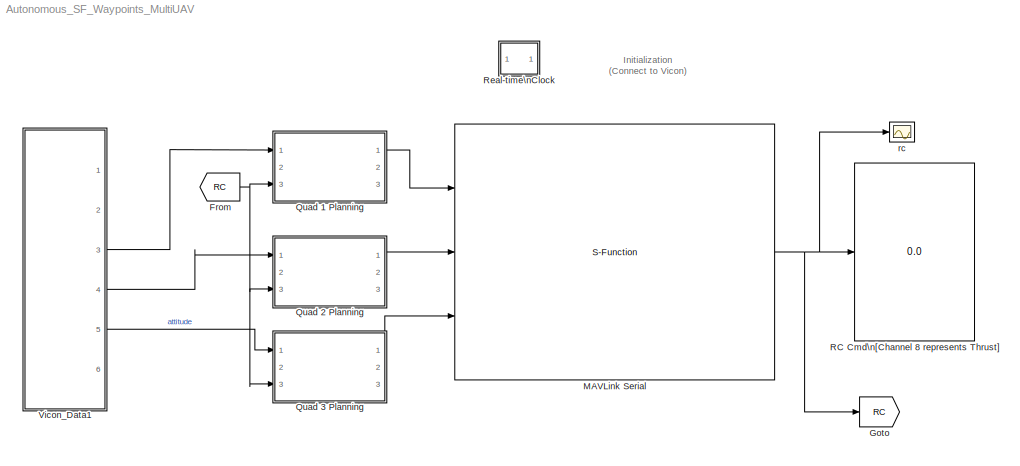
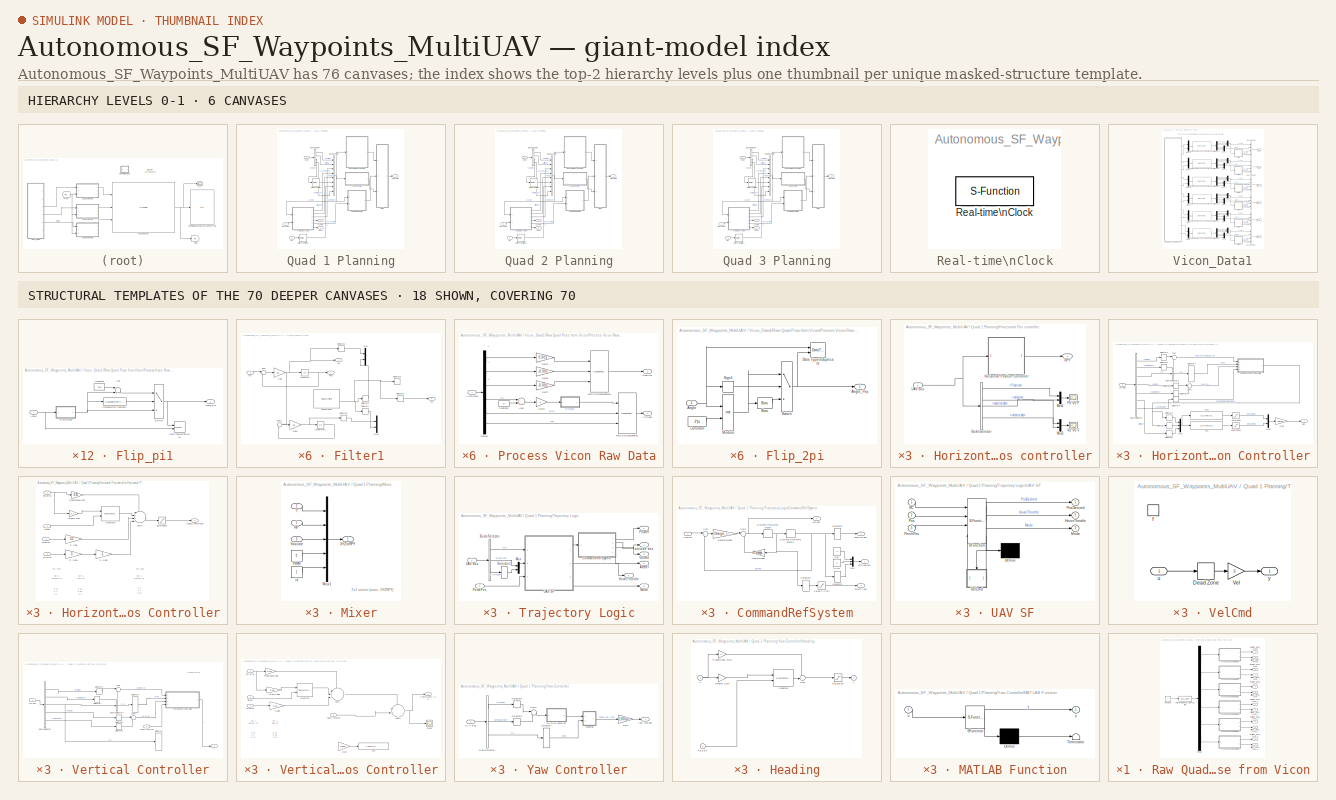
[diagram: thumbnail index - top-2 hierarchy levels (6 canvases) + 18 structural-template representatives of the remaining 70 canvases]
MODEL Autonomous_SF_Waypoints_MultiUAV
KIND model
CONFIG InitFcn = sample_time=0.02;\nDeltaT = sample_time;\nH0 = -0.32;\nKl = 1;\nOmega_r = 1.3\n\n
BLOCK [From] From
  GotoTag = RC
  SID = 4
  TagVisibility = global
BLOCK [Goto] Goto
  GotoTag = RC
  SID = 5
  TagVisibility = global
BLOCK [S-Function] MAVLink Serial
  EnableBusSupport = off
  FunctionName = MAVLink_Interface_MultUAV
  MaskCallbackString = |||||
  MaskDisplay = % Block image\nimage(imread('10-inch Quad Heat Map.png'));\n\n%Label block\nfprintf('MAVLink Serial\\n%s\\n%dbps', COM_Port,  Baud_Rate)\n\n\n%Label input ports\n\nin = 1;\nif (Quad_1 == 1)\n    port_label('input', in, 'Quad 1');\n    in = in + 1;\nend\nif (Quad_2 == 1)\n    port_label('input', in, 'Quad 2');\n    in = in + 1;\nend\n\nif (Quad_3 == 1)\n    port_label('input', in, 'Quad 3');\n    i...<+141ch>
  MaskEnableString = on,on,on,on,on,on
  MaskIconFrame = on
  MaskIconOpaque = off
  MaskIconRotate = none
  MaskIconUnits = autoscale
  MaskInitialization = MSG_ID_NUM_INPUT = [uint8(196) uint8(197) uint8(198)];\nMSG_ID_NAME_INPUT = [Quad_1 Quad_2 Quad_3];\n\nMSG_ID_NUM_OUTPUT = [uint8(34)];\nMSG_ID_NAME_OUTPUT = [RC_SCALED];\n\nidx_input = find(MSG_ID_NAME_INPUT);\nMSG_INPUT = MSG_ID_NUM_INPUT(idx_input);\n\nidx_output = find(MSG_ID_NAME_OUTPUT);\nMSG_OUTPUT = MSG_ID_NUM_OUTPUT(idx_output);
  MaskPortRotate = default
  MaskPromptString = COM Port|Baud Rate|RC CHANNELS SCALED|Quad No 1|Quad No 2|Quad No 3
  MaskStyleString = edit,edit,checkbox,checkbox,checkbox,checkbox
  MaskTabNameString = Setting,Setting,Output Message,Input Message,Input Message,Input Message
  MaskToolTipString = on,on,on,on,on,on
  MaskTunableValueString = on,on,on,on,on,on
  MaskValueString = 'COM4'|57600|on|on|on|on
  MaskVariables = COM_Port=@1;Baud_Rate=@2;RC_SCALED=@3;Quad_1=@4;Quad_2=@5;Quad_3=@6;
  MaskVisibilityString = on,on,on,on,on,on
  Parameters = COM_Port,Baud_Rate,MSG_INPUT,MSG_OUTPUT
  Ports = [3, 1]
  SID = 54
BLOCK [SubSystem] Quad 1 Planning
  FunctionWithSeparateData = off
  MaskHideContents = off
  MinAlgLoopOccurrences = off
  Opaque = off
  Ports = [3, 3]
  PropExecContextOutsideSubsystem = off
  RTWSystemCode = Auto
  RequestExecContextInheritance = off
  SID = 1084
BLOCK [Outport] Quad 1 Planning/AccRef
  IconDisplay = Port number
  Port = 2
  SID = 1087
BLOCK [BusCreator] Quad 1 Planning/Bus\nCreator
  DisplayOption = bar
  Inputs = 8
  Ports = [8, 1]
  SID = 2
BLOCK [BusSelector] Quad 1 Planning/Bus\nSelector
  OutputSignals = Position,Attitude,Velocity,Acceleration
  Ports = [1, 4]
  SID = 1083
BLOCK [SubSystem] Quad 1 Planning/Horizontal Pos controller
  FunctionWithSeparateData = off
  MaskHideContents = off
  MinAlgLoopOccurrences = off
  Opaque = off
  Ports = [1, 1]
  PropExecContextOutsideSubsystem = off
  RTWSystemCode = Auto
  RequestExecContextInheritance = off
  SID = 6
BLOCK [BusSelector] Quad 1 Planning/Horizontal Pos controller/Bus\nSelector
  OutputSignals = Position,Attitude,velocity,position des,attitude des,velocity des,rc
  Ports = [1, 7]
  SID = 8
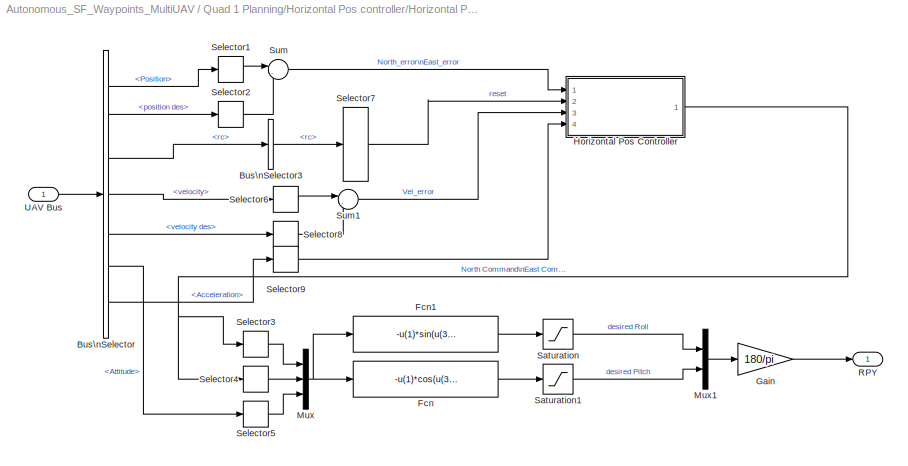
BLOCK [SubSystem] Quad 1 Planning/Horizontal Pos controller/Horizontal Position Controller
  FunctionWithSeparateData = off
  MaskHideContents = off
  MinAlgLoopOccurrences = off
  Opaque = off
  Ports = [1, 1]
  PropExecContextOutsideSubsystem = off
  RTWSystemCode = Auto
  RequestExecContextInheritance = off
  SID = 9
BLOCK [BusSelector] Quad 1 Planning/Horizontal Pos controller/Horizontal Position Controller/Bus\nSelector
  OutputSignals = Position,position des,rc,velocity,velocity des,Attitude,Acceleration
  Ports = [1, 7]
  SID = 11
BLOCK [BusSelector] Quad 1 Planning/Horizontal Pos controller/Horizontal Position Controller/Bus\nSelector3
  OutputSignals = rc
  Ports = [1, 1]
  SID = 14
BLOCK [Fcn] Quad 1 Planning/Horizontal Pos controller/Horizontal Position Controller/Fcn
  Expr = -u(1)*cos(u(3)) - u(2)*sin(u(3))
  SID = 15
BLOCK [Fcn] Quad 1 Planning/Horizontal Pos controller/Horizontal Position Controller/Fcn1
  Expr = -u(1)*sin(u(3)) + u(2)*cos(u(3))
  SID = 16
BLOCK [Gain] Quad 1 Planning/Horizontal Pos controller/Horizontal Position Controller/Gain
  Gain = 180/pi
  OutDataTypeStr = Inherit: Inherit via internal rule
  ParamDataTypeStr = Inherit: Inherit via internal rule
  SID = 17
  SaturateOnIntegerOverflow = off
BLOCK [SubSystem] Quad 1 Planning/Horizontal Pos controller/Horizontal Position Controller/Horizontal Pos Controller
  FunctionWithSeparateData = off
  MaskHideContents = off
  MinAlgLoopOccurrences = off
  Opaque = off
  Ports = [4, 1]
  PropExecContextOutsideSubsystem = off
  RTWSystemCode = Auto
  RequestExecContextInheritance = off
  SID = 18
BLOCK [Inport] Quad 1 Planning/Horizontal Pos controller/Horizontal Position Controller/Horizontal Pos Controller/Acc Error
  IconDisplay = Port number
  Port = 4
  SID = 454
BLOCK [Gain] Quad 1 Planning/Horizontal Pos controller/Horizontal Position Controller/Horizontal Pos Controller/D Gain
  Gain = 0.2
  OutDataTypeStr = double
  ParamDataTypeStr = Inherit: Inherit via internal rule
  SID = 22
  SaturateOnIntegerOverflow = off
BLOCK [Gain] Quad 1 Planning/Horizontal Pos controller/Horizontal Position Controller/Horizontal Pos Controller/D Gain1
  Gain = 0
  OutDataTypeStr = double
  ParamDataTypeStr = Inherit: Inherit via internal rule
  SID = 455
  SaturateOnIntegerOverflow = off
BLOCK [Gain] Quad 1 Planning/Horizontal Pos controller/Horizontal Position Controller/Horizontal Pos Controller/D Gain2
  Gain = -1
  OutDataTypeStr = double
  ParamDataTypeStr = Inherit: Inherit via internal rule
  SID = 458
  SaturateOnIntegerOverflow = off
BLOCK [Outport] Quad 1 Planning/Horizontal Pos controller/Horizontal Position Controller/Horizontal Pos Controller/Global Commands
  IconDisplay = Port number
  SID = 28
BLOCK [Gain] Quad 1 Planning/Horizontal Pos controller/Horizontal Position Controller/Horizontal Pos Controller/Integral Gain
  DisableCoverage = on
  Gain = 0.1
  OutDataTypeStr = double
  ParamDataTypeStr = double
  SID = 23
  SaturateOnIntegerOverflow = off
BLOCK [DiscreteIntegrator] Quad 1 Planning/Horizontal Pos controller/Horizontal Position Controller/Horizontal Pos Controller/Integrator
  DisableCoverage = on
  ExternalReset = rising
  ICPrevOutput = DiscIntNeverNeededParam
  ICPrevScaledInput = DiscIntNeverNeededParam
  InitialConditionMode = State only (most efficient)
  InitialConditionSource = internal
  IntegratorMethod = Integration: Trapezoidal
  LimitOutput = on
  LowerSaturationLimit = -10*pi/180
  OutDataTypeStr = double
  Ports = [2, 1]
  SID = 24
  SampleTime = sample_time
  UpperSaturationLimit = 10*pi/180
BLOCK [Inport] Quad 1 Planning/Horizontal Pos controller/Horizontal Position Controller/Horizontal Pos Controller/Pos Error
  IconDisplay = Port number
  SID = 19
BLOCK [Gain] Quad 1 Planning/Horizontal Pos controller/Horizontal Position Controller/Horizontal Pos Controller/Proportional Gain
  DisableCoverage = on
  Gain = 0.25
  OutDataTypeStr = double
  ParamDataTypeStr = double
  SID = 25
  SaturateOnIntegerOverflow = off
BLOCK [Inport] Quad 1 Planning/Horizontal Pos controller/Horizontal Position Controller/Horizontal Pos Controller/Reset
  IconDisplay = Port number
  Port = 2
  SID = 20
BLOCK [Saturate] Quad 1 Planning/Horizontal Pos controller/Horizontal Position Controller/Horizontal Pos Controller/Saturation2
  InputPortMap = u0
  LinearizeAsGain = off
  LowerLimit = -30*pi/180
  OutDataTypeStr = double
  Ports = [1, 1]
  SID = 26
  UpperLimit = 30*pi/180
BLOCK [Sum] Quad 1 Planning/Horizontal Pos controller/Horizontal Position Controller/Horizontal Pos Controller/Sum1
  AccumDataTypeStr = double
  DisableCoverage = on
  IconShape = round
  InputSameDT = off
  Inputs = ++++|
  OutDataTypeStr = double
  Ports = [4, 1]
  SID = 27
  SampleTime = sample_time
  SaturateOnIntegerOverflow = off
BLOCK [Inport] Quad 1 Planning/Horizontal Pos controller/Horizontal Position Controller/Horizontal Pos Controller/Vel Error
  IconDisplay = Port number
  Port = 3
  SID = 21
BLOCK [Mux] Quad 1 Planning/Horizontal Pos controller/Horizontal Position Controller/Mux
  DisplayOption = bar
  Inputs = 3
  Ports = [3, 1]
  SID = 29
BLOCK [Mux] Quad 1 Planning/Horizontal Pos controller/Horizontal Position Controller/Mux1
  DisplayOption = bar
  Inputs = 2
  Ports = [2, 1]
  SID = 30
BLOCK [Outport] Quad 1 Planning/Horizontal Pos controller/Horizontal Position Controller/RPY
  IconDisplay = Port number
  SID = 43
BLOCK [Saturate] Quad 1 Planning/Horizontal Pos controller/Horizontal Position Controller/Saturation
  InputPortMap = u0
  LowerLimit = -30*pi/180
  Ports = [1, 1]
  SID = 31
  UpperLimit = 30*pi/180
BLOCK [Saturate] Quad 1 Planning/Horizontal Pos controller/Horizontal Position Controller/Saturation1
  InputPortMap = u0
  Ports = [1, 1]
  SID = 32
BLOCK [Selector] Quad 1 Planning/Horizontal Pos controller/Horizontal Position Controller/Selector1
  IndexOptions = Index vector (dialog)
  Indices = [1 2]
  InputPortWidth = 3
  OutputSizes = 1
  Ports = [1, 1]
  SID = 33
BLOCK [Selector] Quad 1 Planning/Horizontal Pos controller/Horizontal Position Controller/Selector2
  IndexOptions = Index vector (dialog)
  Indices = [1 2]
  InputPortWidth = 3
  OutputSizes = 1
  Ports = [1, 1]
  SID = 34
BLOCK [Selector] Quad 1 Planning/Horizontal Pos controller/Horizontal Position Controller/Selector3
  IndexOptions = Index vector (dialog)
  Indices = [1]
  InputPortWidth = 2
  OutputSizes = 1
  Ports = [1, 1]
  SID = 35
BLOCK [Selector] Quad 1 Planning/Horizontal Pos controller/Horizontal Position Controller/Selector4
  IndexOptions = Index vector (dialog)
  Indices = [2]
  InputPortWidth = 2
  OutputSizes = 1
  Ports = [1, 1]
  SID = 36
BLOCK [Selector] Quad 1 Planning/Horizontal Pos controller/Horizontal Position Controller/Selector5
  IndexOptions = Index vector (dialog)
  Indices = [3]
  InputPortWidth = 3
  OutputSizes = 1
  Ports = [1, 1]
  SID = 37
BLOCK [Selector] Quad 1 Planning/Horizontal Pos controller/Horizontal Position Controller/Selector6
  IndexOptions = Index vector (dialog)
  Indices = [1 2]
  InputPortWidth = 3
  OutputSizes = 1
  Ports = [1, 1]
  SID = 38
BLOCK [Selector] Quad 1 Planning/Horizontal Pos controller/Horizontal Position Controller/Selector7
  IndexOptions = Index vector (dialog)
  Indices = [7]
  InputPortWidth = 8
  OutputSizes = 1
  Ports = [1, 1]
  SID = 39
BLOCK [Selector] Quad 1 Planning/Horizontal Pos controller/Horizontal Position Controller/Selector8
  IndexOptions = Index vector (dialog)
  Indices = [1 2]
  InputPortWidth = 3
  OutputSizes = 1
  Ports = [1, 1]
  SID = 40
BLOCK [Selector] Quad 1 Planning/Horizontal Pos controller/Horizontal Position Controller/Selector9
  IndexOptions = Index vector (dialog)
  Indices = [1 2]
  InputPortWidth = 3
  OutputSizes = 1
  Ports = [1, 1]
  SID = 457
BLOCK [Sum] Quad 1 Planning/Horizontal Pos controller/Horizontal Position Controller/Sum
  IconShape = round
  InputSameDT = off
  Inputs = |-+
  OutDataTypeStr = Inherit: Inherit via internal rule
  Ports = [2, 1]
  SID = 41
  SaturateOnIntegerOverflow = off
BLOCK [Sum] Quad 1 Planning/Horizontal Pos controller/Horizontal Position Controller/Sum1
  IconShape = round
  InputSameDT = off
  Inputs = |-+
  OutDataTypeStr = Inherit: Inherit via internal rule
  Ports = [2, 1]
  SID = 42
  SaturateOnIntegerOverflow = off
BLOCK [Inport] Quad 1 Planning/Horizontal Pos controller/Horizontal Position Controller/UAV Bus
  IconDisplay = Port number
  SID = 10
BLOCK [Mux] Quad 1 Planning/Horizontal Pos controller/Mux1
  DisplayOption = bar
  Inputs = 2
  Ports = [2, 1]
  SID = 531
BLOCK [Mux] Quad 1 Planning/Horizontal Pos controller/Mux2
  DisplayOption = bar
  Inputs = 2
  Ports = [2, 1]
  SID = 605
BLOCK [Scope] Quad 1 Planning/Horizontal Pos controller/Pd VS P
  DataFormat = StructureWithTime
  Floating = off
  LimitDataPoints = off
  NumInputPorts = 1
  Ports = [1]
  SID = 532
  SampleTime = 0
  SaveName = ScopeData16
  TimeRange = 10
  YMax = 1.25
  YMin = -2.25
BLOCK [Outport] Quad 1 Planning/Horizontal Pos controller/RPY
  IconDisplay = Port number
  SID = 53
BLOCK [Inport] Quad 1 Planning/Horizontal Pos controller/UAV Bus
  IconDisplay = Port number
  SID = 7
BLOCK [Scope] Quad 1 Planning/Horizontal Pos controller/Vd VS V
  DataFormat = StructureWithTime
  Floating = off
  LimitDataPoints = off
  NumInputPorts = 1
  Ports = [1]
  SID = 606
  SampleTime = 0
  TimeRange = 10
  YMax = 4
  YMin = -4
BLOCK [SubSystem] Quad 1 Planning/Mixer
  FunctionWithSeparateData = off
  MaskHideContents = off
  MinAlgLoopOccurrences = off
  Opaque = off
  Ports = [3, 1]
  PropExecContextOutsideSubsystem = off
  RTWSystemCode = Auto
  RequestExecContextInheritance = off
  SID = 60
BLOCK [Mux] Quad 1 Planning/Mixer/Mux1
  DisplayOption = bar
  Inputs = 5
  Ports = [5, 1]
  SID = 64
BLOCK [Constant] Quad 1 Planning/Mixer/PWM
  SID = 621
  Value = 0
BLOCK [Inport] Quad 1 Planning/Mixer/RP
  IconDisplay = Port number
  SID = 61
BLOCK [Inport] Quad 1 Planning/Mixer/T
  IconDisplay = Port number
  Port = 2
  SID = 62
BLOCK [Outport] Quad 1 Planning/Mixer/XYZ\nRPY
  IconDisplay = Port number
  SID = 68
BLOCK [Inport] Quad 1 Planning/Mixer/Yaw rate
  IconDisplay = Port number
  Port = 3
  SID = 63
BLOCK [Constant] Quad 1 Planning/Mixer/id
  SID = 67
BLOCK [Outport] Quad 1 Planning/Mode
  IconDisplay = Port number
  Port = 3
  SID = 1089
BLOCK [Inport] Quad 1 Planning/Perch Pos
  IconDisplay = Port number
  Port = 2
  SID = 1088
BLOCK [Inport] Quad 1 Planning/RC
  IconDisplay = Port number
  Port = 3
  SID = 1090
BLOCK [RateTransition] Quad 1 Planning/Rate Transition
  OutPortSampleTime = sample_time
  SID = 56
BLOCK [RateTransition] Quad 1 Planning/Rate Transition1
  OutPortSampleTime = sample_time
  SID = 57
BLOCK [Outport] Quad 1 Planning/TRPY Cmd
  IconDisplay = Port number
  SID = 1086
BLOCK [SubSystem] Quad 1 Planning/Trajectory Logic
  FunctionWithSeparateData = off
  MaskHideContents = off
  MinAlgLoopOccurrences = off
  Opaque = off
  Ports = [2, 6]
  PropExecContextOutsideSubsystem = off
  RTWSystemCode = Auto
  RequestExecContextInheritance = off
  SID = 573
BLOCK [Outport] Quad 1 Planning/Trajectory Logic/AccRef
  IconDisplay = Port number
  Port = 4
  SID = 577
BLOCK [BusSelector] Quad 1 Planning/Trajectory Logic/Bus\nSelector
  OutputSignals = rc,Position,Attitude
  Ports = [1, 3]
  SID = 583
BLOCK [SubSystem] Quad 1 Planning/Trajectory Logic/CommandRefSystem
  FunctionWithSeparateData = off
  MaskHideContents = off
  MinAlgLoopOccurrences = off
  Opaque = off
  Ports = [1, 4]
  PropExecContextOutsideSubsystem = off
  RTWSystemCode = Auto
  RequestExecContextInheritance = off
  SID = 561
BLOCK [Gain] Quad 1 Planning/Trajectory Logic/CommandRefSystem/2*zeta*omega
  Gain = 2*Omega_r
  OutDataTypeStr = Inherit: Inherit via internal rule
  ParamDataTypeStr = Inherit: Inherit via internal rule
  SID = 563
  SaturateOnIntegerOverflow = off
BLOCK [DiscreteIntegrator] Quad 1 Planning/Trajectory Logic/CommandRefSystem/Discrete-Time\nIntegrator
  ExternalReset = none
  ICPrevOutput = DiscIntNeverNeededParam
  ICPrevScaledInput = DiscIntNeverNeededParam
  InitialConditionSource = internal
  IntegratorMethod = Integration: Forward Euler
  Ports = [1, 1]
  SID = 601
  SampleTime = sample_time
BLOCK [DiscreteIntegrator] Quad 1 Planning/Trajectory Logic/CommandRefSystem/Discrete-Time\nIntegrator1
  ExternalReset = none
  ICPrevOutput = DiscIntNeverNeededParam
  ICPrevScaledInput = DiscIntNeverNeededParam
  InitialConditionSource = internal
  IntegratorMethod = Integration: Forward Euler
  Ports = [1, 1]
  SID = 602
  SampleTime = sample_time
BLOCK [Mux] Quad 1 Planning/Trajectory Logic/CommandRefSystem/Mux
  DisplayOption = bar
  Inputs = 3
  Ports = [3, 1]
  SID = 588
BLOCK [Constant] Quad 1 Planning/Trajectory Logic/CommandRefSystem/Pitch
  SID = 586
  SampleTime = sample_time
  Value = 0
BLOCK [Inport] Quad 1 Planning/Trajectory Logic/CommandRefSystem/PosCom
  IconDisplay = Port number
  SID = 562
BLOCK [Constant] Quad 1 Planning/Trajectory Logic/CommandRefSystem/Roll
  SID = 587
  SampleTime = sample_time
  Value = 0
BLOCK [Selector] Quad 1 Planning/Trajectory Logic/CommandRefSystem/Selector1
  IndexOptions = Index vector (dialog)
  Indices = [4]
  InputPortWidth = 4
  OutputSizes = 1
  Ports = [1, 1]
  SID = 585
BLOCK [Selector] Quad 1 Planning/Trajectory Logic/CommandRefSystem/Selector2
  IndexOptions = Index vector (dialog)
  Indices = [1 2 3]
  InputPortWidth = 4
  OutputSizes = 1
  Ports = [1, 1]
  SID = 584
BLOCK [Selector] Quad 1 Planning/Trajectory Logic/CommandRefSystem/Selector3
  IndexOptions = Index vector (dialog)
  Indices = [1 2 3]
  InputPortWidth = 4
  OutputSizes = 1
  Ports = [1, 1]
  SID = 590
BLOCK [Gain] Quad 1 Planning/Trajectory Logic/CommandRefSystem/Square(omega)
  Gain = Omega_r^2
  OutDataTypeStr = Inherit: Inherit via internal rule
  ParamDataTypeStr = Inherit: Inherit via internal rule
  SID = 566
  SaturateOnIntegerOverflow = off
BLOCK [Sum] Quad 1 Planning/Trajectory Logic/CommandRefSystem/Sum
  IconShape = round
  InputSameDT = off
  Inputs = |+-
  OutDataTypeStr = Inherit: Inherit via internal rule
  Ports = [2, 1]
  SID = 567
  SaturateOnIntegerOverflow = off
BLOCK [Sum] Quad 1 Planning/Trajectory Logic/CommandRefSystem/Sum1
  IconShape = round
  InputSameDT = off
  Inputs = |+-
  OutDataTypeStr = Inherit: Inherit via internal rule
  Ports = [2, 1]
  SID = 568
  SaturateOnIntegerOverflow = off
BLOCK [Saturate] Quad 1 Planning/Trajectory Logic/CommandRefSystem/Velocity limit
  InputPortMap = u0
  LowerLimit = -3
  Ports = [1, 1]
  SID = 603
  UpperLimit = 3
BLOCK [Outport] Quad 1 Planning/Trajectory Logic/CommandRefSystem/acc des
  IconDisplay = Port number
  Port = 4
  SID = 571
BLOCK [Outport] Quad 1 Planning/Trajectory Logic/CommandRefSystem/attitude des
  IconDisplay = Port number
  Port = 2
  SID = 589
BLOCK [Outport] Quad 1 Planning/Trajectory Logic/CommandRefSystem/position des
  IconDisplay = Port number
  SID = 569
BLOCK [Outport] Quad 1 Planning/Trajectory Logic/CommandRefSystem/velocity des
  IconDisplay = Port number
  Port = 3
  SID = 570
BLOCK [Outport] Quad 1 Planning/Trajectory Logic/HoverThrottle
  IconDisplay = Port number
  Port = 5
  SID = 579
BLOCK [Outport] Quad 1 Planning/Trajectory Logic/Mode
  IconDisplay = Port number
  Port = 6
  SID = 581
BLOCK [Mux] Quad 1 Planning/Trajectory Logic/Mux
  DisplayOption = bar
  Inputs = 2
  Ports = [2, 1]
  SID = 593
BLOCK [Inport] Quad 1 Planning/Trajectory Logic/PerchPos
  IconDisplay = Port number
  Port = 2
  SID = 580
BLOCK [Outport] Quad 1 Planning/Trajectory Logic/PosRef
  IconDisplay = Port number
  SID = 574
BLOCK [Selector] Quad 1 Planning/Trajectory Logic/Selector1
  IndexOptions = Index vector (dialog)
  Indices = [3]
  InputPortWidth = 3
  OutputSizes = 1
  Ports = [1, 1]
  SID = 592
BLOCK [Inport] Quad 1 Planning/Trajectory Logic/UAV Bus
  IconDisplay = Port number
  SID = 582
BLOCK [SubSystem] Quad 1 Planning/Trajectory Logic/UAV SF
  ErrorFcn = Stateflow.Translate.translate
  FunctionWithSeparateData = off
  MaskDescription = Stateflow diagram
  MaskDisplay = plot(sf('Private','sfblk','xIcon'),sf('Private','sfblk','yIcon'));text(0.5,0,sf('Private', 'sfblk', 'tIcon'),'HorizontalAl','Center','VerticalAl','Bottom');
  MaskHideContents = off
  MaskIconFrame = off
  MaskIconOpaque = off
  MaskIconRotate = none
  MaskIconUnits = autoscale
  MaskPortRotate = default
  MaskSelfModifiable = on
  MaskType = Stateflow
  MinAlgLoopOccurrences = off
  Opaque = off
  PermitHierarchicalResolution = ExplicitOnly
  Ports = [3, 3]
  PropExecContextOutsideSubsystem = off
  RTWSystemCode = Auto
  RequestExecContextInheritance = off
  SID = 572
  TreatAsAtomicUnit = on
BLOCK [Demux] Quad 1 Planning/Trajectory Logic/UAV SF/ Demux 
  Outputs = 1
  Ports = [1, 1]
  SID = 572::8
BLOCK [S-Function] Quad 1 Planning/Trajectory Logic/UAV SF/ SFunction 
  EnableBusSupport = on
  FunctionName = sf_sfun
  Parameters = DeltaT,H0,Kl
  PortCounts = [4 5]
  Ports = [4, 5]
  SID = 572::7
  Tag = Stateflow S-Function Autonomous_SF_Waypoints_MultiUAV 3
BLOCK [Outport] Quad 1 Planning/Trajectory Logic/UAV SF/HoverThrottle
  IconDisplay = Port number
  Port = 2
  SID = 572::17
BLOCK [Outport] Quad 1 Planning/Trajectory Logic/UAV SF/Mode
  IconDisplay = Port number
  Port = 3
  SID = 572::18
BLOCK [Inport] Quad 1 Planning/Trajectory Logic/UAV SF/PerchPos
  IconDisplay = Port number
  Port = 3
  SID = 572::23
BLOCK [Inport] Quad 1 Planning/Trajectory Logic/UAV SF/Pos
  IconDisplay = Port number
  Port = 2
  SID = 572::20
BLOCK [Outport] Quad 1 Planning/Trajectory Logic/UAV SF/PosDesired
  IconDisplay = Port number
  SID = 572::16
BLOCK [Inport] Quad 1 Planning/Trajectory Logic/UAV SF/RC
  IconDisplay = Port number
  SID = 572::19
BLOCK [SubSystem] Quad 1 Planning/Trajectory Logic/UAV SF/VelCmd
  FunctionWithSeparateData = off
  MaskHideContents = off
  MinAlgLoopOccurrences = off
  Opaque = off
  Ports = [1, 1, 0, 1]
  PreDeleteFcn = Stateflow.SLINSF.SimulinkMan.removePreDeleteFcn
  PropExecContextOutsideSubsystem = off
  RTWSystemCode = Auto
  RequestExecContextInheritance = off
  SID = 572::29
  UndoDeleteFcn = Stateflow.SLINSF.SimulinkMan.restorePreDeleteFcn
BLOCK [DeadZone] Quad 1 Planning/Trajectory Logic/UAV SF/VelCmd/Dead Zone
  LowerValue = -0.1
  SID = 572::33
  UpperValue = 0.1
BLOCK [Gain] Quad 1 Planning/Trajectory Logic/UAV SF/VelCmd/Vel
  Gain = 3
  OutDataTypeStr = Inherit: Inherit via internal rule
  ParamDataTypeStr = Inherit: Inherit via internal rule
  SID = 572::34
  SaturateOnIntegerOverflow = off
BLOCK [TriggerPort] Quad 1 Planning/Trajectory Logic/UAV SF/VelCmd/f
  CopyFcn = set_param(gcbh,'PreDeleteFcn','')
  Ports = []
  PreDeleteFcn = Stateflow.SLINSF.SimulinkMan.unsafePredeleteFcn
  SID = 572::30
  StatesWhenEnabling = held
  TriggerType = function-call
BLOCK [Inport] Quad 1 Planning/Trajectory Logic/UAV SF/VelCmd/u
  IconDisplay = Port number
  SID = 572::31
BLOCK [Outport] Quad 1 Planning/Trajectory Logic/UAV SF/VelCmd/y
  IconDisplay = Port number
  SID = 572::32
BLOCK [Outport] Quad 1 Planning/Trajectory Logic/VelRef
  IconDisplay = Port number
  Port = 3
  SID = 575
BLOCK [Outport] Quad 1 Planning/Trajectory Logic/attitude des
  IconDisplay = Port number
  Port = 2
  SID = 591
BLOCK [SubSystem] Quad 1 Planning/Vertical Controller
  FunctionWithSeparateData = off
  MaskHideContents = off
  MinAlgLoopOccurrences = off
  Opaque = off
  Ports = [2, 1]
  PropExecContextOutsideSubsystem = off
  RTWSystemCode = Auto
  RequestExecContextInheritance = off
  SID = 124
BLOCK [BusSelector] Quad 1 Planning/Vertical Controller/Bus\nSelector
  OutputSignals = Position,position des,rc,velocity,velocity des
  Ports = [1, 5]
  SID = 126
BLOCK [BusSelector] Quad 1 Planning/Vertical Controller/Bus\nSelector3
  OutputSignals = rc
  Ports = [1, 1]
  SID = 411
BLOCK [Inport] Quad 1 Planning/Vertical Controller/Hover Throttle
  IconDisplay = Port number
  Port = 2
  SID = 598
BLOCK [Selector] Quad 1 Planning/Vertical Controller/Selector1
  IndexOptions = Index vector (dialog)
  Indices = [3]
  InputPortWidth = 3
  OutputSizes = 1
  Ports = [1, 1]
  SID = 430
BLOCK [Selector] Quad 1 Planning/Vertical Controller/Selector2
  IndexOptions = Index vector (dialog)
  Indices = [1]
  InputPortWidth = 8
  OutputSizes = 1
  Ports = [1, 1]
  SID = 127
BLOCK [Selector] Quad 1 Planning/Vertical Controller/Selector3
  IndexOptions = Index vector (dialog)
  Indices = [3]
  InputPortWidth = 3
  OutputSizes = 1
  Ports = [1, 1]
  SID = 431
BLOCK [Selector] Quad 1 Planning/Vertical Controller/Selector4
  IndexOptions = Index vector (dialog)
  Indices = [3]
  InputPortWidth = 3
  OutputSizes = 1
  Ports = [1, 1]
  SID = 423
BLOCK [Selector] Quad 1 Planning/Vertical Controller/Selector5
  IndexOptions = Index vector (dialog)
  Indices = [3]
  InputPortWidth = 3
  OutputSizes = 1
  Ports = [1, 1]
  SID = 432
BLOCK [Selector] Quad 1 Planning/Vertical Controller/Selector7
  IndexOptions = Index vector (dialog)
  Indices = [7]
  InputPortWidth = 8
  OutputSizes = 1
  Ports = [1, 1]
  SID = 426
BLOCK [Sum] Quad 1 Planning/Vertical Controller/Sum
  IconShape = round
  InputSameDT = off
  Inputs = |-+
  OutDataTypeStr = Inherit: Inherit via internal rule
  Ports = [2, 1]
  SID = 428
  SaturateOnIntegerOverflow = off
BLOCK [Sum] Quad 1 Planning/Vertical Controller/Sum1
  IconShape = round
  InputSameDT = off
  Inputs = |-+
  OutDataTypeStr = Inherit: Inherit via internal rule
  Ports = [2, 1]
  SID = 429
  SaturateOnIntegerOverflow = off
BLOCK [Outport] Quad 1 Planning/Vertical Controller/T
  IconDisplay = Port number
  SID = 128
BLOCK [Inport] Quad 1 Planning/Vertical Controller/UAV bus
  IconDisplay = Port number
  SID = 125
BLOCK [SubSystem] Quad 1 Planning/Vertical Controller/Verticall Pos Controller
  FunctionWithSeparateData = off
  MaskHideContents = off
  MinAlgLoopOccurrences = off
  Opaque = off
  Ports = [4, 1]
  PropExecContextOutsideSubsystem = off
  RTWSystemCode = Auto
  RequestExecContextInheritance = off
  SID = 412
BLOCK [Gain] Quad 1 Planning/Vertical Controller/Verticall Pos Controller/D Gain
  Gain = 0.15
  OutDataTypeStr = double
  ParamDataTypeStr = Inherit: Inherit via internal rule
  SID = 416
  SaturateOnIntegerOverflow = off
BLOCK [Fcn] Quad 1 Planning/Vertical Controller/Verticall Pos Controller/Fcn
  Expr = 0.059*u(1) - 0.703
  SID = 433
BLOCK [Inport] Quad 1 Planning/Vertical Controller/Verticall Pos Controller/Hover Throttle
  IconDisplay = Port number
  Port = 4
  SID = 597
BLOCK [Gain] Quad 1 Planning/Vertical Controller/Verticall Pos Controller/Integral Gain
  DisableCoverage = on
  Gain = 0.15
  OutDataTypeStr = double
  ParamDataTypeStr = double
  SID = 417
  SaturateOnIntegerOverflow = off
BLOCK [DiscreteIntegrator] Quad 1 Planning/Vertical Controller/Verticall Pos Controller/Integrator
  DisableCoverage = on
  ExternalReset = rising
  ICPrevOutput = DiscIntNeverNeededParam
  ICPrevScaledInput = DiscIntNeverNeededParam
  InitialConditionMode = State only (most efficient)
  InitialConditionSource = internal
  IntegratorMethod = Integration: Trapezoidal
  LimitOutput = on
  LowerSaturationLimit = -0.3
  OutDataTypeStr = double
  Ports = [2, 1]
  SID = 418
  SampleTime = -1
  UpperSaturationLimit = 0.3
BLOCK [Gain] Quad 1 Planning/Vertical Controller/Verticall Pos Controller/Mass
  Gain = 0.819
  OutDataTypeStr = Inherit: Inherit via internal rule
  ParamDataTypeStr = Inherit: Inherit via internal rule
  SID = 443
  SaturateOnIntegerOverflow = off
BLOCK [Inport] Quad 1 Planning/Vertical Controller/Verticall Pos Controller/Pos Error
  IconDisplay = Port number
  SID = 413
BLOCK [Gain] Quad 1 Planning/Vertical Controller/Verticall Pos Controller/Proportional Gain
  DisableCoverage = on
  Gain = 0.25
  OutDataTypeStr = double
  ParamDataTypeStr = double
  SID = 419
  SaturateOnIntegerOverflow = off
BLOCK [Inport] Quad 1 Planning/Vertical Controller/Verticall Pos Controller/Reset
  IconDisplay = Port number
  Port = 2
  SID = 414
BLOCK [Scope] Quad 1 Planning/Vertical Controller/Verticall Pos Controller/Scope
  DataFormat = StructureWithTime
  Floating = off
  NumInputPorts = 1
  Ports = [1]
  SID = 518
  SampleTime = 0
  SaveName = ScopeData14
  YMax = 1
  YMin = -1
BLOCK [Sum] Quad 1 Planning/Vertical Controller/Verticall Pos Controller/Sum1
  AccumDataTypeStr = double
  DisableCoverage = on
  IconShape = round
  InputSameDT = off
  Inputs = ---|
  OutDataTypeStr = double
  Ports = [3, 1]
  SID = 421
  SampleTime = sample_time
  SaturateOnIntegerOverflow = off
BLOCK [Sum] Quad 1 Planning/Vertical Controller/Verticall Pos Controller/Sum2
  AccumDataTypeStr = double
  DisableCoverage = on
  IconShape = round
  InputSameDT = off
  Inputs = ++|
  OutDataTypeStr = double
  Ports = [2, 1]
  SID = 524
  SampleTime = sample_time
  SaturateOnIntegerOverflow = off
BLOCK [Outport] Quad 1 Planning/Vertical Controller/Verticall Pos Controller/T  Commands [-1, 1]
  IconDisplay = Port number
  SID = 422
BLOCK [Inport] Quad 1 Planning/Vertical Controller/Verticall Pos Controller/Vel Error
  IconDisplay = Port number
  Port = 3
  SID = 415
BLOCK [Inport] Quad 1 Planning/Vicon
  IconDisplay = Port number
  SID = 1085
BLOCK [SubSystem] Quad 1 Planning/Yaw Controller
  FunctionWithSeparateData = off
  MaskHideContents = off
  MinAlgLoopOccurrences = off
  Opaque = off
  Ports = [1, 1]
  PropExecContextOutsideSubsystem = off
  RTWSystemCode = Auto
  RequestExecContextInheritance = off
  SID = 328
BLOCK [BusSelector] Quad 1 Planning/Yaw Controller/Bus\nSelector1
  OutputSignals = Attitude,attitude des,rc
  Ports = [1, 3]
  SID = 330
BLOCK [Gain] Quad 1 Planning/Yaw Controller/Gain
  Gain = 180/pi
  OutDataTypeStr = Inherit: Inherit via internal rule
  ParamDataTypeStr = Inherit: Inherit via internal rule
  SID = 333
  SaturateOnIntegerOverflow = off
BLOCK [SubSystem] Quad 1 Planning/Yaw Controller/Heading
  AncestorBlock = simulink/Continuous/PID Controller
  DeleteFcn = pidpack.PIDConfig.closeTuner(gcbh)
  DialogController = pidpack.PIDConfig.pidDDGCreate
  DialogControllerArgs = DataTag0
  FunctionWithSeparateData = off
  MaskCallbackString = |||||||||||||||||||||||||||||||||||||||||||||||||||||||||||||||||||||||||||||||||||||||||||||||||||||
  MaskCapabilities = slmaskedcaps(gcbh)
  MaskDescription = This block implements continuous- and discrete-time PID control algorithms and includes advanced features such as anti-windup, external reset, and signal tracking. You can tune the PID gains automatically using the 'Tune...' button (requires Simulink Control Design).  <repeated x3 — deduplicated; at blocks: Heading>
  MaskDisplay = disp('PI(z)')\nport_label('input',1, '');\nport_label('output',1, '');plot([0 4 4 7]+2,[0 0 8 8]+8);\nplot([1 4 6]+2,[3 6 3]+8);\nplot([0 4 6 10]+32,[0 0 8 8]+18);\n
  MaskEnableString = on,on,on,on,on,on,on,on,on,on,on,on,on,on,on,on,on,off,off,off,off,off,on,off,on,on,on,on,on,on,on,on,on,on,on,on,on,on,on,on,on,on,on,on,on,on,on,on,on,on,on,on,on,on,on,on,on,on,on,on,on,on,on,on,on,on,on,on,on,on,on,on,on,on,on,on,on,on,on,on,on,on,on,on,on,on,on,on,on,on,on,on,on,on,off,off,off,on,on,off,off,off  <repeated x3 — deduplicated; at blocks: Heading>
  MaskHideContents = off
  MaskIconFrame = on
  MaskIconOpaque = on
  MaskIconRotate = none
  MaskIconUnits = pixels
  MaskInitialization = pidpack.PIDConfig.configPID(gcbh);
  MaskPortRotate = default
  MaskPromptString = Controller:|Time domain:|Sample time (-1 for inherited):|Integrator method:|Filter method:|Form:|Proportional (P):|Integral (I):|Derivative (D):|Filter coefficient (N):|Source:|Integrator:|Filter:|External reset:|Ignore reset when linearizing|Enable zero-crossing detection|Limit output|Upper saturation limit:|Lower saturation limit:|Ignore saturation when linearizing|Anti-windup method:|Back-calcu...<+1875ch>  <repeated x3 — deduplicated; at blocks: Heading>
  MaskRunInitForIconRedraw = on
  MaskSelfModifiable = on
  MaskStyleString = popup(PID|PI|PD|P|I),popup(Continuous-time|Discrete-time),edit,popup(Forward Euler|Backward Euler|Trapezoidal),popup(Forward Euler|Backward Euler|Trapezoidal),popup(Ideal|Parallel),edit,edit,edit,edit,popup(internal|external),edit,edit,popup(none|rising|falling|either|level),checkbox,checkbox,checkbox,edit,edit,checkbox,popup(none|back-calculation|clamping),edit,checkbox,edit,popup(Ceiling|Converg...<+6354ch>  <repeated x3 — deduplicated; at blocks: Heading>
  MaskToolTipString = on,on,on,on,on,on,on,on,on,on,on,on,on,on,on,on,on,on,on,on,on,on,on,on,on,on,on,on,on,on,on,on,on,on,on,on,on,on,on,on,on,on,on,on,on,on,on,on,on,on,on,on,on,on,on,on,on,on,on,on,on,on,on,on,on,on,on,on,on,on,on,on,on,on,on,on,on,on,on,on,on,on,on,on,on,on,on,on,on,on,on,on,on,on,on,on,on,on,on,on,on,on  <repeated x3 — deduplicated; at blocks: Heading>
  MaskTunableValueString = off,off,off,off,off,off,on,on,on,on,off,off,off,off,off,off,off,off,off,off,off,on,off,on,off,off,off,off,off,off,off,off,off,off,off,off,off,off,off,off,off,off,off,off,off,off,off,off,off,off,off,off,off,off,off,off,off,off,off,off,off,off,off,off,off,off,off,off,off,off,off,off,off,off,off,off,off,off,off,off,off,off,off,off,off,off,off,off,off,off,off,off,off,off,off,off,off,off,off,off,off,of...<+1ch>  <repeated x3 — deduplicated; at blocks: Heading>
  MaskType = PID 1dof
  MaskValueString = PI|Discrete-time|sample_time|Trapezoidal|Trapezoidal|Parallel|2|1|0|100|internal|0|0|rising|off|on|on|300*pi/180|-300*pi/180|off|none|1|off|1|Floor|off|off|[]|[]|Inherit: Inherit via internal rule|[]|[]|Inherit: Inherit via internal rule|[]|[]|Inherit: Inherit via internal rule|[]|[]|Inherit: Inherit via internal rule|[]|[]|Inherit: Inherit via internal rule|[]|[]|Inherit: Inherit via internal rul...<+766ch>  <repeated x3 — deduplicated; at blocks: Heading>
  MaskVariables = Controller=&1;TimeDomain=&2;SampleTime=@3;IntegratorMethod=&4;FilterMethod=&5;Form=&6;P=@7;I=@8;D=@9;N=@10;InitialConditionSource=&11;InitialConditionForIntegrator=@12;InitialConditionForFilter=@13;ExternalReset=&14;IgnoreLimit=&15;ZeroCross=&16;LimitOutput=&17;UpperSaturationLimit=@18;LowerSaturationLimit=@19;LinearizeAsGain=&20;AntiWindupMode=&21;Kb=@22;TrackingMode=&23;Kt=@24;RndMeth=&25;Satura...<+1582ch>  <repeated x3 — deduplicated; at blocks: Heading>
  MaskVisibilityString = on,on,off,off,off,on,on,on,on,on,on,on,on,on,on,on,on,on,on,on,on,off,on,on,on,on,on,on,on,on,on,on,on,on,on,on,on,on,on,off,off,off,off,off,off,on,on,on,on,on,on,on,on,on,on,on,on,off,off,off,off,off,off,off,off,off,off,off,off,on,on,on,off,off,off,off,off,off,off,off,off,on,on,on,on,off,off,off,on,off,off,off,on,off,off,off,off,on,off,off,off,off  <repeated x3 — deduplicated; at blocks: Heading>
  MinAlgLoopOccurrences = off
  ModelCloseFcn = pidpack.PIDConfig.closeTuner(gcbh)
  NameChangeFcn = pidpack.PIDConfig.updateTunerName(gcbh)
  Opaque = off
  Ports = [2, 1]
  PropExecContextOutsideSubsystem = off
  RTWSystemCode = Auto
  RequestExecContextInheritance = off
  SID = 334
BLOCK [Gain] Quad 1 Planning/Yaw Controller/Heading/Integral Gain
  DisableCoverage = on
  Gain = I
  OutDataTypeStr = IOutDataTypeStr
  OutMax = IOutMax
  OutMin = IOutMin
  ParamDataTypeStr = IParamDataTypeStr
  ParamMax = IParamMax
  ParamMin = IParamMin
  SID = 334:1680
  SaturateOnIntegerOverflow = off
BLOCK [DiscreteIntegrator] Quad 1 Planning/Yaw Controller/Heading/Integrator
  DisableCoverage = on
  ExternalReset = rising
  ICPrevOutput = DiscIntNeverNeededParam
  ICPrevScaledInput = DiscIntNeverNeededParam
  InitialCondition = InitialConditionForIntegrator
  InitialConditionMode = State only (most efficient)
  InitialConditionSource = internal
  IntegratorMethod = Integration: Trapezoidal
  OutDataTypeStr = IntegratorOutDataTypeStr
  OutMax = IntegratorOutMax
  OutMin = IntegratorOutMin
  Ports = [2, 1]
  SID = 334:1681
  SampleTime = -1
BLOCK [Gain] Quad 1 Planning/Yaw Controller/Heading/Proportional Gain
  DisableCoverage = on
  Gain = P
  OutDataTypeStr = POutDataTypeStr
  OutMax = POutMax
  OutMin = POutMin
  ParamDataTypeStr = PParamDataTypeStr
  ParamMax = PParamMax
  ParamMin = PParamMin
  SID = 334:1679
  SaturateOnIntegerOverflow = off
BLOCK [Inport] Quad 1 Planning/Yaw Controller/Heading/RESET
  IconDisplay = Port number
  Port = 2
  SID = 334:1677
  SampleTime = SampleTime
BLOCK [Saturate] Quad 1 Planning/Yaw Controller/Heading/Saturation
  InputPortMap = u0
  LinearizeAsGain = off
  LowerLimit = LowerSaturationLimit
  OutDataTypeStr = SaturationOutDataTypeStr
  OutMax = SaturationOutMax
  OutMin = SaturationOutMin
  Ports = [1, 1]
  SID = 334:1682
  UpperLimit = UpperSaturationLimit
BLOCK [Sum] Quad 1 Planning/Yaw Controller/Heading/Sum
  AccumDataTypeStr = SumAccumDataTypeStr
  DisableCoverage = on
  IconShape = round
  InputSameDT = off
  Inputs = ++|
  OutDataTypeStr = SumOutDataTypeStr
  OutMax = SumOutMax
  OutMin = SumOutMin
  Ports = [2, 1]
  SID = 334:1678
  SaturateOnIntegerOverflow = off
BLOCK [Inport] Quad 1 Planning/Yaw Controller/Heading/u
  IconDisplay = Port number
  SID = 334:1
  SampleTime = SampleTime
BLOCK [Outport] Quad 1 Planning/Yaw Controller/Heading/y
  IconDisplay = Port number
  InitialOutput = 0
  SID = 334:10
BLOCK [SubSystem] Quad 1 Planning/Yaw Controller/MATLAB Function
  ErrorFcn = Stateflow.Translate.translate
  FunctionWithSeparateData = off
  MaskDescription = Embedded MATLAB block
  MaskDisplay = bgColor = Simulink.Root.ColorString2Rgb(get_param(gcbh, 'BackgroundColor')); image(imread('private/eml_membrane_16.png','png','BackgroundColor',bgColor(1:3)),'center'); disp([10 10 'fcn']);  <repeated x3 — deduplicated; at blocks: MATLAB Function>
  MaskHideContents = off
  MaskIconFrame = on
  MaskIconOpaque = off
  MaskIconRotate = none
  MaskIconUnits = normalized
  MaskPortRotate = default
  MaskSelfModifiable = on
  MaskType = Stateflow
  MinAlgLoopOccurrences = off
  Opaque = off
  PermitHierarchicalResolution = ExplicitOnly
  Ports = [1, 1]
  PropExecContextOutsideSubsystem = off
  RTWSystemCode = Auto
  RequestExecContextInheritance = off
  SID = 335
  TreatAsAtomicUnit = on
BLOCK [Demux] Quad 1 Planning/Yaw Controller/MATLAB Function/ Demux 
  Outputs = 1
  Ports = [1, 1]
  SID = 335::15
BLOCK [S-Function] Quad 1 Planning/Yaw Controller/MATLAB Function/ SFunction 
  EnableBusSupport = on
  FunctionName = sf_sfun
  PortCounts = [1 2]
  Ports = [1, 2]
  SID = 335::14
  Tag = Stateflow S-Function Autonomous_SF_Waypoints_MultiUAV 1
BLOCK [Terminator] Quad 1 Planning/Yaw Controller/MATLAB Function/ Terminator 
  SID = 335::17
BLOCK [Inport] Quad 1 Planning/Yaw Controller/MATLAB Function/u
  IconDisplay = Port number
  SID = 335::1
BLOCK [Outport] Quad 1 Planning/Yaw Controller/MATLAB Function/y
  IconDisplay = Port number
  SID = 335::5
BLOCK [Selector] Quad 1 Planning/Yaw Controller/Selector5
  IndexOptions = Index vector (dialog)
  Indices = [3]
  InputPortWidth = 3
  OutputSizes = 1
  Ports = [1, 1]
  SID = 336
BLOCK [Selector] Quad 1 Planning/Yaw Controller/Selector6
  IndexOptions = Index vector (dialog)
  Indices = [3]
  InputPortWidth = 3
  OutputSizes = 1
  Ports = [1, 1]
  SID = 337
BLOCK [Selector] Quad 1 Planning/Yaw Controller/Selector7
  IndexOptions = Index vector (dialog)
  Indices = [5]
  InputPortWidth = 8
  OutputSizes = 1
  Ports = [1, 1]
  SID = 338
BLOCK [Sum] Quad 1 Planning/Yaw Controller/Sum1
  IconShape = round
  InputSameDT = off
  Inputs = |-+
  OutDataTypeStr = Inherit: Inherit via internal rule
  Ports = [2, 1]
  SID = 339
  SaturateOnIntegerOverflow = off
BLOCK [Inport] Quad 1 Planning/Yaw Controller/UAV Bus
  IconDisplay = Port number
  SID = 329
BLOCK [Outport] Quad 1 Planning/Yaw Controller/Yaw rate des
  IconDisplay = Port number
  SID = 340
BLOCK [SubSystem] Quad 2 Planning
  FunctionWithSeparateData = off
  MaskHideContents = off
  MinAlgLoopOccurrences = off
  Opaque = off
  Ports = [3, 3]
  PropExecContextOutsideSubsystem = off
  RTWSystemCode = Auto
  RequestExecContextInheritance = off
  SID = 1091
BLOCK [Outport] Quad 2 Planning/AccRef
  IconDisplay = Port number
  Port = 2
  SID = 1225
BLOCK [BusCreator] Quad 2 Planning/Bus\nCreator
  DisplayOption = bar
  Inputs = 8
  Ports = [8, 1]
  SID = 1095
BLOCK [BusSelector] Quad 2 Planning/Bus\nSelector
  OutputSignals = Position,Attitude,Velocity,Acceleration
  Ports = [1, 4]
  SID = 1096
BLOCK [SubSystem] Quad 2 Planning/Horizontal Pos controller
  FunctionWithSeparateData = off
  MaskHideContents = off
  MinAlgLoopOccurrences = off
  Opaque = off
  Ports = [1, 1]
  PropExecContextOutsideSubsystem = off
  RTWSystemCode = Auto
  RequestExecContextInheritance = off
  SID = 1097
BLOCK [BusSelector] Quad 2 Planning/Horizontal Pos controller/Bus\nSelector
  OutputSignals = Position,Attitude,velocity,position des,attitude des,velocity des,rc
  Ports = [1, 7]
  SID = 1099
BLOCK [SubSystem] Quad 2 Planning/Horizontal Pos controller/Horizontal Position Controller
  FunctionWithSeparateData = off
  MaskHideContents = off
  MinAlgLoopOccurrences = off
  Opaque = off
  Ports = [1, 1]
  PropExecContextOutsideSubsystem = off
  RTWSystemCode = Auto
  RequestExecContextInheritance = off
  SID = 1100
BLOCK [BusSelector] Quad 2 Planning/Horizontal Pos controller/Horizontal Position Controller/Bus\nSelector
  OutputSignals = Position,position des,rc,velocity,velocity des,Attitude,Acceleration
  Ports = [1, 7]
  SID = 1102
BLOCK [BusSelector] Quad 2 Planning/Horizontal Pos controller/Horizontal Position Controller/Bus\nSelector3
  OutputSignals = rc
  Ports = [1, 1]
  SID = 1103
BLOCK [Fcn] Quad 2 Planning/Horizontal Pos controller/Horizontal Position Controller/Fcn
  Expr = -u(1)*cos(u(3)) - u(2)*sin(u(3))
  SID = 1104
BLOCK [Fcn] Quad 2 Planning/Horizontal Pos controller/Horizontal Position Controller/Fcn1
  Expr = -u(1)*sin(u(3)) + u(2)*cos(u(3))
  SID = 1105
BLOCK [Gain] Quad 2 Planning/Horizontal Pos controller/Horizontal Position Controller/Gain
  Gain = 180/pi
  OutDataTypeStr = Inherit: Inherit via internal rule
  ParamDataTypeStr = Inherit: Inherit via internal rule
  SID = 1106
  SaturateOnIntegerOverflow = off
BLOCK [SubSystem] Quad 2 Planning/Horizontal Pos controller/Horizontal Position Controller/Horizontal Pos Controller
  FunctionWithSeparateData = off
  MaskHideContents = off
  MinAlgLoopOccurrences = off
  Opaque = off
  Ports = [4, 1]
  PropExecContextOutsideSubsystem = off
  RTWSystemCode = Auto
  RequestExecContextInheritance = off
  SID = 1107
BLOCK [Inport] Quad 2 Planning/Horizontal Pos controller/Horizontal Position Controller/Horizontal Pos Controller/Acc Error
  IconDisplay = Port number
  Port = 4
  SID = 1111
BLOCK [Gain] Quad 2 Planning/Horizontal Pos controller/Horizontal Position Controller/Horizontal Pos Controller/D Gain
  Gain = 0.2
  OutDataTypeStr = double
  ParamDataTypeStr = Inherit: Inherit via internal rule
  SID = 1112
  SaturateOnIntegerOverflow = off
BLOCK [Gain] Quad 2 Planning/Horizontal Pos controller/Horizontal Position Controller/Horizontal Pos Controller/D Gain1
  Gain = 0
  OutDataTypeStr = double
  ParamDataTypeStr = Inherit: Inherit via internal rule
  SID = 1113
  SaturateOnIntegerOverflow = off
BLOCK [Gain] Quad 2 Planning/Horizontal Pos controller/Horizontal Position Controller/Horizontal Pos Controller/D Gain2
  Gain = -1
  OutDataTypeStr = double
  ParamDataTypeStr = Inherit: Inherit via internal rule
  SID = 1114
  SaturateOnIntegerOverflow = off
BLOCK [Outport] Quad 2 Planning/Horizontal Pos controller/Horizontal Position Controller/Horizontal Pos Controller/Global Commands
  IconDisplay = Port number
  SID = 1120
BLOCK [Gain] Quad 2 Planning/Horizontal Pos controller/Horizontal Position Controller/Horizontal Pos Controller/Integral Gain
  DisableCoverage = on
  Gain = 0.1
  OutDataTypeStr = double
  ParamDataTypeStr = double
  SID = 1115
  SaturateOnIntegerOverflow = off
BLOCK [DiscreteIntegrator] Quad 2 Planning/Horizontal Pos controller/Horizontal Position Controller/Horizontal Pos Controller/Integrator
  DisableCoverage = on
  ExternalReset = rising
  ICPrevOutput = DiscIntNeverNeededParam
  ICPrevScaledInput = DiscIntNeverNeededParam
  InitialConditionMode = State only (most efficient)
  InitialConditionSource = internal
  IntegratorMethod = Integration: Trapezoidal
  LimitOutput = on
  LowerSaturationLimit = -10*pi/180
  OutDataTypeStr = double
  Ports = [2, 1]
  SID = 1116
  SampleTime = sample_time
  UpperSaturationLimit = 10*pi/180
BLOCK [Inport] Quad 2 Planning/Horizontal Pos controller/Horizontal Position Controller/Horizontal Pos Controller/Pos Error
  IconDisplay = Port number
  SID = 1108
BLOCK [Gain] Quad 2 Planning/Horizontal Pos controller/Horizontal Position Controller/Horizontal Pos Controller/Proportional Gain
  DisableCoverage = on
  Gain = 0.25
  OutDataTypeStr = double
  ParamDataTypeStr = double
  SID = 1117
  SaturateOnIntegerOverflow = off
BLOCK [Inport] Quad 2 Planning/Horizontal Pos controller/Horizontal Position Controller/Horizontal Pos Controller/Reset
  IconDisplay = Port number
  Port = 2
  SID = 1109
BLOCK [Saturate] Quad 2 Planning/Horizontal Pos controller/Horizontal Position Controller/Horizontal Pos Controller/Saturation2
  InputPortMap = u0
  LinearizeAsGain = off
  LowerLimit = -30*pi/180
  OutDataTypeStr = double
  Ports = [1, 1]
  SID = 1118
  UpperLimit = 30*pi/180
BLOCK [Sum] Quad 2 Planning/Horizontal Pos controller/Horizontal Position Controller/Horizontal Pos Controller/Sum1
  AccumDataTypeStr = double
  DisableCoverage = on
  IconShape = round
  InputSameDT = off
  Inputs = ++++|
  OutDataTypeStr = double
  Ports = [4, 1]
  SID = 1119
  SampleTime = sample_time
  SaturateOnIntegerOverflow = off
BLOCK [Inport] Quad 2 Planning/Horizontal Pos controller/Horizontal Position Controller/Horizontal Pos Controller/Vel Error
  IconDisplay = Port number
  Port = 3
  SID = 1110
BLOCK [Mux] Quad 2 Planning/Horizontal Pos controller/Horizontal Position Controller/Mux
  DisplayOption = bar
  Inputs = 3
  Ports = [3, 1]
  SID = 1121
BLOCK [Mux] Quad 2 Planning/Horizontal Pos controller/Horizontal Position Controller/Mux1
  DisplayOption = bar
  Inputs = 2
  Ports = [2, 1]
  SID = 1122
BLOCK [Outport] Quad 2 Planning/Horizontal Pos controller/Horizontal Position Controller/RPY
  IconDisplay = Port number
  SID = 1136
BLOCK [Saturate] Quad 2 Planning/Horizontal Pos controller/Horizontal Position Controller/Saturation
  InputPortMap = u0
  LowerLimit = -30*pi/180
  Ports = [1, 1]
  SID = 1123
  UpperLimit = 30*pi/180
BLOCK [Saturate] Quad 2 Planning/Horizontal Pos controller/Horizontal Position Controller/Saturation1
  InputPortMap = u0
  Ports = [1, 1]
  SID = 1124
BLOCK [Selector] Quad 2 Planning/Horizontal Pos controller/Horizontal Position Controller/Selector1
  IndexOptions = Index vector (dialog)
  Indices = [1 2]
  InputPortWidth = 3
  OutputSizes = 1
  Ports = [1, 1]
  SID = 1125
BLOCK [Selector] Quad 2 Planning/Horizontal Pos controller/Horizontal Position Controller/Selector2
  IndexOptions = Index vector (dialog)
  Indices = [1 2]
  InputPortWidth = 3
  OutputSizes = 1
  Ports = [1, 1]
  SID = 1126
BLOCK [Selector] Quad 2 Planning/Horizontal Pos controller/Horizontal Position Controller/Selector3
  IndexOptions = Index vector (dialog)
  Indices = [1]
  InputPortWidth = 2
  OutputSizes = 1
  Ports = [1, 1]
  SID = 1127
BLOCK [Selector] Quad 2 Planning/Horizontal Pos controller/Horizontal Position Controller/Selector4
  IndexOptions = Index vector (dialog)
  Indices = [2]
  InputPortWidth = 2
  OutputSizes = 1
  Ports = [1, 1]
  SID = 1128
BLOCK [Selector] Quad 2 Planning/Horizontal Pos controller/Horizontal Position Controller/Selector5
  IndexOptions = Index vector (dialog)
  Indices = [3]
  InputPortWidth = 3
  OutputSizes = 1
  Ports = [1, 1]
  SID = 1129
BLOCK [Selector] Quad 2 Planning/Horizontal Pos controller/Horizontal Position Controller/Selector6
  IndexOptions = Index vector (dialog)
  Indices = [1 2]
  InputPortWidth = 3
  OutputSizes = 1
  Ports = [1, 1]
  SID = 1130
BLOCK [Selector] Quad 2 Planning/Horizontal Pos controller/Horizontal Position Controller/Selector7
  IndexOptions = Index vector (dialog)
  Indices = [7]
  InputPortWidth = 8
  OutputSizes = 1
  Ports = [1, 1]
  SID = 1131
BLOCK [Selector] Quad 2 Planning/Horizontal Pos controller/Horizontal Position Controller/Selector8
  IndexOptions = Index vector (dialog)
  Indices = [1 2]
  InputPortWidth = 3
  OutputSizes = 1
  Ports = [1, 1]
  SID = 1132
BLOCK [Selector] Quad 2 Planning/Horizontal Pos controller/Horizontal Position Controller/Selector9
  IndexOptions = Index vector (dialog)
  Indices = [1 2]
  InputPortWidth = 3
  OutputSizes = 1
  Ports = [1, 1]
  SID = 1133
BLOCK [Sum] Quad 2 Planning/Horizontal Pos controller/Horizontal Position Controller/Sum
  IconShape = round
  InputSameDT = off
  Inputs = |-+
  OutDataTypeStr = Inherit: Inherit via internal rule
  Ports = [2, 1]
  SID = 1134
  SaturateOnIntegerOverflow = off
BLOCK [Sum] Quad 2 Planning/Horizontal Pos controller/Horizontal Position Controller/Sum1
  IconShape = round
  InputSameDT = off
  Inputs = |-+
  OutDataTypeStr = Inherit: Inherit via internal rule
  Ports = [2, 1]
  SID = 1135
  SaturateOnIntegerOverflow = off
BLOCK [Inport] Quad 2 Planning/Horizontal Pos controller/Horizontal Position Controller/UAV Bus
  IconDisplay = Port number
  SID = 1101
BLOCK [Mux] Quad 2 Planning/Horizontal Pos controller/Mux1
  DisplayOption = bar
  Inputs = 2
  Ports = [2, 1]
  SID = 1137
BLOCK [Mux] Quad 2 Planning/Horizontal Pos controller/Mux2
  DisplayOption = bar
  Inputs = 2
  Ports = [2, 1]
  SID = 1138
BLOCK [Scope] Quad 2 Planning/Horizontal Pos controller/Pd VS P
  DataFormat = StructureWithTime
  Floating = off
  LimitDataPoints = off
  NumInputPorts = 1
  Ports = [1]
  SID = 1139
  SampleTime = 0
  SaveName = ScopeData16
  TimeRange = 10
  YMax = 2.5
  YMin = -3.25
BLOCK [Outport] Quad 2 Planning/Horizontal Pos controller/RPY
  IconDisplay = Port number
  SID = 1141
BLOCK [Inport] Quad 2 Planning/Horizontal Pos controller/UAV Bus
  IconDisplay = Port number
  SID = 1098
BLOCK [Scope] Quad 2 Planning/Horizontal Pos controller/Vd VS V
  DataFormat = StructureWithTime
  Floating = off
  LimitDataPoints = off
  NumInputPorts = 1
  Ports = [1]
  SID = 1140
  SampleTime = 0
  TimeRange = 10
  YMax = 4
  YMin = -4
BLOCK [SubSystem] Quad 2 Planning/Mixer
  FunctionWithSeparateData = off
  MaskHideContents = off
  MinAlgLoopOccurrences = off
  Opaque = off
  Ports = [3, 1]
  PropExecContextOutsideSubsystem = off
  RTWSystemCode = Auto
  RequestExecContextInheritance = off
  SID = 1142
BLOCK [Mux] Quad 2 Planning/Mixer/Mux1
  DisplayOption = bar
  Inputs = 5
  Ports = [5, 1]
  SID = 1146
BLOCK [Constant] Quad 2 Planning/Mixer/PWM
  SID = 1147
  Value = 0
BLOCK [Inport] Quad 2 Planning/Mixer/RP
  IconDisplay = Port number
  SID = 1143
BLOCK [Inport] Quad 2 Planning/Mixer/T
  IconDisplay = Port number
  Port = 2
  SID = 1144
BLOCK [Outport] Quad 2 Planning/Mixer/XYZ\nRPY
  IconDisplay = Port number
  SID = 1149
BLOCK [Inport] Quad 2 Planning/Mixer/Yaw rate
  IconDisplay = Port number
  Port = 3
  SID = 1145
BLOCK [Constant] Quad 2 Planning/Mixer/id
  SID = 1148
  Value = 2
BLOCK [Outport] Quad 2 Planning/Mode
  IconDisplay = Port number
  Port = 3
  SID = 1226
BLOCK [Inport] Quad 2 Planning/Perch Pos
  IconDisplay = Port number
  Port = 2
  SID = 1093
BLOCK [Inport] Quad 2 Planning/RC
  IconDisplay = Port number
  Port = 3
  SID = 1094
BLOCK [RateTransition] Quad 2 Planning/Rate Transition
  OutPortSampleTime = sample_time
  SID = 1150
BLOCK [RateTransition] Quad 2 Planning/Rate Transition1
  OutPortSampleTime = sample_time
  SID = 1151
BLOCK [Outport] Quad 2 Planning/TRPY Cmd
  IconDisplay = Port number
  SID = 1224
BLOCK [SubSystem] Quad 2 Planning/Trajectory Logic
  FunctionWithSeparateData = off
  MaskHideContents = off
  MinAlgLoopOccurrences = off
  Opaque = off
  Ports = [2, 6]
  PropExecContextOutsideSubsystem = off
  RTWSystemCode = Auto
  RequestExecContextInheritance = off
  SID = 1152
BLOCK [Outport] Quad 2 Planning/Trajectory Logic/AccRef
  IconDisplay = Port number
  Port = 4
  SID = 1181
BLOCK [BusSelector] Quad 2 Planning/Trajectory Logic/Bus\nSelector
  OutputSignals = rc,Position,Attitude
  Ports = [1, 3]
  SID = 1155
BLOCK [SubSystem] Quad 2 Planning/Trajectory Logic/CommandRefSystem
  FunctionWithSeparateData = off
  MaskHideContents = off
  MinAlgLoopOccurrences = off
  Opaque = off
  Ports = [1, 4]
  PropExecContextOutsideSubsystem = off
  RTWSystemCode = Auto
  RequestExecContextInheritance = off
  SID = 1156
BLOCK [Gain] Quad 2 Planning/Trajectory Logic/CommandRefSystem/2*zeta*omega
  Gain = 2*Omega_r
  OutDataTypeStr = Inherit: Inherit via internal rule
  ParamDataTypeStr = Inherit: Inherit via internal rule
  SID = 1158
  SaturateOnIntegerOverflow = off
BLOCK [DiscreteIntegrator] Quad 2 Planning/Trajectory Logic/CommandRefSystem/Discrete-Time\nIntegrator
  ExternalReset = none
  ICPrevOutput = DiscIntNeverNeededParam
  ICPrevScaledInput = DiscIntNeverNeededParam
  InitialConditionSource = internal
  IntegratorMethod = Integration: Forward Euler
  Ports = [1, 1]
  SID = 1159
  SampleTime = sample_time
BLOCK [DiscreteIntegrator] Quad 2 Planning/Trajectory Logic/CommandRefSystem/Discrete-Time\nIntegrator1
  ExternalReset = none
  ICPrevOutput = DiscIntNeverNeededParam
  ICPrevScaledInput = DiscIntNeverNeededParam
  InitialConditionSource = internal
  IntegratorMethod = Integration: Forward Euler
  Ports = [1, 1]
  SID = 1160
  SampleTime = sample_time
BLOCK [Mux] Quad 2 Planning/Trajectory Logic/CommandRefSystem/Mux
  DisplayOption = bar
  Inputs = 3
  Ports = [3, 1]
  SID = 1161
BLOCK [Constant] Quad 2 Planning/Trajectory Logic/CommandRefSystem/Pitch
  SID = 1162
  SampleTime = sample_time
  Value = 0
BLOCK [Inport] Quad 2 Planning/Trajectory Logic/CommandRefSystem/PosCom
  IconDisplay = Port number
  SID = 1157
BLOCK [Constant] Quad 2 Planning/Trajectory Logic/CommandRefSystem/Roll
  SID = 1163
  SampleTime = sample_time
  Value = 0
BLOCK [Selector] Quad 2 Planning/Trajectory Logic/CommandRefSystem/Selector1
  IndexOptions = Index vector (dialog)
  Indices = [4]
  InputPortWidth = 4
  OutputSizes = 1
  Ports = [1, 1]
  SID = 1164
BLOCK [Selector] Quad 2 Planning/Trajectory Logic/CommandRefSystem/Selector2
  IndexOptions = Index vector (dialog)
  Indices = [1 2 3]
  InputPortWidth = 4
  OutputSizes = 1
  Ports = [1, 1]
  SID = 1165
BLOCK [Selector] Quad 2 Planning/Trajectory Logic/CommandRefSystem/Selector3
  IndexOptions = Index vector (dialog)
  Indices = [1 2 3]
  InputPortWidth = 4
  OutputSizes = 1
  Ports = [1, 1]
  SID = 1166
BLOCK [Gain] Quad 2 Planning/Trajectory Logic/CommandRefSystem/Square(omega)
  Gain = Omega_r^2
  OutDataTypeStr = Inherit: Inherit via internal rule
  ParamDataTypeStr = Inherit: Inherit via internal rule
  SID = 1167
  SaturateOnIntegerOverflow = off
BLOCK [Sum] Quad 2 Planning/Trajectory Logic/CommandRefSystem/Sum
  IconShape = round
  InputSameDT = off
  Inputs = |+-
  OutDataTypeStr = Inherit: Inherit via internal rule
  Ports = [2, 1]
  SID = 1168
  SaturateOnIntegerOverflow = off
BLOCK [Sum] Quad 2 Planning/Trajectory Logic/CommandRefSystem/Sum1
  IconShape = round
  InputSameDT = off
  Inputs = |+-
  OutDataTypeStr = Inherit: Inherit via internal rule
  Ports = [2, 1]
  SID = 1169
  SaturateOnIntegerOverflow = off
BLOCK [Saturate] Quad 2 Planning/Trajectory Logic/CommandRefSystem/Velocity limit
  InputPortMap = u0
  LowerLimit = -3
  Ports = [1, 1]
  SID = 1170
  UpperLimit = 3
BLOCK [Outport] Quad 2 Planning/Trajectory Logic/CommandRefSystem/acc des
  IconDisplay = Port number
  Port = 4
  SID = 1174
BLOCK [Outport] Quad 2 Planning/Trajectory Logic/CommandRefSystem/attitude des
  IconDisplay = Port number
  Port = 2
  SID = 1172
BLOCK [Outport] Quad 2 Planning/Trajectory Logic/CommandRefSystem/position des
  IconDisplay = Port number
  SID = 1171
BLOCK [Outport] Quad 2 Planning/Trajectory Logic/CommandRefSystem/velocity des
  IconDisplay = Port number
  Port = 3
  SID = 1173
BLOCK [Outport] Quad 2 Planning/Trajectory Logic/HoverThrottle
  IconDisplay = Port number
  Port = 5
  SID = 1182
BLOCK [Outport] Quad 2 Planning/Trajectory Logic/Mode
  IconDisplay = Port number
  Port = 6
  SID = 1183
BLOCK [Mux] Quad 2 Planning/Trajectory Logic/Mux
  DisplayOption = bar
  Inputs = 2
  Ports = [2, 1]
  SID = 1175
BLOCK [Inport] Quad 2 Planning/Trajectory Logic/PerchPos
  IconDisplay = Port number
  Port = 2
  SID = 1154
BLOCK [Outport] Quad 2 Planning/Trajectory Logic/PosRef
  IconDisplay = Port number
  SID = 1178
BLOCK [Selector] Quad 2 Planning/Trajectory Logic/Selector1
  IndexOptions = Index vector (dialog)
  Indices = [3]
  InputPortWidth = 3
  OutputSizes = 1
  Ports = [1, 1]
  SID = 1176
BLOCK [Inport] Quad 2 Planning/Trajectory Logic/UAV Bus
  IconDisplay = Port number
  SID = 1153
BLOCK [SubSystem] Quad 2 Planning/Trajectory Logic/UAV SF
  ErrorFcn = Stateflow.Translate.translate
  FunctionWithSeparateData = off
  MaskDescription = Stateflow diagram
  MaskDisplay = plot(sf('Private','sfblk','xIcon'),sf('Private','sfblk','yIcon'));text(0.5,0,sf('Private', 'sfblk', 'tIcon'),'HorizontalAl','Center','VerticalAl','Bottom');
  MaskHideContents = off
  MaskIconFrame = off
  MaskIconOpaque = off
  MaskIconRotate = none
  MaskIconUnits = autoscale
  MaskPortRotate = default
  MaskSelfModifiable = on
  MaskType = Stateflow
  MinAlgLoopOccurrences = off
  Opaque = off
  PermitHierarchicalResolution = ExplicitOnly
  Ports = [3, 3]
  PropExecContextOutsideSubsystem = off
  RTWSystemCode = Auto
  RequestExecContextInheritance = off
  SID = 1177
  TreatAsAtomicUnit = on
BLOCK [Demux] Quad 2 Planning/Trajectory Logic/UAV SF/ Demux 
  Outputs = 1
  Ports = [1, 1]
  SID = 1177::8
BLOCK [S-Function] Quad 2 Planning/Trajectory Logic/UAV SF/ SFunction 
  EnableBusSupport = on
  FunctionName = sf_sfun
  Parameters = DeltaT,H0,Kl
  PortCounts = [4 5]
  Ports = [4, 5]
  SID = 1177::7
  Tag = Stateflow S-Function Autonomous_SF_Waypoints_MultiUAV 2
BLOCK [Outport] Quad 2 Planning/Trajectory Logic/UAV SF/HoverThrottle
  IconDisplay = Port number
  Port = 2
  SID = 1177::17
BLOCK [Outport] Quad 2 Planning/Trajectory Logic/UAV SF/Mode
  IconDisplay = Port number
  Port = 3
  SID = 1177::18
BLOCK [Inport] Quad 2 Planning/Trajectory Logic/UAV SF/PerchPos
  IconDisplay = Port number
  Port = 3
  SID = 1177::23
BLOCK [Inport] Quad 2 Planning/Trajectory Logic/UAV SF/Pos
  IconDisplay = Port number
  Port = 2
  SID = 1177::20
BLOCK [Outport] Quad 2 Planning/Trajectory Logic/UAV SF/PosDesired
  IconDisplay = Port number
  SID = 1177::16
BLOCK [Inport] Quad 2 Planning/Trajectory Logic/UAV SF/RC
  IconDisplay = Port number
  SID = 1177::19
BLOCK [SubSystem] Quad 2 Planning/Trajectory Logic/UAV SF/VelCmd
  FunctionWithSeparateData = off
  MaskHideContents = off
  MinAlgLoopOccurrences = off
  Opaque = off
  Ports = [1, 1, 0, 1]
  PreDeleteFcn = Stateflow.SLINSF.SimulinkMan.removePreDeleteFcn
  PropExecContextOutsideSubsystem = off
  RTWSystemCode = Auto
  RequestExecContextInheritance = off
  SID = 1177::29
  UndoDeleteFcn = Stateflow.SLINSF.SimulinkMan.restorePreDeleteFcn
BLOCK [DeadZone] Quad 2 Planning/Trajectory Logic/UAV SF/VelCmd/Dead Zone
  LowerValue = -0.1
  SID = 1177::33
  UpperValue = 0.1
BLOCK [Gain] Quad 2 Planning/Trajectory Logic/UAV SF/VelCmd/Vel
  Gain = 3
  OutDataTypeStr = Inherit: Inherit via internal rule
  ParamDataTypeStr = Inherit: Inherit via internal rule
  SID = 1177::34
  SaturateOnIntegerOverflow = off
BLOCK [TriggerPort] Quad 2 Planning/Trajectory Logic/UAV SF/VelCmd/f
  CopyFcn = set_param(gcbh,'PreDeleteFcn','')
  Ports = []
  PreDeleteFcn = Stateflow.SLINSF.SimulinkMan.unsafePredeleteFcn
  SID = 1177::30
  StatesWhenEnabling = held
  TriggerType = function-call
BLOCK [Inport] Quad 2 Planning/Trajectory Logic/UAV SF/VelCmd/u
  IconDisplay = Port number
  SID = 1177::31
BLOCK [Outport] Quad 2 Planning/Trajectory Logic/UAV SF/VelCmd/y
  IconDisplay = Port number
  SID = 1177::32
BLOCK [Outport] Quad 2 Planning/Trajectory Logic/VelRef
  IconDisplay = Port number
  Port = 3
  SID = 1180
BLOCK [Outport] Quad 2 Planning/Trajectory Logic/attitude des
  IconDisplay = Port number
  Port = 2
  SID = 1179
BLOCK [SubSystem] Quad 2 Planning/Vertical Controller
  FunctionWithSeparateData = off
  MaskHideContents = off
  MinAlgLoopOccurrences = off
  Opaque = off
  Ports = [2, 1]
  PropExecContextOutsideSubsystem = off
  RTWSystemCode = Auto
  RequestExecContextInheritance = off
  SID = 1184
BLOCK [BusSelector] Quad 2 Planning/Vertical Controller/Bus\nSelector
  OutputSignals = Position,position des,rc,velocity,velocity des
  Ports = [1, 5]
  SID = 1187
BLOCK [BusSelector] Quad 2 Planning/Vertical Controller/Bus\nSelector3
  OutputSignals = rc
  Ports = [1, 1]
  SID = 1188
BLOCK [Inport] Quad 2 Planning/Vertical Controller/Hover Throttle
  IconDisplay = Port number
  Port = 2
  SID = 1186
BLOCK [Selector] Quad 2 Planning/Vertical Controller/Selector1
  IndexOptions = Index vector (dialog)
  Indices = [3]
  InputPortWidth = 3
  OutputSizes = 1
  Ports = [1, 1]
  SID = 1189
BLOCK [Selector] Quad 2 Planning/Vertical Controller/Selector2
  IndexOptions = Index vector (dialog)
  Indices = [1]
  InputPortWidth = 8
  OutputSizes = 1
  Ports = [1, 1]
  SID = 1190
BLOCK [Selector] Quad 2 Planning/Vertical Controller/Selector3
  IndexOptions = Index vector (dialog)
  Indices = [3]
  InputPortWidth = 3
  OutputSizes = 1
  Ports = [1, 1]
  SID = 1191
BLOCK [Selector] Quad 2 Planning/Vertical Controller/Selector4
  IndexOptions = Index vector (dialog)
  Indices = [3]
  InputPortWidth = 3
  OutputSizes = 1
  Ports = [1, 1]
  SID = 1192
BLOCK [Selector] Quad 2 Planning/Vertical Controller/Selector5
  IndexOptions = Index vector (dialog)
  Indices = [3]
  InputPortWidth = 3
  OutputSizes = 1
  Ports = [1, 1]
  SID = 1193
BLOCK [Selector] Quad 2 Planning/Vertical Controller/Selector7
  IndexOptions = Index vector (dialog)
  Indices = [7]
  InputPortWidth = 8
  OutputSizes = 1
  Ports = [1, 1]
  SID = 1194
BLOCK [Sum] Quad 2 Planning/Vertical Controller/Sum
  IconShape = round
  InputSameDT = off
  Inputs = |-+
  OutDataTypeStr = Inherit: Inherit via internal rule
  Ports = [2, 1]
  SID = 1195
  SaturateOnIntegerOverflow = off
BLOCK [Sum] Quad 2 Planning/Vertical Controller/Sum1
  IconShape = round
  InputSameDT = off
  Inputs = |-+
  OutDataTypeStr = Inherit: Inherit via internal rule
  Ports = [2, 1]
  SID = 1196
  SaturateOnIntegerOverflow = off
BLOCK [Outport] Quad 2 Planning/Vertical Controller/T
  IconDisplay = Port number
  SID = 1212
BLOCK [Inport] Quad 2 Planning/Vertical Controller/UAV bus
  IconDisplay = Port number
  SID = 1185
BLOCK [SubSystem] Quad 2 Planning/Vertical Controller/Verticall Pos Controller
  FunctionWithSeparateData = off
  MaskHideContents = off
  MinAlgLoopOccurrences = off
  Opaque = off
  Ports = [4, 1]
  PropExecContextOutsideSubsystem = off
  RTWSystemCode = Auto
  RequestExecContextInheritance = off
  SID = 1197
BLOCK [Gain] Quad 2 Planning/Vertical Controller/Verticall Pos Controller/D Gain
  Gain = 0.15
  OutDataTypeStr = double
  ParamDataTypeStr = Inherit: Inherit via internal rule
  SID = 1202
  SaturateOnIntegerOverflow = off
BLOCK [Fcn] Quad 2 Planning/Vertical Controller/Verticall Pos Controller/Fcn
  Expr = 0.059*u(1) - 0.703
  SID = 1203
BLOCK [Inport] Quad 2 Planning/Vertical Controller/Verticall Pos Controller/Hover Throttle
  IconDisplay = Port number
  Port = 4
  SID = 1201
BLOCK [Gain] Quad 2 Planning/Vertical Controller/Verticall Pos Controller/Integral Gain
  DisableCoverage = on
  Gain = 0.15
  OutDataTypeStr = double
  ParamDataTypeStr = double
  SID = 1204
  SaturateOnIntegerOverflow = off
BLOCK [DiscreteIntegrator] Quad 2 Planning/Vertical Controller/Verticall Pos Controller/Integrator
  DisableCoverage = on
  ExternalReset = rising
  ICPrevOutput = DiscIntNeverNeededParam
  ICPrevScaledInput = DiscIntNeverNeededParam
  InitialConditionMode = State only (most efficient)
  InitialConditionSource = internal
  IntegratorMethod = Integration: Trapezoidal
  LimitOutput = on
  LowerSaturationLimit = -0.3
  OutDataTypeStr = double
  Ports = [2, 1]
  SID = 1205
  SampleTime = -1
  UpperSaturationLimit = 0.3
BLOCK [Gain] Quad 2 Planning/Vertical Controller/Verticall Pos Controller/Mass
  Gain = 0.819
  OutDataTypeStr = Inherit: Inherit via internal rule
  ParamDataTypeStr = Inherit: Inherit via internal rule
  SID = 1206
  SaturateOnIntegerOverflow = off
BLOCK [Inport] Quad 2 Planning/Vertical Controller/Verticall Pos Controller/Pos Error
  IconDisplay = Port number
  SID = 1198
BLOCK [Gain] Quad 2 Planning/Vertical Controller/Verticall Pos Controller/Proportional Gain
  DisableCoverage = on
  Gain = 0.25
  OutDataTypeStr = double
  ParamDataTypeStr = double
  SID = 1207
  SaturateOnIntegerOverflow = off
BLOCK [Inport] Quad 2 Planning/Vertical Controller/Verticall Pos Controller/Reset
  IconDisplay = Port number
  Port = 2
  SID = 1199
BLOCK [Scope] Quad 2 Planning/Vertical Controller/Verticall Pos Controller/Scope
  DataFormat = StructureWithTime
  Floating = off
  NumInputPorts = 1
  Ports = [1]
  SID = 1208
  SampleTime = 0
  SaveName = ScopeData14
  YMax = 1
  YMin = -1
BLOCK [Sum] Quad 2 Planning/Vertical Controller/Verticall Pos Controller/Sum1
  AccumDataTypeStr = double
  DisableCoverage = on
  IconShape = round
  InputSameDT = off
  Inputs = ---|
  OutDataTypeStr = double
  Ports = [3, 1]
  SID = 1209
  SampleTime = sample_time
  SaturateOnIntegerOverflow = off
BLOCK [Sum] Quad 2 Planning/Vertical Controller/Verticall Pos Controller/Sum2
  AccumDataTypeStr = double
  DisableCoverage = on
  IconShape = round
  InputSameDT = off
  Inputs = ++|
  OutDataTypeStr = double
  Ports = [2, 1]
  SID = 1210
  SampleTime = sample_time
  SaturateOnIntegerOverflow = off
BLOCK [Outport] Quad 2 Planning/Vertical Controller/Verticall Pos Controller/T  Commands [-1, 1]
  IconDisplay = Port number
  SID = 1211
BLOCK [Inport] Quad 2 Planning/Vertical Controller/Verticall Pos Controller/Vel Error
  IconDisplay = Port number
  Port = 3
  SID = 1200
BLOCK [Inport] Quad 2 Planning/Vicon
  IconDisplay = Port number
  SID = 1092
BLOCK [SubSystem] Quad 2 Planning/Yaw Controller
  FunctionWithSeparateData = off
  MaskHideContents = off
  MinAlgLoopOccurrences = off
  Opaque = off
  Ports = [1, 1]
  PropExecContextOutsideSubsystem = off
  RTWSystemCode = Auto
  RequestExecContextInheritance = off
  SID = 1213
BLOCK [BusSelector] Quad 2 Planning/Yaw Controller/Bus\nSelector1
  OutputSignals = Attitude,attitude des,rc
  Ports = [1, 3]
  SID = 1215
BLOCK [Gain] Quad 2 Planning/Yaw Controller/Gain
  Gain = 180/pi
  OutDataTypeStr = Inherit: Inherit via internal rule
  ParamDataTypeStr = Inherit: Inherit via internal rule
  SID = 1216
  SaturateOnIntegerOverflow = off
BLOCK [SubSystem] Quad 2 Planning/Yaw Controller/Heading
  AncestorBlock = simulink/Continuous/PID Controller
  DeleteFcn = pidpack.PIDConfig.closeTuner(gcbh)
  DialogController = pidpack.PIDConfig.pidDDGCreate
  DialogControllerArgs = DataTag1
  FunctionWithSeparateData = off
  MaskCallbackString = |||||||||||||||||||||||||||||||||||||||||||||||||||||||||||||||||||||||||||||||||||||||||||||||||||||
  MaskCapabilities = slmaskedcaps(gcbh)
  MaskDisplay = disp('PI(z)')\nport_label('input',1, '');\nport_label('output',1, '');plot([0 4 4 7]+2,[0 0 8 8]+8);\nplot([1 4 6]+2,[3 6 3]+8);\nplot([0 4 6 10]+32,[0 0 8 8]+18);\n
  MaskHideContents = off
  MaskIconFrame = on
  MaskIconOpaque = on
  MaskIconRotate = none
  MaskIconUnits = pixels
  MaskInitialization = pidpack.PIDConfig.configPID(gcbh);
  MaskPortRotate = default
  MaskRunInitForIconRedraw = on
  MaskSelfModifiable = on
  MaskType = PID 1dof
  MinAlgLoopOccurrences = off
  ModelCloseFcn = pidpack.PIDConfig.closeTuner(gcbh)
  NameChangeFcn = pidpack.PIDConfig.updateTunerName(gcbh)
  Opaque = off
  Ports = [2, 1]
  PropExecContextOutsideSubsystem = off
  RTWSystemCode = Auto
  RequestExecContextInheritance = off
  SID = 1217
BLOCK [Gain] Quad 2 Planning/Yaw Controller/Heading/Integral Gain
  DisableCoverage = on
  Gain = I
  OutDataTypeStr = IOutDataTypeStr
  OutMax = IOutMax
  OutMin = IOutMin
  ParamDataTypeStr = IParamDataTypeStr
  ParamMax = IParamMax
  ParamMin = IParamMin
  SID = 1217:1680
  SaturateOnIntegerOverflow = off
BLOCK [DiscreteIntegrator] Quad 2 Planning/Yaw Controller/Heading/Integrator
  DisableCoverage = on
  ExternalReset = rising
  ICPrevOutput = DiscIntNeverNeededParam
  ICPrevScaledInput = DiscIntNeverNeededParam
  InitialCondition = InitialConditionForIntegrator
  InitialConditionMode = State only (most efficient)
  InitialConditionSource = internal
  IntegratorMethod = Integration: Trapezoidal
  OutDataTypeStr = IntegratorOutDataTypeStr
  OutMax = IntegratorOutMax
  OutMin = IntegratorOutMin
  Ports = [2, 1]
  SID = 1217:1681
  SampleTime = -1
BLOCK [Gain] Quad 2 Planning/Yaw Controller/Heading/Proportional Gain
  DisableCoverage = on
  Gain = P
  OutDataTypeStr = POutDataTypeStr
  OutMax = POutMax
  OutMin = POutMin
  ParamDataTypeStr = PParamDataTypeStr
  ParamMax = PParamMax
  ParamMin = PParamMin
  SID = 1217:1679
  SaturateOnIntegerOverflow = off
BLOCK [Inport] Quad 2 Planning/Yaw Controller/Heading/RESET
  IconDisplay = Port number
  Port = 2
  SID = 1217:1677
  SampleTime = SampleTime
BLOCK [Saturate] Quad 2 Planning/Yaw Controller/Heading/Saturation
  InputPortMap = u0
  LinearizeAsGain = off
  LowerLimit = LowerSaturationLimit
  OutDataTypeStr = SaturationOutDataTypeStr
  OutMax = SaturationOutMax
  OutMin = SaturationOutMin
  Ports = [1, 1]
  SID = 1217:1682
  UpperLimit = UpperSaturationLimit
BLOCK [Sum] Quad 2 Planning/Yaw Controller/Heading/Sum
  AccumDataTypeStr = SumAccumDataTypeStr
  DisableCoverage = on
  IconShape = round
  InputSameDT = off
  Inputs = ++|
  OutDataTypeStr = SumOutDataTypeStr
  OutMax = SumOutMax
  OutMin = SumOutMin
  Ports = [2, 1]
  SID = 1217:1678
  SaturateOnIntegerOverflow = off
BLOCK [Inport] Quad 2 Planning/Yaw Controller/Heading/u
  IconDisplay = Port number
  SID = 1217:1
  SampleTime = SampleTime
BLOCK [Outport] Quad 2 Planning/Yaw Controller/Heading/y
  IconDisplay = Port number
  InitialOutput = 0
  SID = 1217:10
BLOCK [SubSystem] Quad 2 Planning/Yaw Controller/MATLAB Function
  ErrorFcn = Stateflow.Translate.translate
  FunctionWithSeparateData = off
  MaskDescription = Embedded MATLAB block
  MaskHideContents = off
  MaskIconFrame = on
  MaskIconOpaque = off
  MaskIconRotate = none
  MaskIconUnits = normalized
  MaskPortRotate = default
  MaskSelfModifiable = on
  MaskType = Stateflow
  MinAlgLoopOccurrences = off
  Opaque = off
  PermitHierarchicalResolution = ExplicitOnly
  Ports = [1, 1]
  PropExecContextOutsideSubsystem = off
  RTWSystemCode = Auto
  RequestExecContextInheritance = off
  SID = 1218
  TreatAsAtomicUnit = on
BLOCK [Demux] Quad 2 Planning/Yaw Controller/MATLAB Function/ Demux 
  Outputs = 1
  Ports = [1, 1]
  SID = 1218::15
BLOCK [S-Function] Quad 2 Planning/Yaw Controller/MATLAB Function/ SFunction 
  EnableBusSupport = on
  FunctionName = sf_sfun
  PortCounts = [1 2]
  Ports = [1, 2]
  SID = 1218::14
  Tag = Stateflow S-Function Autonomous_SF_Waypoints_MultiUAV 4
BLOCK [Terminator] Quad 2 Planning/Yaw Controller/MATLAB Function/ Terminator 
  SID = 1218::17
BLOCK [Inport] Quad 2 Planning/Yaw Controller/MATLAB Function/u
  IconDisplay = Port number
  SID = 1218::1
BLOCK [Outport] Quad 2 Planning/Yaw Controller/MATLAB Function/y
  IconDisplay = Port number
  SID = 1218::5
BLOCK [Selector] Quad 2 Planning/Yaw Controller/Selector5
  IndexOptions = Index vector (dialog)
  Indices = [3]
  InputPortWidth = 3
  OutputSizes = 1
  Ports = [1, 1]
  SID = 1219
BLOCK [Selector] Quad 2 Planning/Yaw Controller/Selector6
  IndexOptions = Index vector (dialog)
  Indices = [3]
  InputPortWidth = 3
  OutputSizes = 1
  Ports = [1, 1]
  SID = 1220
BLOCK [Selector] Quad 2 Planning/Yaw Controller/Selector7
  IndexOptions = Index vector (dialog)
  Indices = [5]
  InputPortWidth = 8
  OutputSizes = 1
  Ports = [1, 1]
  SID = 1221
BLOCK [Sum] Quad 2 Planning/Yaw Controller/Sum1
  IconShape = round
  InputSameDT = off
  Inputs = |-+
  OutDataTypeStr = Inherit: Inherit via internal rule
  Ports = [2, 1]
  SID = 1222
  SaturateOnIntegerOverflow = off
BLOCK [Inport] Quad 2 Planning/Yaw Controller/UAV Bus
  IconDisplay = Port number
  SID = 1214
BLOCK [Outport] Quad 2 Planning/Yaw Controller/Yaw rate des
  IconDisplay = Port number
  SID = 1223
BLOCK [SubSystem] Quad 3 Planning
  FunctionWithSeparateData = off
  MaskHideContents = off
  MinAlgLoopOccurrences = off
  Opaque = off
  Ports = [3, 3]
  PropExecContextOutsideSubsystem = off
  RTWSystemCode = Auto
  RequestExecContextInheritance = off
  SID = 1227
BLOCK [Outport] Quad 3 Planning/AccRef
  IconDisplay = Port number
  Port = 2
  SID = 1361
BLOCK [BusCreator] Quad 3 Planning/Bus\nCreator
  DisplayOption = bar
  Inputs = 8
  Ports = [8, 1]
  SID = 1231
BLOCK [BusSelector] Quad 3 Planning/Bus\nSelector
  OutputSignals = Position,Attitude,Velocity,Acceleration
  Ports = [1, 4]
  SID = 1232
BLOCK [SubSystem] Quad 3 Planning/Horizontal Pos controller
  FunctionWithSeparateData = off
  MaskHideContents = off
  MinAlgLoopOccurrences = off
  Opaque = off
  Ports = [1, 1]
  PropExecContextOutsideSubsystem = off
  RTWSystemCode = Auto
  RequestExecContextInheritance = off
  SID = 1233
BLOCK [BusSelector] Quad 3 Planning/Horizontal Pos controller/Bus\nSelector
  OutputSignals = Position,Attitude,velocity,position des,attitude des,velocity des,rc
  Ports = [1, 7]
  SID = 1235
BLOCK [SubSystem] Quad 3 Planning/Horizontal Pos controller/Horizontal Position Controller
  FunctionWithSeparateData = off
  MaskHideContents = off
  MinAlgLoopOccurrences = off
  Opaque = off
  Ports = [1, 1]
  PropExecContextOutsideSubsystem = off
  RTWSystemCode = Auto
  RequestExecContextInheritance = off
  SID = 1236
BLOCK [BusSelector] Quad 3 Planning/Horizontal Pos controller/Horizontal Position Controller/Bus\nSelector
  OutputSignals = Position,position des,rc,velocity,velocity des,Attitude,Acceleration
  Ports = [1, 7]
  SID = 1238
BLOCK [BusSelector] Quad 3 Planning/Horizontal Pos controller/Horizontal Position Controller/Bus\nSelector3
  OutputSignals = rc
  Ports = [1, 1]
  SID = 1239
BLOCK [Fcn] Quad 3 Planning/Horizontal Pos controller/Horizontal Position Controller/Fcn
  Expr = -u(1)*cos(u(3)) - u(2)*sin(u(3))
  SID = 1240
BLOCK [Fcn] Quad 3 Planning/Horizontal Pos controller/Horizontal Position Controller/Fcn1
  Expr = -u(1)*sin(u(3)) + u(2)*cos(u(3))
  SID = 1241
BLOCK [Gain] Quad 3 Planning/Horizontal Pos controller/Horizontal Position Controller/Gain
  Gain = 180/pi
  OutDataTypeStr = Inherit: Inherit via internal rule
  ParamDataTypeStr = Inherit: Inherit via internal rule
  SID = 1242
  SaturateOnIntegerOverflow = off
BLOCK [SubSystem] Quad 3 Planning/Horizontal Pos controller/Horizontal Position Controller/Horizontal Pos Controller
  FunctionWithSeparateData = off
  MaskHideContents = off
  MinAlgLoopOccurrences = off
  Opaque = off
  Ports = [4, 1]
  PropExecContextOutsideSubsystem = off
  RTWSystemCode = Auto
  RequestExecContextInheritance = off
  SID = 1243
BLOCK [Inport] Quad 3 Planning/Horizontal Pos controller/Horizontal Position Controller/Horizontal Pos Controller/Acc Error
  IconDisplay = Port number
  Port = 4
  SID = 1247
BLOCK [Gain] Quad 3 Planning/Horizontal Pos controller/Horizontal Position Controller/Horizontal Pos Controller/D Gain
  Gain = 0.2
  OutDataTypeStr = double
  ParamDataTypeStr = Inherit: Inherit via internal rule
  SID = 1248
  SaturateOnIntegerOverflow = off
BLOCK [Gain] Quad 3 Planning/Horizontal Pos controller/Horizontal Position Controller/Horizontal Pos Controller/D Gain1
  Gain = 0
  OutDataTypeStr = double
  ParamDataTypeStr = Inherit: Inherit via internal rule
  SID = 1249
  SaturateOnIntegerOverflow = off
BLOCK [Gain] Quad 3 Planning/Horizontal Pos controller/Horizontal Position Controller/Horizontal Pos Controller/D Gain2
  Gain = -1
  OutDataTypeStr = double
  ParamDataTypeStr = Inherit: Inherit via internal rule
  SID = 1250
  SaturateOnIntegerOverflow = off
BLOCK [Outport] Quad 3 Planning/Horizontal Pos controller/Horizontal Position Controller/Horizontal Pos Controller/Global Commands
  IconDisplay = Port number
  SID = 1256
BLOCK [Gain] Quad 3 Planning/Horizontal Pos controller/Horizontal Position Controller/Horizontal Pos Controller/Integral Gain
  DisableCoverage = on
  Gain = 0.1
  OutDataTypeStr = double
  ParamDataTypeStr = double
  SID = 1251
  SaturateOnIntegerOverflow = off
BLOCK [DiscreteIntegrator] Quad 3 Planning/Horizontal Pos controller/Horizontal Position Controller/Horizontal Pos Controller/Integrator
  DisableCoverage = on
  ExternalReset = rising
  ICPrevOutput = DiscIntNeverNeededParam
  ICPrevScaledInput = DiscIntNeverNeededParam
  InitialConditionMode = State only (most efficient)
  InitialConditionSource = internal
  IntegratorMethod = Integration: Trapezoidal
  LimitOutput = on
  LowerSaturationLimit = -10*pi/180
  OutDataTypeStr = double
  Ports = [2, 1]
  SID = 1252
  SampleTime = sample_time
  UpperSaturationLimit = 10*pi/180
BLOCK [Inport] Quad 3 Planning/Horizontal Pos controller/Horizontal Position Controller/Horizontal Pos Controller/Pos Error
  IconDisplay = Port number
  SID = 1244
BLOCK [Gain] Quad 3 Planning/Horizontal Pos controller/Horizontal Position Controller/Horizontal Pos Controller/Proportional Gain
  DisableCoverage = on
  Gain = 0.25
  OutDataTypeStr = double
  ParamDataTypeStr = double
  SID = 1253
  SaturateOnIntegerOverflow = off
BLOCK [Inport] Quad 3 Planning/Horizontal Pos controller/Horizontal Position Controller/Horizontal Pos Controller/Reset
  IconDisplay = Port number
  Port = 2
  SID = 1245
BLOCK [Saturate] Quad 3 Planning/Horizontal Pos controller/Horizontal Position Controller/Horizontal Pos Controller/Saturation2
  InputPortMap = u0
  LinearizeAsGain = off
  LowerLimit = -30*pi/180
  OutDataTypeStr = double
  Ports = [1, 1]
  SID = 1254
  UpperLimit = 30*pi/180
BLOCK [Sum] Quad 3 Planning/Horizontal Pos controller/Horizontal Position Controller/Horizontal Pos Controller/Sum1
  AccumDataTypeStr = double
  DisableCoverage = on
  IconShape = round
  InputSameDT = off
  Inputs = ++++|
  OutDataTypeStr = double
  Ports = [4, 1]
  SID = 1255
  SampleTime = sample_time
  SaturateOnIntegerOverflow = off
BLOCK [Inport] Quad 3 Planning/Horizontal Pos controller/Horizontal Position Controller/Horizontal Pos Controller/Vel Error
  IconDisplay = Port number
  Port = 3
  SID = 1246
BLOCK [Mux] Quad 3 Planning/Horizontal Pos controller/Horizontal Position Controller/Mux
  DisplayOption = bar
  Inputs = 3
  Ports = [3, 1]
  SID = 1257
BLOCK [Mux] Quad 3 Planning/Horizontal Pos controller/Horizontal Position Controller/Mux1
  DisplayOption = bar
  Inputs = 2
  Ports = [2, 1]
  SID = 1258
BLOCK [Outport] Quad 3 Planning/Horizontal Pos controller/Horizontal Position Controller/RPY
  IconDisplay = Port number
  SID = 1272
BLOCK [Saturate] Quad 3 Planning/Horizontal Pos controller/Horizontal Position Controller/Saturation
  InputPortMap = u0
  LowerLimit = -30*pi/180
  Ports = [1, 1]
  SID = 1259
  UpperLimit = 30*pi/180
BLOCK [Saturate] Quad 3 Planning/Horizontal Pos controller/Horizontal Position Controller/Saturation1
  InputPortMap = u0
  Ports = [1, 1]
  SID = 1260
BLOCK [Selector] Quad 3 Planning/Horizontal Pos controller/Horizontal Position Controller/Selector1
  IndexOptions = Index vector (dialog)
  Indices = [1 2]
  InputPortWidth = 3
  OutputSizes = 1
  Ports = [1, 1]
  SID = 1261
BLOCK [Selector] Quad 3 Planning/Horizontal Pos controller/Horizontal Position Controller/Selector2
  IndexOptions = Index vector (dialog)
  Indices = [1 2]
  InputPortWidth = 3
  OutputSizes = 1
  Ports = [1, 1]
  SID = 1262
BLOCK [Selector] Quad 3 Planning/Horizontal Pos controller/Horizontal Position Controller/Selector3
  IndexOptions = Index vector (dialog)
  Indices = [1]
  InputPortWidth = 2
  OutputSizes = 1
  Ports = [1, 1]
  SID = 1263
BLOCK [Selector] Quad 3 Planning/Horizontal Pos controller/Horizontal Position Controller/Selector4
  IndexOptions = Index vector (dialog)
  Indices = [2]
  InputPortWidth = 2
  OutputSizes = 1
  Ports = [1, 1]
  SID = 1264
BLOCK [Selector] Quad 3 Planning/Horizontal Pos controller/Horizontal Position Controller/Selector5
  IndexOptions = Index vector (dialog)
  Indices = [3]
  InputPortWidth = 3
  OutputSizes = 1
  Ports = [1, 1]
  SID = 1265
BLOCK [Selector] Quad 3 Planning/Horizontal Pos controller/Horizontal Position Controller/Selector6
  IndexOptions = Index vector (dialog)
  Indices = [1 2]
  InputPortWidth = 3
  OutputSizes = 1
  Ports = [1, 1]
  SID = 1266
BLOCK [Selector] Quad 3 Planning/Horizontal Pos controller/Horizontal Position Controller/Selector7
  IndexOptions = Index vector (dialog)
  Indices = [7]
  InputPortWidth = 8
  OutputSizes = 1
  Ports = [1, 1]
  SID = 1267
BLOCK [Selector] Quad 3 Planning/Horizontal Pos controller/Horizontal Position Controller/Selector8
  IndexOptions = Index vector (dialog)
  Indices = [1 2]
  InputPortWidth = 3
  OutputSizes = 1
  Ports = [1, 1]
  SID = 1268
BLOCK [Selector] Quad 3 Planning/Horizontal Pos controller/Horizontal Position Controller/Selector9
  IndexOptions = Index vector (dialog)
  Indices = [1 2]
  InputPortWidth = 3
  OutputSizes = 1
  Ports = [1, 1]
  SID = 1269
BLOCK [Sum] Quad 3 Planning/Horizontal Pos controller/Horizontal Position Controller/Sum
  IconShape = round
  InputSameDT = off
  Inputs = |-+
  OutDataTypeStr = Inherit: Inherit via internal rule
  Ports = [2, 1]
  SID = 1270
  SaturateOnIntegerOverflow = off
BLOCK [Sum] Quad 3 Planning/Horizontal Pos controller/Horizontal Position Controller/Sum1
  IconShape = round
  InputSameDT = off
  Inputs = |-+
  OutDataTypeStr = Inherit: Inherit via internal rule
  Ports = [2, 1]
  SID = 1271
  SaturateOnIntegerOverflow = off
BLOCK [Inport] Quad 3 Planning/Horizontal Pos controller/Horizontal Position Controller/UAV Bus
  IconDisplay = Port number
  SID = 1237
BLOCK [Mux] Quad 3 Planning/Horizontal Pos controller/Mux1
  DisplayOption = bar
  Inputs = 2
  Ports = [2, 1]
  SID = 1273
BLOCK [Mux] Quad 3 Planning/Horizontal Pos controller/Mux2
  DisplayOption = bar
  Inputs = 2
  Ports = [2, 1]
  SID = 1274
BLOCK [Scope] Quad 3 Planning/Horizontal Pos controller/Pd VS P
  DataFormat = StructureWithTime
  Floating = off
  LimitDataPoints = off
  NumInputPorts = 1
  Ports = [1]
  SID = 1275
  SampleTime = 0
  SaveName = ScopeData16
  TimeRange = 10
  YMax = 3.5
  YMin = -3.5
BLOCK [Outport] Quad 3 Planning/Horizontal Pos controller/RPY
  IconDisplay = Port number
  SID = 1277
BLOCK [Inport] Quad 3 Planning/Horizontal Pos controller/UAV Bus
  IconDisplay = Port number
  SID = 1234
BLOCK [Scope] Quad 3 Planning/Horizontal Pos controller/Vd VS V
  DataFormat = StructureWithTime
  Floating = off
  LimitDataPoints = off
  NumInputPorts = 1
  Ports = [1]
  SID = 1276
  SampleTime = 0
  TimeRange = 10
  YMax = 4
  YMin = -4
BLOCK [SubSystem] Quad 3 Planning/Mixer
  FunctionWithSeparateData = off
  MaskHideContents = off
  MinAlgLoopOccurrences = off
  Opaque = off
  Ports = [3, 1]
  PropExecContextOutsideSubsystem = off
  RTWSystemCode = Auto
  RequestExecContextInheritance = off
  SID = 1278
BLOCK [Mux] Quad 3 Planning/Mixer/Mux1
  DisplayOption = bar
  Inputs = 5
  Ports = [5, 1]
  SID = 1282
BLOCK [Constant] Quad 3 Planning/Mixer/PWM
  SID = 1283
  Value = 0
BLOCK [Inport] Quad 3 Planning/Mixer/RP
  IconDisplay = Port number
  SID = 1279
BLOCK [Inport] Quad 3 Planning/Mixer/T
  IconDisplay = Port number
  Port = 2
  SID = 1280
BLOCK [Outport] Quad 3 Planning/Mixer/XYZ\nRPY
  IconDisplay = Port number
  SID = 1285
BLOCK [Inport] Quad 3 Planning/Mixer/Yaw rate
  IconDisplay = Port number
  Port = 3
  SID = 1281
BLOCK [Constant] Quad 3 Planning/Mixer/id
  SID = 1284
  Value = 3
BLOCK [Outport] Quad 3 Planning/Mode
  IconDisplay = Port number
  Port = 3
  SID = 1362
BLOCK [Inport] Quad 3 Planning/Perch Pos
  IconDisplay = Port number
  Port = 2
  SID = 1229
BLOCK [Inport] Quad 3 Planning/RC
  IconDisplay = Port number
  Port = 3
  SID = 1230
BLOCK [RateTransition] Quad 3 Planning/Rate Transition
  OutPortSampleTime = sample_time
  SID = 1286
BLOCK [RateTransition] Quad 3 Planning/Rate Transition1
  OutPortSampleTime = sample_time
  SID = 1287
BLOCK [Outport] Quad 3 Planning/TRPY Cmd
  IconDisplay = Port number
  SID = 1360
BLOCK [SubSystem] Quad 3 Planning/Trajectory Logic
  FunctionWithSeparateData = off
  MaskHideContents = off
  MinAlgLoopOccurrences = off
  Opaque = off
  Ports = [2, 6]
  PropExecContextOutsideSubsystem = off
  RTWSystemCode = Auto
  RequestExecContextInheritance = off
  SID = 1288
BLOCK [Outport] Quad 3 Planning/Trajectory Logic/AccRef
  IconDisplay = Port number
  Port = 4
  SID = 1317
BLOCK [BusSelector] Quad 3 Planning/Trajectory Logic/Bus\nSelector
  OutputSignals = rc,Position,Attitude
  Ports = [1, 3]
  SID = 1291
BLOCK [SubSystem] Quad 3 Planning/Trajectory Logic/CommandRefSystem
  FunctionWithSeparateData = off
  MaskHideContents = off
  MinAlgLoopOccurrences = off
  Opaque = off
  Ports = [1, 4]
  PropExecContextOutsideSubsystem = off
  RTWSystemCode = Auto
  RequestExecContextInheritance = off
  SID = 1292
BLOCK [Gain] Quad 3 Planning/Trajectory Logic/CommandRefSystem/2*zeta*omega
  Gain = 2*Omega_r
  OutDataTypeStr = Inherit: Inherit via internal rule
  ParamDataTypeStr = Inherit: Inherit via internal rule
  SID = 1294
  SaturateOnIntegerOverflow = off
BLOCK [DiscreteIntegrator] Quad 3 Planning/Trajectory Logic/CommandRefSystem/Discrete-Time\nIntegrator
  ExternalReset = none
  ICPrevOutput = DiscIntNeverNeededParam
  ICPrevScaledInput = DiscIntNeverNeededParam
  InitialConditionSource = internal
  IntegratorMethod = Integration: Forward Euler
  Ports = [1, 1]
  SID = 1295
  SampleTime = sample_time
BLOCK [DiscreteIntegrator] Quad 3 Planning/Trajectory Logic/CommandRefSystem/Discrete-Time\nIntegrator1
  ExternalReset = none
  ICPrevOutput = DiscIntNeverNeededParam
  ICPrevScaledInput = DiscIntNeverNeededParam
  InitialConditionSource = internal
  IntegratorMethod = Integration: Forward Euler
  Ports = [1, 1]
  SID = 1296
  SampleTime = sample_time
BLOCK [Mux] Quad 3 Planning/Trajectory Logic/CommandRefSystem/Mux
  DisplayOption = bar
  Inputs = 3
  Ports = [3, 1]
  SID = 1297
BLOCK [Constant] Quad 3 Planning/Trajectory Logic/CommandRefSystem/Pitch
  SID = 1298
  SampleTime = sample_time
  Value = 0
BLOCK [Inport] Quad 3 Planning/Trajectory Logic/CommandRefSystem/PosCom
  IconDisplay = Port number
  SID = 1293
BLOCK [Constant] Quad 3 Planning/Trajectory Logic/CommandRefSystem/Roll
  SID = 1299
  SampleTime = sample_time
  Value = 0
BLOCK [Selector] Quad 3 Planning/Trajectory Logic/CommandRefSystem/Selector1
  IndexOptions = Index vector (dialog)
  Indices = [4]
  InputPortWidth = 4
  OutputSizes = 1
  Ports = [1, 1]
  SID = 1300
BLOCK [Selector] Quad 3 Planning/Trajectory Logic/CommandRefSystem/Selector2
  IndexOptions = Index vector (dialog)
  Indices = [1 2 3]
  InputPortWidth = 4
  OutputSizes = 1
  Ports = [1, 1]
  SID = 1301
BLOCK [Selector] Quad 3 Planning/Trajectory Logic/CommandRefSystem/Selector3
  IndexOptions = Index vector (dialog)
  Indices = [1 2 3]
  InputPortWidth = 4
  OutputSizes = 1
  Ports = [1, 1]
  SID = 1302
BLOCK [Gain] Quad 3 Planning/Trajectory Logic/CommandRefSystem/Square(omega)
  Gain = Omega_r^2
  OutDataTypeStr = Inherit: Inherit via internal rule
  ParamDataTypeStr = Inherit: Inherit via internal rule
  SID = 1303
  SaturateOnIntegerOverflow = off
BLOCK [Sum] Quad 3 Planning/Trajectory Logic/CommandRefSystem/Sum
  IconShape = round
  InputSameDT = off
  Inputs = |+-
  OutDataTypeStr = Inherit: Inherit via internal rule
  Ports = [2, 1]
  SID = 1304
  SaturateOnIntegerOverflow = off
BLOCK [Sum] Quad 3 Planning/Trajectory Logic/CommandRefSystem/Sum1
  IconShape = round
  InputSameDT = off
  Inputs = |+-
  OutDataTypeStr = Inherit: Inherit via internal rule
  Ports = [2, 1]
  SID = 1305
  SaturateOnIntegerOverflow = off
BLOCK [Saturate] Quad 3 Planning/Trajectory Logic/CommandRefSystem/Velocity limit
  InputPortMap = u0
  LowerLimit = -3
  Ports = [1, 1]
  SID = 1306
  UpperLimit = 3
BLOCK [Outport] Quad 3 Planning/Trajectory Logic/CommandRefSystem/acc des
  IconDisplay = Port number
  Port = 4
  SID = 1310
BLOCK [Outport] Quad 3 Planning/Trajectory Logic/CommandRefSystem/attitude des
  IconDisplay = Port number
  Port = 2
  SID = 1308
BLOCK [Outport] Quad 3 Planning/Trajectory Logic/CommandRefSystem/position des
  IconDisplay = Port number
  SID = 1307
BLOCK [Outport] Quad 3 Planning/Trajectory Logic/CommandRefSystem/velocity des
  IconDisplay = Port number
  Port = 3
  SID = 1309
BLOCK [Outport] Quad 3 Planning/Trajectory Logic/HoverThrottle
  IconDisplay = Port number
  Port = 5
  SID = 1318
BLOCK [Outport] Quad 3 Planning/Trajectory Logic/Mode
  IconDisplay = Port number
  Port = 6
  SID = 1319
BLOCK [Mux] Quad 3 Planning/Trajectory Logic/Mux
  DisplayOption = bar
  Inputs = 2
  Ports = [2, 1]
  SID = 1311
BLOCK [Inport] Quad 3 Planning/Trajectory Logic/PerchPos
  IconDisplay = Port number
  Port = 2
  SID = 1290
BLOCK [Outport] Quad 3 Planning/Trajectory Logic/PosRef
  IconDisplay = Port number
  SID = 1314
BLOCK [Selector] Quad 3 Planning/Trajectory Logic/Selector1
  IndexOptions = Index vector (dialog)
  Indices = [3]
  InputPortWidth = 3
  OutputSizes = 1
  Ports = [1, 1]
  SID = 1312
BLOCK [Inport] Quad 3 Planning/Trajectory Logic/UAV Bus
  IconDisplay = Port number
  SID = 1289
BLOCK [SubSystem] Quad 3 Planning/Trajectory Logic/UAV SF
  ErrorFcn = Stateflow.Translate.translate
  FunctionWithSeparateData = off
  MaskDescription = Stateflow diagram
  MaskDisplay = plot(sf('Private','sfblk','xIcon'),sf('Private','sfblk','yIcon'));text(0.5,0,sf('Private', 'sfblk', 'tIcon'),'HorizontalAl','Center','VerticalAl','Bottom');
  MaskHideContents = off
  MaskIconFrame = off
  MaskIconOpaque = off
  MaskIconRotate = none
  MaskIconUnits = autoscale
  MaskPortRotate = default
  MaskSelfModifiable = on
  MaskType = Stateflow
  MinAlgLoopOccurrences = off
  Opaque = off
  PermitHierarchicalResolution = ExplicitOnly
  Ports = [3, 3]
  PropExecContextOutsideSubsystem = off
  RTWSystemCode = Auto
  RequestExecContextInheritance = off
  SID = 1313
  TreatAsAtomicUnit = on
BLOCK [Demux] Quad 3 Planning/Trajectory Logic/UAV SF/ Demux 
  Outputs = 1
  Ports = [1, 1]
  SID = 1313::8
BLOCK [S-Function] Quad 3 Planning/Trajectory Logic/UAV SF/ SFunction 
  EnableBusSupport = on
  FunctionName = sf_sfun
  Parameters = DeltaT,H0,Kl
  PortCounts = [4 5]
  Ports = [4, 5]
  SID = 1313::7
  Tag = Stateflow S-Function Autonomous_SF_Waypoints_MultiUAV 5
BLOCK [Outport] Quad 3 Planning/Trajectory Logic/UAV SF/HoverThrottle
  IconDisplay = Port number
  Port = 2
  SID = 1313::17
BLOCK [Outport] Quad 3 Planning/Trajectory Logic/UAV SF/Mode
  IconDisplay = Port number
  Port = 3
  SID = 1313::18
BLOCK [Inport] Quad 3 Planning/Trajectory Logic/UAV SF/PerchPos
  IconDisplay = Port number
  Port = 3
  SID = 1313::23
BLOCK [Inport] Quad 3 Planning/Trajectory Logic/UAV SF/Pos
  IconDisplay = Port number
  Port = 2
  SID = 1313::20
BLOCK [Outport] Quad 3 Planning/Trajectory Logic/UAV SF/PosDesired
  IconDisplay = Port number
  SID = 1313::16
BLOCK [Inport] Quad 3 Planning/Trajectory Logic/UAV SF/RC
  IconDisplay = Port number
  SID = 1313::19
BLOCK [SubSystem] Quad 3 Planning/Trajectory Logic/UAV SF/VelCmd
  FunctionWithSeparateData = off
  MaskHideContents = off
  MinAlgLoopOccurrences = off
  Opaque = off
  Ports = [1, 1, 0, 1]
  PreDeleteFcn = Stateflow.SLINSF.SimulinkMan.removePreDeleteFcn
  PropExecContextOutsideSubsystem = off
  RTWSystemCode = Auto
  RequestExecContextInheritance = off
  SID = 1313::29
  UndoDeleteFcn = Stateflow.SLINSF.SimulinkMan.restorePreDeleteFcn
BLOCK [DeadZone] Quad 3 Planning/Trajectory Logic/UAV SF/VelCmd/Dead Zone
  LowerValue = -0.1
  SID = 1313::33
  UpperValue = 0.1
BLOCK [Gain] Quad 3 Planning/Trajectory Logic/UAV SF/VelCmd/Vel
  Gain = 3
  OutDataTypeStr = Inherit: Inherit via internal rule
  ParamDataTypeStr = Inherit: Inherit via internal rule
  SID = 1313::34
  SaturateOnIntegerOverflow = off
BLOCK [TriggerPort] Quad 3 Planning/Trajectory Logic/UAV SF/VelCmd/f
  CopyFcn = set_param(gcbh,'PreDeleteFcn','')
  Ports = []
  PreDeleteFcn = Stateflow.SLINSF.SimulinkMan.unsafePredeleteFcn
  SID = 1313::30
  StatesWhenEnabling = held
  TriggerType = function-call
BLOCK [Inport] Quad 3 Planning/Trajectory Logic/UAV SF/VelCmd/u
  IconDisplay = Port number
  SID = 1313::31
BLOCK [Outport] Quad 3 Planning/Trajectory Logic/UAV SF/VelCmd/y
  IconDisplay = Port number
  SID = 1313::32
BLOCK [Outport] Quad 3 Planning/Trajectory Logic/VelRef
  IconDisplay = Port number
  Port = 3
  SID = 1316
BLOCK [Outport] Quad 3 Planning/Trajectory Logic/attitude des
  IconDisplay = Port number
  Port = 2
  SID = 1315
BLOCK [SubSystem] Quad 3 Planning/Vertical Controller
  FunctionWithSeparateData = off
  MaskHideContents = off
  MinAlgLoopOccurrences = off
  Opaque = off
  Ports = [2, 1]
  PropExecContextOutsideSubsystem = off
  RTWSystemCode = Auto
  RequestExecContextInheritance = off
  SID = 1320
BLOCK [BusSelector] Quad 3 Planning/Vertical Controller/Bus\nSelector
  OutputSignals = Position,position des,rc,velocity,velocity des
  Ports = [1, 5]
  SID = 1323
BLOCK [BusSelector] Quad 3 Planning/Vertical Controller/Bus\nSelector3
  OutputSignals = rc
  Ports = [1, 1]
  SID = 1324
BLOCK [Inport] Quad 3 Planning/Vertical Controller/Hover Throttle
  IconDisplay = Port number
  Port = 2
  SID = 1322
BLOCK [Selector] Quad 3 Planning/Vertical Controller/Selector1
  IndexOptions = Index vector (dialog)
  Indices = [3]
  InputPortWidth = 3
  OutputSizes = 1
  Ports = [1, 1]
  SID = 1325
BLOCK [Selector] Quad 3 Planning/Vertical Controller/Selector2
  IndexOptions = Index vector (dialog)
  Indices = [1]
  InputPortWidth = 8
  OutputSizes = 1
  Ports = [1, 1]
  SID = 1326
BLOCK [Selector] Quad 3 Planning/Vertical Controller/Selector3
  IndexOptions = Index vector (dialog)
  Indices = [3]
  InputPortWidth = 3
  OutputSizes = 1
  Ports = [1, 1]
  SID = 1327
BLOCK [Selector] Quad 3 Planning/Vertical Controller/Selector4
  IndexOptions = Index vector (dialog)
  Indices = [3]
  InputPortWidth = 3
  OutputSizes = 1
  Ports = [1, 1]
  SID = 1328
BLOCK [Selector] Quad 3 Planning/Vertical Controller/Selector5
  IndexOptions = Index vector (dialog)
  Indices = [3]
  InputPortWidth = 3
  OutputSizes = 1
  Ports = [1, 1]
  SID = 1329
BLOCK [Selector] Quad 3 Planning/Vertical Controller/Selector7
  IndexOptions = Index vector (dialog)
  Indices = [7]
  InputPortWidth = 8
  OutputSizes = 1
  Ports = [1, 1]
  SID = 1330
BLOCK [Sum] Quad 3 Planning/Vertical Controller/Sum
  IconShape = round
  InputSameDT = off
  Inputs = |-+
  OutDataTypeStr = Inherit: Inherit via internal rule
  Ports = [2, 1]
  SID = 1331
  SaturateOnIntegerOverflow = off
BLOCK [Sum] Quad 3 Planning/Vertical Controller/Sum1
  IconShape = round
  InputSameDT = off
  Inputs = |-+
  OutDataTypeStr = Inherit: Inherit via internal rule
  Ports = [2, 1]
  SID = 1332
  SaturateOnIntegerOverflow = off
BLOCK [Outport] Quad 3 Planning/Vertical Controller/T
  IconDisplay = Port number
  SID = 1348
BLOCK [Inport] Quad 3 Planning/Vertical Controller/UAV bus
  IconDisplay = Port number
  SID = 1321
BLOCK [SubSystem] Quad 3 Planning/Vertical Controller/Verticall Pos Controller
  FunctionWithSeparateData = off
  MaskHideContents = off
  MinAlgLoopOccurrences = off
  Opaque = off
  Ports = [4, 1]
  PropExecContextOutsideSubsystem = off
  RTWSystemCode = Auto
  RequestExecContextInheritance = off
  SID = 1333
BLOCK [Gain] Quad 3 Planning/Vertical Controller/Verticall Pos Controller/D Gain
  Gain = 0.15
  OutDataTypeStr = double
  ParamDataTypeStr = Inherit: Inherit via internal rule
  SID = 1338
  SaturateOnIntegerOverflow = off
BLOCK [Fcn] Quad 3 Planning/Vertical Controller/Verticall Pos Controller/Fcn
  Expr = 0.059*u(1) - 0.703
  SID = 1339
BLOCK [Inport] Quad 3 Planning/Vertical Controller/Verticall Pos Controller/Hover Throttle
  IconDisplay = Port number
  Port = 4
  SID = 1337
BLOCK [Gain] Quad 3 Planning/Vertical Controller/Verticall Pos Controller/Integral Gain
  DisableCoverage = on
  Gain = 0.15
  OutDataTypeStr = double
  ParamDataTypeStr = double
  SID = 1340
  SaturateOnIntegerOverflow = off
BLOCK [DiscreteIntegrator] Quad 3 Planning/Vertical Controller/Verticall Pos Controller/Integrator
  DisableCoverage = on
  ExternalReset = rising
  ICPrevOutput = DiscIntNeverNeededParam
  ICPrevScaledInput = DiscIntNeverNeededParam
  InitialConditionMode = State only (most efficient)
  InitialConditionSource = internal
  IntegratorMethod = Integration: Trapezoidal
  LimitOutput = on
  LowerSaturationLimit = -0.3
  OutDataTypeStr = double
  Ports = [2, 1]
  SID = 1341
  SampleTime = -1
  UpperSaturationLimit = 0.3
BLOCK [Gain] Quad 3 Planning/Vertical Controller/Verticall Pos Controller/Mass
  Gain = 0.819
  OutDataTypeStr = Inherit: Inherit via internal rule
  ParamDataTypeStr = Inherit: Inherit via internal rule
  SID = 1342
  SaturateOnIntegerOverflow = off
BLOCK [Inport] Quad 3 Planning/Vertical Controller/Verticall Pos Controller/Pos Error
  IconDisplay = Port number
  SID = 1334
BLOCK [Gain] Quad 3 Planning/Vertical Controller/Verticall Pos Controller/Proportional Gain
  DisableCoverage = on
  Gain = 0.25
  OutDataTypeStr = double
  ParamDataTypeStr = double
  SID = 1343
  SaturateOnIntegerOverflow = off
BLOCK [Inport] Quad 3 Planning/Vertical Controller/Verticall Pos Controller/Reset
  IconDisplay = Port number
  Port = 2
  SID = 1335
BLOCK [Scope] Quad 3 Planning/Vertical Controller/Verticall Pos Controller/Scope
  DataFormat = StructureWithTime
  Floating = off
  NumInputPorts = 1
  Ports = [1]
  SID = 1344
  SampleTime = 0
  SaveName = ScopeData14
  YMax = 1
  YMin = -1
BLOCK [Sum] Quad 3 Planning/Vertical Controller/Verticall Pos Controller/Sum1
  AccumDataTypeStr = double
  DisableCoverage = on
  IconShape = round
  InputSameDT = off
  Inputs = ---|
  OutDataTypeStr = double
  Ports = [3, 1]
  SID = 1345
  SampleTime = sample_time
  SaturateOnIntegerOverflow = off
BLOCK [Sum] Quad 3 Planning/Vertical Controller/Verticall Pos Controller/Sum2
  AccumDataTypeStr = double
  DisableCoverage = on
  IconShape = round
  InputSameDT = off
  Inputs = ++|
  OutDataTypeStr = double
  Ports = [2, 1]
  SID = 1346
  SampleTime = sample_time
  SaturateOnIntegerOverflow = off
BLOCK [Outport] Quad 3 Planning/Vertical Controller/Verticall Pos Controller/T  Commands [-1, 1]
  IconDisplay = Port number
  SID = 1347
BLOCK [Inport] Quad 3 Planning/Vertical Controller/Verticall Pos Controller/Vel Error
  IconDisplay = Port number
  Port = 3
  SID = 1336
BLOCK [Inport] Quad 3 Planning/Vicon
  IconDisplay = Port number
  SID = 1228
BLOCK [SubSystem] Quad 3 Planning/Yaw Controller
  FunctionWithSeparateData = off
  MaskHideContents = off
  MinAlgLoopOccurrences = off
  Opaque = off
  Ports = [1, 1]
  PropExecContextOutsideSubsystem = off
  RTWSystemCode = Auto
  RequestExecContextInheritance = off
  SID = 1349
BLOCK [BusSelector] Quad 3 Planning/Yaw Controller/Bus\nSelector1
  OutputSignals = Attitude,attitude des,rc
  Ports = [1, 3]
  SID = 1351
BLOCK [Gain] Quad 3 Planning/Yaw Controller/Gain
  Gain = 180/pi
  OutDataTypeStr = Inherit: Inherit via internal rule
  ParamDataTypeStr = Inherit: Inherit via internal rule
  SID = 1352
  SaturateOnIntegerOverflow = off
BLOCK [SubSystem] Quad 3 Planning/Yaw Controller/Heading
  AncestorBlock = simulink/Continuous/PID Controller
  DeleteFcn = pidpack.PIDConfig.closeTuner(gcbh)
  DialogController = pidpack.PIDConfig.pidDDGCreate
  DialogControllerArgs = DataTag2
  FunctionWithSeparateData = off
  MaskCallbackString = |||||||||||||||||||||||||||||||||||||||||||||||||||||||||||||||||||||||||||||||||||||||||||||||||||||
  MaskCapabilities = slmaskedcaps(gcbh)
  MaskDisplay = disp('PI(z)')\nport_label('input',1, '');\nport_label('output',1, '');plot([0 4 4 7]+2,[0 0 8 8]+8);\nplot([1 4 6]+2,[3 6 3]+8);\nplot([0 4 6 10]+32,[0 0 8 8]+18);\n
  MaskHideContents = off
  MaskIconFrame = on
  MaskIconOpaque = on
  MaskIconRotate = none
  MaskIconUnits = pixels
  MaskInitialization = pidpack.PIDConfig.configPID(gcbh);
  MaskPortRotate = default
  MaskRunInitForIconRedraw = on
  MaskSelfModifiable = on
  MaskType = PID 1dof
  MinAlgLoopOccurrences = off
  ModelCloseFcn = pidpack.PIDConfig.closeTuner(gcbh)
  NameChangeFcn = pidpack.PIDConfig.updateTunerName(gcbh)
  Opaque = off
  Ports = [2, 1]
  PropExecContextOutsideSubsystem = off
  RTWSystemCode = Auto
  RequestExecContextInheritance = off
  SID = 1353
BLOCK [Gain] Quad 3 Planning/Yaw Controller/Heading/Integral Gain
  DisableCoverage = on
  Gain = I
  OutDataTypeStr = IOutDataTypeStr
  OutMax = IOutMax
  OutMin = IOutMin
  ParamDataTypeStr = IParamDataTypeStr
  ParamMax = IParamMax
  ParamMin = IParamMin
  SID = 1353:1680
  SaturateOnIntegerOverflow = off
BLOCK [DiscreteIntegrator] Quad 3 Planning/Yaw Controller/Heading/Integrator
  DisableCoverage = on
  ExternalReset = rising
  ICPrevOutput = DiscIntNeverNeededParam
  ICPrevScaledInput = DiscIntNeverNeededParam
  InitialCondition = InitialConditionForIntegrator
  InitialConditionMode = State only (most efficient)
  InitialConditionSource = internal
  IntegratorMethod = Integration: Trapezoidal
  OutDataTypeStr = IntegratorOutDataTypeStr
  OutMax = IntegratorOutMax
  OutMin = IntegratorOutMin
  Ports = [2, 1]
  SID = 1353:1681
  SampleTime = -1
BLOCK [Gain] Quad 3 Planning/Yaw Controller/Heading/Proportional Gain
  DisableCoverage = on
  Gain = P
  OutDataTypeStr = POutDataTypeStr
  OutMax = POutMax
  OutMin = POutMin
  ParamDataTypeStr = PParamDataTypeStr
  ParamMax = PParamMax
  ParamMin = PParamMin
  SID = 1353:1679
  SaturateOnIntegerOverflow = off
BLOCK [Inport] Quad 3 Planning/Yaw Controller/Heading/RESET
  IconDisplay = Port number
  Port = 2
  SID = 1353:1677
  SampleTime = SampleTime
BLOCK [Saturate] Quad 3 Planning/Yaw Controller/Heading/Saturation
  InputPortMap = u0
  LinearizeAsGain = off
  LowerLimit = LowerSaturationLimit
  OutDataTypeStr = SaturationOutDataTypeStr
  OutMax = SaturationOutMax
  OutMin = SaturationOutMin
  Ports = [1, 1]
  SID = 1353:1682
  UpperLimit = UpperSaturationLimit
BLOCK [Sum] Quad 3 Planning/Yaw Controller/Heading/Sum
  AccumDataTypeStr = SumAccumDataTypeStr
  DisableCoverage = on
  IconShape = round
  InputSameDT = off
  Inputs = ++|
  OutDataTypeStr = SumOutDataTypeStr
  OutMax = SumOutMax
  OutMin = SumOutMin
  Ports = [2, 1]
  SID = 1353:1678
  SaturateOnIntegerOverflow = off
BLOCK [Inport] Quad 3 Planning/Yaw Controller/Heading/u
  IconDisplay = Port number
  SID = 1353:1
  SampleTime = SampleTime
BLOCK [Outport] Quad 3 Planning/Yaw Controller/Heading/y
  IconDisplay = Port number
  InitialOutput = 0
  SID = 1353:10
BLOCK [SubSystem] Quad 3 Planning/Yaw Controller/MATLAB Function
  ErrorFcn = Stateflow.Translate.translate
  FunctionWithSeparateData = off
  MaskDescription = Embedded MATLAB block
  MaskHideContents = off
  MaskIconFrame = on
  MaskIconOpaque = off
  MaskIconRotate = none
  MaskIconUnits = normalized
  MaskPortRotate = default
  MaskSelfModifiable = on
  MaskType = Stateflow
  MinAlgLoopOccurrences = off
  Opaque = off
  PermitHierarchicalResolution = ExplicitOnly
  Ports = [1, 1]
  PropExecContextOutsideSubsystem = off
  RTWSystemCode = Auto
  RequestExecContextInheritance = off
  SID = 1354
  TreatAsAtomicUnit = on
BLOCK [Demux] Quad 3 Planning/Yaw Controller/MATLAB Function/ Demux 
  Outputs = 1
  Ports = [1, 1]
  SID = 1354::15
BLOCK [S-Function] Quad 3 Planning/Yaw Controller/MATLAB Function/ SFunction 
  EnableBusSupport = on
  FunctionName = sf_sfun
  PortCounts = [1 2]
  Ports = [1, 2]
  SID = 1354::14
  Tag = Stateflow S-Function Autonomous_SF_Waypoints_MultiUAV 6
BLOCK [Terminator] Quad 3 Planning/Yaw Controller/MATLAB Function/ Terminator 
  SID = 1354::17
BLOCK [Inport] Quad 3 Planning/Yaw Controller/MATLAB Function/u
  IconDisplay = Port number
  SID = 1354::1
BLOCK [Outport] Quad 3 Planning/Yaw Controller/MATLAB Function/y
  IconDisplay = Port number
  SID = 1354::5
BLOCK [Selector] Quad 3 Planning/Yaw Controller/Selector5
  IndexOptions = Index vector (dialog)
  Indices = [3]
  InputPortWidth = 3
  OutputSizes = 1
  Ports = [1, 1]
  SID = 1355
BLOCK [Selector] Quad 3 Planning/Yaw Controller/Selector6
  IndexOptions = Index vector (dialog)
  Indices = [3]
  InputPortWidth = 3
  OutputSizes = 1
  Ports = [1, 1]
  SID = 1356
BLOCK [Selector] Quad 3 Planning/Yaw Controller/Selector7
  IndexOptions = Index vector (dialog)
  Indices = [5]
  InputPortWidth = 8
  OutputSizes = 1
  Ports = [1, 1]
  SID = 1357
BLOCK [Sum] Quad 3 Planning/Yaw Controller/Sum1
  IconShape = round
  InputSameDT = off
  Inputs = |-+
  OutDataTypeStr = Inherit: Inherit via internal rule
  Ports = [2, 1]
  SID = 1358
  SaturateOnIntegerOverflow = off
BLOCK [Inport] Quad 3 Planning/Yaw Controller/UAV Bus
  IconDisplay = Port number
  SID = 1350
BLOCK [Outport] Quad 3 Planning/Yaw Controller/Yaw rate des
  IconDisplay = Port number
  SID = 1359
BLOCK [Display] RC Cmd\n[Channel 8 represents Thrust]
  Decimation = 1
  Lockdown = off
  Ports = [1]
  SID = 55
BLOCK [SubSystem] Real-time\nClock
  FunctionWithSeparateData = off
  MaskCallbackString = |
  MaskDescription = Real-time Synchronization Block
  MaskDisplay = plot(0,0,100,100,[40,60,60,54,54,64,69,76,82,77,81,83,83,81,78,74,70,64,57,49,41,35,32,30,30,31,34,40,47,47,40,40],[90,90,85,85,80,79,76,87,80,70,64,57,49,41,33,28,24,22,21,23,25,31,37,46,56,65,73,78,80,85,85,90],[69,53,53],[64,50,73])
  MaskEnableString = on,on
  MaskHelp = This block synchronizes simulation time with the PC real-time clock or UNIX system clock. The first dialog entry is the period at which the clock is checked to insure real-time synchronization. The second dialog entry is the number of seconds that the simulation time must be within real-time before a warning is printed.
  MaskHideContents = off
  MaskIconFrame = on
  MaskIconOpaque = on
  MaskIconRotate = none
  MaskIconUnits = autoscale
  MaskPortRotate = default
  MaskPromptString = Synchronize with real-time every n seconds:|Real-time warning tolerance (seconds):
  MaskStyleString = edit,edit
  MaskToolTipString = on,on
  MaskTunableValueString = on,on
  MaskType = Real-time Clock
  MaskValueString = sample_time|1
  MaskVariables = sample_time=@1;tolerance=@2;
  MaskVisibilityString = on,on
  MinAlgLoopOccurrences = off
  Opaque = off
  Ports = []
  PropExecContextOutsideSubsystem = off
  RTWSystemCode = Auto
  RequestExecContextInheritance = off
  SID = 607
  ShowPortLabels = none
BLOCK [S-Function] Real-time\nClock/Real-time\nClock
  EnableBusSupport = off
  FunctionName = rtclock
  Parameters = sample_time, tolerance
  Ports = []
  SID = 608
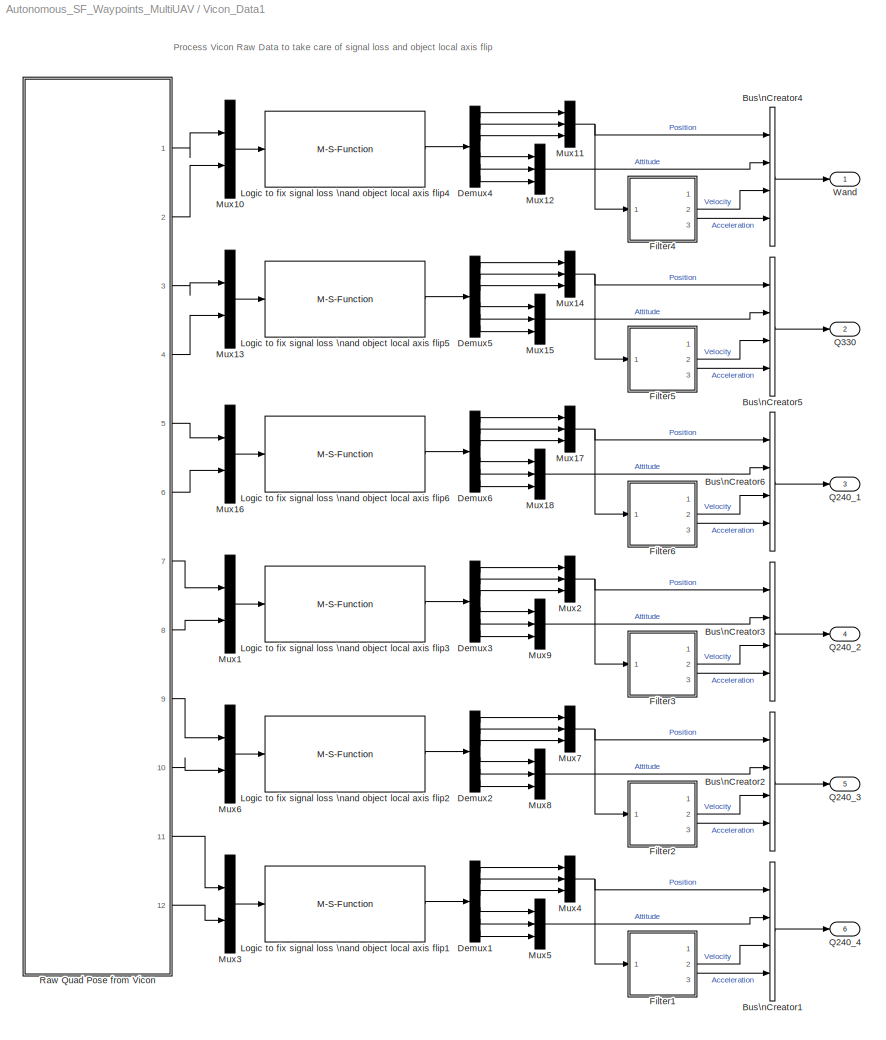
BLOCK [SubSystem] Vicon_Data1
  FunctionWithSeparateData = off
  MaskHideContents = off
  MinAlgLoopOccurrences = off
  Opaque = off
  Ports = [0, 6]
  PropExecContextOutsideSubsystem = off
  RTWSystemCode = Auto
  RequestExecContextInheritance = off
  SID = 622
BLOCK [BusCreator] Vicon_Data1/Bus\nCreator1
  DisplayOption = bar
  Ports = [4, 1]
  SID = 624
BLOCK [BusCreator] Vicon_Data1/Bus\nCreator2
  DisplayOption = bar
  Ports = [4, 1]
  SID = 948
BLOCK [BusCreator] Vicon_Data1/Bus\nCreator3
  DisplayOption = bar
  Ports = [4, 1]
  SID = 975
BLOCK [BusCreator] Vicon_Data1/Bus\nCreator4
  DisplayOption = bar
  Ports = [4, 1]
  SID = 1002
BLOCK [BusCreator] Vicon_Data1/Bus\nCreator5
  DisplayOption = bar
  Ports = [4, 1]
  SID = 1029
BLOCK [BusCreator] Vicon_Data1/Bus\nCreator6
  DisplayOption = bar
  Ports = [4, 1]
  SID = 1056
BLOCK [Demux] Vicon_Data1/Demux1
  DisplayOption = bar
  Outputs = 6
  Ports = [1, 6]
  SID = 625
BLOCK [Demux] Vicon_Data1/Demux2
  DisplayOption = bar
  Outputs = 6
  Ports = [1, 6]
  SID = 949
BLOCK [Demux] Vicon_Data1/Demux3
  DisplayOption = bar
  Outputs = 6
  Ports = [1, 6]
  SID = 976
BLOCK [Demux] Vicon_Data1/Demux4
  DisplayOption = bar
  Outputs = 6
  Ports = [1, 6]
  SID = 1003
BLOCK [Demux] Vicon_Data1/Demux5
  DisplayOption = bar
  Outputs = 6
  Ports = [1, 6]
  SID = 1030
BLOCK [Demux] Vicon_Data1/Demux6
  DisplayOption = bar
  Outputs = 6
  Ports = [1, 6]
  SID = 1057
BLOCK [SubSystem] Vicon_Data1/Filter1
  FunctionWithSeparateData = off
  MaskHideContents = off
  MinAlgLoopOccurrences = off
  Opaque = off
  Ports = [1, 3]
  PropExecContextOutsideSubsystem = off
  RTWSystemCode = Auto
  RequestExecContextInheritance = off
  SID = 647
BLOCK [Outport] Vicon_Data1/Filter1/Acc
  IconDisplay = Port number
  Port = 3
  SID = 666
BLOCK [Gain] Vicon_Data1/Filter1/Gain
  Gain = 15
  OutDataTypeStr = Inherit: Inherit via internal rule
  ParamDataTypeStr = Inherit: Inherit via internal rule
  SID = 649
  SaturateOnIntegerOverflow = off
BLOCK [Gain] Vicon_Data1/Filter1/Gain1
  Gain = 20
  OutDataTypeStr = Inherit: Inherit via internal rule
  ParamDataTypeStr = Inherit: Inherit via internal rule
  SID = 650
  SaturateOnIntegerOverflow = off
BLOCK [Inport] Vicon_Data1/Filter1/In1
  IconDisplay = Port number
  SID = 648
BLOCK [Integrator] Vicon_Data1/Filter1/Integrator
  Ports = [1, 1]
  SID = 651
BLOCK [Integrator] Vicon_Data1/Filter1/Integrator1
  Ports = [1, 1]
  SID = 652
BLOCK [Reference] Vicon_Data1/Filter1/Kalman Filter  REF=dspadpt3/Kalman Filter
  A = [1 sample_time sample_time*sample_time/2 zeros(1,6);0 1 sample_time zeros(1,6);0 0 1 zeros(1,6);0 0 0 1 sample_time sample_time*sample_time/2 0 0 0;zeros(1,4) 1 sample_time zeros(1,3);zeros(1,5) 1 zeros(1,3);zeros(1,6) 1 sample_time sample_time*sample_time/2;zeros(1,7) 1 sample_time;zeros(1,8) 1]  <repeated x6 — deduplicated; at blocks: Kalman Filter>
  FunctionWithSeparateData = off
  GeneratePreprocessorConditionals = off
  H = [1 zeros(1,8); zeros(1,3) 1 zeros(1,5);zeros(1,6) 1 0 0]
  P = zeros(9)
  Ports = [1, 2]
  Q = diag([0 0.001 0.001 0 0.001 0.001 0 0.001 0.001])
  R = 0.001*eye(3)
  RTWMemSecDataConstants = Inherit from model
  RTWMemSecDataInternal = Inherit from model
  RTWMemSecDataParameters = Inherit from model
  RTWMemSecFuncExecute = Inherit from model
  RTWMemSecFuncInitTerm = Inherit from model
  SID = 653
  ShowPortLabels = FromPortIcon
  SourceBlock = dspadpt3/Kalman Filter
  SourceType = Kalman Filter
  SystemSampleTime = -1
  X = zeros([9, 1])
  isOutputEstError = off
  isOutputEstMeasure = on
  isOutputEstState = on
  isOutputPrdError = off
  isOutputPrdMeasure = off
  isOutputPrdState = off
  isReset = on
  num_targets = 1
  sourceEnable = Always
  sourceMeasure = Specify via Dialog
BLOCK [Mux] Vicon_Data1/Filter1/Mux
  DisplayOption = bar
  Inputs = 2
  Ports = [2, 1]
  SID = 654
BLOCK [Mux] Vicon_Data1/Filter1/Mux1
  DisplayOption = bar
  Inputs = 2
  Ports = [2, 1]
  SID = 655
BLOCK [Outport] Vicon_Data1/Filter1/Pos
  IconDisplay = Port number
  SID = 664
BLOCK [Selector] Vicon_Data1/Filter1/Selector1
  IndexOptions = Index vector (dialog)
  Indices = [2]
  InputPortWidth = 3
  OutputSizes = 1
  Ports = [1, 1]
  SID = 656
BLOCK [Selector] Vicon_Data1/Filter1/Selector2
  IndexOptions = Index vector (dialog)
  Indices = [5]
  InputPortWidth = 9
  OutputSizes = 1
  Ports = [1, 1]
  SID = 657
BLOCK [Selector] Vicon_Data1/Filter1/Selector3
  IndexOptions = Index vector (dialog)
  Indices = [2]
  InputPortWidth = 3
  OutputSizes = 1
  Ports = [1, 1]
  SID = 658
BLOCK [Selector] Vicon_Data1/Filter1/Selector4
  IndexOptions = Index vector (dialog)
  Indices = [6]
  InputPortWidth = 9
  OutputSizes = 1
  Ports = [1, 1]
  SID = 659
BLOCK [Selector] Vicon_Data1/Filter1/Selector5
  IndexOptions = Index vector (dialog)
  Indices = [2 5 8]
  InputPortWidth = 9
  OutputSizes = 1
  Ports = [1, 1]
  SID = 660
BLOCK [Selector] Vicon_Data1/Filter1/Selector6
  IndexOptions = Index vector (dialog)
  Indices = [3 6 9]
  InputPortWidth = 9
  OutputSizes = 1
  Ports = [1, 1]
  SID = 661
BLOCK [Sum] Vicon_Data1/Filter1/Sum
  IconShape = round
  InputSameDT = off
  Inputs = |+-
  OutDataTypeStr = Inherit: Inherit via internal rule
  Ports = [2, 1]
  SID = 662
  SaturateOnIntegerOverflow = off
BLOCK [Sum] Vicon_Data1/Filter1/Sum1
  IconShape = round
  InputSameDT = off
  Inputs = |+-
  OutDataTypeStr = Inherit: Inherit via internal rule
  Ports = [2, 1]
  SID = 663
  SaturateOnIntegerOverflow = off
BLOCK [Outport] Vicon_Data1/Filter1/Vel
  IconDisplay = Port number
  Port = 2
  SID = 665
BLOCK [SubSystem] Vicon_Data1/Filter2
  FunctionWithSeparateData = off
  MaskHideContents = off
  MinAlgLoopOccurrences = off
  Opaque = off
  Ports = [1, 3]
  PropExecContextOutsideSubsystem = off
  RTWSystemCode = Auto
  RequestExecContextInheritance = off
  SID = 950
BLOCK [Outport] Vicon_Data1/Filter2/Acc
  IconDisplay = Port number
  Port = 3
  SID = 969
BLOCK [Gain] Vicon_Data1/Filter2/Gain
  Gain = 15
  OutDataTypeStr = Inherit: Inherit via internal rule
  ParamDataTypeStr = Inherit: Inherit via internal rule
  SID = 952
  SaturateOnIntegerOverflow = off
BLOCK [Gain] Vicon_Data1/Filter2/Gain1
  Gain = 20
  OutDataTypeStr = Inherit: Inherit via internal rule
  ParamDataTypeStr = Inherit: Inherit via internal rule
  SID = 953
  SaturateOnIntegerOverflow = off
BLOCK [Inport] Vicon_Data1/Filter2/In1
  IconDisplay = Port number
  SID = 951
BLOCK [Integrator] Vicon_Data1/Filter2/Integrator
  Ports = [1, 1]
  SID = 954
BLOCK [Integrator] Vicon_Data1/Filter2/Integrator1
  Ports = [1, 1]
  SID = 955
BLOCK [Reference] Vicon_Data1/Filter2/Kalman Filter  REF=dspadpt3/Kalman Filter
  FunctionWithSeparateData = off
  GeneratePreprocessorConditionals = off
  H = [1 zeros(1,8); zeros(1,3) 1 zeros(1,5);zeros(1,6) 1 0 0]
  P = zeros(9)
  Ports = [1, 2]
  Q = diag([0 0.001 0.001 0 0.001 0.001 0 0.001 0.001])
  R = 0.001*eye(3)
  RTWMemSecDataConstants = Inherit from model
  RTWMemSecDataInternal = Inherit from model
  RTWMemSecDataParameters = Inherit from model
  RTWMemSecFuncExecute = Inherit from model
  RTWMemSecFuncInitTerm = Inherit from model
  SID = 956
  ShowPortLabels = FromPortIcon
  SourceBlock = dspadpt3/Kalman Filter
  SourceType = Kalman Filter
  SystemSampleTime = -1
  X = zeros([9, 1])
  isOutputEstError = off
  isOutputEstMeasure = on
  isOutputEstState = on
  isOutputPrdError = off
  isOutputPrdMeasure = off
  isOutputPrdState = off
  isReset = on
  num_targets = 1
  sourceEnable = Always
  sourceMeasure = Specify via Dialog
BLOCK [Mux] Vicon_Data1/Filter2/Mux
  DisplayOption = bar
  Inputs = 2
  Ports = [2, 1]
  SID = 957
BLOCK [Mux] Vicon_Data1/Filter2/Mux1
  DisplayOption = bar
  Inputs = 2
  Ports = [2, 1]
  SID = 958
BLOCK [Outport] Vicon_Data1/Filter2/Pos
  IconDisplay = Port number
  SID = 967
BLOCK [Selector] Vicon_Data1/Filter2/Selector1
  IndexOptions = Index vector (dialog)
  Indices = [2]
  InputPortWidth = 3
  OutputSizes = 1
  Ports = [1, 1]
  SID = 959
BLOCK [Selector] Vicon_Data1/Filter2/Selector2
  IndexOptions = Index vector (dialog)
  Indices = [5]
  InputPortWidth = 9
  OutputSizes = 1
  Ports = [1, 1]
  SID = 960
BLOCK [Selector] Vicon_Data1/Filter2/Selector3
  IndexOptions = Index vector (dialog)
  Indices = [2]
  InputPortWidth = 3
  OutputSizes = 1
  Ports = [1, 1]
  SID = 961
BLOCK [Selector] Vicon_Data1/Filter2/Selector4
  IndexOptions = Index vector (dialog)
  Indices = [6]
  InputPortWidth = 9
  OutputSizes = 1
  Ports = [1, 1]
  SID = 962
BLOCK [Selector] Vicon_Data1/Filter2/Selector5
  IndexOptions = Index vector (dialog)
  Indices = [2 5 8]
  InputPortWidth = 9
  OutputSizes = 1
  Ports = [1, 1]
  SID = 963
BLOCK [Selector] Vicon_Data1/Filter2/Selector6
  IndexOptions = Index vector (dialog)
  Indices = [3 6 9]
  InputPortWidth = 9
  OutputSizes = 1
  Ports = [1, 1]
  SID = 964
BLOCK [Sum] Vicon_Data1/Filter2/Sum
  IconShape = round
  InputSameDT = off
  Inputs = |+-
  OutDataTypeStr = Inherit: Inherit via internal rule
  Ports = [2, 1]
  SID = 965
  SaturateOnIntegerOverflow = off
BLOCK [Sum] Vicon_Data1/Filter2/Sum1
  IconShape = round
  InputSameDT = off
  Inputs = |+-
  OutDataTypeStr = Inherit: Inherit via internal rule
  Ports = [2, 1]
  SID = 966
  SaturateOnIntegerOverflow = off
BLOCK [Outport] Vicon_Data1/Filter2/Vel
  IconDisplay = Port number
  Port = 2
  SID = 968
BLOCK [SubSystem] Vicon_Data1/Filter3
  FunctionWithSeparateData = off
  MaskHideContents = off
  MinAlgLoopOccurrences = off
  Opaque = off
  Ports = [1, 3]
  PropExecContextOutsideSubsystem = off
  RTWSystemCode = Auto
  RequestExecContextInheritance = off
  SID = 977
BLOCK [Outport] Vicon_Data1/Filter3/Acc
  IconDisplay = Port number
  Port = 3
  SID = 996
BLOCK [Gain] Vicon_Data1/Filter3/Gain
  Gain = 15
  OutDataTypeStr = Inherit: Inherit via internal rule
  ParamDataTypeStr = Inherit: Inherit via internal rule
  SID = 979
  SaturateOnIntegerOverflow = off
BLOCK [Gain] Vicon_Data1/Filter3/Gain1
  Gain = 20
  OutDataTypeStr = Inherit: Inherit via internal rule
  ParamDataTypeStr = Inherit: Inherit via internal rule
  SID = 980
  SaturateOnIntegerOverflow = off
BLOCK [Inport] Vicon_Data1/Filter3/In1
  IconDisplay = Port number
  SID = 978
BLOCK [Integrator] Vicon_Data1/Filter3/Integrator
  Ports = [1, 1]
  SID = 981
BLOCK [Integrator] Vicon_Data1/Filter3/Integrator1
  Ports = [1, 1]
  SID = 982
BLOCK [Reference] Vicon_Data1/Filter3/Kalman Filter  REF=dspadpt3/Kalman Filter
  FunctionWithSeparateData = off
  GeneratePreprocessorConditionals = off
  H = [1 zeros(1,8); zeros(1,3) 1 zeros(1,5);zeros(1,6) 1 0 0]
  P = zeros(9)
  Ports = [1, 2]
  Q = diag([0 0.001 0.001 0 0.001 0.001 0 0.001 0.001])
  R = 0.001*eye(3)
  RTWMemSecDataConstants = Inherit from model
  RTWMemSecDataInternal = Inherit from model
  RTWMemSecDataParameters = Inherit from model
  RTWMemSecFuncExecute = Inherit from model
  RTWMemSecFuncInitTerm = Inherit from model
  SID = 983
  ShowPortLabels = FromPortIcon
  SourceBlock = dspadpt3/Kalman Filter
  SourceType = Kalman Filter
  SystemSampleTime = -1
  X = zeros([9, 1])
  isOutputEstError = off
  isOutputEstMeasure = on
  isOutputEstState = on
  isOutputPrdError = off
  isOutputPrdMeasure = off
  isOutputPrdState = off
  isReset = on
  num_targets = 1
  sourceEnable = Always
  sourceMeasure = Specify via Dialog
BLOCK [Mux] Vicon_Data1/Filter3/Mux
  DisplayOption = bar
  Inputs = 2
  Ports = [2, 1]
  SID = 984
BLOCK [Mux] Vicon_Data1/Filter3/Mux1
  DisplayOption = bar
  Inputs = 2
  Ports = [2, 1]
  SID = 985
BLOCK [Outport] Vicon_Data1/Filter3/Pos
  IconDisplay = Port number
  SID = 994
BLOCK [Selector] Vicon_Data1/Filter3/Selector1
  IndexOptions = Index vector (dialog)
  Indices = [2]
  InputPortWidth = 3
  OutputSizes = 1
  Ports = [1, 1]
  SID = 986
BLOCK [Selector] Vicon_Data1/Filter3/Selector2
  IndexOptions = Index vector (dialog)
  Indices = [5]
  InputPortWidth = 9
  OutputSizes = 1
  Ports = [1, 1]
  SID = 987
BLOCK [Selector] Vicon_Data1/Filter3/Selector3
  IndexOptions = Index vector (dialog)
  Indices = [2]
  InputPortWidth = 3
  OutputSizes = 1
  Ports = [1, 1]
  SID = 988
BLOCK [Selector] Vicon_Data1/Filter3/Selector4
  IndexOptions = Index vector (dialog)
  Indices = [6]
  InputPortWidth = 9
  OutputSizes = 1
  Ports = [1, 1]
  SID = 989
BLOCK [Selector] Vicon_Data1/Filter3/Selector5
  IndexOptions = Index vector (dialog)
  Indices = [2 5 8]
  InputPortWidth = 9
  OutputSizes = 1
  Ports = [1, 1]
  SID = 990
BLOCK [Selector] Vicon_Data1/Filter3/Selector6
  IndexOptions = Index vector (dialog)
  Indices = [3 6 9]
  InputPortWidth = 9
  OutputSizes = 1
  Ports = [1, 1]
  SID = 991
BLOCK [Sum] Vicon_Data1/Filter3/Sum
  IconShape = round
  InputSameDT = off
  Inputs = |+-
  OutDataTypeStr = Inherit: Inherit via internal rule
  Ports = [2, 1]
  SID = 992
  SaturateOnIntegerOverflow = off
BLOCK [Sum] Vicon_Data1/Filter3/Sum1
  IconShape = round
  InputSameDT = off
  Inputs = |+-
  OutDataTypeStr = Inherit: Inherit via internal rule
  Ports = [2, 1]
  SID = 993
  SaturateOnIntegerOverflow = off
BLOCK [Outport] Vicon_Data1/Filter3/Vel
  IconDisplay = Port number
  Port = 2
  SID = 995
BLOCK [SubSystem] Vicon_Data1/Filter4
  FunctionWithSeparateData = off
  MaskHideContents = off
  MinAlgLoopOccurrences = off
  Opaque = off
  Ports = [1, 3]
  PropExecContextOutsideSubsystem = off
  RTWSystemCode = Auto
  RequestExecContextInheritance = off
  SID = 1004
BLOCK [Outport] Vicon_Data1/Filter4/Acc
  IconDisplay = Port number
  Port = 3
  SID = 1023
BLOCK [Gain] Vicon_Data1/Filter4/Gain
  Gain = 15
  OutDataTypeStr = Inherit: Inherit via internal rule
  ParamDataTypeStr = Inherit: Inherit via internal rule
  SID = 1006
  SaturateOnIntegerOverflow = off
BLOCK [Gain] Vicon_Data1/Filter4/Gain1
  Gain = 20
  OutDataTypeStr = Inherit: Inherit via internal rule
  ParamDataTypeStr = Inherit: Inherit via internal rule
  SID = 1007
  SaturateOnIntegerOverflow = off
BLOCK [Inport] Vicon_Data1/Filter4/In1
  IconDisplay = Port number
  SID = 1005
BLOCK [Integrator] Vicon_Data1/Filter4/Integrator
  Ports = [1, 1]
  SID = 1008
BLOCK [Integrator] Vicon_Data1/Filter4/Integrator1
  Ports = [1, 1]
  SID = 1009
BLOCK [Reference] Vicon_Data1/Filter4/Kalman Filter  REF=dspadpt3/Kalman Filter
  FunctionWithSeparateData = off
  GeneratePreprocessorConditionals = off
  H = [1 zeros(1,8); zeros(1,3) 1 zeros(1,5);zeros(1,6) 1 0 0]
  P = zeros(9)
  Ports = [1, 2]
  Q = diag([0 0.001 0.001 0 0.001 0.001 0 0.001 0.001])
  R = 0.001*eye(3)
  RTWMemSecDataConstants = Inherit from model
  RTWMemSecDataInternal = Inherit from model
  RTWMemSecDataParameters = Inherit from model
  RTWMemSecFuncExecute = Inherit from model
  RTWMemSecFuncInitTerm = Inherit from model
  SID = 1010
  ShowPortLabels = FromPortIcon
  SourceBlock = dspadpt3/Kalman Filter
  SourceType = Kalman Filter
  SystemSampleTime = -1
  X = zeros([9, 1])
  isOutputEstError = off
  isOutputEstMeasure = on
  isOutputEstState = on
  isOutputPrdError = off
  isOutputPrdMeasure = off
  isOutputPrdState = off
  isReset = on
  num_targets = 1
  sourceEnable = Always
  sourceMeasure = Specify via Dialog
BLOCK [Mux] Vicon_Data1/Filter4/Mux
  DisplayOption = bar
  Inputs = 2
  Ports = [2, 1]
  SID = 1011
BLOCK [Mux] Vicon_Data1/Filter4/Mux1
  DisplayOption = bar
  Inputs = 2
  Ports = [2, 1]
  SID = 1012
BLOCK [Outport] Vicon_Data1/Filter4/Pos
  IconDisplay = Port number
  SID = 1021
BLOCK [Selector] Vicon_Data1/Filter4/Selector1
  IndexOptions = Index vector (dialog)
  Indices = [2]
  InputPortWidth = 3
  OutputSizes = 1
  Ports = [1, 1]
  SID = 1013
BLOCK [Selector] Vicon_Data1/Filter4/Selector2
  IndexOptions = Index vector (dialog)
  Indices = [5]
  InputPortWidth = 9
  OutputSizes = 1
  Ports = [1, 1]
  SID = 1014
BLOCK [Selector] Vicon_Data1/Filter4/Selector3
  IndexOptions = Index vector (dialog)
  Indices = [2]
  InputPortWidth = 3
  OutputSizes = 1
  Ports = [1, 1]
  SID = 1015
BLOCK [Selector] Vicon_Data1/Filter4/Selector4
  IndexOptions = Index vector (dialog)
  Indices = [6]
  InputPortWidth = 9
  OutputSizes = 1
  Ports = [1, 1]
  SID = 1016
BLOCK [Selector] Vicon_Data1/Filter4/Selector5
  IndexOptions = Index vector (dialog)
  Indices = [2 5 8]
  InputPortWidth = 9
  OutputSizes = 1
  Ports = [1, 1]
  SID = 1017
BLOCK [Selector] Vicon_Data1/Filter4/Selector6
  IndexOptions = Index vector (dialog)
  Indices = [3 6 9]
  InputPortWidth = 9
  OutputSizes = 1
  Ports = [1, 1]
  SID = 1018
BLOCK [Sum] Vicon_Data1/Filter4/Sum
  IconShape = round
  InputSameDT = off
  Inputs = |+-
  OutDataTypeStr = Inherit: Inherit via internal rule
  Ports = [2, 1]
  SID = 1019
  SaturateOnIntegerOverflow = off
BLOCK [Sum] Vicon_Data1/Filter4/Sum1
  IconShape = round
  InputSameDT = off
  Inputs = |+-
  OutDataTypeStr = Inherit: Inherit via internal rule
  Ports = [2, 1]
  SID = 1020
  SaturateOnIntegerOverflow = off
BLOCK [Outport] Vicon_Data1/Filter4/Vel
  IconDisplay = Port number
  Port = 2
  SID = 1022
BLOCK [SubSystem] Vicon_Data1/Filter5
  FunctionWithSeparateData = off
  MaskHideContents = off
  MinAlgLoopOccurrences = off
  Opaque = off
  Ports = [1, 3]
  PropExecContextOutsideSubsystem = off
  RTWSystemCode = Auto
  RequestExecContextInheritance = off
  SID = 1031
BLOCK [Outport] Vicon_Data1/Filter5/Acc
  IconDisplay = Port number
  Port = 3
  SID = 1050
BLOCK [Gain] Vicon_Data1/Filter5/Gain
  Gain = 15
  OutDataTypeStr = Inherit: Inherit via internal rule
  ParamDataTypeStr = Inherit: Inherit via internal rule
  SID = 1033
  SaturateOnIntegerOverflow = off
BLOCK [Gain] Vicon_Data1/Filter5/Gain1
  Gain = 20
  OutDataTypeStr = Inherit: Inherit via internal rule
  ParamDataTypeStr = Inherit: Inherit via internal rule
  SID = 1034
  SaturateOnIntegerOverflow = off
BLOCK [Inport] Vicon_Data1/Filter5/In1
  IconDisplay = Port number
  SID = 1032
BLOCK [Integrator] Vicon_Data1/Filter5/Integrator
  Ports = [1, 1]
  SID = 1035
BLOCK [Integrator] Vicon_Data1/Filter5/Integrator1
  Ports = [1, 1]
  SID = 1036
BLOCK [Reference] Vicon_Data1/Filter5/Kalman Filter  REF=dspadpt3/Kalman Filter
  FunctionWithSeparateData = off
  GeneratePreprocessorConditionals = off
  H = [1 zeros(1,8); zeros(1,3) 1 zeros(1,5);zeros(1,6) 1 0 0]
  P = zeros(9)
  Ports = [1, 2]
  Q = diag([0 0.001 0.001 0 0.001 0.001 0 0.001 0.001])
  R = 0.001*eye(3)
  RTWMemSecDataConstants = Inherit from model
  RTWMemSecDataInternal = Inherit from model
  RTWMemSecDataParameters = Inherit from model
  RTWMemSecFuncExecute = Inherit from model
  RTWMemSecFuncInitTerm = Inherit from model
  SID = 1037
  ShowPortLabels = FromPortIcon
  SourceBlock = dspadpt3/Kalman Filter
  SourceType = Kalman Filter
  SystemSampleTime = -1
  X = zeros([9, 1])
  isOutputEstError = off
  isOutputEstMeasure = on
  isOutputEstState = on
  isOutputPrdError = off
  isOutputPrdMeasure = off
  isOutputPrdState = off
  isReset = on
  num_targets = 1
  sourceEnable = Always
  sourceMeasure = Specify via Dialog
BLOCK [Mux] Vicon_Data1/Filter5/Mux
  DisplayOption = bar
  Inputs = 2
  Ports = [2, 1]
  SID = 1038
BLOCK [Mux] Vicon_Data1/Filter5/Mux1
  DisplayOption = bar
  Inputs = 2
  Ports = [2, 1]
  SID = 1039
BLOCK [Outport] Vicon_Data1/Filter5/Pos
  IconDisplay = Port number
  SID = 1048
BLOCK [Selector] Vicon_Data1/Filter5/Selector1
  IndexOptions = Index vector (dialog)
  Indices = [2]
  InputPortWidth = 3
  OutputSizes = 1
  Ports = [1, 1]
  SID = 1040
BLOCK [Selector] Vicon_Data1/Filter5/Selector2
  IndexOptions = Index vector (dialog)
  Indices = [5]
  InputPortWidth = 9
  OutputSizes = 1
  Ports = [1, 1]
  SID = 1041
BLOCK [Selector] Vicon_Data1/Filter5/Selector3
  IndexOptions = Index vector (dialog)
  Indices = [2]
  InputPortWidth = 3
  OutputSizes = 1
  Ports = [1, 1]
  SID = 1042
BLOCK [Selector] Vicon_Data1/Filter5/Selector4
  IndexOptions = Index vector (dialog)
  Indices = [6]
  InputPortWidth = 9
  OutputSizes = 1
  Ports = [1, 1]
  SID = 1043
BLOCK [Selector] Vicon_Data1/Filter5/Selector5
  IndexOptions = Index vector (dialog)
  Indices = [2 5 8]
  InputPortWidth = 9
  OutputSizes = 1
  Ports = [1, 1]
  SID = 1044
BLOCK [Selector] Vicon_Data1/Filter5/Selector6
  IndexOptions = Index vector (dialog)
  Indices = [3 6 9]
  InputPortWidth = 9
  OutputSizes = 1
  Ports = [1, 1]
  SID = 1045
BLOCK [Sum] Vicon_Data1/Filter5/Sum
  IconShape = round
  InputSameDT = off
  Inputs = |+-
  OutDataTypeStr = Inherit: Inherit via internal rule
  Ports = [2, 1]
  SID = 1046
  SaturateOnIntegerOverflow = off
BLOCK [Sum] Vicon_Data1/Filter5/Sum1
  IconShape = round
  InputSameDT = off
  Inputs = |+-
  OutDataTypeStr = Inherit: Inherit via internal rule
  Ports = [2, 1]
  SID = 1047
  SaturateOnIntegerOverflow = off
BLOCK [Outport] Vicon_Data1/Filter5/Vel
  IconDisplay = Port number
  Port = 2
  SID = 1049
BLOCK [SubSystem] Vicon_Data1/Filter6
  FunctionWithSeparateData = off
  MaskHideContents = off
  MinAlgLoopOccurrences = off
  Opaque = off
  Ports = [1, 3]
  PropExecContextOutsideSubsystem = off
  RTWSystemCode = Auto
  RequestExecContextInheritance = off
  SID = 1058
BLOCK [Outport] Vicon_Data1/Filter6/Acc
  IconDisplay = Port number
  Port = 3
  SID = 1077
BLOCK [Gain] Vicon_Data1/Filter6/Gain
  Gain = 15
  OutDataTypeStr = Inherit: Inherit via internal rule
  ParamDataTypeStr = Inherit: Inherit via internal rule
  SID = 1060
  SaturateOnIntegerOverflow = off
BLOCK [Gain] Vicon_Data1/Filter6/Gain1
  Gain = 20
  OutDataTypeStr = Inherit: Inherit via internal rule
  ParamDataTypeStr = Inherit: Inherit via internal rule
  SID = 1061
  SaturateOnIntegerOverflow = off
BLOCK [Inport] Vicon_Data1/Filter6/In1
  IconDisplay = Port number
  SID = 1059
BLOCK [Integrator] Vicon_Data1/Filter6/Integrator
  Ports = [1, 1]
  SID = 1062
BLOCK [Integrator] Vicon_Data1/Filter6/Integrator1
  Ports = [1, 1]
  SID = 1063
BLOCK [Reference] Vicon_Data1/Filter6/Kalman Filter  REF=dspadpt3/Kalman Filter
  FunctionWithSeparateData = off
  GeneratePreprocessorConditionals = off
  H = [1 zeros(1,8); zeros(1,3) 1 zeros(1,5);zeros(1,6) 1 0 0]
  P = zeros(9)
  Ports = [1, 2]
  Q = diag([0 0.001 0.001 0 0.001 0.001 0 0.001 0.001])
  R = 0.001*eye(3)
  RTWMemSecDataConstants = Inherit from model
  RTWMemSecDataInternal = Inherit from model
  RTWMemSecDataParameters = Inherit from model
  RTWMemSecFuncExecute = Inherit from model
  RTWMemSecFuncInitTerm = Inherit from model
  SID = 1064
  ShowPortLabels = FromPortIcon
  SourceBlock = dspadpt3/Kalman Filter
  SourceType = Kalman Filter
  SystemSampleTime = -1
  X = zeros([9, 1])
  isOutputEstError = off
  isOutputEstMeasure = on
  isOutputEstState = on
  isOutputPrdError = off
  isOutputPrdMeasure = off
  isOutputPrdState = off
  isReset = on
  num_targets = 1
  sourceEnable = Always
  sourceMeasure = Specify via Dialog
BLOCK [Mux] Vicon_Data1/Filter6/Mux
  DisplayOption = bar
  Inputs = 2
  Ports = [2, 1]
  SID = 1065
BLOCK [Mux] Vicon_Data1/Filter6/Mux1
  DisplayOption = bar
  Inputs = 2
  Ports = [2, 1]
  SID = 1066
BLOCK [Outport] Vicon_Data1/Filter6/Pos
  IconDisplay = Port number
  SID = 1075
BLOCK [Selector] Vicon_Data1/Filter6/Selector1
  IndexOptions = Index vector (dialog)
  Indices = [2]
  InputPortWidth = 3
  OutputSizes = 1
  Ports = [1, 1]
  SID = 1067
BLOCK [Selector] Vicon_Data1/Filter6/Selector2
  IndexOptions = Index vector (dialog)
  Indices = [5]
  InputPortWidth = 9
  OutputSizes = 1
  Ports = [1, 1]
  SID = 1068
BLOCK [Selector] Vicon_Data1/Filter6/Selector3
  IndexOptions = Index vector (dialog)
  Indices = [2]
  InputPortWidth = 3
  OutputSizes = 1
  Ports = [1, 1]
  SID = 1069
BLOCK [Selector] Vicon_Data1/Filter6/Selector4
  IndexOptions = Index vector (dialog)
  Indices = [6]
  InputPortWidth = 9
  OutputSizes = 1
  Ports = [1, 1]
  SID = 1070
BLOCK [Selector] Vicon_Data1/Filter6/Selector5
  IndexOptions = Index vector (dialog)
  Indices = [2 5 8]
  InputPortWidth = 9
  OutputSizes = 1
  Ports = [1, 1]
  SID = 1071
BLOCK [Selector] Vicon_Data1/Filter6/Selector6
  IndexOptions = Index vector (dialog)
  Indices = [3 6 9]
  InputPortWidth = 9
  OutputSizes = 1
  Ports = [1, 1]
  SID = 1072
BLOCK [Sum] Vicon_Data1/Filter6/Sum
  IconShape = round
  InputSameDT = off
  Inputs = |+-
  OutDataTypeStr = Inherit: Inherit via internal rule
  Ports = [2, 1]
  SID = 1073
  SaturateOnIntegerOverflow = off
BLOCK [Sum] Vicon_Data1/Filter6/Sum1
  IconShape = round
  InputSameDT = off
  Inputs = |+-
  OutDataTypeStr = Inherit: Inherit via internal rule
  Ports = [2, 1]
  SID = 1074
  SaturateOnIntegerOverflow = off
BLOCK [Outport] Vicon_Data1/Filter6/Vel
  IconDisplay = Port number
  Port = 2
  SID = 1076
BLOCK [M-S-Function] Vicon_Data1/Logic to fix signal loss \nand object local axis flip1
  FunctionName = Vicon_Filter
  Ports = [1, 1]
  SID = 668
BLOCK [M-S-Function] Vicon_Data1/Logic to fix signal loss \nand object local axis flip2
  FunctionName = Vicon_Filter
  Ports = [1, 1]
  SID = 970
BLOCK [M-S-Function] Vicon_Data1/Logic to fix signal loss \nand object local axis flip3
  FunctionName = Vicon_Filter
  Ports = [1, 1]
  SID = 997
BLOCK [M-S-Function] Vicon_Data1/Logic to fix signal loss \nand object local axis flip4
  FunctionName = Vicon_Filter
  Ports = [1, 1]
  SID = 1024
BLOCK [M-S-Function] Vicon_Data1/Logic to fix signal loss \nand object local axis flip5
  FunctionName = Vicon_Filter
  Ports = [1, 1]
  SID = 1051
BLOCK [M-S-Function] Vicon_Data1/Logic to fix signal loss \nand object local axis flip6
  FunctionName = Vicon_Filter
  Ports = [1, 1]
  SID = 1078
BLOCK [Mux] Vicon_Data1/Mux1
  DisplayOption = bar
  Inputs = 2
  Ports = [2, 1]
  SID = 998
BLOCK [Mux] Vicon_Data1/Mux10
  DisplayOption = bar
  Inputs = 2
  Ports = [2, 1]
  SID = 1025
BLOCK [Mux] Vicon_Data1/Mux11
  DisplayOption = bar
  Inputs = 3
  Ports = [3, 1]
  SID = 1026
BLOCK [Mux] Vicon_Data1/Mux12
  DisplayOption = bar
  Inputs = 3
  Ports = [3, 1]
  SID = 1027
BLOCK [Mux] Vicon_Data1/Mux13
  DisplayOption = bar
  Inputs = 2
  Ports = [2, 1]
  SID = 1052
BLOCK [Mux] Vicon_Data1/Mux14
  DisplayOption = bar
  Inputs = 3
  Ports = [3, 1]
  SID = 1053
BLOCK [Mux] Vicon_Data1/Mux15
  DisplayOption = bar
  Inputs = 3
  Ports = [3, 1]
  SID = 1054
BLOCK [Mux] Vicon_Data1/Mux16
  DisplayOption = bar
  Inputs = 2
  Ports = [2, 1]
  SID = 1079
BLOCK [Mux] Vicon_Data1/Mux17
  DisplayOption = bar
  Inputs = 3
  Ports = [3, 1]
  SID = 1080
BLOCK [Mux] Vicon_Data1/Mux18
  DisplayOption = bar
  Inputs = 3
  Ports = [3, 1]
  SID = 1081
BLOCK [Mux] Vicon_Data1/Mux2
  DisplayOption = bar
  Inputs = 3
  Ports = [3, 1]
  SID = 999
BLOCK [Mux] Vicon_Data1/Mux3
  DisplayOption = bar
  Inputs = 2
  Ports = [2, 1]
  SID = 672
BLOCK [Mux] Vicon_Data1/Mux4
  DisplayOption = bar
  Inputs = 3
  Ports = [3, 1]
  SID = 673
BLOCK [Mux] Vicon_Data1/Mux5
  DisplayOption = bar
  Inputs = 3
  Ports = [3, 1]
  SID = 674
BLOCK [Mux] Vicon_Data1/Mux6
  DisplayOption = bar
  Inputs = 2
  Ports = [2, 1]
  SID = 971
BLOCK [Mux] Vicon_Data1/Mux7
  DisplayOption = bar
  Inputs = 3
  Ports = [3, 1]
  SID = 972
BLOCK [Mux] Vicon_Data1/Mux8
  DisplayOption = bar
  Inputs = 3
  Ports = [3, 1]
  SID = 973
BLOCK [Mux] Vicon_Data1/Mux9
  DisplayOption = bar
  Inputs = 3
  Ports = [3, 1]
  SID = 1000
BLOCK [Outport] Vicon_Data1/Q240_1
  IconDisplay = Port number
  Port = 3
  SID = 1082
BLOCK [Outport] Vicon_Data1/Q240_2
  IconDisplay = Port number
  Port = 4
  SID = 1001
BLOCK [Outport] Vicon_Data1/Q240_3
  IconDisplay = Port number
  Port = 5
  SID = 974
BLOCK [Outport] Vicon_Data1/Q240_4
  IconDisplay = Port number
  Port = 6
  SID = 920
BLOCK [Outport] Vicon_Data1/Q330
  IconDisplay = Port number
  Port = 2
  SID = 1055
BLOCK [SubSystem] Vicon_Data1/Raw Quad Pose from Vicon
  FunctionWithSeparateData = off
  MaskHideContents = off
  MinAlgLoopOccurrences = off
  Opaque = off
  Ports = [0, 12]
  PropExecContextOutsideSubsystem = off
  RTWSystemCode = Auto
  RequestExecContextInheritance = off
  SID = 675
BLOCK [Outport] Vicon_Data1/Raw Quad Pose from Vicon/Attitude_Vicon_Wand
  IconDisplay = Port number
  Port = 2
  SID = 908
BLOCK [Outport] Vicon_Data1/Raw Quad Pose from Vicon/Attitude_Vicon_x240
  IconDisplay = Port number
  Port = 6
  SID = 912
BLOCK [Outport] Vicon_Data1/Raw Quad Pose from Vicon/Attitude_Vicon_x240_2
  IconDisplay = Port number
  Port = 8
  SID = 914
BLOCK [Outport] Vicon_Data1/Raw Quad Pose from Vicon/Attitude_Vicon_x240_3
  IconDisplay = Port number
  Port = 10
  SID = 916
BLOCK [Outport] Vicon_Data1/Raw Quad Pose from Vicon/Attitude_Vicon_x240_4
  IconDisplay = Port number
  Port = 12
  SID = 918
BLOCK [Outport] Vicon_Data1/Raw Quad Pose from Vicon/Attitude_Vicon_x330
  IconDisplay = Port number
  Port = 4
  SID = 910
BLOCK [Constant] Vicon_Data1/Raw Quad Pose from Vicon/Constant
  SID = 676
BLOCK [Demux] Vicon_Data1/Raw Quad Pose from Vicon/Demux
  DisplayOption = bar
  Outputs = 6
  Ports = [1, 6]
  SID = 677
BLOCK [MATLABFcn] Vicon_Data1/Raw Quad Pose from Vicon/Interpreted MATLAB\nFunction
  MATLABFcn = GetViconPose_Formation
  Ports = [1, 1]
  SID = 678
BLOCK [Outport] Vicon_Data1/Raw Quad Pose from Vicon/Position_Vicon_Wand
  IconDisplay = Port number
  SID = 907
BLOCK [Outport] Vicon_Data1/Raw Quad Pose from Vicon/Position_Vicon_x240
  IconDisplay = Port number
  Port = 5
  SID = 911
BLOCK [Outport] Vicon_Data1/Raw Quad Pose from Vicon/Position_Vicon_x240_2
  IconDisplay = Port number
  Port = 7
  SID = 913
BLOCK [Outport] Vicon_Data1/Raw Quad Pose from Vicon/Position_Vicon_x240_3
  IconDisplay = Port number
  Port = 9
  SID = 915
BLOCK [Outport] Vicon_Data1/Raw Quad Pose from Vicon/Position_Vicon_x240_4
  IconDisplay = Port number
  Port = 11
  SID = 917
BLOCK [Outport] Vicon_Data1/Raw Quad Pose from Vicon/Position_Vicon_x330
  IconDisplay = Port number
  Port = 3
  SID = 909
BLOCK [SubSystem] Vicon_Data1/Raw Quad Pose from Vicon/Process Vicon Raw Data
  FunctionWithSeparateData = off
  MaskHideContents = off
  MinAlgLoopOccurrences = off
  Opaque = off
  Ports = [1, 2]
  PropExecContextOutsideSubsystem = off
  RTWSystemCode = Auto
  RequestExecContextInheritance = off
  SID = 679
BLOCK [Sum] Vicon_Data1/Raw Quad Pose from Vicon/Process Vicon Raw Data/Add1
  InputSameDT = off
  Inputs = -+
  OutDataTypeStr = Inherit: Inherit via internal rule
  Ports = [2, 1]
  SID = 681
  SaturateOnIntegerOverflow = off
BLOCK [Outport] Vicon_Data1/Raw Quad Pose from Vicon/Process Vicon Raw Data/Attitude
  IconDisplay = Port number
  Port = 2
  SID = 716
BLOCK [Constant] Vicon_Data1/Raw Quad Pose from Vicon/Process Vicon Raw Data/Constant1
  OutDataTypeStr = double
  SID = 682
  Value = pi
BLOCK [Demux] Vicon_Data1/Raw Quad Pose from Vicon/Process Vicon Raw Data/Demux
  DisplayOption = bar
  Outputs = 6
  Ports = [1, 6]
  SID = 683
BLOCK [SubSystem] Vicon_Data1/Raw Quad Pose from Vicon/Process Vicon Raw Data/Flip_pi1
  FunctionWithSeparateData = off
  MaskDescription = Flips the inputs into the range -pi to pi
  MaskDisplay = disp('Flip_pi')
  MaskHelp = Flips the inputs into the range -pi to pi
  MaskHideContents = off
  MaskIconFrame = on
  MaskIconOpaque = on
  MaskIconRotate = none
  MaskIconUnits = autoscale
  MaskPortRotate = default
  MaskType = Flip -pi to pi
  MinAlgLoopOccurrences = off
  Opaque = off
  Ports = [1, 1]
  PropExecContextOutsideSubsystem = off
  RTWSystemCode = Auto
  RequestExecContextInheritance = off
  SID = 684
BLOCK [Sum] Vicon_Data1/Raw Quad Pose from Vicon/Process Vicon Raw Data/Flip_pi1/Add
  InputSameDT = off
  Inputs = -+
  OutDataTypeStr = Inherit: Inherit via internal rule
  Ports = [2, 1]
  SID = 686
  SaturateOnIntegerOverflow = off
BLOCK [Inport] Vicon_Data1/Raw Quad Pose from Vicon/Process Vicon Raw Data/Flip_pi1/Angle
  IconDisplay = Port number
  SID = 685
BLOCK [Outport] Vicon_Data1/Raw Quad Pose from Vicon/Process Vicon Raw Data/Flip_pi1/Angle_Flip
  IconDisplay = Port number
  SID = 708
BLOCK [Reference] Vicon_Data1/Raw Quad Pose from Vicon/Process Vicon Raw Data/Flip_pi1/Compare\nTo Constant1  REF=simulink/Logic and Bit\nOperations/Compare\nTo Constant
  FunctionWithSeparateData = off
  GeneratePreprocessorConditionals = off
  LogicOutDataTypeMode = uint8
  Ports = [1, 1]
  RTWMemSecDataConstants = Inherit from model
  RTWMemSecDataInternal = Inherit from model
  RTWMemSecDataParameters = Inherit from model
  RTWMemSecFuncExecute = Inherit from model
  RTWMemSecFuncInitTerm = Inherit from model
  SID = 687
  ShowPortLabels = FromPortIcon
  SourceBlock = simulink/Logic and Bit\nOperations/Compare\nTo Constant
  SourceType = Compare To Constant
  SystemSampleTime = -1
  ZeroCross = off
  const = pi
  relop = >
BLOCK [Constant] Vicon_Data1/Raw Quad Pose from Vicon/Process Vicon Raw Data/Flip_pi1/Constant
  SID = 688
  Value = 2*pi
BLOCK [DataTypeDuplicate] Vicon_Data1/Raw Quad Pose from Vicon/Process Vicon Raw Data/Flip_pi1/Data Type\nDuplicate
  Ports = [2]
  SID = 689
BLOCK [SubSystem] Vicon_Data1/Raw Quad Pose from Vicon/Process Vicon Raw Data/Flip_pi1/Flip_0_to_2pi
  FunctionWithSeparateData = off
  MaskDescription = Flips the inputs into the range zero to +2pi
  MaskDisplay = disp('Flip_0_2pi')
  MaskHelp = Flips the inputs into the range zero to +2pi
  MaskHideContents = off
  MaskIconFrame = on
  MaskIconOpaque = on
  MaskIconRotate = none
  MaskIconUnits = autoscale
  MaskPortRotate = default
  MaskType = Flip zero to 2pi
  MinAlgLoopOccurrences = off
  Opaque = off
  Ports = [1, 1]
  PropExecContextOutsideSubsystem = off
  RTWSystemCode = Auto
  RequestExecContextInheritance = off
  SID = 690
BLOCK [Sum] Vicon_Data1/Raw Quad Pose from Vicon/Process Vicon Raw Data/Flip_pi1/Flip_0_to_2pi/Add
  InputSameDT = off
  OutDataTypeStr = Inherit: Inherit via internal rule
  Ports = [2, 1]
  SID = 692
  SaturateOnIntegerOverflow = off
BLOCK [Inport] Vicon_Data1/Raw Quad Pose from Vicon/Process Vicon Raw Data/Flip_pi1/Flip_0_to_2pi/Angle
  IconDisplay = Port number
  SID = 691
BLOCK [Outport] Vicon_Data1/Raw Quad Pose from Vicon/Process Vicon Raw Data/Flip_pi1/Flip_0_to_2pi/Angle_Flip
  IconDisplay = Port number
  SID = 706
BLOCK [Reference] Vicon_Data1/Raw Quad Pose from Vicon/Process Vicon Raw Data/Flip_pi1/Flip_0_to_2pi/Compare\nTo Constant1  REF=simulink/Logic and Bit\nOperations/Compare\nTo Constant
  FunctionWithSeparateData = off
  GeneratePreprocessorConditionals = off
  LogicOutDataTypeMode = uint8
  Ports = [1, 1]
  RTWMemSecDataConstants = Inherit from model
  RTWMemSecDataInternal = Inherit from model
  RTWMemSecDataParameters = Inherit from model
  RTWMemSecFuncExecute = Inherit from model
  RTWMemSecFuncInitTerm = Inherit from model
  SID = 693
  ShowPortLabels = FromPortIcon
  SourceBlock = simulink/Logic and Bit\nOperations/Compare\nTo Constant
  SourceType = Compare To Constant
  SystemSampleTime = -1
  ZeroCross = off
  const = 0
  relop = <
BLOCK [Constant] Vicon_Data1/Raw Quad Pose from Vicon/Process Vicon Raw Data/Flip_pi1/Flip_0_to_2pi/Constant
  SID = 694
  Value = 2*pi
BLOCK [DataTypeDuplicate] Vicon_Data1/Raw Quad Pose from Vicon/Process Vicon Raw Data/Flip_pi1/Flip_0_to_2pi/Data Type\nDuplicate
  Ports = [2]
  SID = 695
BLOCK [SubSystem] Vicon_Data1/Raw Quad Pose from Vicon/Process Vicon Raw Data/Flip_pi1/Flip_0_to_2pi/Flip_2pi
  FunctionWithSeparateData = off
  MaskDescription = Flips the inputs into the range -2pi to +2pi
  MaskDisplay = disp('Flip_2pi')
  MaskHelp = Flips the inputs into the range -2pi to +2pi
  MaskHideContents = off
  MaskIconFrame = on
  MaskIconOpaque = on
  MaskIconRotate = none
  MaskIconUnits = autoscale
  MaskPortRotate = default
  MaskType = Flip -2pi to 2pi
  MinAlgLoopOccurrences = off
  Opaque = off
  Ports = [1, 1]
  PropExecContextOutsideSubsystem = off
  RTWSystemCode = Auto
  RequestExecContextInheritance = off
  SID = 696
BLOCK [Inport] Vicon_Data1/Raw Quad Pose from Vicon/Process Vicon Raw Data/Flip_pi1/Flip_0_to_2pi/Flip_2pi/Angle
  IconDisplay = Port number
  SID = 697
BLOCK [Outport] Vicon_Data1/Raw Quad Pose from Vicon/Process Vicon Raw Data/Flip_pi1/Flip_0_to_2pi/Flip_2pi/Angle_Flip
  IconDisplay = Port number
  SID = 704
BLOCK [Bias] Vicon_Data1/Raw Quad Pose from Vicon/Process Vicon Raw Data/Flip_pi1/Flip_0_to_2pi/Flip_2pi/Bias
  Bias = -2*pi
  SID = 698
  SaturateOnIntegerOverflow = off
BLOCK [Constant] Vicon_Data1/Raw Quad Pose from Vicon/Process Vicon Raw Data/Flip_pi1/Flip_0_to_2pi/Flip_2pi/Constant
  SID = 699
  Value = 2*pi
BLOCK [DataTypeDuplicate] Vicon_Data1/Raw Quad Pose from Vicon/Process Vicon Raw Data/Flip_pi1/Flip_0_to_2pi/Flip_2pi/Data Type\nDuplicate
  Ports = [2]
  SID = 700
BLOCK [Math] Vicon_Data1/Raw Quad Pose from Vicon/Process Vicon Raw Data/Flip_pi1/Flip_0_to_2pi/Flip_2pi/Modulo
  Operator = mod
  Ports = [2, 1]
  SID = 701
BLOCK [Signum] Vicon_Data1/Raw Quad Pose from Vicon/Process Vicon Raw Data/Flip_pi1/Flip_0_to_2pi/Flip_2pi/Sign1
  SID = 702
BLOCK [Switch] Vicon_Data1/Raw Quad Pose from Vicon/Process Vicon Raw Data/Flip_pi1/Flip_0_to_2pi/Flip_2pi/Switch
  InputSameDT = off
  SID = 703
  SaturateOnIntegerOverflow = off
BLOCK [Switch] Vicon_Data1/Raw Quad Pose from Vicon/Process Vicon Raw Data/Flip_pi1/Flip_0_to_2pi/Switch
  Criteria = u2 ~= 0
  InputSameDT = off
  SID = 705
  SaturateOnIntegerOverflow = off
BLOCK [Switch] Vicon_Data1/Raw Quad Pose from Vicon/Process Vicon Raw Data/Flip_pi1/Switch
  Criteria = u2 ~= 0
  InputSameDT = off
  SID = 707
  SaturateOnIntegerOverflow = off
BLOCK [Gain] Vicon_Data1/Raw Quad Pose from Vicon/Process Vicon Raw Data/Gain1
  Gain = 0.001
  OutDataTypeStr = Inherit: Inherit via internal rule
  ParamDataTypeStr = Inherit: Inherit via internal rule
  SID = 709
  SaturateOnIntegerOverflow = off
BLOCK [Gain] Vicon_Data1/Raw Quad Pose from Vicon/Process Vicon Raw Data/Gain3
  Gain = -1
  OutDataTypeStr = Inherit: Inherit via internal rule
  ParamDataTypeStr = Inherit: Inherit via internal rule
  SID = 710
  SaturateOnIntegerOverflow = off
BLOCK [Gain] Vicon_Data1/Raw Quad Pose from Vicon/Process Vicon Raw Data/Gain6
  Gain = -0.001
  OutDataTypeStr = Inherit: Inherit via internal rule
  ParamDataTypeStr = Inherit: Inherit via internal rule
  SID = 711
  SaturateOnIntegerOverflow = off
BLOCK [Gain] Vicon_Data1/Raw Quad Pose from Vicon/Process Vicon Raw Data/Gain7
  Gain = -0.001
  OutDataTypeStr = Inherit: Inherit via internal rule
  ParamDataTypeStr = Inherit: Inherit via internal rule
  SID = 712
  SaturateOnIntegerOverflow = off
BLOCK [Concatenate] Vicon_Data1/Raw Quad Pose from Vicon/Process Vicon Raw Data/Matrix\nConcatenate1
  Mode = Multidimensional array
  NumInputs = 3
  Ports = [3, 1]
  SID = 713
BLOCK [Concatenate] Vicon_Data1/Raw Quad Pose from Vicon/Process Vicon Raw Data/Matrix\nConcatenate13
  Mode = Multidimensional array
  NumInputs = 3
  Ports = [3, 1]
  SID = 714
BLOCK [Outport] Vicon_Data1/Raw Quad Pose from Vicon/Process Vicon Raw Data/Position
  IconDisplay = Port number
  SID = 715
BLOCK [Inport] Vicon_Data1/Raw Quad Pose from Vicon/Process Vicon Raw Data/Vicon Raw
  IconDisplay = Port number
  SID = 680
BLOCK [SubSystem] Vicon_Data1/Raw Quad Pose from Vicon/Process Vicon Raw Data1
  FunctionWithSeparateData = off
  MaskHideContents = off
  MinAlgLoopOccurrences = off
  Opaque = off
  Ports = [1, 2]
  PropExecContextOutsideSubsystem = off
  RTWSystemCode = Auto
  RequestExecContextInheritance = off
  SID = 717
BLOCK [Sum] Vicon_Data1/Raw Quad Pose from Vicon/Process Vicon Raw Data1/Add1
  InputSameDT = off
  Inputs = -+
  OutDataTypeStr = Inherit: Inherit via internal rule
  Ports = [2, 1]
  SID = 719
  SaturateOnIntegerOverflow = off
BLOCK [Outport] Vicon_Data1/Raw Quad Pose from Vicon/Process Vicon Raw Data1/Attitude
  IconDisplay = Port number
  Port = 2
  SID = 754
BLOCK [Constant] Vicon_Data1/Raw Quad Pose from Vicon/Process Vicon Raw Data1/Constant1
  OutDataTypeStr = double
  SID = 720
  Value = pi
BLOCK [Demux] Vicon_Data1/Raw Quad Pose from Vicon/Process Vicon Raw Data1/Demux
  DisplayOption = bar
  Outputs = 6
  Ports = [1, 6]
  SID = 721
BLOCK [SubSystem] Vicon_Data1/Raw Quad Pose from Vicon/Process Vicon Raw Data1/Flip_pi1
  FunctionWithSeparateData = off
  MaskDescription = Flips the inputs into the range -pi to pi
  MaskDisplay = disp('Flip_pi')
  MaskHelp = Flips the inputs into the range -pi to pi
  MaskHideContents = off
  MaskIconFrame = on
  MaskIconOpaque = on
  MaskIconRotate = none
  MaskIconUnits = autoscale
  MaskPortRotate = default
  MaskType = Flip -pi to pi
  MinAlgLoopOccurrences = off
  Opaque = off
  Ports = [1, 1]
  PropExecContextOutsideSubsystem = off
  RTWSystemCode = Auto
  RequestExecContextInheritance = off
  SID = 722
BLOCK [Sum] Vicon_Data1/Raw Quad Pose from Vicon/Process Vicon Raw Data1/Flip_pi1/Add
  InputSameDT = off
  Inputs = -+
  OutDataTypeStr = Inherit: Inherit via internal rule
  Ports = [2, 1]
  SID = 724
  SaturateOnIntegerOverflow = off
BLOCK [Inport] Vicon_Data1/Raw Quad Pose from Vicon/Process Vicon Raw Data1/Flip_pi1/Angle
  IconDisplay = Port number
  SID = 723
BLOCK [Outport] Vicon_Data1/Raw Quad Pose from Vicon/Process Vicon Raw Data1/Flip_pi1/Angle_Flip
  IconDisplay = Port number
  SID = 746
BLOCK [Reference] Vicon_Data1/Raw Quad Pose from Vicon/Process Vicon Raw Data1/Flip_pi1/Compare\nTo Constant1  REF=simulink/Logic and Bit\nOperations/Compare\nTo Constant
  FunctionWithSeparateData = off
  GeneratePreprocessorConditionals = off
  LogicOutDataTypeMode = uint8
  Ports = [1, 1]
  RTWMemSecDataConstants = Inherit from model
  RTWMemSecDataInternal = Inherit from model
  RTWMemSecDataParameters = Inherit from model
  RTWMemSecFuncExecute = Inherit from model
  RTWMemSecFuncInitTerm = Inherit from model
  SID = 725
  ShowPortLabels = FromPortIcon
  SourceBlock = simulink/Logic and Bit\nOperations/Compare\nTo Constant
  SourceType = Compare To Constant
  SystemSampleTime = -1
  ZeroCross = off
  const = pi
  relop = >
BLOCK [Constant] Vicon_Data1/Raw Quad Pose from Vicon/Process Vicon Raw Data1/Flip_pi1/Constant
  SID = 726
  Value = 2*pi
BLOCK [DataTypeDuplicate] Vicon_Data1/Raw Quad Pose from Vicon/Process Vicon Raw Data1/Flip_pi1/Data Type\nDuplicate
  Ports = [2]
  SID = 727
BLOCK [SubSystem] Vicon_Data1/Raw Quad Pose from Vicon/Process Vicon Raw Data1/Flip_pi1/Flip_0_to_2pi
  FunctionWithSeparateData = off
  MaskDescription = Flips the inputs into the range zero to +2pi
  MaskDisplay = disp('Flip_0_2pi')
  MaskHelp = Flips the inputs into the range zero to +2pi
  MaskHideContents = off
  MaskIconFrame = on
  MaskIconOpaque = on
  MaskIconRotate = none
  MaskIconUnits = autoscale
  MaskPortRotate = default
  MaskType = Flip zero to 2pi
  MinAlgLoopOccurrences = off
  Opaque = off
  Ports = [1, 1]
  PropExecContextOutsideSubsystem = off
  RTWSystemCode = Auto
  RequestExecContextInheritance = off
  SID = 728
BLOCK [Sum] Vicon_Data1/Raw Quad Pose from Vicon/Process Vicon Raw Data1/Flip_pi1/Flip_0_to_2pi/Add
  InputSameDT = off
  OutDataTypeStr = Inherit: Inherit via internal rule
  Ports = [2, 1]
  SID = 730
  SaturateOnIntegerOverflow = off
BLOCK [Inport] Vicon_Data1/Raw Quad Pose from Vicon/Process Vicon Raw Data1/Flip_pi1/Flip_0_to_2pi/Angle
  IconDisplay = Port number
  SID = 729
BLOCK [Outport] Vicon_Data1/Raw Quad Pose from Vicon/Process Vicon Raw Data1/Flip_pi1/Flip_0_to_2pi/Angle_Flip
  IconDisplay = Port number
  SID = 744
BLOCK [Reference] Vicon_Data1/Raw Quad Pose from Vicon/Process Vicon Raw Data1/Flip_pi1/Flip_0_to_2pi/Compare\nTo Constant1  REF=simulink/Logic and Bit\nOperations/Compare\nTo Constant
  FunctionWithSeparateData = off
  GeneratePreprocessorConditionals = off
  LogicOutDataTypeMode = uint8
  Ports = [1, 1]
  RTWMemSecDataConstants = Inherit from model
  RTWMemSecDataInternal = Inherit from model
  RTWMemSecDataParameters = Inherit from model
  RTWMemSecFuncExecute = Inherit from model
  RTWMemSecFuncInitTerm = Inherit from model
  SID = 731
  ShowPortLabels = FromPortIcon
  SourceBlock = simulink/Logic and Bit\nOperations/Compare\nTo Constant
  SourceType = Compare To Constant
  SystemSampleTime = -1
  ZeroCross = off
  const = 0
  relop = <
BLOCK [Constant] Vicon_Data1/Raw Quad Pose from Vicon/Process Vicon Raw Data1/Flip_pi1/Flip_0_to_2pi/Constant
  SID = 732
  Value = 2*pi
BLOCK [DataTypeDuplicate] Vicon_Data1/Raw Quad Pose from Vicon/Process Vicon Raw Data1/Flip_pi1/Flip_0_to_2pi/Data Type\nDuplicate
  Ports = [2]
  SID = 733
BLOCK [SubSystem] Vicon_Data1/Raw Quad Pose from Vicon/Process Vicon Raw Data1/Flip_pi1/Flip_0_to_2pi/Flip_2pi
  FunctionWithSeparateData = off
  MaskDescription = Flips the inputs into the range -2pi to +2pi
  MaskDisplay = disp('Flip_2pi')
  MaskHelp = Flips the inputs into the range -2pi to +2pi
  MaskHideContents = off
  MaskIconFrame = on
  MaskIconOpaque = on
  MaskIconRotate = none
  MaskIconUnits = autoscale
  MaskPortRotate = default
  MaskType = Flip -2pi to 2pi
  MinAlgLoopOccurrences = off
  Opaque = off
  Ports = [1, 1]
  PropExecContextOutsideSubsystem = off
  RTWSystemCode = Auto
  RequestExecContextInheritance = off
  SID = 734
BLOCK [Inport] Vicon_Data1/Raw Quad Pose from Vicon/Process Vicon Raw Data1/Flip_pi1/Flip_0_to_2pi/Flip_2pi/Angle
  IconDisplay = Port number
  SID = 735
BLOCK [Outport] Vicon_Data1/Raw Quad Pose from Vicon/Process Vicon Raw Data1/Flip_pi1/Flip_0_to_2pi/Flip_2pi/Angle_Flip
  IconDisplay = Port number
  SID = 742
BLOCK [Bias] Vicon_Data1/Raw Quad Pose from Vicon/Process Vicon Raw Data1/Flip_pi1/Flip_0_to_2pi/Flip_2pi/Bias
  Bias = -2*pi
  SID = 736
  SaturateOnIntegerOverflow = off
BLOCK [Constant] Vicon_Data1/Raw Quad Pose from Vicon/Process Vicon Raw Data1/Flip_pi1/Flip_0_to_2pi/Flip_2pi/Constant
  SID = 737
  Value = 2*pi
BLOCK [DataTypeDuplicate] Vicon_Data1/Raw Quad Pose from Vicon/Process Vicon Raw Data1/Flip_pi1/Flip_0_to_2pi/Flip_2pi/Data Type\nDuplicate
  Ports = [2]
  SID = 738
BLOCK [Math] Vicon_Data1/Raw Quad Pose from Vicon/Process Vicon Raw Data1/Flip_pi1/Flip_0_to_2pi/Flip_2pi/Modulo
  Operator = mod
  Ports = [2, 1]
  SID = 739
BLOCK [Signum] Vicon_Data1/Raw Quad Pose from Vicon/Process Vicon Raw Data1/Flip_pi1/Flip_0_to_2pi/Flip_2pi/Sign1
  SID = 740
BLOCK [Switch] Vicon_Data1/Raw Quad Pose from Vicon/Process Vicon Raw Data1/Flip_pi1/Flip_0_to_2pi/Flip_2pi/Switch
  InputSameDT = off
  SID = 741
  SaturateOnIntegerOverflow = off
BLOCK [Switch] Vicon_Data1/Raw Quad Pose from Vicon/Process Vicon Raw Data1/Flip_pi1/Flip_0_to_2pi/Switch
  Criteria = u2 ~= 0
  InputSameDT = off
  SID = 743
  SaturateOnIntegerOverflow = off
BLOCK [Switch] Vicon_Data1/Raw Quad Pose from Vicon/Process Vicon Raw Data1/Flip_pi1/Switch
  Criteria = u2 ~= 0
  InputSameDT = off
  SID = 745
  SaturateOnIntegerOverflow = off
BLOCK [Gain] Vicon_Data1/Raw Quad Pose from Vicon/Process Vicon Raw Data1/Gain1
  Gain = 0.001
  OutDataTypeStr = Inherit: Inherit via internal rule
  ParamDataTypeStr = Inherit: Inherit via internal rule
  SID = 747
  SaturateOnIntegerOverflow = off
BLOCK [Gain] Vicon_Data1/Raw Quad Pose from Vicon/Process Vicon Raw Data1/Gain3
  Gain = -1
  OutDataTypeStr = Inherit: Inherit via internal rule
  ParamDataTypeStr = Inherit: Inherit via internal rule
  SID = 748
  SaturateOnIntegerOverflow = off
BLOCK [Gain] Vicon_Data1/Raw Quad Pose from Vicon/Process Vicon Raw Data1/Gain6
  Gain = -0.001
  OutDataTypeStr = Inherit: Inherit via internal rule
  ParamDataTypeStr = Inherit: Inherit via internal rule
  SID = 749
  SaturateOnIntegerOverflow = off
BLOCK [Gain] Vicon_Data1/Raw Quad Pose from Vicon/Process Vicon Raw Data1/Gain7
  Gain = -0.001
  OutDataTypeStr = Inherit: Inherit via internal rule
  ParamDataTypeStr = Inherit: Inherit via internal rule
  SID = 750
  SaturateOnIntegerOverflow = off
BLOCK [Concatenate] Vicon_Data1/Raw Quad Pose from Vicon/Process Vicon Raw Data1/Matrix\nConcatenate1
  Mode = Multidimensional array
  NumInputs = 3
  Ports = [3, 1]
  SID = 751
BLOCK [Concatenate] Vicon_Data1/Raw Quad Pose from Vicon/Process Vicon Raw Data1/Matrix\nConcatenate13
  Mode = Multidimensional array
  NumInputs = 3
  Ports = [3, 1]
  SID = 752
BLOCK [Outport] Vicon_Data1/Raw Quad Pose from Vicon/Process Vicon Raw Data1/Position
  IconDisplay = Port number
  SID = 753
BLOCK [Inport] Vicon_Data1/Raw Quad Pose from Vicon/Process Vicon Raw Data1/Vicon Raw
  IconDisplay = Port number
  SID = 718
BLOCK [SubSystem] Vicon_Data1/Raw Quad Pose from Vicon/Process Vicon Raw Data2
  FunctionWithSeparateData = off
  MaskHideContents = off
  MinAlgLoopOccurrences = off
  Opaque = off
  Ports = [1, 2]
  PropExecContextOutsideSubsystem = off
  RTWSystemCode = Auto
  RequestExecContextInheritance = off
  SID = 755
BLOCK [Sum] Vicon_Data1/Raw Quad Pose from Vicon/Process Vicon Raw Data2/Add1
  InputSameDT = off
  Inputs = -+
  OutDataTypeStr = Inherit: Inherit via internal rule
  Ports = [2, 1]
  SID = 757
  SaturateOnIntegerOverflow = off
BLOCK [Outport] Vicon_Data1/Raw Quad Pose from Vicon/Process Vicon Raw Data2/Attitude
  IconDisplay = Port number
  Port = 2
  SID = 792
BLOCK [Constant] Vicon_Data1/Raw Quad Pose from Vicon/Process Vicon Raw Data2/Constant1
  OutDataTypeStr = double
  SID = 758
  Value = pi
BLOCK [Demux] Vicon_Data1/Raw Quad Pose from Vicon/Process Vicon Raw Data2/Demux
  DisplayOption = bar
  Outputs = 6
  Ports = [1, 6]
  SID = 759
BLOCK [SubSystem] Vicon_Data1/Raw Quad Pose from Vicon/Process Vicon Raw Data2/Flip_pi1
  FunctionWithSeparateData = off
  MaskDescription = Flips the inputs into the range -pi to pi
  MaskDisplay = disp('Flip_pi')
  MaskHelp = Flips the inputs into the range -pi to pi
  MaskHideContents = off
  MaskIconFrame = on
  MaskIconOpaque = on
  MaskIconRotate = none
  MaskIconUnits = autoscale
  MaskPortRotate = default
  MaskType = Flip -pi to pi
  MinAlgLoopOccurrences = off
  Opaque = off
  Ports = [1, 1]
  PropExecContextOutsideSubsystem = off
  RTWSystemCode = Auto
  RequestExecContextInheritance = off
  SID = 760
BLOCK [Sum] Vicon_Data1/Raw Quad Pose from Vicon/Process Vicon Raw Data2/Flip_pi1/Add
  InputSameDT = off
  Inputs = -+
  OutDataTypeStr = Inherit: Inherit via internal rule
  Ports = [2, 1]
  SID = 762
  SaturateOnIntegerOverflow = off
BLOCK [Inport] Vicon_Data1/Raw Quad Pose from Vicon/Process Vicon Raw Data2/Flip_pi1/Angle
  IconDisplay = Port number
  SID = 761
BLOCK [Outport] Vicon_Data1/Raw Quad Pose from Vicon/Process Vicon Raw Data2/Flip_pi1/Angle_Flip
  IconDisplay = Port number
  SID = 784
BLOCK [Reference] Vicon_Data1/Raw Quad Pose from Vicon/Process Vicon Raw Data2/Flip_pi1/Compare\nTo Constant1  REF=simulink/Logic and Bit\nOperations/Compare\nTo Constant
  FunctionWithSeparateData = off
  GeneratePreprocessorConditionals = off
  LogicOutDataTypeMode = uint8
  Ports = [1, 1]
  RTWMemSecDataConstants = Inherit from model
  RTWMemSecDataInternal = Inherit from model
  RTWMemSecDataParameters = Inherit from model
  RTWMemSecFuncExecute = Inherit from model
  RTWMemSecFuncInitTerm = Inherit from model
  SID = 763
  ShowPortLabels = FromPortIcon
  SourceBlock = simulink/Logic and Bit\nOperations/Compare\nTo Constant
  SourceType = Compare To Constant
  SystemSampleTime = -1
  ZeroCross = off
  const = pi
  relop = >
BLOCK [Constant] Vicon_Data1/Raw Quad Pose from Vicon/Process Vicon Raw Data2/Flip_pi1/Constant
  SID = 764
  Value = 2*pi
BLOCK [DataTypeDuplicate] Vicon_Data1/Raw Quad Pose from Vicon/Process Vicon Raw Data2/Flip_pi1/Data Type\nDuplicate
  Ports = [2]
  SID = 765
BLOCK [SubSystem] Vicon_Data1/Raw Quad Pose from Vicon/Process Vicon Raw Data2/Flip_pi1/Flip_0_to_2pi
  FunctionWithSeparateData = off
  MaskDescription = Flips the inputs into the range zero to +2pi
  MaskDisplay = disp('Flip_0_2pi')
  MaskHelp = Flips the inputs into the range zero to +2pi
  MaskHideContents = off
  MaskIconFrame = on
  MaskIconOpaque = on
  MaskIconRotate = none
  MaskIconUnits = autoscale
  MaskPortRotate = default
  MaskType = Flip zero to 2pi
  MinAlgLoopOccurrences = off
  Opaque = off
  Ports = [1, 1]
  PropExecContextOutsideSubsystem = off
  RTWSystemCode = Auto
  RequestExecContextInheritance = off
  SID = 766
BLOCK [Sum] Vicon_Data1/Raw Quad Pose from Vicon/Process Vicon Raw Data2/Flip_pi1/Flip_0_to_2pi/Add
  InputSameDT = off
  OutDataTypeStr = Inherit: Inherit via internal rule
  Ports = [2, 1]
  SID = 768
  SaturateOnIntegerOverflow = off
BLOCK [Inport] Vicon_Data1/Raw Quad Pose from Vicon/Process Vicon Raw Data2/Flip_pi1/Flip_0_to_2pi/Angle
  IconDisplay = Port number
  SID = 767
BLOCK [Outport] Vicon_Data1/Raw Quad Pose from Vicon/Process Vicon Raw Data2/Flip_pi1/Flip_0_to_2pi/Angle_Flip
  IconDisplay = Port number
  SID = 782
BLOCK [Reference] Vicon_Data1/Raw Quad Pose from Vicon/Process Vicon Raw Data2/Flip_pi1/Flip_0_to_2pi/Compare\nTo Constant1  REF=simulink/Logic and Bit\nOperations/Compare\nTo Constant
  FunctionWithSeparateData = off
  GeneratePreprocessorConditionals = off
  LogicOutDataTypeMode = uint8
  Ports = [1, 1]
  RTWMemSecDataConstants = Inherit from model
  RTWMemSecDataInternal = Inherit from model
  RTWMemSecDataParameters = Inherit from model
  RTWMemSecFuncExecute = Inherit from model
  RTWMemSecFuncInitTerm = Inherit from model
  SID = 769
  ShowPortLabels = FromPortIcon
  SourceBlock = simulink/Logic and Bit\nOperations/Compare\nTo Constant
  SourceType = Compare To Constant
  SystemSampleTime = -1
  ZeroCross = off
  const = 0
  relop = <
BLOCK [Constant] Vicon_Data1/Raw Quad Pose from Vicon/Process Vicon Raw Data2/Flip_pi1/Flip_0_to_2pi/Constant
  SID = 770
  Value = 2*pi
BLOCK [DataTypeDuplicate] Vicon_Data1/Raw Quad Pose from Vicon/Process Vicon Raw Data2/Flip_pi1/Flip_0_to_2pi/Data Type\nDuplicate
  Ports = [2]
  SID = 771
BLOCK [SubSystem] Vicon_Data1/Raw Quad Pose from Vicon/Process Vicon Raw Data2/Flip_pi1/Flip_0_to_2pi/Flip_2pi
  FunctionWithSeparateData = off
  MaskDescription = Flips the inputs into the range -2pi to +2pi
  MaskDisplay = disp('Flip_2pi')
  MaskHelp = Flips the inputs into the range -2pi to +2pi
  MaskHideContents = off
  MaskIconFrame = on
  MaskIconOpaque = on
  MaskIconRotate = none
  MaskIconUnits = autoscale
  MaskPortRotate = default
  MaskType = Flip -2pi to 2pi
  MinAlgLoopOccurrences = off
  Opaque = off
  Ports = [1, 1]
  PropExecContextOutsideSubsystem = off
  RTWSystemCode = Auto
  RequestExecContextInheritance = off
  SID = 772
BLOCK [Inport] Vicon_Data1/Raw Quad Pose from Vicon/Process Vicon Raw Data2/Flip_pi1/Flip_0_to_2pi/Flip_2pi/Angle
  IconDisplay = Port number
  SID = 773
BLOCK [Outport] Vicon_Data1/Raw Quad Pose from Vicon/Process Vicon Raw Data2/Flip_pi1/Flip_0_to_2pi/Flip_2pi/Angle_Flip
  IconDisplay = Port number
  SID = 780
BLOCK [Bias] Vicon_Data1/Raw Quad Pose from Vicon/Process Vicon Raw Data2/Flip_pi1/Flip_0_to_2pi/Flip_2pi/Bias
  Bias = -2*pi
  SID = 774
  SaturateOnIntegerOverflow = off
BLOCK [Constant] Vicon_Data1/Raw Quad Pose from Vicon/Process Vicon Raw Data2/Flip_pi1/Flip_0_to_2pi/Flip_2pi/Constant
  SID = 775
  Value = 2*pi
BLOCK [DataTypeDuplicate] Vicon_Data1/Raw Quad Pose from Vicon/Process Vicon Raw Data2/Flip_pi1/Flip_0_to_2pi/Flip_2pi/Data Type\nDuplicate
  Ports = [2]
  SID = 776
BLOCK [Math] Vicon_Data1/Raw Quad Pose from Vicon/Process Vicon Raw Data2/Flip_pi1/Flip_0_to_2pi/Flip_2pi/Modulo
  Operator = mod
  Ports = [2, 1]
  SID = 777
BLOCK [Signum] Vicon_Data1/Raw Quad Pose from Vicon/Process Vicon Raw Data2/Flip_pi1/Flip_0_to_2pi/Flip_2pi/Sign1
  SID = 778
BLOCK [Switch] Vicon_Data1/Raw Quad Pose from Vicon/Process Vicon Raw Data2/Flip_pi1/Flip_0_to_2pi/Flip_2pi/Switch
  InputSameDT = off
  SID = 779
  SaturateOnIntegerOverflow = off
BLOCK [Switch] Vicon_Data1/Raw Quad Pose from Vicon/Process Vicon Raw Data2/Flip_pi1/Flip_0_to_2pi/Switch
  Criteria = u2 ~= 0
  InputSameDT = off
  SID = 781
  SaturateOnIntegerOverflow = off
BLOCK [Switch] Vicon_Data1/Raw Quad Pose from Vicon/Process Vicon Raw Data2/Flip_pi1/Switch
  Criteria = u2 ~= 0
  InputSameDT = off
  SID = 783
  SaturateOnIntegerOverflow = off
BLOCK [Gain] Vicon_Data1/Raw Quad Pose from Vicon/Process Vicon Raw Data2/Gain1
  Gain = 0.001
  OutDataTypeStr = Inherit: Inherit via internal rule
  ParamDataTypeStr = Inherit: Inherit via internal rule
  SID = 785
  SaturateOnIntegerOverflow = off
BLOCK [Gain] Vicon_Data1/Raw Quad Pose from Vicon/Process Vicon Raw Data2/Gain3
  Gain = -1
  OutDataTypeStr = Inherit: Inherit via internal rule
  ParamDataTypeStr = Inherit: Inherit via internal rule
  SID = 786
  SaturateOnIntegerOverflow = off
BLOCK [Gain] Vicon_Data1/Raw Quad Pose from Vicon/Process Vicon Raw Data2/Gain6
  Gain = -0.001
  OutDataTypeStr = Inherit: Inherit via internal rule
  ParamDataTypeStr = Inherit: Inherit via internal rule
  SID = 787
  SaturateOnIntegerOverflow = off
BLOCK [Gain] Vicon_Data1/Raw Quad Pose from Vicon/Process Vicon Raw Data2/Gain7
  Gain = -0.001
  OutDataTypeStr = Inherit: Inherit via internal rule
  ParamDataTypeStr = Inherit: Inherit via internal rule
  SID = 788
  SaturateOnIntegerOverflow = off
BLOCK [Concatenate] Vicon_Data1/Raw Quad Pose from Vicon/Process Vicon Raw Data2/Matrix\nConcatenate1
  Mode = Multidimensional array
  NumInputs = 3
  Ports = [3, 1]
  SID = 789
BLOCK [Concatenate] Vicon_Data1/Raw Quad Pose from Vicon/Process Vicon Raw Data2/Matrix\nConcatenate13
  Mode = Multidimensional array
  NumInputs = 3
  Ports = [3, 1]
  SID = 790
BLOCK [Outport] Vicon_Data1/Raw Quad Pose from Vicon/Process Vicon Raw Data2/Position
  IconDisplay = Port number
  SID = 791
BLOCK [Inport] Vicon_Data1/Raw Quad Pose from Vicon/Process Vicon Raw Data2/Vicon Raw
  IconDisplay = Port number
  SID = 756
BLOCK [SubSystem] Vicon_Data1/Raw Quad Pose from Vicon/Process Vicon Raw Data3
  FunctionWithSeparateData = off
  MaskHideContents = off
  MinAlgLoopOccurrences = off
  Opaque = off
  Ports = [1, 2]
  PropExecContextOutsideSubsystem = off
  RTWSystemCode = Auto
  RequestExecContextInheritance = off
  SID = 793
BLOCK [Sum] Vicon_Data1/Raw Quad Pose from Vicon/Process Vicon Raw Data3/Add1
  InputSameDT = off
  Inputs = -+
  OutDataTypeStr = Inherit: Inherit via internal rule
  Ports = [2, 1]
  SID = 795
  SaturateOnIntegerOverflow = off
BLOCK [Outport] Vicon_Data1/Raw Quad Pose from Vicon/Process Vicon Raw Data3/Attitude
  IconDisplay = Port number
  Port = 2
  SID = 830
BLOCK [Constant] Vicon_Data1/Raw Quad Pose from Vicon/Process Vicon Raw Data3/Constant1
  OutDataTypeStr = double
  SID = 796
  Value = pi
BLOCK [Demux] Vicon_Data1/Raw Quad Pose from Vicon/Process Vicon Raw Data3/Demux
  DisplayOption = bar
  Outputs = 6
  Ports = [1, 6]
  SID = 797
BLOCK [SubSystem] Vicon_Data1/Raw Quad Pose from Vicon/Process Vicon Raw Data3/Flip_pi1
  FunctionWithSeparateData = off
  MaskDescription = Flips the inputs into the range -pi to pi
  MaskDisplay = disp('Flip_pi')
  MaskHelp = Flips the inputs into the range -pi to pi
  MaskHideContents = off
  MaskIconFrame = on
  MaskIconOpaque = on
  MaskIconRotate = none
  MaskIconUnits = autoscale
  MaskPortRotate = default
  MaskType = Flip -pi to pi
  MinAlgLoopOccurrences = off
  Opaque = off
  Ports = [1, 1]
  PropExecContextOutsideSubsystem = off
  RTWSystemCode = Auto
  RequestExecContextInheritance = off
  SID = 798
BLOCK [Sum] Vicon_Data1/Raw Quad Pose from Vicon/Process Vicon Raw Data3/Flip_pi1/Add
  InputSameDT = off
  Inputs = -+
  OutDataTypeStr = Inherit: Inherit via internal rule
  Ports = [2, 1]
  SID = 800
  SaturateOnIntegerOverflow = off
BLOCK [Inport] Vicon_Data1/Raw Quad Pose from Vicon/Process Vicon Raw Data3/Flip_pi1/Angle
  IconDisplay = Port number
  SID = 799
BLOCK [Outport] Vicon_Data1/Raw Quad Pose from Vicon/Process Vicon Raw Data3/Flip_pi1/Angle_Flip
  IconDisplay = Port number
  SID = 822
BLOCK [Reference] Vicon_Data1/Raw Quad Pose from Vicon/Process Vicon Raw Data3/Flip_pi1/Compare\nTo Constant1  REF=simulink/Logic and Bit\nOperations/Compare\nTo Constant
  FunctionWithSeparateData = off
  GeneratePreprocessorConditionals = off
  LogicOutDataTypeMode = uint8
  Ports = [1, 1]
  RTWMemSecDataConstants = Inherit from model
  RTWMemSecDataInternal = Inherit from model
  RTWMemSecDataParameters = Inherit from model
  RTWMemSecFuncExecute = Inherit from model
  RTWMemSecFuncInitTerm = Inherit from model
  SID = 801
  ShowPortLabels = FromPortIcon
  SourceBlock = simulink/Logic and Bit\nOperations/Compare\nTo Constant
  SourceType = Compare To Constant
  SystemSampleTime = -1
  ZeroCross = off
  const = pi
  relop = >
BLOCK [Constant] Vicon_Data1/Raw Quad Pose from Vicon/Process Vicon Raw Data3/Flip_pi1/Constant
  SID = 802
  Value = 2*pi
BLOCK [DataTypeDuplicate] Vicon_Data1/Raw Quad Pose from Vicon/Process Vicon Raw Data3/Flip_pi1/Data Type\nDuplicate
  Ports = [2]
  SID = 803
BLOCK [SubSystem] Vicon_Data1/Raw Quad Pose from Vicon/Process Vicon Raw Data3/Flip_pi1/Flip_0_to_2pi
  FunctionWithSeparateData = off
  MaskDescription = Flips the inputs into the range zero to +2pi
  MaskDisplay = disp('Flip_0_2pi')
  MaskHelp = Flips the inputs into the range zero to +2pi
  MaskHideContents = off
  MaskIconFrame = on
  MaskIconOpaque = on
  MaskIconRotate = none
  MaskIconUnits = autoscale
  MaskPortRotate = default
  MaskType = Flip zero to 2pi
  MinAlgLoopOccurrences = off
  Opaque = off
  Ports = [1, 1]
  PropExecContextOutsideSubsystem = off
  RTWSystemCode = Auto
  RequestExecContextInheritance = off
  SID = 804
BLOCK [Sum] Vicon_Data1/Raw Quad Pose from Vicon/Process Vicon Raw Data3/Flip_pi1/Flip_0_to_2pi/Add
  InputSameDT = off
  OutDataTypeStr = Inherit: Inherit via internal rule
  Ports = [2, 1]
  SID = 806
  SaturateOnIntegerOverflow = off
BLOCK [Inport] Vicon_Data1/Raw Quad Pose from Vicon/Process Vicon Raw Data3/Flip_pi1/Flip_0_to_2pi/Angle
  IconDisplay = Port number
  SID = 805
BLOCK [Outport] Vicon_Data1/Raw Quad Pose from Vicon/Process Vicon Raw Data3/Flip_pi1/Flip_0_to_2pi/Angle_Flip
  IconDisplay = Port number
  SID = 820
BLOCK [Reference] Vicon_Data1/Raw Quad Pose from Vicon/Process Vicon Raw Data3/Flip_pi1/Flip_0_to_2pi/Compare\nTo Constant1  REF=simulink/Logic and Bit\nOperations/Compare\nTo Constant
  FunctionWithSeparateData = off
  GeneratePreprocessorConditionals = off
  LogicOutDataTypeMode = uint8
  Ports = [1, 1]
  RTWMemSecDataConstants = Inherit from model
  RTWMemSecDataInternal = Inherit from model
  RTWMemSecDataParameters = Inherit from model
  RTWMemSecFuncExecute = Inherit from model
  RTWMemSecFuncInitTerm = Inherit from model
  SID = 807
  ShowPortLabels = FromPortIcon
  SourceBlock = simulink/Logic and Bit\nOperations/Compare\nTo Constant
  SourceType = Compare To Constant
  SystemSampleTime = -1
  ZeroCross = off
  const = 0
  relop = <
BLOCK [Constant] Vicon_Data1/Raw Quad Pose from Vicon/Process Vicon Raw Data3/Flip_pi1/Flip_0_to_2pi/Constant
  SID = 808
  Value = 2*pi
BLOCK [DataTypeDuplicate] Vicon_Data1/Raw Quad Pose from Vicon/Process Vicon Raw Data3/Flip_pi1/Flip_0_to_2pi/Data Type\nDuplicate
  Ports = [2]
  SID = 809
BLOCK [SubSystem] Vicon_Data1/Raw Quad Pose from Vicon/Process Vicon Raw Data3/Flip_pi1/Flip_0_to_2pi/Flip_2pi
  FunctionWithSeparateData = off
  MaskDescription = Flips the inputs into the range -2pi to +2pi
  MaskDisplay = disp('Flip_2pi')
  MaskHelp = Flips the inputs into the range -2pi to +2pi
  MaskHideContents = off
  MaskIconFrame = on
  MaskIconOpaque = on
  MaskIconRotate = none
  MaskIconUnits = autoscale
  MaskPortRotate = default
  MaskType = Flip -2pi to 2pi
  MinAlgLoopOccurrences = off
  Opaque = off
  Ports = [1, 1]
  PropExecContextOutsideSubsystem = off
  RTWSystemCode = Auto
  RequestExecContextInheritance = off
  SID = 810
BLOCK [Inport] Vicon_Data1/Raw Quad Pose from Vicon/Process Vicon Raw Data3/Flip_pi1/Flip_0_to_2pi/Flip_2pi/Angle
  IconDisplay = Port number
  SID = 811
BLOCK [Outport] Vicon_Data1/Raw Quad Pose from Vicon/Process Vicon Raw Data3/Flip_pi1/Flip_0_to_2pi/Flip_2pi/Angle_Flip
  IconDisplay = Port number
  SID = 818
BLOCK [Bias] Vicon_Data1/Raw Quad Pose from Vicon/Process Vicon Raw Data3/Flip_pi1/Flip_0_to_2pi/Flip_2pi/Bias
  Bias = -2*pi
  SID = 812
  SaturateOnIntegerOverflow = off
BLOCK [Constant] Vicon_Data1/Raw Quad Pose from Vicon/Process Vicon Raw Data3/Flip_pi1/Flip_0_to_2pi/Flip_2pi/Constant
  SID = 813
  Value = 2*pi
BLOCK [DataTypeDuplicate] Vicon_Data1/Raw Quad Pose from Vicon/Process Vicon Raw Data3/Flip_pi1/Flip_0_to_2pi/Flip_2pi/Data Type\nDuplicate
  Ports = [2]
  SID = 814
BLOCK [Math] Vicon_Data1/Raw Quad Pose from Vicon/Process Vicon Raw Data3/Flip_pi1/Flip_0_to_2pi/Flip_2pi/Modulo
  Operator = mod
  Ports = [2, 1]
  SID = 815
BLOCK [Signum] Vicon_Data1/Raw Quad Pose from Vicon/Process Vicon Raw Data3/Flip_pi1/Flip_0_to_2pi/Flip_2pi/Sign1
  SID = 816
BLOCK [Switch] Vicon_Data1/Raw Quad Pose from Vicon/Process Vicon Raw Data3/Flip_pi1/Flip_0_to_2pi/Flip_2pi/Switch
  InputSameDT = off
  SID = 817
  SaturateOnIntegerOverflow = off
BLOCK [Switch] Vicon_Data1/Raw Quad Pose from Vicon/Process Vicon Raw Data3/Flip_pi1/Flip_0_to_2pi/Switch
  Criteria = u2 ~= 0
  InputSameDT = off
  SID = 819
  SaturateOnIntegerOverflow = off
BLOCK [Switch] Vicon_Data1/Raw Quad Pose from Vicon/Process Vicon Raw Data3/Flip_pi1/Switch
  Criteria = u2 ~= 0
  InputSameDT = off
  SID = 821
  SaturateOnIntegerOverflow = off
BLOCK [Gain] Vicon_Data1/Raw Quad Pose from Vicon/Process Vicon Raw Data3/Gain1
  Gain = 0.001
  OutDataTypeStr = Inherit: Inherit via internal rule
  ParamDataTypeStr = Inherit: Inherit via internal rule
  SID = 823
  SaturateOnIntegerOverflow = off
BLOCK [Gain] Vicon_Data1/Raw Quad Pose from Vicon/Process Vicon Raw Data3/Gain3
  Gain = -1
  OutDataTypeStr = Inherit: Inherit via internal rule
  ParamDataTypeStr = Inherit: Inherit via internal rule
  SID = 824
  SaturateOnIntegerOverflow = off
BLOCK [Gain] Vicon_Data1/Raw Quad Pose from Vicon/Process Vicon Raw Data3/Gain6
  Gain = -0.001
  OutDataTypeStr = Inherit: Inherit via internal rule
  ParamDataTypeStr = Inherit: Inherit via internal rule
  SID = 825
  SaturateOnIntegerOverflow = off
BLOCK [Gain] Vicon_Data1/Raw Quad Pose from Vicon/Process Vicon Raw Data3/Gain7
  Gain = -0.001
  OutDataTypeStr = Inherit: Inherit via internal rule
  ParamDataTypeStr = Inherit: Inherit via internal rule
  SID = 826
  SaturateOnIntegerOverflow = off
BLOCK [Concatenate] Vicon_Data1/Raw Quad Pose from Vicon/Process Vicon Raw Data3/Matrix\nConcatenate1
  Mode = Multidimensional array
  NumInputs = 3
  Ports = [3, 1]
  SID = 827
BLOCK [Concatenate] Vicon_Data1/Raw Quad Pose from Vicon/Process Vicon Raw Data3/Matrix\nConcatenate13
  Mode = Multidimensional array
  NumInputs = 3
  Ports = [3, 1]
  SID = 828
BLOCK [Outport] Vicon_Data1/Raw Quad Pose from Vicon/Process Vicon Raw Data3/Position
  IconDisplay = Port number
  SID = 829
BLOCK [Inport] Vicon_Data1/Raw Quad Pose from Vicon/Process Vicon Raw Data3/Vicon Raw
  IconDisplay = Port number
  SID = 794
BLOCK [SubSystem] Vicon_Data1/Raw Quad Pose from Vicon/Process Vicon Raw Data4
  FunctionWithSeparateData = off
  MaskHideContents = off
  MinAlgLoopOccurrences = off
  Opaque = off
  Ports = [1, 2]
  PropExecContextOutsideSubsystem = off
  RTWSystemCode = Auto
  RequestExecContextInheritance = off
  SID = 831
BLOCK [Sum] Vicon_Data1/Raw Quad Pose from Vicon/Process Vicon Raw Data4/Add1
  InputSameDT = off
  Inputs = -+
  OutDataTypeStr = Inherit: Inherit via internal rule
  Ports = [2, 1]
  SID = 833
  SaturateOnIntegerOverflow = off
BLOCK [Outport] Vicon_Data1/Raw Quad Pose from Vicon/Process Vicon Raw Data4/Attitude
  IconDisplay = Port number
  Port = 2
  SID = 868
BLOCK [Constant] Vicon_Data1/Raw Quad Pose from Vicon/Process Vicon Raw Data4/Constant1
  OutDataTypeStr = double
  SID = 834
  Value = pi
BLOCK [Demux] Vicon_Data1/Raw Quad Pose from Vicon/Process Vicon Raw Data4/Demux
  DisplayOption = bar
  Outputs = 6
  Ports = [1, 6]
  SID = 835
BLOCK [SubSystem] Vicon_Data1/Raw Quad Pose from Vicon/Process Vicon Raw Data4/Flip_pi1
  FunctionWithSeparateData = off
  MaskDescription = Flips the inputs into the range -pi to pi
  MaskDisplay = disp('Flip_pi')
  MaskHelp = Flips the inputs into the range -pi to pi
  MaskHideContents = off
  MaskIconFrame = on
  MaskIconOpaque = on
  MaskIconRotate = none
  MaskIconUnits = autoscale
  MaskPortRotate = default
  MaskType = Flip -pi to pi
  MinAlgLoopOccurrences = off
  Opaque = off
  Ports = [1, 1]
  PropExecContextOutsideSubsystem = off
  RTWSystemCode = Auto
  RequestExecContextInheritance = off
  SID = 836
BLOCK [Sum] Vicon_Data1/Raw Quad Pose from Vicon/Process Vicon Raw Data4/Flip_pi1/Add
  InputSameDT = off
  Inputs = -+
  OutDataTypeStr = Inherit: Inherit via internal rule
  Ports = [2, 1]
  SID = 838
  SaturateOnIntegerOverflow = off
BLOCK [Inport] Vicon_Data1/Raw Quad Pose from Vicon/Process Vicon Raw Data4/Flip_pi1/Angle
  IconDisplay = Port number
  SID = 837
BLOCK [Outport] Vicon_Data1/Raw Quad Pose from Vicon/Process Vicon Raw Data4/Flip_pi1/Angle_Flip
  IconDisplay = Port number
  SID = 860
BLOCK [Reference] Vicon_Data1/Raw Quad Pose from Vicon/Process Vicon Raw Data4/Flip_pi1/Compare\nTo Constant1  REF=simulink/Logic and Bit\nOperations/Compare\nTo Constant
  FunctionWithSeparateData = off
  GeneratePreprocessorConditionals = off
  LogicOutDataTypeMode = uint8
  Ports = [1, 1]
  RTWMemSecDataConstants = Inherit from model
  RTWMemSecDataInternal = Inherit from model
  RTWMemSecDataParameters = Inherit from model
  RTWMemSecFuncExecute = Inherit from model
  RTWMemSecFuncInitTerm = Inherit from model
  SID = 839
  ShowPortLabels = FromPortIcon
  SourceBlock = simulink/Logic and Bit\nOperations/Compare\nTo Constant
  SourceType = Compare To Constant
  SystemSampleTime = -1
  ZeroCross = off
  const = pi
  relop = >
BLOCK [Constant] Vicon_Data1/Raw Quad Pose from Vicon/Process Vicon Raw Data4/Flip_pi1/Constant
  SID = 840
  Value = 2*pi
BLOCK [DataTypeDuplicate] Vicon_Data1/Raw Quad Pose from Vicon/Process Vicon Raw Data4/Flip_pi1/Data Type\nDuplicate
  Ports = [2]
  SID = 841
BLOCK [SubSystem] Vicon_Data1/Raw Quad Pose from Vicon/Process Vicon Raw Data4/Flip_pi1/Flip_0_to_2pi
  FunctionWithSeparateData = off
  MaskDescription = Flips the inputs into the range zero to +2pi
  MaskDisplay = disp('Flip_0_2pi')
  MaskHelp = Flips the inputs into the range zero to +2pi
  MaskHideContents = off
  MaskIconFrame = on
  MaskIconOpaque = on
  MaskIconRotate = none
  MaskIconUnits = autoscale
  MaskPortRotate = default
  MaskType = Flip zero to 2pi
  MinAlgLoopOccurrences = off
  Opaque = off
  Ports = [1, 1]
  PropExecContextOutsideSubsystem = off
  RTWSystemCode = Auto
  RequestExecContextInheritance = off
  SID = 842
BLOCK [Sum] Vicon_Data1/Raw Quad Pose from Vicon/Process Vicon Raw Data4/Flip_pi1/Flip_0_to_2pi/Add
  InputSameDT = off
  OutDataTypeStr = Inherit: Inherit via internal rule
  Ports = [2, 1]
  SID = 844
  SaturateOnIntegerOverflow = off
BLOCK [Inport] Vicon_Data1/Raw Quad Pose from Vicon/Process Vicon Raw Data4/Flip_pi1/Flip_0_to_2pi/Angle
  IconDisplay = Port number
  SID = 843
BLOCK [Outport] Vicon_Data1/Raw Quad Pose from Vicon/Process Vicon Raw Data4/Flip_pi1/Flip_0_to_2pi/Angle_Flip
  IconDisplay = Port number
  SID = 858
BLOCK [Reference] Vicon_Data1/Raw Quad Pose from Vicon/Process Vicon Raw Data4/Flip_pi1/Flip_0_to_2pi/Compare\nTo Constant1  REF=simulink/Logic and Bit\nOperations/Compare\nTo Constant
  FunctionWithSeparateData = off
  GeneratePreprocessorConditionals = off
  LogicOutDataTypeMode = uint8
  Ports = [1, 1]
  RTWMemSecDataConstants = Inherit from model
  RTWMemSecDataInternal = Inherit from model
  RTWMemSecDataParameters = Inherit from model
  RTWMemSecFuncExecute = Inherit from model
  RTWMemSecFuncInitTerm = Inherit from model
  SID = 845
  ShowPortLabels = FromPortIcon
  SourceBlock = simulink/Logic and Bit\nOperations/Compare\nTo Constant
  SourceType = Compare To Constant
  SystemSampleTime = -1
  ZeroCross = off
  const = 0
  relop = <
BLOCK [Constant] Vicon_Data1/Raw Quad Pose from Vicon/Process Vicon Raw Data4/Flip_pi1/Flip_0_to_2pi/Constant
  SID = 846
  Value = 2*pi
BLOCK [DataTypeDuplicate] Vicon_Data1/Raw Quad Pose from Vicon/Process Vicon Raw Data4/Flip_pi1/Flip_0_to_2pi/Data Type\nDuplicate
  Ports = [2]
  SID = 847
BLOCK [SubSystem] Vicon_Data1/Raw Quad Pose from Vicon/Process Vicon Raw Data4/Flip_pi1/Flip_0_to_2pi/Flip_2pi
  FunctionWithSeparateData = off
  MaskDescription = Flips the inputs into the range -2pi to +2pi
  MaskDisplay = disp('Flip_2pi')
  MaskHelp = Flips the inputs into the range -2pi to +2pi
  MaskHideContents = off
  MaskIconFrame = on
  MaskIconOpaque = on
  MaskIconRotate = none
  MaskIconUnits = autoscale
  MaskPortRotate = default
  MaskType = Flip -2pi to 2pi
  MinAlgLoopOccurrences = off
  Opaque = off
  Ports = [1, 1]
  PropExecContextOutsideSubsystem = off
  RTWSystemCode = Auto
  RequestExecContextInheritance = off
  SID = 848
BLOCK [Inport] Vicon_Data1/Raw Quad Pose from Vicon/Process Vicon Raw Data4/Flip_pi1/Flip_0_to_2pi/Flip_2pi/Angle
  IconDisplay = Port number
  SID = 849
BLOCK [Outport] Vicon_Data1/Raw Quad Pose from Vicon/Process Vicon Raw Data4/Flip_pi1/Flip_0_to_2pi/Flip_2pi/Angle_Flip
  IconDisplay = Port number
  SID = 856
BLOCK [Bias] Vicon_Data1/Raw Quad Pose from Vicon/Process Vicon Raw Data4/Flip_pi1/Flip_0_to_2pi/Flip_2pi/Bias
  Bias = -2*pi
  SID = 850
  SaturateOnIntegerOverflow = off
BLOCK [Constant] Vicon_Data1/Raw Quad Pose from Vicon/Process Vicon Raw Data4/Flip_pi1/Flip_0_to_2pi/Flip_2pi/Constant
  SID = 851
  Value = 2*pi
BLOCK [DataTypeDuplicate] Vicon_Data1/Raw Quad Pose from Vicon/Process Vicon Raw Data4/Flip_pi1/Flip_0_to_2pi/Flip_2pi/Data Type\nDuplicate
  Ports = [2]
  SID = 852
BLOCK [Math] Vicon_Data1/Raw Quad Pose from Vicon/Process Vicon Raw Data4/Flip_pi1/Flip_0_to_2pi/Flip_2pi/Modulo
  Operator = mod
  Ports = [2, 1]
  SID = 853
BLOCK [Signum] Vicon_Data1/Raw Quad Pose from Vicon/Process Vicon Raw Data4/Flip_pi1/Flip_0_to_2pi/Flip_2pi/Sign1
  SID = 854
BLOCK [Switch] Vicon_Data1/Raw Quad Pose from Vicon/Process Vicon Raw Data4/Flip_pi1/Flip_0_to_2pi/Flip_2pi/Switch
  InputSameDT = off
  SID = 855
  SaturateOnIntegerOverflow = off
BLOCK [Switch] Vicon_Data1/Raw Quad Pose from Vicon/Process Vicon Raw Data4/Flip_pi1/Flip_0_to_2pi/Switch
  Criteria = u2 ~= 0
  InputSameDT = off
  SID = 857
  SaturateOnIntegerOverflow = off
BLOCK [Switch] Vicon_Data1/Raw Quad Pose from Vicon/Process Vicon Raw Data4/Flip_pi1/Switch
  Criteria = u2 ~= 0
  InputSameDT = off
  SID = 859
  SaturateOnIntegerOverflow = off
BLOCK [Gain] Vicon_Data1/Raw Quad Pose from Vicon/Process Vicon Raw Data4/Gain1
  Gain = 0.001
  OutDataTypeStr = Inherit: Inherit via internal rule
  ParamDataTypeStr = Inherit: Inherit via internal rule
  SID = 861
  SaturateOnIntegerOverflow = off
BLOCK [Gain] Vicon_Data1/Raw Quad Pose from Vicon/Process Vicon Raw Data4/Gain3
  Gain = -1
  OutDataTypeStr = Inherit: Inherit via internal rule
  ParamDataTypeStr = Inherit: Inherit via internal rule
  SID = 862
  SaturateOnIntegerOverflow = off
BLOCK [Gain] Vicon_Data1/Raw Quad Pose from Vicon/Process Vicon Raw Data4/Gain6
  Gain = -0.001
  OutDataTypeStr = Inherit: Inherit via internal rule
  ParamDataTypeStr = Inherit: Inherit via internal rule
  SID = 863
  SaturateOnIntegerOverflow = off
BLOCK [Gain] Vicon_Data1/Raw Quad Pose from Vicon/Process Vicon Raw Data4/Gain7
  Gain = -0.001
  OutDataTypeStr = Inherit: Inherit via internal rule
  ParamDataTypeStr = Inherit: Inherit via internal rule
  SID = 864
  SaturateOnIntegerOverflow = off
BLOCK [Concatenate] Vicon_Data1/Raw Quad Pose from Vicon/Process Vicon Raw Data4/Matrix\nConcatenate1
  Mode = Multidimensional array
  NumInputs = 3
  Ports = [3, 1]
  SID = 865
BLOCK [Concatenate] Vicon_Data1/Raw Quad Pose from Vicon/Process Vicon Raw Data4/Matrix\nConcatenate13
  Mode = Multidimensional array
  NumInputs = 3
  Ports = [3, 1]
  SID = 866
BLOCK [Outport] Vicon_Data1/Raw Quad Pose from Vicon/Process Vicon Raw Data4/Position
  IconDisplay = Port number
  SID = 867
BLOCK [Inport] Vicon_Data1/Raw Quad Pose from Vicon/Process Vicon Raw Data4/Vicon Raw
  IconDisplay = Port number
  SID = 832
BLOCK [SubSystem] Vicon_Data1/Raw Quad Pose from Vicon/Process Vicon Raw Data5
  FunctionWithSeparateData = off
  MaskHideContents = off
  MinAlgLoopOccurrences = off
  Opaque = off
  Ports = [1, 2]
  PropExecContextOutsideSubsystem = off
  RTWSystemCode = Auto
  RequestExecContextInheritance = off
  SID = 869
BLOCK [Sum] Vicon_Data1/Raw Quad Pose from Vicon/Process Vicon Raw Data5/Add1
  InputSameDT = off
  Inputs = -+
  OutDataTypeStr = Inherit: Inherit via internal rule
  Ports = [2, 1]
  SID = 871
  SaturateOnIntegerOverflow = off
BLOCK [Outport] Vicon_Data1/Raw Quad Pose from Vicon/Process Vicon Raw Data5/Attitude
  IconDisplay = Port number
  Port = 2
  SID = 906
BLOCK [Constant] Vicon_Data1/Raw Quad Pose from Vicon/Process Vicon Raw Data5/Constant1
  OutDataTypeStr = double
  SID = 872
  Value = pi
BLOCK [Demux] Vicon_Data1/Raw Quad Pose from Vicon/Process Vicon Raw Data5/Demux
  DisplayOption = bar
  Outputs = 6
  Ports = [1, 6]
  SID = 873
BLOCK [SubSystem] Vicon_Data1/Raw Quad Pose from Vicon/Process Vicon Raw Data5/Flip_pi1
  FunctionWithSeparateData = off
  MaskDescription = Flips the inputs into the range -pi to pi
  MaskDisplay = disp('Flip_pi')
  MaskHelp = Flips the inputs into the range -pi to pi
  MaskHideContents = off
  MaskIconFrame = on
  MaskIconOpaque = on
  MaskIconRotate = none
  MaskIconUnits = autoscale
  MaskPortRotate = default
  MaskType = Flip -pi to pi
  MinAlgLoopOccurrences = off
  Opaque = off
  Ports = [1, 1]
  PropExecContextOutsideSubsystem = off
  RTWSystemCode = Auto
  RequestExecContextInheritance = off
  SID = 874
BLOCK [Sum] Vicon_Data1/Raw Quad Pose from Vicon/Process Vicon Raw Data5/Flip_pi1/Add
  InputSameDT = off
  Inputs = -+
  OutDataTypeStr = Inherit: Inherit via internal rule
  Ports = [2, 1]
  SID = 876
  SaturateOnIntegerOverflow = off
BLOCK [Inport] Vicon_Data1/Raw Quad Pose from Vicon/Process Vicon Raw Data5/Flip_pi1/Angle
  IconDisplay = Port number
  SID = 875
BLOCK [Outport] Vicon_Data1/Raw Quad Pose from Vicon/Process Vicon Raw Data5/Flip_pi1/Angle_Flip
  IconDisplay = Port number
  SID = 898
BLOCK [Reference] Vicon_Data1/Raw Quad Pose from Vicon/Process Vicon Raw Data5/Flip_pi1/Compare\nTo Constant1  REF=simulink/Logic and Bit\nOperations/Compare\nTo Constant
  FunctionWithSeparateData = off
  GeneratePreprocessorConditionals = off
  LogicOutDataTypeMode = uint8
  Ports = [1, 1]
  RTWMemSecDataConstants = Inherit from model
  RTWMemSecDataInternal = Inherit from model
  RTWMemSecDataParameters = Inherit from model
  RTWMemSecFuncExecute = Inherit from model
  RTWMemSecFuncInitTerm = Inherit from model
  SID = 877
  ShowPortLabels = FromPortIcon
  SourceBlock = simulink/Logic and Bit\nOperations/Compare\nTo Constant
  SourceType = Compare To Constant
  SystemSampleTime = -1
  ZeroCross = off
  const = pi
  relop = >
BLOCK [Constant] Vicon_Data1/Raw Quad Pose from Vicon/Process Vicon Raw Data5/Flip_pi1/Constant
  SID = 878
  Value = 2*pi
BLOCK [DataTypeDuplicate] Vicon_Data1/Raw Quad Pose from Vicon/Process Vicon Raw Data5/Flip_pi1/Data Type\nDuplicate
  Ports = [2]
  SID = 879
BLOCK [SubSystem] Vicon_Data1/Raw Quad Pose from Vicon/Process Vicon Raw Data5/Flip_pi1/Flip_0_to_2pi
  FunctionWithSeparateData = off
  MaskDescription = Flips the inputs into the range zero to +2pi
  MaskDisplay = disp('Flip_0_2pi')
  MaskHelp = Flips the inputs into the range zero to +2pi
  MaskHideContents = off
  MaskIconFrame = on
  MaskIconOpaque = on
  MaskIconRotate = none
  MaskIconUnits = autoscale
  MaskPortRotate = default
  MaskType = Flip zero to 2pi
  MinAlgLoopOccurrences = off
  Opaque = off
  Ports = [1, 1]
  PropExecContextOutsideSubsystem = off
  RTWSystemCode = Auto
  RequestExecContextInheritance = off
  SID = 880
BLOCK [Sum] Vicon_Data1/Raw Quad Pose from Vicon/Process Vicon Raw Data5/Flip_pi1/Flip_0_to_2pi/Add
  InputSameDT = off
  OutDataTypeStr = Inherit: Inherit via internal rule
  Ports = [2, 1]
  SID = 882
  SaturateOnIntegerOverflow = off
BLOCK [Inport] Vicon_Data1/Raw Quad Pose from Vicon/Process Vicon Raw Data5/Flip_pi1/Flip_0_to_2pi/Angle
  IconDisplay = Port number
  SID = 881
BLOCK [Outport] Vicon_Data1/Raw Quad Pose from Vicon/Process Vicon Raw Data5/Flip_pi1/Flip_0_to_2pi/Angle_Flip
  IconDisplay = Port number
  SID = 896
BLOCK [Reference] Vicon_Data1/Raw Quad Pose from Vicon/Process Vicon Raw Data5/Flip_pi1/Flip_0_to_2pi/Compare\nTo Constant1  REF=simulink/Logic and Bit\nOperations/Compare\nTo Constant
  FunctionWithSeparateData = off
  GeneratePreprocessorConditionals = off
  LogicOutDataTypeMode = uint8
  Ports = [1, 1]
  RTWMemSecDataConstants = Inherit from model
  RTWMemSecDataInternal = Inherit from model
  RTWMemSecDataParameters = Inherit from model
  RTWMemSecFuncExecute = Inherit from model
  RTWMemSecFuncInitTerm = Inherit from model
  SID = 883
  ShowPortLabels = FromPortIcon
  SourceBlock = simulink/Logic and Bit\nOperations/Compare\nTo Constant
  SourceType = Compare To Constant
  SystemSampleTime = -1
  ZeroCross = off
  const = 0
  relop = <
BLOCK [Constant] Vicon_Data1/Raw Quad Pose from Vicon/Process Vicon Raw Data5/Flip_pi1/Flip_0_to_2pi/Constant
  SID = 884
  Value = 2*pi
BLOCK [DataTypeDuplicate] Vicon_Data1/Raw Quad Pose from Vicon/Process Vicon Raw Data5/Flip_pi1/Flip_0_to_2pi/Data Type\nDuplicate
  Ports = [2]
  SID = 885
BLOCK [SubSystem] Vicon_Data1/Raw Quad Pose from Vicon/Process Vicon Raw Data5/Flip_pi1/Flip_0_to_2pi/Flip_2pi
  FunctionWithSeparateData = off
  MaskDescription = Flips the inputs into the range -2pi to +2pi
  MaskDisplay = disp('Flip_2pi')
  MaskHelp = Flips the inputs into the range -2pi to +2pi
  MaskHideContents = off
  MaskIconFrame = on
  MaskIconOpaque = on
  MaskIconRotate = none
  MaskIconUnits = autoscale
  MaskPortRotate = default
  MaskType = Flip -2pi to 2pi
  MinAlgLoopOccurrences = off
  Opaque = off
  Ports = [1, 1]
  PropExecContextOutsideSubsystem = off
  RTWSystemCode = Auto
  RequestExecContextInheritance = off
  SID = 886
BLOCK [Inport] Vicon_Data1/Raw Quad Pose from Vicon/Process Vicon Raw Data5/Flip_pi1/Flip_0_to_2pi/Flip_2pi/Angle
  IconDisplay = Port number
  SID = 887
BLOCK [Outport] Vicon_Data1/Raw Quad Pose from Vicon/Process Vicon Raw Data5/Flip_pi1/Flip_0_to_2pi/Flip_2pi/Angle_Flip
  IconDisplay = Port number
  SID = 894
BLOCK [Bias] Vicon_Data1/Raw Quad Pose from Vicon/Process Vicon Raw Data5/Flip_pi1/Flip_0_to_2pi/Flip_2pi/Bias
  Bias = -2*pi
  SID = 888
  SaturateOnIntegerOverflow = off
BLOCK [Constant] Vicon_Data1/Raw Quad Pose from Vicon/Process Vicon Raw Data5/Flip_pi1/Flip_0_to_2pi/Flip_2pi/Constant
  SID = 889
  Value = 2*pi
BLOCK [DataTypeDuplicate] Vicon_Data1/Raw Quad Pose from Vicon/Process Vicon Raw Data5/Flip_pi1/Flip_0_to_2pi/Flip_2pi/Data Type\nDuplicate
  Ports = [2]
  SID = 890
BLOCK [Math] Vicon_Data1/Raw Quad Pose from Vicon/Process Vicon Raw Data5/Flip_pi1/Flip_0_to_2pi/Flip_2pi/Modulo
  Operator = mod
  Ports = [2, 1]
  SID = 891
BLOCK [Signum] Vicon_Data1/Raw Quad Pose from Vicon/Process Vicon Raw Data5/Flip_pi1/Flip_0_to_2pi/Flip_2pi/Sign1
  SID = 892
BLOCK [Switch] Vicon_Data1/Raw Quad Pose from Vicon/Process Vicon Raw Data5/Flip_pi1/Flip_0_to_2pi/Flip_2pi/Switch
  InputSameDT = off
  SID = 893
  SaturateOnIntegerOverflow = off
BLOCK [Switch] Vicon_Data1/Raw Quad Pose from Vicon/Process Vicon Raw Data5/Flip_pi1/Flip_0_to_2pi/Switch
  Criteria = u2 ~= 0
  InputSameDT = off
  SID = 895
  SaturateOnIntegerOverflow = off
BLOCK [Switch] Vicon_Data1/Raw Quad Pose from Vicon/Process Vicon Raw Data5/Flip_pi1/Switch
  Criteria = u2 ~= 0
  InputSameDT = off
  SID = 897
  SaturateOnIntegerOverflow = off
BLOCK [Gain] Vicon_Data1/Raw Quad Pose from Vicon/Process Vicon Raw Data5/Gain1
  Gain = 0.001
  OutDataTypeStr = Inherit: Inherit via internal rule
  ParamDataTypeStr = Inherit: Inherit via internal rule
  SID = 899
  SaturateOnIntegerOverflow = off
BLOCK [Gain] Vicon_Data1/Raw Quad Pose from Vicon/Process Vicon Raw Data5/Gain3
  Gain = -1
  OutDataTypeStr = Inherit: Inherit via internal rule
  ParamDataTypeStr = Inherit: Inherit via internal rule
  SID = 900
  SaturateOnIntegerOverflow = off
BLOCK [Gain] Vicon_Data1/Raw Quad Pose from Vicon/Process Vicon Raw Data5/Gain6
  Gain = -0.001
  OutDataTypeStr = Inherit: Inherit via internal rule
  ParamDataTypeStr = Inherit: Inherit via internal rule
  SID = 901
  SaturateOnIntegerOverflow = off
BLOCK [Gain] Vicon_Data1/Raw Quad Pose from Vicon/Process Vicon Raw Data5/Gain7
  Gain = -0.001
  OutDataTypeStr = Inherit: Inherit via internal rule
  ParamDataTypeStr = Inherit: Inherit via internal rule
  SID = 902
  SaturateOnIntegerOverflow = off
BLOCK [Concatenate] Vicon_Data1/Raw Quad Pose from Vicon/Process Vicon Raw Data5/Matrix\nConcatenate1
  Mode = Multidimensional array
  NumInputs = 3
  Ports = [3, 1]
  SID = 903
BLOCK [Concatenate] Vicon_Data1/Raw Quad Pose from Vicon/Process Vicon Raw Data5/Matrix\nConcatenate13
  Mode = Multidimensional array
  NumInputs = 3
  Ports = [3, 1]
  SID = 904
BLOCK [Outport] Vicon_Data1/Raw Quad Pose from Vicon/Process Vicon Raw Data5/Position
  IconDisplay = Port number
  SID = 905
BLOCK [Inport] Vicon_Data1/Raw Quad Pose from Vicon/Process Vicon Raw Data5/Vicon Raw
  IconDisplay = Port number
  SID = 870
BLOCK [Outport] Vicon_Data1/Wand
  IconDisplay = Port number
  SID = 1028
BLOCK [Scope] rc
  DataFormat = StructureWithTime
  Floating = off
  LimitDataPoints = off
  NumInputPorts = 1
  Ports = [1]
  SID = 1363
  SampleTime = 0
  SaveName = ScopeData1
  TimeRange = 10
  YMax = 0.1
  YMin = -1
ANNOTATION (root): Initialization\n(Connect to Vicon)
ANNOTATION Quad 1 Planning/Horizontal Pos controller/Horizontal Position Controller/Horizontal Pos Controller: 0.15\n0.08\n0.1
ANNOTATION Quad 1 Planning/Horizontal Pos controller/Horizontal Position Controller/Horizontal Pos Controller: 0.25\n0.1\n0.2
ANNOTATION Quad 1 Planning/Horizontal Pos controller/Horizontal Position Controller/Horizontal Pos Controller: 0.2\n0.1\n0.15
ANNOTATION Quad 1 Planning/Horizontal Pos controller/Horizontal Position Controller/Horizontal Pos Controller: For X240
ANNOTATION Quad 1 Planning/Horizontal Pos controller/Horizontal Position Controller/Horizontal Pos Controller: For X330
ANNOTATION Quad 1 Planning/Horizontal Pos controller/Horizontal Position Controller/Horizontal Pos Controller: Set 1:\nwith KF
ANNOTATION Quad 1 Planning/Horizontal Pos controller/Horizontal Position Controller/Horizontal Pos Controller: Set 1:\nwithout KF
ANNOTATION Quad 1 Planning/Mixer: 7x1 vector (usec, XYZRPY)
ANNOTATION Quad 1 Planning/Vertical Controller: Manual Thrust
ANNOTATION Quad 1 Planning/Vertical Controller/Verticall Pos Controller: 0.15\n0.08\n0.15
ANNOTATION Quad 1 Planning/Vertical Controller/Verticall Pos Controller: 0.25\n0.1\n0.15
ANNOTATION Quad 1 Planning/Vertical Controller/Verticall Pos Controller: Set 1:\nwith KF
ANNOTATION Quad 1 Planning/Vertical Controller/Verticall Pos Controller: Set 1:\nwithout KF
ANNOTATION Quad 2 Planning/Horizontal Pos controller/Horizontal Position Controller/Horizontal Pos Controller: 0.15\n0.08\n0.1
ANNOTATION Quad 2 Planning/Horizontal Pos controller/Horizontal Position Controller/Horizontal Pos Controller: 0.25\n0.1\n0.2
ANNOTATION Quad 2 Planning/Horizontal Pos controller/Horizontal Position Controller/Horizontal Pos Controller: 0.2\n0.1\n0.15
ANNOTATION Quad 2 Planning/Horizontal Pos controller/Horizontal Position Controller/Horizontal Pos Controller: For X240
ANNOTATION Quad 2 Planning/Horizontal Pos controller/Horizontal Position Controller/Horizontal Pos Controller: For X330
ANNOTATION Quad 2 Planning/Horizontal Pos controller/Horizontal Position Controller/Horizontal Pos Controller: Set 1:\nwith KF
ANNOTATION Quad 2 Planning/Horizontal Pos controller/Horizontal Position Controller/Horizontal Pos Controller: Set 1:\nwithout KF
ANNOTATION Quad 2 Planning/Mixer: 7x1 vector (usec, XYZRPY)
ANNOTATION Quad 2 Planning/Vertical Controller: Manual Thrust
ANNOTATION Quad 2 Planning/Vertical Controller/Verticall Pos Controller: 0.15\n0.08\n0.15
ANNOTATION Quad 2 Planning/Vertical Controller/Verticall Pos Controller: 0.25\n0.1\n0.15
ANNOTATION Quad 2 Planning/Vertical Controller/Verticall Pos Controller: Set 1:\nwith KF
ANNOTATION Quad 2 Planning/Vertical Controller/Verticall Pos Controller: Set 1:\nwithout KF
ANNOTATION Quad 3 Planning/Horizontal Pos controller/Horizontal Position Controller/Horizontal Pos Controller: 0.15\n0.08\n0.1
ANNOTATION Quad 3 Planning/Horizontal Pos controller/Horizontal Position Controller/Horizontal Pos Controller: 0.25\n0.1\n0.2
ANNOTATION Quad 3 Planning/Horizontal Pos controller/Horizontal Position Controller/Horizontal Pos Controller: 0.2\n0.1\n0.15
ANNOTATION Quad 3 Planning/Horizontal Pos controller/Horizontal Position Controller/Horizontal Pos Controller: For X240
ANNOTATION Quad 3 Planning/Horizontal Pos controller/Horizontal Position Controller/Horizontal Pos Controller: For X330
ANNOTATION Quad 3 Planning/Horizontal Pos controller/Horizontal Position Controller/Horizontal Pos Controller: Set 1:\nwith KF
ANNOTATION Quad 3 Planning/Horizontal Pos controller/Horizontal Position Controller/Horizontal Pos Controller: Set 1:\nwithout KF
ANNOTATION Quad 3 Planning/Mixer: 7x1 vector (usec, XYZRPY)
ANNOTATION Quad 3 Planning/Vertical Controller: Manual Thrust
ANNOTATION Quad 3 Planning/Vertical Controller/Verticall Pos Controller: 0.15\n0.08\n0.15
ANNOTATION Quad 3 Planning/Vertical Controller/Verticall Pos Controller: 0.25\n0.1\n0.15
ANNOTATION Quad 3 Planning/Vertical Controller/Verticall Pos Controller: Set 1:\nwith KF
ANNOTATION Quad 3 Planning/Vertical Controller/Verticall Pos Controller: Set 1:\nwithout KF
ANNOTATION Vicon_Data1: Process Vicon Raw Data to take care of signal loss and object local axis flip
ANNOTATION Vicon_Data1/Raw Quad Pose from Vicon/Process Vicon Raw Data: X
ANNOTATION Vicon_Data1/Raw Quad Pose from Vicon/Process Vicon Raw Data: Y
ANNOTATION Vicon_Data1/Raw Quad Pose from Vicon/Process Vicon Raw Data: Z
ANNOTATION Vicon_Data1/Raw Quad Pose from Vicon/Process Vicon Raw Data1: X
ANNOTATION Vicon_Data1/Raw Quad Pose from Vicon/Process Vicon Raw Data1: Y
ANNOTATION Vicon_Data1/Raw Quad Pose from Vicon/Process Vicon Raw Data1: Z
ANNOTATION Vicon_Data1/Raw Quad Pose from Vicon/Process Vicon Raw Data2: X
ANNOTATION Vicon_Data1/Raw Quad Pose from Vicon/Process Vicon Raw Data2: Y
ANNOTATION Vicon_Data1/Raw Quad Pose from Vicon/Process Vicon Raw Data2: Z
ANNOTATION Vicon_Data1/Raw Quad Pose from Vicon/Process Vicon Raw Data3: X
ANNOTATION Vicon_Data1/Raw Quad Pose from Vicon/Process Vicon Raw Data3: Y
ANNOTATION Vicon_Data1/Raw Quad Pose from Vicon/Process Vicon Raw Data3: Z
ANNOTATION Vicon_Data1/Raw Quad Pose from Vicon/Process Vicon Raw Data4: X
ANNOTATION Vicon_Data1/Raw Quad Pose from Vicon/Process Vicon Raw Data4: Y
ANNOTATION Vicon_Data1/Raw Quad Pose from Vicon/Process Vicon Raw Data4: Z
ANNOTATION Vicon_Data1/Raw Quad Pose from Vicon/Process Vicon Raw Data5: X
ANNOTATION Vicon_Data1/Raw Quad Pose from Vicon/Process Vicon Raw Data5: Y
ANNOTATION Vicon_Data1/Raw Quad Pose from Vicon/Process Vicon Raw Data5: Z
NET From:1 -> Quad 1 Planning:3, Quad 2 Planning:3, Quad 3 Planning:3
NET MAVLink Serial:1 -> Goto:1, RC Cmd\n[Channel 8 represents Thrust]:1, rc:1
NET Quad 1 Planning/Bus\nCreator:1 -> Quad 1 Planning/Horizontal Pos controller:1, Quad 1 Planning/Trajectory Logic:1, Quad 1 Planning/Vertical Controller:1, Quad 1 Planning/Yaw Controller:1
LINE Quad 1 Planning/Bus\nSelector:1 -> Quad 1 Planning/Bus\nCreator:1
LINE Quad 1 Planning/Bus\nSelector:2 -> Quad 1 Planning/Bus\nCreator:2
LINE Quad 1 Planning/Bus\nSelector:3 -> Quad 1 Planning/Rate Transition:1
LINE Quad 1 Planning/Bus\nSelector:4 -> Quad 1 Planning/Bus\nCreator:8
LINE Quad 1 Planning/Horizontal Pos controller/Bus\nSelector:1 -> Quad 1 Planning/Horizontal Pos controller/Mux1:1
LINE Quad 1 Planning/Horizontal Pos controller/Bus\nSelector:3 -> Quad 1 Planning/Horizontal Pos controller/Mux2:1
LINE Quad 1 Planning/Horizontal Pos controller/Bus\nSelector:4 -> Quad 1 Planning/Horizontal Pos controller/Mux1:2
LINE Quad 1 Planning/Horizontal Pos controller/Bus\nSelector:6 -> Quad 1 Planning/Horizontal Pos controller/Mux2:2
LINE Quad 1 Planning/Horizontal Pos controller/Horizontal Position Controller/Bus\nSelector3:1 -> Quad 1 Planning/Horizontal Pos controller/Horizontal Position Controller/Selector7:1
LINE Quad 1 Planning/Horizontal Pos controller/Horizontal Position Controller/Bus\nSelector:1 -> Quad 1 Planning/Horizontal Pos controller/Horizontal Position Controller/Selector1:1
LINE Quad 1 Planning/Horizontal Pos controller/Horizontal Position Controller/Bus\nSelector:2 -> Quad 1 Planning/Horizontal Pos controller/Horizontal Position Controller/Selector2:1
LINE Quad 1 Planning/Horizontal Pos controller/Horizontal Position Controller/Bus\nSelector:3 -> Quad 1 Planning/Horizontal Pos controller/Horizontal Position Controller/Bus\nSelector3:1
LINE Quad 1 Planning/Horizontal Pos controller/Horizontal Position Controller/Bus\nSelector:4 -> Quad 1 Planning/Horizontal Pos controller/Horizontal Position Controller/Selector6:1
LINE Quad 1 Planning/Horizontal Pos controller/Horizontal Position Controller/Bus\nSelector:5 -> Quad 1 Planning/Horizontal Pos controller/Horizontal Position Controller/Selector8:1
LINE Quad 1 Planning/Horizontal Pos controller/Horizontal Position Controller/Bus\nSelector:6 -> Quad 1 Planning/Horizontal Pos controller/Horizontal Position Controller/Selector5:1
LINE Quad 1 Planning/Horizontal Pos controller/Horizontal Position Controller/Bus\nSelector:7 -> Quad 1 Planning/Horizontal Pos controller/Horizontal Position Controller/Selector9:1
LINE Quad 1 Planning/Horizontal Pos controller/Horizontal Position Controller/Fcn1:1 -> Quad 1 Planning/Horizontal Pos controller/Horizontal Position Controller/Saturation:1
LINE Quad 1 Planning/Horizontal Pos controller/Horizontal Position Controller/Fcn:1 -> Quad 1 Planning/Horizontal Pos controller/Horizontal Position Controller/Saturation1:1
LINE Quad 1 Planning/Horizontal Pos controller/Horizontal Position Controller/Gain:1 -> Quad 1 Planning/Horizontal Pos controller/Horizontal Position Controller/RPY:1
LINE Quad 1 Planning/Horizontal Pos controller/Horizontal Position Controller/Horizontal Pos Controller/Acc Error:1 -> Quad 1 Planning/Horizontal Pos controller/Horizontal Position Controller/Horizontal Pos Controller/D Gain1:1
LINE Quad 1 Planning/Horizontal Pos controller/Horizontal Position Controller/Horizontal Pos Controller/D Gain1:1 -> Quad 1 Planning/Horizontal Pos controller/Horizontal Position Controller/Horizontal Pos Controller/D Gain2:1
LINE Quad 1 Planning/Horizontal Pos controller/Horizontal Position Controller/Horizontal Pos Controller/D Gain2:1 -> Quad 1 Planning/Horizontal Pos controller/Horizontal Position Controller/Horizontal Pos Controller/Sum1:4
LINE Quad 1 Planning/Horizontal Pos controller/Horizontal Position Controller/Horizontal Pos Controller/D Gain:1 -> Quad 1 Planning/Horizontal Pos controller/Horizontal Position Controller/Horizontal Pos Controller/Sum1:3
LINE Quad 1 Planning/Horizontal Pos controller/Horizontal Position Controller/Horizontal Pos Controller/Integral Gain:1 -> Quad 1 Planning/Horizontal Pos controller/Horizontal Position Controller/Horizontal Pos Controller/Integrator:1
LINE Quad 1 Planning/Horizontal Pos controller/Horizontal Position Controller/Horizontal Pos Controller/Integrator:1 -> Quad 1 Planning/Horizontal Pos controller/Horizontal Position Controller/Horizontal Pos Controller/Sum1:2
NET Quad 1 Planning/Horizontal Pos controller/Horizontal Position Controller/Horizontal Pos Controller/Pos Error:1 -> Quad 1 Planning/Horizontal Pos controller/Horizontal Position Controller/Horizontal Pos Controller/Integral Gain:1, Quad 1 Planning/Horizontal Pos controller/Horizontal Position Controller/Horizontal Pos Controller/Proportional Gain:1
LINE Quad 1 Planning/Horizontal Pos controller/Horizontal Position Controller/Horizontal Pos Controller/Proportional Gain:1 -> Quad 1 Planning/Horizontal Pos controller/Horizontal Position Controller/Horizontal Pos Controller/Sum1:1
LINE Quad 1 Planning/Horizontal Pos controller/Horizontal Position Controller/Horizontal Pos Controller/Reset:1 -> Quad 1 Planning/Horizontal Pos controller/Horizontal Position Controller/Horizontal Pos Controller/Integrator:2
LINE Quad 1 Planning/Horizontal Pos controller/Horizontal Position Controller/Horizontal Pos Controller/Saturation2:1 -> Quad 1 Planning/Horizontal Pos controller/Horizontal Position Controller/Horizontal Pos Controller/Global Commands:1
LINE Quad 1 Planning/Horizontal Pos controller/Horizontal Position Controller/Horizontal Pos Controller/Sum1:1 -> Quad 1 Planning/Horizontal Pos controller/Horizontal Position Controller/Horizontal Pos Controller/Saturation2:1
LINE Quad 1 Planning/Horizontal Pos controller/Horizontal Position Controller/Horizontal Pos Controller/Vel Error:1 -> Quad 1 Planning/Horizontal Pos controller/Horizontal Position Controller/Horizontal Pos Controller/D Gain:1
NET Quad 1 Planning/Horizontal Pos controller/Horizontal Position Controller/Horizontal Pos Controller:1 -> Quad 1 Planning/Horizontal Pos controller/Horizontal Position Controller/Selector3:1, Quad 1 Planning/Horizontal Pos controller/Horizontal Position Controller/Selector4:1
LINE Quad 1 Planning/Horizontal Pos controller/Horizontal Position Controller/Mux1:1 -> Quad 1 Planning/Horizontal Pos controller/Horizontal Position Controller/Gain:1
NET Quad 1 Planning/Horizontal Pos controller/Horizontal Position Controller/Mux:1 -> Quad 1 Planning/Horizontal Pos controller/Horizontal Position Controller/Fcn1:1, Quad 1 Planning/Horizontal Pos controller/Horizontal Position Controller/Fcn:1
LINE Quad 1 Planning/Horizontal Pos controller/Horizontal Position Controller/Saturation1:1 -> Quad 1 Planning/Horizontal Pos controller/Horizontal Position Controller/Mux1:2
LINE Quad 1 Planning/Horizontal Pos controller/Horizontal Position Controller/Saturation:1 -> Quad 1 Planning/Horizontal Pos controller/Horizontal Position Controller/Mux1:1
LINE Quad 1 Planning/Horizontal Pos controller/Horizontal Position Controller/Selector1:1 -> Quad 1 Planning/Horizontal Pos controller/Horizontal Position Controller/Sum:1
LINE Quad 1 Planning/Horizontal Pos controller/Horizontal Position Controller/Selector2:1 -> Quad 1 Planning/Horizontal Pos controller/Horizontal Position Controller/Sum:2
LINE Quad 1 Planning/Horizontal Pos controller/Horizontal Position Controller/Selector3:1 -> Quad 1 Planning/Horizontal Pos controller/Horizontal Position Controller/Mux:1
LINE Quad 1 Planning/Horizontal Pos controller/Horizontal Position Controller/Selector4:1 -> Quad 1 Planning/Horizontal Pos controller/Horizontal Position Controller/Mux:2
LINE Quad 1 Planning/Horizontal Pos controller/Horizontal Position Controller/Selector5:1 -> Quad 1 Planning/Horizontal Pos controller/Horizontal Position Controller/Mux:3
LINE Quad 1 Planning/Horizontal Pos controller/Horizontal Position Controller/Selector6:1 -> Quad 1 Planning/Horizontal Pos controller/Horizontal Position Controller/Sum1:1
LINE Quad 1 Planning/Horizontal Pos controller/Horizontal Position Controller/Selector7:1 -> Quad 1 Planning/Horizontal Pos controller/Horizontal Position Controller/Horizontal Pos Controller:2
LINE Quad 1 Planning/Horizontal Pos controller/Horizontal Position Controller/Selector8:1 -> Quad 1 Planning/Horizontal Pos controller/Horizontal Position Controller/Sum1:2
LINE Quad 1 Planning/Horizontal Pos controller/Horizontal Position Controller/Selector9:1 -> Quad 1 Planning/Horizontal Pos controller/Horizontal Position Controller/Horizontal Pos Controller:4
LINE Quad 1 Planning/Horizontal Pos controller/Horizontal Position Controller/Sum1:1 -> Quad 1 Planning/Horizontal Pos controller/Horizontal Position Controller/Horizontal Pos Controller:3
LINE Quad 1 Planning/Horizontal Pos controller/Horizontal Position Controller/Sum:1 -> Quad 1 Planning/Horizontal Pos controller/Horizontal Position Controller/Horizontal Pos Controller:1
LINE Quad 1 Planning/Horizontal Pos controller/Horizontal Position Controller/UAV Bus:1 -> Quad 1 Planning/Horizontal Pos controller/Horizontal Position Controller/Bus\nSelector:1
LINE Quad 1 Planning/Horizontal Pos controller/Horizontal Position Controller:1 -> Quad 1 Planning/Horizontal Pos controller/RPY:1
LINE Quad 1 Planning/Horizontal Pos controller/Mux1:1 -> Quad 1 Planning/Horizontal Pos controller/Pd VS P:1
LINE Quad 1 Planning/Horizontal Pos controller/Mux2:1 -> Quad 1 Planning/Horizontal Pos controller/Vd VS V:1
NET Quad 1 Planning/Horizontal Pos controller/UAV Bus:1 -> Quad 1 Planning/Horizontal Pos controller/Bus\nSelector:1, Quad 1 Planning/Horizontal Pos controller/Horizontal Position Controller:1
LINE Quad 1 Planning/Horizontal Pos controller:1 -> Quad 1 Planning/Mixer:1
LINE Quad 1 Planning/Mixer/Mux1:1 -> Quad 1 Planning/Mixer/XYZ\nRPY:1
LINE Quad 1 Planning/Mixer/PWM:1 -> Quad 1 Planning/Mixer/Mux1:4
LINE Quad 1 Planning/Mixer/RP:1 -> Quad 1 Planning/Mixer/Mux1:2
LINE Quad 1 Planning/Mixer/T:1 -> Quad 1 Planning/Mixer/Mux1:1
LINE Quad 1 Planning/Mixer/Yaw rate:1 -> Quad 1 Planning/Mixer/Mux1:3
LINE Quad 1 Planning/Mixer/id:1 -> Quad 1 Planning/Mixer/Mux1:5
LINE Quad 1 Planning/Mixer:1 -> Quad 1 Planning/TRPY Cmd:1
LINE Quad 1 Planning/Perch Pos:1 -> Quad 1 Planning/Trajectory Logic:2
LINE Quad 1 Planning/RC:1 -> Quad 1 Planning/Rate Transition1:1
LINE Quad 1 Planning/Rate Transition1:1 -> Quad 1 Planning/Bus\nCreator:7
LINE Quad 1 Planning/Rate Transition:1 -> Quad 1 Planning/Bus\nCreator:3
LINE Quad 1 Planning/Trajectory Logic/Bus\nSelector:1 -> Quad 1 Planning/Trajectory Logic/UAV SF:1
LINE Quad 1 Planning/Trajectory Logic/Bus\nSelector:2 -> Quad 1 Planning/Trajectory Logic/Mux:1
LINE Quad 1 Planning/Trajectory Logic/Bus\nSelector:3 -> Quad 1 Planning/Trajectory Logic/Selector1:1
LINE Quad 1 Planning/Trajectory Logic/CommandRefSystem/2*zeta*omega:1 -> Quad 1 Planning/Trajectory Logic/CommandRefSystem/Sum1:2
NET Quad 1 Planning/Trajectory Logic/CommandRefSystem/Discrete-Time\nIntegrator1:1 -> Quad 1 Planning/Trajectory Logic/CommandRefSystem/Selector1:1, Quad 1 Planning/Trajectory Logic/CommandRefSystem/Selector2:1, Quad 1 Planning/Trajectory Logic/CommandRefSystem/Sum:2
NET Quad 1 Planning/Trajectory Logic/CommandRefSystem/Discrete-Time\nIntegrator:1 -> Quad 1 Planning/Trajectory Logic/CommandRefSystem/2*zeta*omega:1, Quad 1 Planning/Trajectory Logic/CommandRefSystem/Discrete-Time\nIntegrator1:1, Quad 1 Planning/Trajectory Logic/CommandRefSystem/Selector3:1
LINE Quad 1 Planning/Trajectory Logic/CommandRefSystem/Mux:1 -> Quad 1 Planning/Trajectory Logic/CommandRefSystem/attitude des:1
LINE Quad 1 Planning/Trajectory Logic/CommandRefSystem/Pitch:1 -> Quad 1 Planning/Trajectory Logic/CommandRefSystem/Mux:2
LINE Quad 1 Planning/Trajectory Logic/CommandRefSystem/PosCom:1 -> Quad 1 Planning/Trajectory Logic/CommandRefSystem/Sum:1
LINE Quad 1 Planning/Trajectory Logic/CommandRefSystem/Roll:1 -> Quad 1 Planning/Trajectory Logic/CommandRefSystem/Mux:1
LINE Quad 1 Planning/Trajectory Logic/CommandRefSystem/Selector1:1 -> Quad 1 Planning/Trajectory Logic/CommandRefSystem/Mux:3
LINE Quad 1 Planning/Trajectory Logic/CommandRefSystem/Selector2:1 -> Quad 1 Planning/Trajectory Logic/CommandRefSystem/position des:1
LINE Quad 1 Planning/Trajectory Logic/CommandRefSystem/Selector3:1 -> Quad 1 Planning/Trajectory Logic/CommandRefSystem/Velocity limit:1
LINE Quad 1 Planning/Trajectory Logic/CommandRefSystem/Square(omega):1 -> Quad 1 Planning/Trajectory Logic/CommandRefSystem/Sum1:1
NET Quad 1 Planning/Trajectory Logic/CommandRefSystem/Sum1:1 -> Quad 1 Planning/Trajectory Logic/CommandRefSystem/Discrete-Time\nIntegrator:1, Quad 1 Planning/Trajectory Logic/CommandRefSystem/acc des:1
LINE Quad 1 Planning/Trajectory Logic/CommandRefSystem/Sum:1 -> Quad 1 Planning/Trajectory Logic/CommandRefSystem/Square(omega):1
LINE Quad 1 Planning/Trajectory Logic/CommandRefSystem/Velocity limit:1 -> Quad 1 Planning/Trajectory Logic/CommandRefSystem/velocity des:1
LINE Quad 1 Planning/Trajectory Logic/CommandRefSystem:1 -> Quad 1 Planning/Trajectory Logic/PosRef:1
LINE Quad 1 Planning/Trajectory Logic/CommandRefSystem:2 -> Quad 1 Planning/Trajectory Logic/attitude des:1
LINE Quad 1 Planning/Trajectory Logic/CommandRefSystem:3 -> Quad 1 Planning/Trajectory Logic/VelRef:1
LINE Quad 1 Planning/Trajectory Logic/CommandRefSystem:4 -> Quad 1 Planning/Trajectory Logic/AccRef:1
LINE Quad 1 Planning/Trajectory Logic/Mux:1 -> Quad 1 Planning/Trajectory Logic/UAV SF:2
LINE Quad 1 Planning/Trajectory Logic/PerchPos:1 -> Quad 1 Planning/Trajectory Logic/UAV SF:3
LINE Quad 1 Planning/Trajectory Logic/Selector1:1 -> Quad 1 Planning/Trajectory Logic/Mux:2
LINE Quad 1 Planning/Trajectory Logic/UAV Bus:1 -> Quad 1 Planning/Trajectory Logic/Bus\nSelector:1
LINE Quad 1 Planning/Trajectory Logic/UAV SF/ Demux :1 -> Quad 1 Planning/Trajectory Logic/UAV SF/VelCmd:trigger
LINE Quad 1 Planning/Trajectory Logic/UAV SF/ SFunction :1 -> Quad 1 Planning/Trajectory Logic/UAV SF/ Demux :1
LINE Quad 1 Planning/Trajectory Logic/UAV SF/ SFunction :2 -> Quad 1 Planning/Trajectory Logic/UAV SF/PosDesired:1
LINE Quad 1 Planning/Trajectory Logic/UAV SF/ SFunction :3 -> Quad 1 Planning/Trajectory Logic/UAV SF/HoverThrottle:1
LINE Quad 1 Planning/Trajectory Logic/UAV SF/ SFunction :4 -> Quad 1 Planning/Trajectory Logic/UAV SF/Mode:1
LINE Quad 1 Planning/Trajectory Logic/UAV SF/ SFunction :5 -> Quad 1 Planning/Trajectory Logic/UAV SF/VelCmd:1
LINE Quad 1 Planning/Trajectory Logic/UAV SF/PerchPos:1 -> Quad 1 Planning/Trajectory Logic/UAV SF/ SFunction :3
LINE Quad 1 Planning/Trajectory Logic/UAV SF/Pos:1 -> Quad 1 Planning/Trajectory Logic/UAV SF/ SFunction :2
LINE Quad 1 Planning/Trajectory Logic/UAV SF/RC:1 -> Quad 1 Planning/Trajectory Logic/UAV SF/ SFunction :1
LINE Quad 1 Planning/Trajectory Logic/UAV SF/VelCmd/Dead Zone:1 -> Quad 1 Planning/Trajectory Logic/UAV SF/VelCmd/Vel:1
LINE Quad 1 Planning/Trajectory Logic/UAV SF/VelCmd/Vel:1 -> Quad 1 Planning/Trajectory Logic/UAV SF/VelCmd/y:1
LINE Quad 1 Planning/Trajectory Logic/UAV SF/VelCmd/u:1 -> Quad 1 Planning/Trajectory Logic/UAV SF/VelCmd/Dead Zone:1
LINE Quad 1 Planning/Trajectory Logic/UAV SF/VelCmd:1 -> Quad 1 Planning/Trajectory Logic/UAV SF/ SFunction :4
LINE Quad 1 Planning/Trajectory Logic/UAV SF:1 -> Quad 1 Planning/Trajectory Logic/CommandRefSystem:1
LINE Quad 1 Planning/Trajectory Logic/UAV SF:2 -> Quad 1 Planning/Trajectory Logic/HoverThrottle:1
LINE Quad 1 Planning/Trajectory Logic/UAV SF:3 -> Quad 1 Planning/Trajectory Logic/Mode:1
LINE Quad 1 Planning/Trajectory Logic:1 -> Quad 1 Planning/Bus\nCreator:4
LINE Quad 1 Planning/Trajectory Logic:2 -> Quad 1 Planning/Bus\nCreator:5
LINE Quad 1 Planning/Trajectory Logic:3 -> Quad 1 Planning/Bus\nCreator:6
LINE Quad 1 Planning/Trajectory Logic:4 -> Quad 1 Planning/AccRef:1
LINE Quad 1 Planning/Trajectory Logic:5 -> Quad 1 Planning/Vertical Controller:2
LINE Quad 1 Planning/Trajectory Logic:6 -> Quad 1 Planning/Mode:1
LINE Quad 1 Planning/Vertical Controller/Bus\nSelector3:1 -> Quad 1 Planning/Vertical Controller/Selector7:1
LINE Quad 1 Planning/Vertical Controller/Bus\nSelector:1 -> Quad 1 Planning/Vertical Controller/Selector4:1
LINE Quad 1 Planning/Vertical Controller/Bus\nSelector:2 -> Quad 1 Planning/Vertical Controller/Selector1:1
NET Quad 1 Planning/Vertical Controller/Bus\nSelector:3 -> Quad 1 Planning/Vertical Controller/Bus\nSelector3:1, Quad 1 Planning/Vertical Controller/Selector2:1
LINE Quad 1 Planning/Vertical Controller/Bus\nSelector:4 -> Quad 1 Planning/Vertical Controller/Selector3:1
LINE Quad 1 Planning/Vertical Controller/Bus\nSelector:5 -> Quad 1 Planning/Vertical Controller/Selector5:1
LINE Quad 1 Planning/Vertical Controller/Hover Throttle:1 -> Quad 1 Planning/Vertical Controller/Verticall Pos Controller:4
LINE Quad 1 Planning/Vertical Controller/Selector1:1 -> Quad 1 Planning/Vertical Controller/Sum:2
LINE Quad 1 Planning/Vertical Controller/Selector3:1 -> Quad 1 Planning/Vertical Controller/Sum1:1
LINE Quad 1 Planning/Vertical Controller/Selector4:1 -> Quad 1 Planning/Vertical Controller/Sum:1
LINE Quad 1 Planning/Vertical Controller/Selector5:1 -> Quad 1 Planning/Vertical Controller/Sum1:2
LINE Quad 1 Planning/Vertical Controller/Selector7:1 -> Quad 1 Planning/Vertical Controller/Verticall Pos Controller:2
LINE Quad 1 Planning/Vertical Controller/Sum1:1 -> Quad 1 Planning/Vertical Controller/Verticall Pos Controller:3
LINE Quad 1 Planning/Vertical Controller/Sum:1 -> Quad 1 Planning/Vertical Controller/Verticall Pos Controller:1
LINE Quad 1 Planning/Vertical Controller/UAV bus:1 -> Quad 1 Planning/Vertical Controller/Bus\nSelector:1
LINE Quad 1 Planning/Vertical Controller/Verticall Pos Controller/D Gain:1 -> Quad 1 Planning/Vertical Controller/Verticall Pos Controller/Sum1:3
LINE Quad 1 Planning/Vertical Controller/Verticall Pos Controller/Hover Throttle:1 -> Quad 1 Planning/Vertical Controller/Verticall Pos Controller/Sum2:2
LINE Quad 1 Planning/Vertical Controller/Verticall Pos Controller/Integral Gain:1 -> Quad 1 Planning/Vertical Controller/Verticall Pos Controller/Integrator:1
LINE Quad 1 Planning/Vertical Controller/Verticall Pos Controller/Integrator:1 -> Quad 1 Planning/Vertical Controller/Verticall Pos Controller/Sum1:2
LINE Quad 1 Planning/Vertical Controller/Verticall Pos Controller/Mass:1 -> Quad 1 Planning/Vertical Controller/Verticall Pos Controller/Fcn:1
NET Quad 1 Planning/Vertical Controller/Verticall Pos Controller/Pos Error:1 -> Quad 1 Planning/Vertical Controller/Verticall Pos Controller/Integral Gain:1, Quad 1 Planning/Vertical Controller/Verticall Pos Controller/Proportional Gain:1
LINE Quad 1 Planning/Vertical Controller/Verticall Pos Controller/Proportional Gain:1 -> Quad 1 Planning/Vertical Controller/Verticall Pos Controller/Sum1:1
LINE Quad 1 Planning/Vertical Controller/Verticall Pos Controller/Reset:1 -> Quad 1 Planning/Vertical Controller/Verticall Pos Controller/Integrator:2
LINE Quad 1 Planning/Vertical Controller/Verticall Pos Controller/Sum1:1 -> Quad 1 Planning/Vertical Controller/Verticall Pos Controller/Sum2:1
NET Quad 1 Planning/Vertical Controller/Verticall Pos Controller/Sum2:1 -> Quad 1 Planning/Vertical Controller/Verticall Pos Controller/Scope:1, Quad 1 Planning/Vertical Controller/Verticall Pos Controller/T  Commands [-1, 1]:1
LINE Quad 1 Planning/Vertical Controller/Verticall Pos Controller/Vel Error:1 -> Quad 1 Planning/Vertical Controller/Verticall Pos Controller/D Gain:1
LINE Quad 1 Planning/Vertical Controller/Verticall Pos Controller:1 -> Quad 1 Planning/Vertical Controller/T:1
LINE Quad 1 Planning/Vertical Controller:1 -> Quad 1 Planning/Mixer:2
LINE Quad 1 Planning/Vicon:1 -> Quad 1 Planning/Bus\nSelector:1
LINE Quad 1 Planning/Yaw Controller/Bus\nSelector1:1 -> Quad 1 Planning/Yaw Controller/Selector5:1
LINE Quad 1 Planning/Yaw Controller/Bus\nSelector1:2 -> Quad 1 Planning/Yaw Controller/Selector6:1
LINE Quad 1 Planning/Yaw Controller/Bus\nSelector1:3 -> Quad 1 Planning/Yaw Controller/Selector7:1
LINE Quad 1 Planning/Yaw Controller/Gain:1 -> Quad 1 Planning/Yaw Controller/Yaw rate des:1
LINE Quad 1 Planning/Yaw Controller/Heading/Integral Gain:1 -> Quad 1 Planning/Yaw Controller/Heading/Integrator:1
LINE Quad 1 Planning/Yaw Controller/Heading/Integrator:1 -> Quad 1 Planning/Yaw Controller/Heading/Sum:2
LINE Quad 1 Planning/Yaw Controller/Heading/Proportional Gain:1 -> Quad 1 Planning/Yaw Controller/Heading/Sum:1
LINE Quad 1 Planning/Yaw Controller/Heading/RESET:1 -> Quad 1 Planning/Yaw Controller/Heading/Integrator:2
LINE Quad 1 Planning/Yaw Controller/Heading/Saturation:1 -> Quad 1 Planning/Yaw Controller/Heading/y:1
LINE Quad 1 Planning/Yaw Controller/Heading/Sum:1 -> Quad 1 Planning/Yaw Controller/Heading/Saturation:1
NET Quad 1 Planning/Yaw Controller/Heading/u:1 -> Quad 1 Planning/Yaw Controller/Heading/Integral Gain:1, Quad 1 Planning/Yaw Controller/Heading/Proportional Gain:1
LINE Quad 1 Planning/Yaw Controller/Heading:1 -> Quad 1 Planning/Yaw Controller/Gain:1
LINE Quad 1 Planning/Yaw Controller/MATLAB Function/ Demux :1 -> Quad 1 Planning/Yaw Controller/MATLAB Function/ Terminator :1
LINE Quad 1 Planning/Yaw Controller/MATLAB Function/ SFunction :1 -> Quad 1 Planning/Yaw Controller/MATLAB Function/ Demux :1
LINE Quad 1 Planning/Yaw Controller/MATLAB Function/ SFunction :2 -> Quad 1 Planning/Yaw Controller/MATLAB Function/y:1
LINE Quad 1 Planning/Yaw Controller/MATLAB Function/u:1 -> Quad 1 Planning/Yaw Controller/MATLAB Function/ SFunction :1
LINE Quad 1 Planning/Yaw Controller/MATLAB Function:1 -> Quad 1 Planning/Yaw Controller/Heading:1
LINE Quad 1 Planning/Yaw Controller/Selector5:1 -> Quad 1 Planning/Yaw Controller/Sum1:1
LINE Quad 1 Planning/Yaw Controller/Selector6:1 -> Quad 1 Planning/Yaw Controller/Sum1:2
LINE Quad 1 Planning/Yaw Controller/Selector7:1 -> Quad 1 Planning/Yaw Controller/Heading:2
LINE Quad 1 Planning/Yaw Controller/Sum1:1 -> Quad 1 Planning/Yaw Controller/MATLAB Function:1
LINE Quad 1 Planning/Yaw Controller/UAV Bus:1 -> Quad 1 Planning/Yaw Controller/Bus\nSelector1:1
LINE Quad 1 Planning/Yaw Controller:1 -> Quad 1 Planning/Mixer:3
LINE Quad 1 Planning:1 -> MAVLink Serial:1
NET Quad 2 Planning/Bus\nCreator:1 -> Quad 2 Planning/Horizontal Pos controller:1, Quad 2 Planning/Trajectory Logic:1, Quad 2 Planning/Vertical Controller:1, Quad 2 Planning/Yaw Controller:1
LINE Quad 2 Planning/Bus\nSelector:1 -> Quad 2 Planning/Bus\nCreator:1
LINE Quad 2 Planning/Bus\nSelector:2 -> Quad 2 Planning/Bus\nCreator:2
LINE Quad 2 Planning/Bus\nSelector:3 -> Quad 2 Planning/Rate Transition:1
LINE Quad 2 Planning/Bus\nSelector:4 -> Quad 2 Planning/Bus\nCreator:8
LINE Quad 2 Planning/Horizontal Pos controller/Bus\nSelector:1 -> Quad 2 Planning/Horizontal Pos controller/Mux1:1
LINE Quad 2 Planning/Horizontal Pos controller/Bus\nSelector:3 -> Quad 2 Planning/Horizontal Pos controller/Mux2:1
LINE Quad 2 Planning/Horizontal Pos controller/Bus\nSelector:4 -> Quad 2 Planning/Horizontal Pos controller/Mux1:2
LINE Quad 2 Planning/Horizontal Pos controller/Bus\nSelector:6 -> Quad 2 Planning/Horizontal Pos controller/Mux2:2
LINE Quad 2 Planning/Horizontal Pos controller/Horizontal Position Controller/Bus\nSelector3:1 -> Quad 2 Planning/Horizontal Pos controller/Horizontal Position Controller/Selector7:1
LINE Quad 2 Planning/Horizontal Pos controller/Horizontal Position Controller/Bus\nSelector:1 -> Quad 2 Planning/Horizontal Pos controller/Horizontal Position Controller/Selector1:1
LINE Quad 2 Planning/Horizontal Pos controller/Horizontal Position Controller/Bus\nSelector:2 -> Quad 2 Planning/Horizontal Pos controller/Horizontal Position Controller/Selector2:1
LINE Quad 2 Planning/Horizontal Pos controller/Horizontal Position Controller/Bus\nSelector:3 -> Quad 2 Planning/Horizontal Pos controller/Horizontal Position Controller/Bus\nSelector3:1
LINE Quad 2 Planning/Horizontal Pos controller/Horizontal Position Controller/Bus\nSelector:4 -> Quad 2 Planning/Horizontal Pos controller/Horizontal Position Controller/Selector6:1
LINE Quad 2 Planning/Horizontal Pos controller/Horizontal Position Controller/Bus\nSelector:5 -> Quad 2 Planning/Horizontal Pos controller/Horizontal Position Controller/Selector8:1
LINE Quad 2 Planning/Horizontal Pos controller/Horizontal Position Controller/Bus\nSelector:6 -> Quad 2 Planning/Horizontal Pos controller/Horizontal Position Controller/Selector5:1
LINE Quad 2 Planning/Horizontal Pos controller/Horizontal Position Controller/Bus\nSelector:7 -> Quad 2 Planning/Horizontal Pos controller/Horizontal Position Controller/Selector9:1
LINE Quad 2 Planning/Horizontal Pos controller/Horizontal Position Controller/Fcn1:1 -> Quad 2 Planning/Horizontal Pos controller/Horizontal Position Controller/Saturation:1
LINE Quad 2 Planning/Horizontal Pos controller/Horizontal Position Controller/Fcn:1 -> Quad 2 Planning/Horizontal Pos controller/Horizontal Position Controller/Saturation1:1
LINE Quad 2 Planning/Horizontal Pos controller/Horizontal Position Controller/Gain:1 -> Quad 2 Planning/Horizontal Pos controller/Horizontal Position Controller/RPY:1
LINE Quad 2 Planning/Horizontal Pos controller/Horizontal Position Controller/Horizontal Pos Controller/Acc Error:1 -> Quad 2 Planning/Horizontal Pos controller/Horizontal Position Controller/Horizontal Pos Controller/D Gain1:1
LINE Quad 2 Planning/Horizontal Pos controller/Horizontal Position Controller/Horizontal Pos Controller/D Gain1:1 -> Quad 2 Planning/Horizontal Pos controller/Horizontal Position Controller/Horizontal Pos Controller/D Gain2:1
LINE Quad 2 Planning/Horizontal Pos controller/Horizontal Position Controller/Horizontal Pos Controller/D Gain2:1 -> Quad 2 Planning/Horizontal Pos controller/Horizontal Position Controller/Horizontal Pos Controller/Sum1:4
LINE Quad 2 Planning/Horizontal Pos controller/Horizontal Position Controller/Horizontal Pos Controller/D Gain:1 -> Quad 2 Planning/Horizontal Pos controller/Horizontal Position Controller/Horizontal Pos Controller/Sum1:3
LINE Quad 2 Planning/Horizontal Pos controller/Horizontal Position Controller/Horizontal Pos Controller/Integral Gain:1 -> Quad 2 Planning/Horizontal Pos controller/Horizontal Position Controller/Horizontal Pos Controller/Integrator:1
LINE Quad 2 Planning/Horizontal Pos controller/Horizontal Position Controller/Horizontal Pos Controller/Integrator:1 -> Quad 2 Planning/Horizontal Pos controller/Horizontal Position Controller/Horizontal Pos Controller/Sum1:2
NET Quad 2 Planning/Horizontal Pos controller/Horizontal Position Controller/Horizontal Pos Controller/Pos Error:1 -> Quad 2 Planning/Horizontal Pos controller/Horizontal Position Controller/Horizontal Pos Controller/Integral Gain:1, Quad 2 Planning/Horizontal Pos controller/Horizontal Position Controller/Horizontal Pos Controller/Proportional Gain:1
LINE Quad 2 Planning/Horizontal Pos controller/Horizontal Position Controller/Horizontal Pos Controller/Proportional Gain:1 -> Quad 2 Planning/Horizontal Pos controller/Horizontal Position Controller/Horizontal Pos Controller/Sum1:1
LINE Quad 2 Planning/Horizontal Pos controller/Horizontal Position Controller/Horizontal Pos Controller/Reset:1 -> Quad 2 Planning/Horizontal Pos controller/Horizontal Position Controller/Horizontal Pos Controller/Integrator:2
LINE Quad 2 Planning/Horizontal Pos controller/Horizontal Position Controller/Horizontal Pos Controller/Saturation2:1 -> Quad 2 Planning/Horizontal Pos controller/Horizontal Position Controller/Horizontal Pos Controller/Global Commands:1
LINE Quad 2 Planning/Horizontal Pos controller/Horizontal Position Controller/Horizontal Pos Controller/Sum1:1 -> Quad 2 Planning/Horizontal Pos controller/Horizontal Position Controller/Horizontal Pos Controller/Saturation2:1
LINE Quad 2 Planning/Horizontal Pos controller/Horizontal Position Controller/Horizontal Pos Controller/Vel Error:1 -> Quad 2 Planning/Horizontal Pos controller/Horizontal Position Controller/Horizontal Pos Controller/D Gain:1
NET Quad 2 Planning/Horizontal Pos controller/Horizontal Position Controller/Horizontal Pos Controller:1 -> Quad 2 Planning/Horizontal Pos controller/Horizontal Position Controller/Selector3:1, Quad 2 Planning/Horizontal Pos controller/Horizontal Position Controller/Selector4:1
LINE Quad 2 Planning/Horizontal Pos controller/Horizontal Position Controller/Mux1:1 -> Quad 2 Planning/Horizontal Pos controller/Horizontal Position Controller/Gain:1
NET Quad 2 Planning/Horizontal Pos controller/Horizontal Position Controller/Mux:1 -> Quad 2 Planning/Horizontal Pos controller/Horizontal Position Controller/Fcn1:1, Quad 2 Planning/Horizontal Pos controller/Horizontal Position Controller/Fcn:1
LINE Quad 2 Planning/Horizontal Pos controller/Horizontal Position Controller/Saturation1:1 -> Quad 2 Planning/Horizontal Pos controller/Horizontal Position Controller/Mux1:2
LINE Quad 2 Planning/Horizontal Pos controller/Horizontal Position Controller/Saturation:1 -> Quad 2 Planning/Horizontal Pos controller/Horizontal Position Controller/Mux1:1
LINE Quad 2 Planning/Horizontal Pos controller/Horizontal Position Controller/Selector1:1 -> Quad 2 Planning/Horizontal Pos controller/Horizontal Position Controller/Sum:1
LINE Quad 2 Planning/Horizontal Pos controller/Horizontal Position Controller/Selector2:1 -> Quad 2 Planning/Horizontal Pos controller/Horizontal Position Controller/Sum:2
LINE Quad 2 Planning/Horizontal Pos controller/Horizontal Position Controller/Selector3:1 -> Quad 2 Planning/Horizontal Pos controller/Horizontal Position Controller/Mux:1
LINE Quad 2 Planning/Horizontal Pos controller/Horizontal Position Controller/Selector4:1 -> Quad 2 Planning/Horizontal Pos controller/Horizontal Position Controller/Mux:2
LINE Quad 2 Planning/Horizontal Pos controller/Horizontal Position Controller/Selector5:1 -> Quad 2 Planning/Horizontal Pos controller/Horizontal Position Controller/Mux:3
LINE Quad 2 Planning/Horizontal Pos controller/Horizontal Position Controller/Selector6:1 -> Quad 2 Planning/Horizontal Pos controller/Horizontal Position Controller/Sum1:1
LINE Quad 2 Planning/Horizontal Pos controller/Horizontal Position Controller/Selector7:1 -> Quad 2 Planning/Horizontal Pos controller/Horizontal Position Controller/Horizontal Pos Controller:2
LINE Quad 2 Planning/Horizontal Pos controller/Horizontal Position Controller/Selector8:1 -> Quad 2 Planning/Horizontal Pos controller/Horizontal Position Controller/Sum1:2
LINE Quad 2 Planning/Horizontal Pos controller/Horizontal Position Controller/Selector9:1 -> Quad 2 Planning/Horizontal Pos controller/Horizontal Position Controller/Horizontal Pos Controller:4
LINE Quad 2 Planning/Horizontal Pos controller/Horizontal Position Controller/Sum1:1 -> Quad 2 Planning/Horizontal Pos controller/Horizontal Position Controller/Horizontal Pos Controller:3
LINE Quad 2 Planning/Horizontal Pos controller/Horizontal Position Controller/Sum:1 -> Quad 2 Planning/Horizontal Pos controller/Horizontal Position Controller/Horizontal Pos Controller:1
LINE Quad 2 Planning/Horizontal Pos controller/Horizontal Position Controller/UAV Bus:1 -> Quad 2 Planning/Horizontal Pos controller/Horizontal Position Controller/Bus\nSelector:1
LINE Quad 2 Planning/Horizontal Pos controller/Horizontal Position Controller:1 -> Quad 2 Planning/Horizontal Pos controller/RPY:1
LINE Quad 2 Planning/Horizontal Pos controller/Mux1:1 -> Quad 2 Planning/Horizontal Pos controller/Pd VS P:1
LINE Quad 2 Planning/Horizontal Pos controller/Mux2:1 -> Quad 2 Planning/Horizontal Pos controller/Vd VS V:1
NET Quad 2 Planning/Horizontal Pos controller/UAV Bus:1 -> Quad 2 Planning/Horizontal Pos controller/Bus\nSelector:1, Quad 2 Planning/Horizontal Pos controller/Horizontal Position Controller:1
LINE Quad 2 Planning/Horizontal Pos controller:1 -> Quad 2 Planning/Mixer:1
LINE Quad 2 Planning/Mixer/Mux1:1 -> Quad 2 Planning/Mixer/XYZ\nRPY:1
LINE Quad 2 Planning/Mixer/PWM:1 -> Quad 2 Planning/Mixer/Mux1:4
LINE Quad 2 Planning/Mixer/RP:1 -> Quad 2 Planning/Mixer/Mux1:2
LINE Quad 2 Planning/Mixer/T:1 -> Quad 2 Planning/Mixer/Mux1:1
LINE Quad 2 Planning/Mixer/Yaw rate:1 -> Quad 2 Planning/Mixer/Mux1:3
LINE Quad 2 Planning/Mixer/id:1 -> Quad 2 Planning/Mixer/Mux1:5
LINE Quad 2 Planning/Mixer:1 -> Quad 2 Planning/TRPY Cmd:1
LINE Quad 2 Planning/Perch Pos:1 -> Quad 2 Planning/Trajectory Logic:2
LINE Quad 2 Planning/RC:1 -> Quad 2 Planning/Rate Transition1:1
LINE Quad 2 Planning/Rate Transition1:1 -> Quad 2 Planning/Bus\nCreator:7
LINE Quad 2 Planning/Rate Transition:1 -> Quad 2 Planning/Bus\nCreator:3
LINE Quad 2 Planning/Trajectory Logic/Bus\nSelector:1 -> Quad 2 Planning/Trajectory Logic/UAV SF:1
LINE Quad 2 Planning/Trajectory Logic/Bus\nSelector:2 -> Quad 2 Planning/Trajectory Logic/Mux:1
LINE Quad 2 Planning/Trajectory Logic/Bus\nSelector:3 -> Quad 2 Planning/Trajectory Logic/Selector1:1
LINE Quad 2 Planning/Trajectory Logic/CommandRefSystem/2*zeta*omega:1 -> Quad 2 Planning/Trajectory Logic/CommandRefSystem/Sum1:2
NET Quad 2 Planning/Trajectory Logic/CommandRefSystem/Discrete-Time\nIntegrator1:1 -> Quad 2 Planning/Trajectory Logic/CommandRefSystem/Selector1:1, Quad 2 Planning/Trajectory Logic/CommandRefSystem/Selector2:1, Quad 2 Planning/Trajectory Logic/CommandRefSystem/Sum:2
NET Quad 2 Planning/Trajectory Logic/CommandRefSystem/Discrete-Time\nIntegrator:1 -> Quad 2 Planning/Trajectory Logic/CommandRefSystem/2*zeta*omega:1, Quad 2 Planning/Trajectory Logic/CommandRefSystem/Discrete-Time\nIntegrator1:1, Quad 2 Planning/Trajectory Logic/CommandRefSystem/Selector3:1
LINE Quad 2 Planning/Trajectory Logic/CommandRefSystem/Mux:1 -> Quad 2 Planning/Trajectory Logic/CommandRefSystem/attitude des:1
LINE Quad 2 Planning/Trajectory Logic/CommandRefSystem/Pitch:1 -> Quad 2 Planning/Trajectory Logic/CommandRefSystem/Mux:2
LINE Quad 2 Planning/Trajectory Logic/CommandRefSystem/PosCom:1 -> Quad 2 Planning/Trajectory Logic/CommandRefSystem/Sum:1
LINE Quad 2 Planning/Trajectory Logic/CommandRefSystem/Roll:1 -> Quad 2 Planning/Trajectory Logic/CommandRefSystem/Mux:1
LINE Quad 2 Planning/Trajectory Logic/CommandRefSystem/Selector1:1 -> Quad 2 Planning/Trajectory Logic/CommandRefSystem/Mux:3
LINE Quad 2 Planning/Trajectory Logic/CommandRefSystem/Selector2:1 -> Quad 2 Planning/Trajectory Logic/CommandRefSystem/position des:1
LINE Quad 2 Planning/Trajectory Logic/CommandRefSystem/Selector3:1 -> Quad 2 Planning/Trajectory Logic/CommandRefSystem/Velocity limit:1
LINE Quad 2 Planning/Trajectory Logic/CommandRefSystem/Square(omega):1 -> Quad 2 Planning/Trajectory Logic/CommandRefSystem/Sum1:1
NET Quad 2 Planning/Trajectory Logic/CommandRefSystem/Sum1:1 -> Quad 2 Planning/Trajectory Logic/CommandRefSystem/Discrete-Time\nIntegrator:1, Quad 2 Planning/Trajectory Logic/CommandRefSystem/acc des:1
LINE Quad 2 Planning/Trajectory Logic/CommandRefSystem/Sum:1 -> Quad 2 Planning/Trajectory Logic/CommandRefSystem/Square(omega):1
LINE Quad 2 Planning/Trajectory Logic/CommandRefSystem/Velocity limit:1 -> Quad 2 Planning/Trajectory Logic/CommandRefSystem/velocity des:1
LINE Quad 2 Planning/Trajectory Logic/CommandRefSystem:1 -> Quad 2 Planning/Trajectory Logic/PosRef:1
LINE Quad 2 Planning/Trajectory Logic/CommandRefSystem:2 -> Quad 2 Planning/Trajectory Logic/attitude des:1
LINE Quad 2 Planning/Trajectory Logic/CommandRefSystem:3 -> Quad 2 Planning/Trajectory Logic/VelRef:1
LINE Quad 2 Planning/Trajectory Logic/CommandRefSystem:4 -> Quad 2 Planning/Trajectory Logic/AccRef:1
LINE Quad 2 Planning/Trajectory Logic/Mux:1 -> Quad 2 Planning/Trajectory Logic/UAV SF:2
LINE Quad 2 Planning/Trajectory Logic/PerchPos:1 -> Quad 2 Planning/Trajectory Logic/UAV SF:3
LINE Quad 2 Planning/Trajectory Logic/Selector1:1 -> Quad 2 Planning/Trajectory Logic/Mux:2
LINE Quad 2 Planning/Trajectory Logic/UAV Bus:1 -> Quad 2 Planning/Trajectory Logic/Bus\nSelector:1
LINE Quad 2 Planning/Trajectory Logic/UAV SF/ Demux :1 -> Quad 2 Planning/Trajectory Logic/UAV SF/VelCmd:trigger
LINE Quad 2 Planning/Trajectory Logic/UAV SF/ SFunction :1 -> Quad 2 Planning/Trajectory Logic/UAV SF/ Demux :1
LINE Quad 2 Planning/Trajectory Logic/UAV SF/ SFunction :2 -> Quad 2 Planning/Trajectory Logic/UAV SF/PosDesired:1
LINE Quad 2 Planning/Trajectory Logic/UAV SF/ SFunction :3 -> Quad 2 Planning/Trajectory Logic/UAV SF/HoverThrottle:1
LINE Quad 2 Planning/Trajectory Logic/UAV SF/ SFunction :4 -> Quad 2 Planning/Trajectory Logic/UAV SF/Mode:1
LINE Quad 2 Planning/Trajectory Logic/UAV SF/ SFunction :5 -> Quad 2 Planning/Trajectory Logic/UAV SF/VelCmd:1
LINE Quad 2 Planning/Trajectory Logic/UAV SF/PerchPos:1 -> Quad 2 Planning/Trajectory Logic/UAV SF/ SFunction :3
LINE Quad 2 Planning/Trajectory Logic/UAV SF/Pos:1 -> Quad 2 Planning/Trajectory Logic/UAV SF/ SFunction :2
LINE Quad 2 Planning/Trajectory Logic/UAV SF/RC:1 -> Quad 2 Planning/Trajectory Logic/UAV SF/ SFunction :1
LINE Quad 2 Planning/Trajectory Logic/UAV SF/VelCmd/Dead Zone:1 -> Quad 2 Planning/Trajectory Logic/UAV SF/VelCmd/Vel:1
LINE Quad 2 Planning/Trajectory Logic/UAV SF/VelCmd/Vel:1 -> Quad 2 Planning/Trajectory Logic/UAV SF/VelCmd/y:1
LINE Quad 2 Planning/Trajectory Logic/UAV SF/VelCmd/u:1 -> Quad 2 Planning/Trajectory Logic/UAV SF/VelCmd/Dead Zone:1
LINE Quad 2 Planning/Trajectory Logic/UAV SF/VelCmd:1 -> Quad 2 Planning/Trajectory Logic/UAV SF/ SFunction :4
LINE Quad 2 Planning/Trajectory Logic/UAV SF:1 -> Quad 2 Planning/Trajectory Logic/CommandRefSystem:1
LINE Quad 2 Planning/Trajectory Logic/UAV SF:2 -> Quad 2 Planning/Trajectory Logic/HoverThrottle:1
LINE Quad 2 Planning/Trajectory Logic/UAV SF:3 -> Quad 2 Planning/Trajectory Logic/Mode:1
LINE Quad 2 Planning/Trajectory Logic:1 -> Quad 2 Planning/Bus\nCreator:4
LINE Quad 2 Planning/Trajectory Logic:2 -> Quad 2 Planning/Bus\nCreator:5
LINE Quad 2 Planning/Trajectory Logic:3 -> Quad 2 Planning/Bus\nCreator:6
LINE Quad 2 Planning/Trajectory Logic:4 -> Quad 2 Planning/AccRef:1
LINE Quad 2 Planning/Trajectory Logic:5 -> Quad 2 Planning/Vertical Controller:2
LINE Quad 2 Planning/Trajectory Logic:6 -> Quad 2 Planning/Mode:1
LINE Quad 2 Planning/Vertical Controller/Bus\nSelector3:1 -> Quad 2 Planning/Vertical Controller/Selector7:1
LINE Quad 2 Planning/Vertical Controller/Bus\nSelector:1 -> Quad 2 Planning/Vertical Controller/Selector4:1
LINE Quad 2 Planning/Vertical Controller/Bus\nSelector:2 -> Quad 2 Planning/Vertical Controller/Selector1:1
NET Quad 2 Planning/Vertical Controller/Bus\nSelector:3 -> Quad 2 Planning/Vertical Controller/Bus\nSelector3:1, Quad 2 Planning/Vertical Controller/Selector2:1
LINE Quad 2 Planning/Vertical Controller/Bus\nSelector:4 -> Quad 2 Planning/Vertical Controller/Selector3:1
LINE Quad 2 Planning/Vertical Controller/Bus\nSelector:5 -> Quad 2 Planning/Vertical Controller/Selector5:1
LINE Quad 2 Planning/Vertical Controller/Hover Throttle:1 -> Quad 2 Planning/Vertical Controller/Verticall Pos Controller:4
LINE Quad 2 Planning/Vertical Controller/Selector1:1 -> Quad 2 Planning/Vertical Controller/Sum:2
LINE Quad 2 Planning/Vertical Controller/Selector3:1 -> Quad 2 Planning/Vertical Controller/Sum1:1
LINE Quad 2 Planning/Vertical Controller/Selector4:1 -> Quad 2 Planning/Vertical Controller/Sum:1
LINE Quad 2 Planning/Vertical Controller/Selector5:1 -> Quad 2 Planning/Vertical Controller/Sum1:2
LINE Quad 2 Planning/Vertical Controller/Selector7:1 -> Quad 2 Planning/Vertical Controller/Verticall Pos Controller:2
LINE Quad 2 Planning/Vertical Controller/Sum1:1 -> Quad 2 Planning/Vertical Controller/Verticall Pos Controller:3
LINE Quad 2 Planning/Vertical Controller/Sum:1 -> Quad 2 Planning/Vertical Controller/Verticall Pos Controller:1
LINE Quad 2 Planning/Vertical Controller/UAV bus:1 -> Quad 2 Planning/Vertical Controller/Bus\nSelector:1
LINE Quad 2 Planning/Vertical Controller/Verticall Pos Controller/D Gain:1 -> Quad 2 Planning/Vertical Controller/Verticall Pos Controller/Sum1:3
LINE Quad 2 Planning/Vertical Controller/Verticall Pos Controller/Hover Throttle:1 -> Quad 2 Planning/Vertical Controller/Verticall Pos Controller/Sum2:2
LINE Quad 2 Planning/Vertical Controller/Verticall Pos Controller/Integral Gain:1 -> Quad 2 Planning/Vertical Controller/Verticall Pos Controller/Integrator:1
LINE Quad 2 Planning/Vertical Controller/Verticall Pos Controller/Integrator:1 -> Quad 2 Planning/Vertical Controller/Verticall Pos Controller/Sum1:2
LINE Quad 2 Planning/Vertical Controller/Verticall Pos Controller/Mass:1 -> Quad 2 Planning/Vertical Controller/Verticall Pos Controller/Fcn:1
NET Quad 2 Planning/Vertical Controller/Verticall Pos Controller/Pos Error:1 -> Quad 2 Planning/Vertical Controller/Verticall Pos Controller/Integral Gain:1, Quad 2 Planning/Vertical Controller/Verticall Pos Controller/Proportional Gain:1
LINE Quad 2 Planning/Vertical Controller/Verticall Pos Controller/Proportional Gain:1 -> Quad 2 Planning/Vertical Controller/Verticall Pos Controller/Sum1:1
LINE Quad 2 Planning/Vertical Controller/Verticall Pos Controller/Reset:1 -> Quad 2 Planning/Vertical Controller/Verticall Pos Controller/Integrator:2
LINE Quad 2 Planning/Vertical Controller/Verticall Pos Controller/Sum1:1 -> Quad 2 Planning/Vertical Controller/Verticall Pos Controller/Sum2:1
NET Quad 2 Planning/Vertical Controller/Verticall Pos Controller/Sum2:1 -> Quad 2 Planning/Vertical Controller/Verticall Pos Controller/Scope:1, Quad 2 Planning/Vertical Controller/Verticall Pos Controller/T  Commands [-1, 1]:1
LINE Quad 2 Planning/Vertical Controller/Verticall Pos Controller/Vel Error:1 -> Quad 2 Planning/Vertical Controller/Verticall Pos Controller/D Gain:1
LINE Quad 2 Planning/Vertical Controller/Verticall Pos Controller:1 -> Quad 2 Planning/Vertical Controller/T:1
LINE Quad 2 Planning/Vertical Controller:1 -> Quad 2 Planning/Mixer:2
LINE Quad 2 Planning/Vicon:1 -> Quad 2 Planning/Bus\nSelector:1
LINE Quad 2 Planning/Yaw Controller/Bus\nSelector1:1 -> Quad 2 Planning/Yaw Controller/Selector5:1
LINE Quad 2 Planning/Yaw Controller/Bus\nSelector1:2 -> Quad 2 Planning/Yaw Controller/Selector6:1
LINE Quad 2 Planning/Yaw Controller/Bus\nSelector1:3 -> Quad 2 Planning/Yaw Controller/Selector7:1
LINE Quad 2 Planning/Yaw Controller/Gain:1 -> Quad 2 Planning/Yaw Controller/Yaw rate des:1
LINE Quad 2 Planning/Yaw Controller/Heading/Integral Gain:1 -> Quad 2 Planning/Yaw Controller/Heading/Integrator:1
LINE Quad 2 Planning/Yaw Controller/Heading/Integrator:1 -> Quad 2 Planning/Yaw Controller/Heading/Sum:2
LINE Quad 2 Planning/Yaw Controller/Heading/Proportional Gain:1 -> Quad 2 Planning/Yaw Controller/Heading/Sum:1
LINE Quad 2 Planning/Yaw Controller/Heading/RESET:1 -> Quad 2 Planning/Yaw Controller/Heading/Integrator:2
LINE Quad 2 Planning/Yaw Controller/Heading/Saturation:1 -> Quad 2 Planning/Yaw Controller/Heading/y:1
LINE Quad 2 Planning/Yaw Controller/Heading/Sum:1 -> Quad 2 Planning/Yaw Controller/Heading/Saturation:1
NET Quad 2 Planning/Yaw Controller/Heading/u:1 -> Quad 2 Planning/Yaw Controller/Heading/Integral Gain:1, Quad 2 Planning/Yaw Controller/Heading/Proportional Gain:1
LINE Quad 2 Planning/Yaw Controller/Heading:1 -> Quad 2 Planning/Yaw Controller/Gain:1
LINE Quad 2 Planning/Yaw Controller/MATLAB Function/ Demux :1 -> Quad 2 Planning/Yaw Controller/MATLAB Function/ Terminator :1
LINE Quad 2 Planning/Yaw Controller/MATLAB Function/ SFunction :1 -> Quad 2 Planning/Yaw Controller/MATLAB Function/ Demux :1
LINE Quad 2 Planning/Yaw Controller/MATLAB Function/ SFunction :2 -> Quad 2 Planning/Yaw Controller/MATLAB Function/y:1
LINE Quad 2 Planning/Yaw Controller/MATLAB Function/u:1 -> Quad 2 Planning/Yaw Controller/MATLAB Function/ SFunction :1
LINE Quad 2 Planning/Yaw Controller/MATLAB Function:1 -> Quad 2 Planning/Yaw Controller/Heading:1
LINE Quad 2 Planning/Yaw Controller/Selector5:1 -> Quad 2 Planning/Yaw Controller/Sum1:1
LINE Quad 2 Planning/Yaw Controller/Selector6:1 -> Quad 2 Planning/Yaw Controller/Sum1:2
LINE Quad 2 Planning/Yaw Controller/Selector7:1 -> Quad 2 Planning/Yaw Controller/Heading:2
LINE Quad 2 Planning/Yaw Controller/Sum1:1 -> Quad 2 Planning/Yaw Controller/MATLAB Function:1
LINE Quad 2 Planning/Yaw Controller/UAV Bus:1 -> Quad 2 Planning/Yaw Controller/Bus\nSelector1:1
LINE Quad 2 Planning/Yaw Controller:1 -> Quad 2 Planning/Mixer:3
LINE Quad 2 Planning:1 -> MAVLink Serial:2
NET Quad 3 Planning/Bus\nCreator:1 -> Quad 3 Planning/Horizontal Pos controller:1, Quad 3 Planning/Trajectory Logic:1, Quad 3 Planning/Vertical Controller:1, Quad 3 Planning/Yaw Controller:1
LINE Quad 3 Planning/Bus\nSelector:1 -> Quad 3 Planning/Bus\nCreator:1
LINE Quad 3 Planning/Bus\nSelector:2 -> Quad 3 Planning/Bus\nCreator:2
LINE Quad 3 Planning/Bus\nSelector:3 -> Quad 3 Planning/Rate Transition:1
LINE Quad 3 Planning/Bus\nSelector:4 -> Quad 3 Planning/Bus\nCreator:8
LINE Quad 3 Planning/Horizontal Pos controller/Bus\nSelector:1 -> Quad 3 Planning/Horizontal Pos controller/Mux1:1
LINE Quad 3 Planning/Horizontal Pos controller/Bus\nSelector:3 -> Quad 3 Planning/Horizontal Pos controller/Mux2:1
LINE Quad 3 Planning/Horizontal Pos controller/Bus\nSelector:4 -> Quad 3 Planning/Horizontal Pos controller/Mux1:2
LINE Quad 3 Planning/Horizontal Pos controller/Bus\nSelector:6 -> Quad 3 Planning/Horizontal Pos controller/Mux2:2
LINE Quad 3 Planning/Horizontal Pos controller/Horizontal Position Controller/Bus\nSelector3:1 -> Quad 3 Planning/Horizontal Pos controller/Horizontal Position Controller/Selector7:1
LINE Quad 3 Planning/Horizontal Pos controller/Horizontal Position Controller/Bus\nSelector:1 -> Quad 3 Planning/Horizontal Pos controller/Horizontal Position Controller/Selector1:1
LINE Quad 3 Planning/Horizontal Pos controller/Horizontal Position Controller/Bus\nSelector:2 -> Quad 3 Planning/Horizontal Pos controller/Horizontal Position Controller/Selector2:1
LINE Quad 3 Planning/Horizontal Pos controller/Horizontal Position Controller/Bus\nSelector:3 -> Quad 3 Planning/Horizontal Pos controller/Horizontal Position Controller/Bus\nSelector3:1
LINE Quad 3 Planning/Horizontal Pos controller/Horizontal Position Controller/Bus\nSelector:4 -> Quad 3 Planning/Horizontal Pos controller/Horizontal Position Controller/Selector6:1
LINE Quad 3 Planning/Horizontal Pos controller/Horizontal Position Controller/Bus\nSelector:5 -> Quad 3 Planning/Horizontal Pos controller/Horizontal Position Controller/Selector8:1
LINE Quad 3 Planning/Horizontal Pos controller/Horizontal Position Controller/Bus\nSelector:6 -> Quad 3 Planning/Horizontal Pos controller/Horizontal Position Controller/Selector5:1
LINE Quad 3 Planning/Horizontal Pos controller/Horizontal Position Controller/Bus\nSelector:7 -> Quad 3 Planning/Horizontal Pos controller/Horizontal Position Controller/Selector9:1
LINE Quad 3 Planning/Horizontal Pos controller/Horizontal Position Controller/Fcn1:1 -> Quad 3 Planning/Horizontal Pos controller/Horizontal Position Controller/Saturation:1
LINE Quad 3 Planning/Horizontal Pos controller/Horizontal Position Controller/Fcn:1 -> Quad 3 Planning/Horizontal Pos controller/Horizontal Position Controller/Saturation1:1
LINE Quad 3 Planning/Horizontal Pos controller/Horizontal Position Controller/Gain:1 -> Quad 3 Planning/Horizontal Pos controller/Horizontal Position Controller/RPY:1
LINE Quad 3 Planning/Horizontal Pos controller/Horizontal Position Controller/Horizontal Pos Controller/Acc Error:1 -> Quad 3 Planning/Horizontal Pos controller/Horizontal Position Controller/Horizontal Pos Controller/D Gain1:1
LINE Quad 3 Planning/Horizontal Pos controller/Horizontal Position Controller/Horizontal Pos Controller/D Gain1:1 -> Quad 3 Planning/Horizontal Pos controller/Horizontal Position Controller/Horizontal Pos Controller/D Gain2:1
LINE Quad 3 Planning/Horizontal Pos controller/Horizontal Position Controller/Horizontal Pos Controller/D Gain2:1 -> Quad 3 Planning/Horizontal Pos controller/Horizontal Position Controller/Horizontal Pos Controller/Sum1:4
LINE Quad 3 Planning/Horizontal Pos controller/Horizontal Position Controller/Horizontal Pos Controller/D Gain:1 -> Quad 3 Planning/Horizontal Pos controller/Horizontal Position Controller/Horizontal Pos Controller/Sum1:3
LINE Quad 3 Planning/Horizontal Pos controller/Horizontal Position Controller/Horizontal Pos Controller/Integral Gain:1 -> Quad 3 Planning/Horizontal Pos controller/Horizontal Position Controller/Horizontal Pos Controller/Integrator:1
LINE Quad 3 Planning/Horizontal Pos controller/Horizontal Position Controller/Horizontal Pos Controller/Integrator:1 -> Quad 3 Planning/Horizontal Pos controller/Horizontal Position Controller/Horizontal Pos Controller/Sum1:2
NET Quad 3 Planning/Horizontal Pos controller/Horizontal Position Controller/Horizontal Pos Controller/Pos Error:1 -> Quad 3 Planning/Horizontal Pos controller/Horizontal Position Controller/Horizontal Pos Controller/Integral Gain:1, Quad 3 Planning/Horizontal Pos controller/Horizontal Position Controller/Horizontal Pos Controller/Proportional Gain:1
LINE Quad 3 Planning/Horizontal Pos controller/Horizontal Position Controller/Horizontal Pos Controller/Proportional Gain:1 -> Quad 3 Planning/Horizontal Pos controller/Horizontal Position Controller/Horizontal Pos Controller/Sum1:1
LINE Quad 3 Planning/Horizontal Pos controller/Horizontal Position Controller/Horizontal Pos Controller/Reset:1 -> Quad 3 Planning/Horizontal Pos controller/Horizontal Position Controller/Horizontal Pos Controller/Integrator:2
LINE Quad 3 Planning/Horizontal Pos controller/Horizontal Position Controller/Horizontal Pos Controller/Saturation2:1 -> Quad 3 Planning/Horizontal Pos controller/Horizontal Position Controller/Horizontal Pos Controller/Global Commands:1
LINE Quad 3 Planning/Horizontal Pos controller/Horizontal Position Controller/Horizontal Pos Controller/Sum1:1 -> Quad 3 Planning/Horizontal Pos controller/Horizontal Position Controller/Horizontal Pos Controller/Saturation2:1
LINE Quad 3 Planning/Horizontal Pos controller/Horizontal Position Controller/Horizontal Pos Controller/Vel Error:1 -> Quad 3 Planning/Horizontal Pos controller/Horizontal Position Controller/Horizontal Pos Controller/D Gain:1
NET Quad 3 Planning/Horizontal Pos controller/Horizontal Position Controller/Horizontal Pos Controller:1 -> Quad 3 Planning/Horizontal Pos controller/Horizontal Position Controller/Selector3:1, Quad 3 Planning/Horizontal Pos controller/Horizontal Position Controller/Selector4:1
LINE Quad 3 Planning/Horizontal Pos controller/Horizontal Position Controller/Mux1:1 -> Quad 3 Planning/Horizontal Pos controller/Horizontal Position Controller/Gain:1
NET Quad 3 Planning/Horizontal Pos controller/Horizontal Position Controller/Mux:1 -> Quad 3 Planning/Horizontal Pos controller/Horizontal Position Controller/Fcn1:1, Quad 3 Planning/Horizontal Pos controller/Horizontal Position Controller/Fcn:1
LINE Quad 3 Planning/Horizontal Pos controller/Horizontal Position Controller/Saturation1:1 -> Quad 3 Planning/Horizontal Pos controller/Horizontal Position Controller/Mux1:2
LINE Quad 3 Planning/Horizontal Pos controller/Horizontal Position Controller/Saturation:1 -> Quad 3 Planning/Horizontal Pos controller/Horizontal Position Controller/Mux1:1
LINE Quad 3 Planning/Horizontal Pos controller/Horizontal Position Controller/Selector1:1 -> Quad 3 Planning/Horizontal Pos controller/Horizontal Position Controller/Sum:1
LINE Quad 3 Planning/Horizontal Pos controller/Horizontal Position Controller/Selector2:1 -> Quad 3 Planning/Horizontal Pos controller/Horizontal Position Controller/Sum:2
LINE Quad 3 Planning/Horizontal Pos controller/Horizontal Position Controller/Selector3:1 -> Quad 3 Planning/Horizontal Pos controller/Horizontal Position Controller/Mux:1
LINE Quad 3 Planning/Horizontal Pos controller/Horizontal Position Controller/Selector4:1 -> Quad 3 Planning/Horizontal Pos controller/Horizontal Position Controller/Mux:2
LINE Quad 3 Planning/Horizontal Pos controller/Horizontal Position Controller/Selector5:1 -> Quad 3 Planning/Horizontal Pos controller/Horizontal Position Controller/Mux:3
LINE Quad 3 Planning/Horizontal Pos controller/Horizontal Position Controller/Selector6:1 -> Quad 3 Planning/Horizontal Pos controller/Horizontal Position Controller/Sum1:1
LINE Quad 3 Planning/Horizontal Pos controller/Horizontal Position Controller/Selector7:1 -> Quad 3 Planning/Horizontal Pos controller/Horizontal Position Controller/Horizontal Pos Controller:2
LINE Quad 3 Planning/Horizontal Pos controller/Horizontal Position Controller/Selector8:1 -> Quad 3 Planning/Horizontal Pos controller/Horizontal Position Controller/Sum1:2
LINE Quad 3 Planning/Horizontal Pos controller/Horizontal Position Controller/Selector9:1 -> Quad 3 Planning/Horizontal Pos controller/Horizontal Position Controller/Horizontal Pos Controller:4
LINE Quad 3 Planning/Horizontal Pos controller/Horizontal Position Controller/Sum1:1 -> Quad 3 Planning/Horizontal Pos controller/Horizontal Position Controller/Horizontal Pos Controller:3
LINE Quad 3 Planning/Horizontal Pos controller/Horizontal Position Controller/Sum:1 -> Quad 3 Planning/Horizontal Pos controller/Horizontal Position Controller/Horizontal Pos Controller:1
LINE Quad 3 Planning/Horizontal Pos controller/Horizontal Position Controller/UAV Bus:1 -> Quad 3 Planning/Horizontal Pos controller/Horizontal Position Controller/Bus\nSelector:1
LINE Quad 3 Planning/Horizontal Pos controller/Horizontal Position Controller:1 -> Quad 3 Planning/Horizontal Pos controller/RPY:1
LINE Quad 3 Planning/Horizontal Pos controller/Mux1:1 -> Quad 3 Planning/Horizontal Pos controller/Pd VS P:1
LINE Quad 3 Planning/Horizontal Pos controller/Mux2:1 -> Quad 3 Planning/Horizontal Pos controller/Vd VS V:1
NET Quad 3 Planning/Horizontal Pos controller/UAV Bus:1 -> Quad 3 Planning/Horizontal Pos controller/Bus\nSelector:1, Quad 3 Planning/Horizontal Pos controller/Horizontal Position Controller:1
LINE Quad 3 Planning/Horizontal Pos controller:1 -> Quad 3 Planning/Mixer:1
LINE Quad 3 Planning/Mixer/Mux1:1 -> Quad 3 Planning/Mixer/XYZ\nRPY:1
LINE Quad 3 Planning/Mixer/PWM:1 -> Quad 3 Planning/Mixer/Mux1:4
LINE Quad 3 Planning/Mixer/RP:1 -> Quad 3 Planning/Mixer/Mux1:2
LINE Quad 3 Planning/Mixer/T:1 -> Quad 3 Planning/Mixer/Mux1:1
LINE Quad 3 Planning/Mixer/Yaw rate:1 -> Quad 3 Planning/Mixer/Mux1:3
LINE Quad 3 Planning/Mixer/id:1 -> Quad 3 Planning/Mixer/Mux1:5
LINE Quad 3 Planning/Mixer:1 -> Quad 3 Planning/TRPY Cmd:1
LINE Quad 3 Planning/Perch Pos:1 -> Quad 3 Planning/Trajectory Logic:2
LINE Quad 3 Planning/RC:1 -> Quad 3 Planning/Rate Transition1:1
LINE Quad 3 Planning/Rate Transition1:1 -> Quad 3 Planning/Bus\nCreator:7
LINE Quad 3 Planning/Rate Transition:1 -> Quad 3 Planning/Bus\nCreator:3
LINE Quad 3 Planning/Trajectory Logic/Bus\nSelector:1 -> Quad 3 Planning/Trajectory Logic/UAV SF:1
LINE Quad 3 Planning/Trajectory Logic/Bus\nSelector:2 -> Quad 3 Planning/Trajectory Logic/Mux:1
LINE Quad 3 Planning/Trajectory Logic/Bus\nSelector:3 -> Quad 3 Planning/Trajectory Logic/Selector1:1
LINE Quad 3 Planning/Trajectory Logic/CommandRefSystem/2*zeta*omega:1 -> Quad 3 Planning/Trajectory Logic/CommandRefSystem/Sum1:2
NET Quad 3 Planning/Trajectory Logic/CommandRefSystem/Discrete-Time\nIntegrator1:1 -> Quad 3 Planning/Trajectory Logic/CommandRefSystem/Selector1:1, Quad 3 Planning/Trajectory Logic/CommandRefSystem/Selector2:1, Quad 3 Planning/Trajectory Logic/CommandRefSystem/Sum:2
NET Quad 3 Planning/Trajectory Logic/CommandRefSystem/Discrete-Time\nIntegrator:1 -> Quad 3 Planning/Trajectory Logic/CommandRefSystem/2*zeta*omega:1, Quad 3 Planning/Trajectory Logic/CommandRefSystem/Discrete-Time\nIntegrator1:1, Quad 3 Planning/Trajectory Logic/CommandRefSystem/Selector3:1
LINE Quad 3 Planning/Trajectory Logic/CommandRefSystem/Mux:1 -> Quad 3 Planning/Trajectory Logic/CommandRefSystem/attitude des:1
LINE Quad 3 Planning/Trajectory Logic/CommandRefSystem/Pitch:1 -> Quad 3 Planning/Trajectory Logic/CommandRefSystem/Mux:2
LINE Quad 3 Planning/Trajectory Logic/CommandRefSystem/PosCom:1 -> Quad 3 Planning/Trajectory Logic/CommandRefSystem/Sum:1
LINE Quad 3 Planning/Trajectory Logic/CommandRefSystem/Roll:1 -> Quad 3 Planning/Trajectory Logic/CommandRefSystem/Mux:1
LINE Quad 3 Planning/Trajectory Logic/CommandRefSystem/Selector1:1 -> Quad 3 Planning/Trajectory Logic/CommandRefSystem/Mux:3
LINE Quad 3 Planning/Trajectory Logic/CommandRefSystem/Selector2:1 -> Quad 3 Planning/Trajectory Logic/CommandRefSystem/position des:1
LINE Quad 3 Planning/Trajectory Logic/CommandRefSystem/Selector3:1 -> Quad 3 Planning/Trajectory Logic/CommandRefSystem/Velocity limit:1
LINE Quad 3 Planning/Trajectory Logic/CommandRefSystem/Square(omega):1 -> Quad 3 Planning/Trajectory Logic/CommandRefSystem/Sum1:1
NET Quad 3 Planning/Trajectory Logic/CommandRefSystem/Sum1:1 -> Quad 3 Planning/Trajectory Logic/CommandRefSystem/Discrete-Time\nIntegrator:1, Quad 3 Planning/Trajectory Logic/CommandRefSystem/acc des:1
LINE Quad 3 Planning/Trajectory Logic/CommandRefSystem/Sum:1 -> Quad 3 Planning/Trajectory Logic/CommandRefSystem/Square(omega):1
LINE Quad 3 Planning/Trajectory Logic/CommandRefSystem/Velocity limit:1 -> Quad 3 Planning/Trajectory Logic/CommandRefSystem/velocity des:1
LINE Quad 3 Planning/Trajectory Logic/CommandRefSystem:1 -> Quad 3 Planning/Trajectory Logic/PosRef:1
LINE Quad 3 Planning/Trajectory Logic/CommandRefSystem:2 -> Quad 3 Planning/Trajectory Logic/attitude des:1
LINE Quad 3 Planning/Trajectory Logic/CommandRefSystem:3 -> Quad 3 Planning/Trajectory Logic/VelRef:1
LINE Quad 3 Planning/Trajectory Logic/CommandRefSystem:4 -> Quad 3 Planning/Trajectory Logic/AccRef:1
LINE Quad 3 Planning/Trajectory Logic/Mux:1 -> Quad 3 Planning/Trajectory Logic/UAV SF:2
LINE Quad 3 Planning/Trajectory Logic/PerchPos:1 -> Quad 3 Planning/Trajectory Logic/UAV SF:3
LINE Quad 3 Planning/Trajectory Logic/Selector1:1 -> Quad 3 Planning/Trajectory Logic/Mux:2
LINE Quad 3 Planning/Trajectory Logic/UAV Bus:1 -> Quad 3 Planning/Trajectory Logic/Bus\nSelector:1
LINE Quad 3 Planning/Trajectory Logic/UAV SF/ Demux :1 -> Quad 3 Planning/Trajectory Logic/UAV SF/VelCmd:trigger
LINE Quad 3 Planning/Trajectory Logic/UAV SF/ SFunction :1 -> Quad 3 Planning/Trajectory Logic/UAV SF/ Demux :1
LINE Quad 3 Planning/Trajectory Logic/UAV SF/ SFunction :2 -> Quad 3 Planning/Trajectory Logic/UAV SF/PosDesired:1
LINE Quad 3 Planning/Trajectory Logic/UAV SF/ SFunction :3 -> Quad 3 Planning/Trajectory Logic/UAV SF/HoverThrottle:1
LINE Quad 3 Planning/Trajectory Logic/UAV SF/ SFunction :4 -> Quad 3 Planning/Trajectory Logic/UAV SF/Mode:1
LINE Quad 3 Planning/Trajectory Logic/UAV SF/ SFunction :5 -> Quad 3 Planning/Trajectory Logic/UAV SF/VelCmd:1
LINE Quad 3 Planning/Trajectory Logic/UAV SF/PerchPos:1 -> Quad 3 Planning/Trajectory Logic/UAV SF/ SFunction :3
LINE Quad 3 Planning/Trajectory Logic/UAV SF/Pos:1 -> Quad 3 Planning/Trajectory Logic/UAV SF/ SFunction :2
LINE Quad 3 Planning/Trajectory Logic/UAV SF/RC:1 -> Quad 3 Planning/Trajectory Logic/UAV SF/ SFunction :1
LINE Quad 3 Planning/Trajectory Logic/UAV SF/VelCmd/Dead Zone:1 -> Quad 3 Planning/Trajectory Logic/UAV SF/VelCmd/Vel:1
LINE Quad 3 Planning/Trajectory Logic/UAV SF/VelCmd/Vel:1 -> Quad 3 Planning/Trajectory Logic/UAV SF/VelCmd/y:1
LINE Quad 3 Planning/Trajectory Logic/UAV SF/VelCmd/u:1 -> Quad 3 Planning/Trajectory Logic/UAV SF/VelCmd/Dead Zone:1
LINE Quad 3 Planning/Trajectory Logic/UAV SF/VelCmd:1 -> Quad 3 Planning/Trajectory Logic/UAV SF/ SFunction :4
LINE Quad 3 Planning/Trajectory Logic/UAV SF:1 -> Quad 3 Planning/Trajectory Logic/CommandRefSystem:1
LINE Quad 3 Planning/Trajectory Logic/UAV SF:2 -> Quad 3 Planning/Trajectory Logic/HoverThrottle:1
LINE Quad 3 Planning/Trajectory Logic/UAV SF:3 -> Quad 3 Planning/Trajectory Logic/Mode:1
LINE Quad 3 Planning/Trajectory Logic:1 -> Quad 3 Planning/Bus\nCreator:4
LINE Quad 3 Planning/Trajectory Logic:2 -> Quad 3 Planning/Bus\nCreator:5
LINE Quad 3 Planning/Trajectory Logic:3 -> Quad 3 Planning/Bus\nCreator:6
LINE Quad 3 Planning/Trajectory Logic:4 -> Quad 3 Planning/AccRef:1
LINE Quad 3 Planning/Trajectory Logic:5 -> Quad 3 Planning/Vertical Controller:2
LINE Quad 3 Planning/Trajectory Logic:6 -> Quad 3 Planning/Mode:1
LINE Quad 3 Planning/Vertical Controller/Bus\nSelector3:1 -> Quad 3 Planning/Vertical Controller/Selector7:1
LINE Quad 3 Planning/Vertical Controller/Bus\nSelector:1 -> Quad 3 Planning/Vertical Controller/Selector4:1
LINE Quad 3 Planning/Vertical Controller/Bus\nSelector:2 -> Quad 3 Planning/Vertical Controller/Selector1:1
NET Quad 3 Planning/Vertical Controller/Bus\nSelector:3 -> Quad 3 Planning/Vertical Controller/Bus\nSelector3:1, Quad 3 Planning/Vertical Controller/Selector2:1
LINE Quad 3 Planning/Vertical Controller/Bus\nSelector:4 -> Quad 3 Planning/Vertical Controller/Selector3:1
LINE Quad 3 Planning/Vertical Controller/Bus\nSelector:5 -> Quad 3 Planning/Vertical Controller/Selector5:1
LINE Quad 3 Planning/Vertical Controller/Hover Throttle:1 -> Quad 3 Planning/Vertical Controller/Verticall Pos Controller:4
LINE Quad 3 Planning/Vertical Controller/Selector1:1 -> Quad 3 Planning/Vertical Controller/Sum:2
LINE Quad 3 Planning/Vertical Controller/Selector3:1 -> Quad 3 Planning/Vertical Controller/Sum1:1
LINE Quad 3 Planning/Vertical Controller/Selector4:1 -> Quad 3 Planning/Vertical Controller/Sum:1
LINE Quad 3 Planning/Vertical Controller/Selector5:1 -> Quad 3 Planning/Vertical Controller/Sum1:2
LINE Quad 3 Planning/Vertical Controller/Selector7:1 -> Quad 3 Planning/Vertical Controller/Verticall Pos Controller:2
LINE Quad 3 Planning/Vertical Controller/Sum1:1 -> Quad 3 Planning/Vertical Controller/Verticall Pos Controller:3
LINE Quad 3 Planning/Vertical Controller/Sum:1 -> Quad 3 Planning/Vertical Controller/Verticall Pos Controller:1
LINE Quad 3 Planning/Vertical Controller/UAV bus:1 -> Quad 3 Planning/Vertical Controller/Bus\nSelector:1
LINE Quad 3 Planning/Vertical Controller/Verticall Pos Controller/D Gain:1 -> Quad 3 Planning/Vertical Controller/Verticall Pos Controller/Sum1:3
LINE Quad 3 Planning/Vertical Controller/Verticall Pos Controller/Hover Throttle:1 -> Quad 3 Planning/Vertical Controller/Verticall Pos Controller/Sum2:2
LINE Quad 3 Planning/Vertical Controller/Verticall Pos Controller/Integral Gain:1 -> Quad 3 Planning/Vertical Controller/Verticall Pos Controller/Integrator:1
LINE Quad 3 Planning/Vertical Controller/Verticall Pos Controller/Integrator:1 -> Quad 3 Planning/Vertical Controller/Verticall Pos Controller/Sum1:2
LINE Quad 3 Planning/Vertical Controller/Verticall Pos Controller/Mass:1 -> Quad 3 Planning/Vertical Controller/Verticall Pos Controller/Fcn:1
NET Quad 3 Planning/Vertical Controller/Verticall Pos Controller/Pos Error:1 -> Quad 3 Planning/Vertical Controller/Verticall Pos Controller/Integral Gain:1, Quad 3 Planning/Vertical Controller/Verticall Pos Controller/Proportional Gain:1
LINE Quad 3 Planning/Vertical Controller/Verticall Pos Controller/Proportional Gain:1 -> Quad 3 Planning/Vertical Controller/Verticall Pos Controller/Sum1:1
LINE Quad 3 Planning/Vertical Controller/Verticall Pos Controller/Reset:1 -> Quad 3 Planning/Vertical Controller/Verticall Pos Controller/Integrator:2
LINE Quad 3 Planning/Vertical Controller/Verticall Pos Controller/Sum1:1 -> Quad 3 Planning/Vertical Controller/Verticall Pos Controller/Sum2:1
NET Quad 3 Planning/Vertical Controller/Verticall Pos Controller/Sum2:1 -> Quad 3 Planning/Vertical Controller/Verticall Pos Controller/Scope:1, Quad 3 Planning/Vertical Controller/Verticall Pos Controller/T  Commands [-1, 1]:1
LINE Quad 3 Planning/Vertical Controller/Verticall Pos Controller/Vel Error:1 -> Quad 3 Planning/Vertical Controller/Verticall Pos Controller/D Gain:1
LINE Quad 3 Planning/Vertical Controller/Verticall Pos Controller:1 -> Quad 3 Planning/Vertical Controller/T:1
LINE Quad 3 Planning/Vertical Controller:1 -> Quad 3 Planning/Mixer:2
LINE Quad 3 Planning/Vicon:1 -> Quad 3 Planning/Bus\nSelector:1
LINE Quad 3 Planning/Yaw Controller/Bus\nSelector1:1 -> Quad 3 Planning/Yaw Controller/Selector5:1
LINE Quad 3 Planning/Yaw Controller/Bus\nSelector1:2 -> Quad 3 Planning/Yaw Controller/Selector6:1
LINE Quad 3 Planning/Yaw Controller/Bus\nSelector1:3 -> Quad 3 Planning/Yaw Controller/Selector7:1
LINE Quad 3 Planning/Yaw Controller/Gain:1 -> Quad 3 Planning/Yaw Controller/Yaw rate des:1
LINE Quad 3 Planning/Yaw Controller/Heading/Integral Gain:1 -> Quad 3 Planning/Yaw Controller/Heading/Integrator:1
LINE Quad 3 Planning/Yaw Controller/Heading/Integrator:1 -> Quad 3 Planning/Yaw Controller/Heading/Sum:2
LINE Quad 3 Planning/Yaw Controller/Heading/Proportional Gain:1 -> Quad 3 Planning/Yaw Controller/Heading/Sum:1
LINE Quad 3 Planning/Yaw Controller/Heading/RESET:1 -> Quad 3 Planning/Yaw Controller/Heading/Integrator:2
LINE Quad 3 Planning/Yaw Controller/Heading/Saturation:1 -> Quad 3 Planning/Yaw Controller/Heading/y:1
LINE Quad 3 Planning/Yaw Controller/Heading/Sum:1 -> Quad 3 Planning/Yaw Controller/Heading/Saturation:1
NET Quad 3 Planning/Yaw Controller/Heading/u:1 -> Quad 3 Planning/Yaw Controller/Heading/Integral Gain:1, Quad 3 Planning/Yaw Controller/Heading/Proportional Gain:1
LINE Quad 3 Planning/Yaw Controller/Heading:1 -> Quad 3 Planning/Yaw Controller/Gain:1
LINE Quad 3 Planning/Yaw Controller/MATLAB Function/ Demux :1 -> Quad 3 Planning/Yaw Controller/MATLAB Function/ Terminator :1
LINE Quad 3 Planning/Yaw Controller/MATLAB Function/ SFunction :1 -> Quad 3 Planning/Yaw Controller/MATLAB Function/ Demux :1
LINE Quad 3 Planning/Yaw Controller/MATLAB Function/ SFunction :2 -> Quad 3 Planning/Yaw Controller/MATLAB Function/y:1
LINE Quad 3 Planning/Yaw Controller/MATLAB Function/u:1 -> Quad 3 Planning/Yaw Controller/MATLAB Function/ SFunction :1
LINE Quad 3 Planning/Yaw Controller/MATLAB Function:1 -> Quad 3 Planning/Yaw Controller/Heading:1
LINE Quad 3 Planning/Yaw Controller/Selector5:1 -> Quad 3 Planning/Yaw Controller/Sum1:1
LINE Quad 3 Planning/Yaw Controller/Selector6:1 -> Quad 3 Planning/Yaw Controller/Sum1:2
LINE Quad 3 Planning/Yaw Controller/Selector7:1 -> Quad 3 Planning/Yaw Controller/Heading:2
LINE Quad 3 Planning/Yaw Controller/Sum1:1 -> Quad 3 Planning/Yaw Controller/MATLAB Function:1
LINE Quad 3 Planning/Yaw Controller/UAV Bus:1 -> Quad 3 Planning/Yaw Controller/Bus\nSelector1:1
LINE Quad 3 Planning/Yaw Controller:1 -> Quad 3 Planning/Mixer:3
LINE Quad 3 Planning:1 -> MAVLink Serial:3
LINE Vicon_Data1/Bus\nCreator1:1 -> Vicon_Data1/Q240_4:1
LINE Vicon_Data1/Bus\nCreator2:1 -> Vicon_Data1/Q240_3:1
LINE Vicon_Data1/Bus\nCreator3:1 -> Vicon_Data1/Q240_2:1
LINE Vicon_Data1/Bus\nCreator4:1 -> Vicon_Data1/Wand:1
LINE Vicon_Data1/Bus\nCreator5:1 -> Vicon_Data1/Q330:1
LINE Vicon_Data1/Bus\nCreator6:1 -> Vicon_Data1/Q240_1:1
LINE Vicon_Data1/Demux1:1 -> Vicon_Data1/Mux4:1
LINE Vicon_Data1/Demux1:2 -> Vicon_Data1/Mux4:2
LINE Vicon_Data1/Demux1:3 -> Vicon_Data1/Mux4:3
LINE Vicon_Data1/Demux1:4 -> Vicon_Data1/Mux5:1
LINE Vicon_Data1/Demux1:5 -> Vicon_Data1/Mux5:2
LINE Vicon_Data1/Demux1:6 -> Vicon_Data1/Mux5:3
LINE Vicon_Data1/Demux2:1 -> Vicon_Data1/Mux7:1
LINE Vicon_Data1/Demux2:2 -> Vicon_Data1/Mux7:2
LINE Vicon_Data1/Demux2:3 -> Vicon_Data1/Mux7:3
LINE Vicon_Data1/Demux2:4 -> Vicon_Data1/Mux8:1
LINE Vicon_Data1/Demux2:5 -> Vicon_Data1/Mux8:2
LINE Vicon_Data1/Demux2:6 -> Vicon_Data1/Mux8:3
LINE Vicon_Data1/Demux3:1 -> Vicon_Data1/Mux2:1
LINE Vicon_Data1/Demux3:2 -> Vicon_Data1/Mux2:2
LINE Vicon_Data1/Demux3:3 -> Vicon_Data1/Mux2:3
LINE Vicon_Data1/Demux3:4 -> Vicon_Data1/Mux9:1
LINE Vicon_Data1/Demux3:5 -> Vicon_Data1/Mux9:2
LINE Vicon_Data1/Demux3:6 -> Vicon_Data1/Mux9:3
LINE Vicon_Data1/Demux4:1 -> Vicon_Data1/Mux11:1
LINE Vicon_Data1/Demux4:2 -> Vicon_Data1/Mux11:2
LINE Vicon_Data1/Demux4:3 -> Vicon_Data1/Mux11:3
LINE Vicon_Data1/Demux4:4 -> Vicon_Data1/Mux12:1
LINE Vicon_Data1/Demux4:5 -> Vicon_Data1/Mux12:2
LINE Vicon_Data1/Demux4:6 -> Vicon_Data1/Mux12:3
LINE Vicon_Data1/Demux5:1 -> Vicon_Data1/Mux14:1
LINE Vicon_Data1/Demux5:2 -> Vicon_Data1/Mux14:2
LINE Vicon_Data1/Demux5:3 -> Vicon_Data1/Mux14:3
LINE Vicon_Data1/Demux5:4 -> Vicon_Data1/Mux15:1
LINE Vicon_Data1/Demux5:5 -> Vicon_Data1/Mux15:2
LINE Vicon_Data1/Demux5:6 -> Vicon_Data1/Mux15:3
LINE Vicon_Data1/Demux6:1 -> Vicon_Data1/Mux17:1
LINE Vicon_Data1/Demux6:2 -> Vicon_Data1/Mux17:2
LINE Vicon_Data1/Demux6:3 -> Vicon_Data1/Mux17:3
LINE Vicon_Data1/Demux6:4 -> Vicon_Data1/Mux18:1
LINE Vicon_Data1/Demux6:5 -> Vicon_Data1/Mux18:2
LINE Vicon_Data1/Demux6:6 -> Vicon_Data1/Mux18:3
NET Vicon_Data1/Filter1/Gain1:1 -> Vicon_Data1/Filter1/Integrator1:1, Vicon_Data1/Filter1/Selector3:1
NET Vicon_Data1/Filter1/Gain:1 -> Vicon_Data1/Filter1/Integrator:1, Vicon_Data1/Filter1/Selector1:1, Vicon_Data1/Filter1/Sum1:1, Vicon_Data1/Filter1/Vel:1
LINE Vicon_Data1/Filter1/In1:1 -> Vicon_Data1/Filter1/Sum:1
LINE Vicon_Data1/Filter1/Integrator1:1 -> Vicon_Data1/Filter1/Sum1:2
NET Vicon_Data1/Filter1/Integrator:1 -> Vicon_Data1/Filter1/Pos:1, Vicon_Data1/Filter1/Sum:2
NET Vicon_Data1/Filter1/Kalman Filter:2 -> Vicon_Data1/Filter1/Selector2:1, Vicon_Data1/Filter1/Selector4:1, Vicon_Data1/Filter1/Selector5:1, Vicon_Data1/Filter1/Selector6:1
LINE Vicon_Data1/Filter1/Selector1:1 -> Vicon_Data1/Filter1/Mux:1
LINE Vicon_Data1/Filter1/Selector2:1 -> Vicon_Data1/Filter1/Mux:2
LINE Vicon_Data1/Filter1/Selector3:1 -> Vicon_Data1/Filter1/Mux1:1
LINE Vicon_Data1/Filter1/Selector4:1 -> Vicon_Data1/Filter1/Mux1:2
LINE Vicon_Data1/Filter1/Selector6:1 -> Vicon_Data1/Filter1/Acc:1
LINE Vicon_Data1/Filter1/Sum1:1 -> Vicon_Data1/Filter1/Gain1:1
LINE Vicon_Data1/Filter1/Sum:1 -> Vicon_Data1/Filter1/Gain:1
LINE Vicon_Data1/Filter1:2 -> Vicon_Data1/Bus\nCreator1:3
LINE Vicon_Data1/Filter1:3 -> Vicon_Data1/Bus\nCreator1:4
NET Vicon_Data1/Filter2/Gain1:1 -> Vicon_Data1/Filter2/Integrator1:1, Vicon_Data1/Filter2/Selector3:1
NET Vicon_Data1/Filter2/Gain:1 -> Vicon_Data1/Filter2/Integrator:1, Vicon_Data1/Filter2/Selector1:1, Vicon_Data1/Filter2/Sum1:1, Vicon_Data1/Filter2/Vel:1
LINE Vicon_Data1/Filter2/In1:1 -> Vicon_Data1/Filter2/Sum:1
LINE Vicon_Data1/Filter2/Integrator1:1 -> Vicon_Data1/Filter2/Sum1:2
NET Vicon_Data1/Filter2/Integrator:1 -> Vicon_Data1/Filter2/Pos:1, Vicon_Data1/Filter2/Sum:2
NET Vicon_Data1/Filter2/Kalman Filter:2 -> Vicon_Data1/Filter2/Selector2:1, Vicon_Data1/Filter2/Selector4:1, Vicon_Data1/Filter2/Selector5:1, Vicon_Data1/Filter2/Selector6:1
LINE Vicon_Data1/Filter2/Selector1:1 -> Vicon_Data1/Filter2/Mux:1
LINE Vicon_Data1/Filter2/Selector2:1 -> Vicon_Data1/Filter2/Mux:2
LINE Vicon_Data1/Filter2/Selector3:1 -> Vicon_Data1/Filter2/Mux1:1
LINE Vicon_Data1/Filter2/Selector4:1 -> Vicon_Data1/Filter2/Mux1:2
LINE Vicon_Data1/Filter2/Selector6:1 -> Vicon_Data1/Filter2/Acc:1
LINE Vicon_Data1/Filter2/Sum1:1 -> Vicon_Data1/Filter2/Gain1:1
LINE Vicon_Data1/Filter2/Sum:1 -> Vicon_Data1/Filter2/Gain:1
LINE Vicon_Data1/Filter2:2 -> Vicon_Data1/Bus\nCreator2:3
LINE Vicon_Data1/Filter2:3 -> Vicon_Data1/Bus\nCreator2:4
NET Vicon_Data1/Filter3/Gain1:1 -> Vicon_Data1/Filter3/Integrator1:1, Vicon_Data1/Filter3/Selector3:1
NET Vicon_Data1/Filter3/Gain:1 -> Vicon_Data1/Filter3/Integrator:1, Vicon_Data1/Filter3/Selector1:1, Vicon_Data1/Filter3/Sum1:1, Vicon_Data1/Filter3/Vel:1
LINE Vicon_Data1/Filter3/In1:1 -> Vicon_Data1/Filter3/Sum:1
LINE Vicon_Data1/Filter3/Integrator1:1 -> Vicon_Data1/Filter3/Sum1:2
NET Vicon_Data1/Filter3/Integrator:1 -> Vicon_Data1/Filter3/Pos:1, Vicon_Data1/Filter3/Sum:2
NET Vicon_Data1/Filter3/Kalman Filter:2 -> Vicon_Data1/Filter3/Selector2:1, Vicon_Data1/Filter3/Selector4:1, Vicon_Data1/Filter3/Selector5:1, Vicon_Data1/Filter3/Selector6:1
LINE Vicon_Data1/Filter3/Selector1:1 -> Vicon_Data1/Filter3/Mux:1
LINE Vicon_Data1/Filter3/Selector2:1 -> Vicon_Data1/Filter3/Mux:2
LINE Vicon_Data1/Filter3/Selector3:1 -> Vicon_Data1/Filter3/Mux1:1
LINE Vicon_Data1/Filter3/Selector4:1 -> Vicon_Data1/Filter3/Mux1:2
LINE Vicon_Data1/Filter3/Selector6:1 -> Vicon_Data1/Filter3/Acc:1
LINE Vicon_Data1/Filter3/Sum1:1 -> Vicon_Data1/Filter3/Gain1:1
LINE Vicon_Data1/Filter3/Sum:1 -> Vicon_Data1/Filter3/Gain:1
LINE Vicon_Data1/Filter3:2 -> Vicon_Data1/Bus\nCreator3:3
LINE Vicon_Data1/Filter3:3 -> Vicon_Data1/Bus\nCreator3:4
NET Vicon_Data1/Filter4/Gain1:1 -> Vicon_Data1/Filter4/Integrator1:1, Vicon_Data1/Filter4/Selector3:1
NET Vicon_Data1/Filter4/Gain:1 -> Vicon_Data1/Filter4/Integrator:1, Vicon_Data1/Filter4/Selector1:1, Vicon_Data1/Filter4/Sum1:1, Vicon_Data1/Filter4/Vel:1
LINE Vicon_Data1/Filter4/In1:1 -> Vicon_Data1/Filter4/Sum:1
LINE Vicon_Data1/Filter4/Integrator1:1 -> Vicon_Data1/Filter4/Sum1:2
NET Vicon_Data1/Filter4/Integrator:1 -> Vicon_Data1/Filter4/Pos:1, Vicon_Data1/Filter4/Sum:2
NET Vicon_Data1/Filter4/Kalman Filter:2 -> Vicon_Data1/Filter4/Selector2:1, Vicon_Data1/Filter4/Selector4:1, Vicon_Data1/Filter4/Selector5:1, Vicon_Data1/Filter4/Selector6:1
LINE Vicon_Data1/Filter4/Selector1:1 -> Vicon_Data1/Filter4/Mux:1
LINE Vicon_Data1/Filter4/Selector2:1 -> Vicon_Data1/Filter4/Mux:2
LINE Vicon_Data1/Filter4/Selector3:1 -> Vicon_Data1/Filter4/Mux1:1
LINE Vicon_Data1/Filter4/Selector4:1 -> Vicon_Data1/Filter4/Mux1:2
LINE Vicon_Data1/Filter4/Selector6:1 -> Vicon_Data1/Filter4/Acc:1
LINE Vicon_Data1/Filter4/Sum1:1 -> Vicon_Data1/Filter4/Gain1:1
LINE Vicon_Data1/Filter4/Sum:1 -> Vicon_Data1/Filter4/Gain:1
LINE Vicon_Data1/Filter4:2 -> Vicon_Data1/Bus\nCreator4:3
LINE Vicon_Data1/Filter4:3 -> Vicon_Data1/Bus\nCreator4:4
NET Vicon_Data1/Filter5/Gain1:1 -> Vicon_Data1/Filter5/Integrator1:1, Vicon_Data1/Filter5/Selector3:1
NET Vicon_Data1/Filter5/Gain:1 -> Vicon_Data1/Filter5/Integrator:1, Vicon_Data1/Filter5/Selector1:1, Vicon_Data1/Filter5/Sum1:1, Vicon_Data1/Filter5/Vel:1
LINE Vicon_Data1/Filter5/In1:1 -> Vicon_Data1/Filter5/Sum:1
LINE Vicon_Data1/Filter5/Integrator1:1 -> Vicon_Data1/Filter5/Sum1:2
NET Vicon_Data1/Filter5/Integrator:1 -> Vicon_Data1/Filter5/Pos:1, Vicon_Data1/Filter5/Sum:2
NET Vicon_Data1/Filter5/Kalman Filter:2 -> Vicon_Data1/Filter5/Selector2:1, Vicon_Data1/Filter5/Selector4:1, Vicon_Data1/Filter5/Selector5:1, Vicon_Data1/Filter5/Selector6:1
LINE Vicon_Data1/Filter5/Selector1:1 -> Vicon_Data1/Filter5/Mux:1
LINE Vicon_Data1/Filter5/Selector2:1 -> Vicon_Data1/Filter5/Mux:2
LINE Vicon_Data1/Filter5/Selector3:1 -> Vicon_Data1/Filter5/Mux1:1
LINE Vicon_Data1/Filter5/Selector4:1 -> Vicon_Data1/Filter5/Mux1:2
LINE Vicon_Data1/Filter5/Selector6:1 -> Vicon_Data1/Filter5/Acc:1
LINE Vicon_Data1/Filter5/Sum1:1 -> Vicon_Data1/Filter5/Gain1:1
LINE Vicon_Data1/Filter5/Sum:1 -> Vicon_Data1/Filter5/Gain:1
LINE Vicon_Data1/Filter5:2 -> Vicon_Data1/Bus\nCreator5:3
LINE Vicon_Data1/Filter5:3 -> Vicon_Data1/Bus\nCreator5:4
NET Vicon_Data1/Filter6/Gain1:1 -> Vicon_Data1/Filter6/Integrator1:1, Vicon_Data1/Filter6/Selector3:1
NET Vicon_Data1/Filter6/Gain:1 -> Vicon_Data1/Filter6/Integrator:1, Vicon_Data1/Filter6/Selector1:1, Vicon_Data1/Filter6/Sum1:1, Vicon_Data1/Filter6/Vel:1
LINE Vicon_Data1/Filter6/In1:1 -> Vicon_Data1/Filter6/Sum:1
LINE Vicon_Data1/Filter6/Integrator1:1 -> Vicon_Data1/Filter6/Sum1:2
NET Vicon_Data1/Filter6/Integrator:1 -> Vicon_Data1/Filter6/Pos:1, Vicon_Data1/Filter6/Sum:2
NET Vicon_Data1/Filter6/Kalman Filter:2 -> Vicon_Data1/Filter6/Selector2:1, Vicon_Data1/Filter6/Selector4:1, Vicon_Data1/Filter6/Selector5:1, Vicon_Data1/Filter6/Selector6:1
LINE Vicon_Data1/Filter6/Selector1:1 -> Vicon_Data1/Filter6/Mux:1
LINE Vicon_Data1/Filter6/Selector2:1 -> Vicon_Data1/Filter6/Mux:2
LINE Vicon_Data1/Filter6/Selector3:1 -> Vicon_Data1/Filter6/Mux1:1
LINE Vicon_Data1/Filter6/Selector4:1 -> Vicon_Data1/Filter6/Mux1:2
LINE Vicon_Data1/Filter6/Selector6:1 -> Vicon_Data1/Filter6/Acc:1
LINE Vicon_Data1/Filter6/Sum1:1 -> Vicon_Data1/Filter6/Gain1:1
LINE Vicon_Data1/Filter6/Sum:1 -> Vicon_Data1/Filter6/Gain:1
LINE Vicon_Data1/Filter6:2 -> Vicon_Data1/Bus\nCreator6:3
LINE Vicon_Data1/Filter6:3 -> Vicon_Data1/Bus\nCreator6:4
LINE Vicon_Data1/Logic to fix signal loss \nand object local axis flip1:1 -> Vicon_Data1/Demux1:1
LINE Vicon_Data1/Logic to fix signal loss \nand object local axis flip2:1 -> Vicon_Data1/Demux2:1
LINE Vicon_Data1/Logic to fix signal loss \nand object local axis flip3:1 -> Vicon_Data1/Demux3:1
LINE Vicon_Data1/Logic to fix signal loss \nand object local axis flip4:1 -> Vicon_Data1/Demux4:1
LINE Vicon_Data1/Logic to fix signal loss \nand object local axis flip5:1 -> Vicon_Data1/Demux5:1
LINE Vicon_Data1/Logic to fix signal loss \nand object local axis flip6:1 -> Vicon_Data1/Demux6:1
LINE Vicon_Data1/Mux10:1 -> Vicon_Data1/Logic to fix signal loss \nand object local axis flip4:1
NET Vicon_Data1/Mux11:1 -> Vicon_Data1/Bus\nCreator4:1, Vicon_Data1/Filter4:1
LINE Vicon_Data1/Mux12:1 -> Vicon_Data1/Bus\nCreator4:2
LINE Vicon_Data1/Mux13:1 -> Vicon_Data1/Logic to fix signal loss \nand object local axis flip5:1
NET Vicon_Data1/Mux14:1 -> Vicon_Data1/Bus\nCreator5:1, Vicon_Data1/Filter5:1
LINE Vicon_Data1/Mux15:1 -> Vicon_Data1/Bus\nCreator5:2
LINE Vicon_Data1/Mux16:1 -> Vicon_Data1/Logic to fix signal loss \nand object local axis flip6:1
NET Vicon_Data1/Mux17:1 -> Vicon_Data1/Bus\nCreator6:1, Vicon_Data1/Filter6:1
LINE Vicon_Data1/Mux18:1 -> Vicon_Data1/Bus\nCreator6:2
LINE Vicon_Data1/Mux1:1 -> Vicon_Data1/Logic to fix signal loss \nand object local axis flip3:1
NET Vicon_Data1/Mux2:1 -> Vicon_Data1/Bus\nCreator3:1, Vicon_Data1/Filter3:1
LINE Vicon_Data1/Mux3:1 -> Vicon_Data1/Logic to fix signal loss \nand object local axis flip1:1
NET Vicon_Data1/Mux4:1 -> Vicon_Data1/Bus\nCreator1:1, Vicon_Data1/Filter1:1
LINE Vicon_Data1/Mux5:1 -> Vicon_Data1/Bus\nCreator1:2
LINE Vicon_Data1/Mux6:1 -> Vicon_Data1/Logic to fix signal loss \nand object local axis flip2:1
NET Vicon_Data1/Mux7:1 -> Vicon_Data1/Bus\nCreator2:1, Vicon_Data1/Filter2:1
LINE Vicon_Data1/Mux8:1 -> Vicon_Data1/Bus\nCreator2:2
LINE Vicon_Data1/Mux9:1 -> Vicon_Data1/Bus\nCreator3:2
LINE Vicon_Data1/Raw Quad Pose from Vicon/Constant:1 -> Vicon_Data1/Raw Quad Pose from Vicon/Interpreted MATLAB\nFunction:1
LINE Vicon_Data1/Raw Quad Pose from Vicon/Demux:1 -> Vicon_Data1/Raw Quad Pose from Vicon/Process Vicon Raw Data:1
LINE Vicon_Data1/Raw Quad Pose from Vicon/Demux:2 -> Vicon_Data1/Raw Quad Pose from Vicon/Process Vicon Raw Data1:1
LINE Vicon_Data1/Raw Quad Pose from Vicon/Demux:3 -> Vicon_Data1/Raw Quad Pose from Vicon/Process Vicon Raw Data2:1
LINE Vicon_Data1/Raw Quad Pose from Vicon/Demux:4 -> Vicon_Data1/Raw Quad Pose from Vicon/Process Vicon Raw Data3:1
LINE Vicon_Data1/Raw Quad Pose from Vicon/Demux:5 -> Vicon_Data1/Raw Quad Pose from Vicon/Process Vicon Raw Data4:1
LINE Vicon_Data1/Raw Quad Pose from Vicon/Demux:6 -> Vicon_Data1/Raw Quad Pose from Vicon/Process Vicon Raw Data5:1
LINE Vicon_Data1/Raw Quad Pose from Vicon/Interpreted MATLAB\nFunction:1 -> Vicon_Data1/Raw Quad Pose from Vicon/Demux:1
LINE Vicon_Data1/Raw Quad Pose from Vicon/Process Vicon Raw Data/Add1:1 -> Vicon_Data1/Raw Quad Pose from Vicon/Process Vicon Raw Data/Gain3:1
LINE Vicon_Data1/Raw Quad Pose from Vicon/Process Vicon Raw Data/Constant1:1 -> Vicon_Data1/Raw Quad Pose from Vicon/Process Vicon Raw Data/Add1:2
LINE Vicon_Data1/Raw Quad Pose from Vicon/Process Vicon Raw Data/Demux:1 -> Vicon_Data1/Raw Quad Pose from Vicon/Process Vicon Raw Data/Gain1:1
LINE Vicon_Data1/Raw Quad Pose from Vicon/Process Vicon Raw Data/Demux:2 -> Vicon_Data1/Raw Quad Pose from Vicon/Process Vicon Raw Data/Gain6:1
LINE Vicon_Data1/Raw Quad Pose from Vicon/Process Vicon Raw Data/Demux:3 -> Vicon_Data1/Raw Quad Pose from Vicon/Process Vicon Raw Data/Gain7:1
LINE Vicon_Data1/Raw Quad Pose from Vicon/Process Vicon Raw Data/Demux:4 -> Vicon_Data1/Raw Quad Pose from Vicon/Process Vicon Raw Data/Add1:1
LINE Vicon_Data1/Raw Quad Pose from Vicon/Process Vicon Raw Data/Demux:5 -> Vicon_Data1/Raw Quad Pose from Vicon/Process Vicon Raw Data/Matrix\nConcatenate1:2
LINE Vicon_Data1/Raw Quad Pose from Vicon/Process Vicon Raw Data/Demux:6 -> Vicon_Data1/Raw Quad Pose from Vicon/Process Vicon Raw Data/Matrix\nConcatenate1:3
LINE Vicon_Data1/Raw Quad Pose from Vicon/Process Vicon Raw Data/Flip_pi1/Add:1 -> Vicon_Data1/Raw Quad Pose from Vicon/Process Vicon Raw Data/Flip_pi1/Switch:1
NET Vicon_Data1/Raw Quad Pose from Vicon/Process Vicon Raw Data/Flip_pi1/Angle:1 -> Vicon_Data1/Raw Quad Pose from Vicon/Process Vicon Raw Data/Flip_pi1/Data Type\nDuplicate:2, Vicon_Data1/Raw Quad Pose from Vicon/Process Vicon Raw Data/Flip_pi1/Flip_0_to_2pi:1
LINE Vicon_Data1/Raw Quad Pose from Vicon/Process Vicon Raw Data/Flip_pi1/Compare\nTo Constant1:1 -> Vicon_Data1/Raw Quad Pose from Vicon/Process Vicon Raw Data/Flip_pi1/Switch:2
LINE Vicon_Data1/Raw Quad Pose from Vicon/Process Vicon Raw Data/Flip_pi1/Constant:1 -> Vicon_Data1/Raw Quad Pose from Vicon/Process Vicon Raw Data/Flip_pi1/Add:1
LINE Vicon_Data1/Raw Quad Pose from Vicon/Process Vicon Raw Data/Flip_pi1/Flip_0_to_2pi/Add:1 -> Vicon_Data1/Raw Quad Pose from Vicon/Process Vicon Raw Data/Flip_pi1/Flip_0_to_2pi/Switch:1
NET Vicon_Data1/Raw Quad Pose from Vicon/Process Vicon Raw Data/Flip_pi1/Flip_0_to_2pi/Angle:1 -> Vicon_Data1/Raw Quad Pose from Vicon/Process Vicon Raw Data/Flip_pi1/Flip_0_to_2pi/Data Type\nDuplicate:2, Vicon_Data1/Raw Quad Pose from Vicon/Process Vicon Raw Data/Flip_pi1/Flip_0_to_2pi/Flip_2pi:1
LINE Vicon_Data1/Raw Quad Pose from Vicon/Process Vicon Raw Data/Flip_pi1/Flip_0_to_2pi/Compare\nTo Constant1:1 -> Vicon_Data1/Raw Quad Pose from Vicon/Process Vicon Raw Data/Flip_pi1/Flip_0_to_2pi/Switch:2
LINE Vicon_Data1/Raw Quad Pose from Vicon/Process Vicon Raw Data/Flip_pi1/Flip_0_to_2pi/Constant:1 -> Vicon_Data1/Raw Quad Pose from Vicon/Process Vicon Raw Data/Flip_pi1/Flip_0_to_2pi/Add:1
NET Vicon_Data1/Raw Quad Pose from Vicon/Process Vicon Raw Data/Flip_pi1/Flip_0_to_2pi/Flip_2pi/Angle:1 -> Vicon_Data1/Raw Quad Pose from Vicon/Process Vicon Raw Data/Flip_pi1/Flip_0_to_2pi/Flip_2pi/Data Type\nDuplicate:1, Vicon_Data1/Raw Quad Pose from Vicon/Process Vicon Raw Data/Flip_pi1/Flip_0_to_2pi/Flip_2pi/Modulo:1, Vicon_Data1/Raw Quad Pose from Vicon/Process Vicon Raw Data/Flip_pi1/Flip_0_to_2pi/Flip_2pi/Sign1:1
LINE Vicon_Data1/Raw Quad Pose from Vicon/Process Vicon Raw Data/Flip_pi1/Flip_0_to_2pi/Flip_2pi/Bias:1 -> Vicon_Data1/Raw Quad Pose from Vicon/Process Vicon Raw Data/Flip_pi1/Flip_0_to_2pi/Flip_2pi/Switch:3
LINE Vicon_Data1/Raw Quad Pose from Vicon/Process Vicon Raw Data/Flip_pi1/Flip_0_to_2pi/Flip_2pi/Constant:1 -> Vicon_Data1/Raw Quad Pose from Vicon/Process Vicon Raw Data/Flip_pi1/Flip_0_to_2pi/Flip_2pi/Modulo:2
NET Vicon_Data1/Raw Quad Pose from Vicon/Process Vicon Raw Data/Flip_pi1/Flip_0_to_2pi/Flip_2pi/Modulo:1 -> Vicon_Data1/Raw Quad Pose from Vicon/Process Vicon Raw Data/Flip_pi1/Flip_0_to_2pi/Flip_2pi/Bias:1, Vicon_Data1/Raw Quad Pose from Vicon/Process Vicon Raw Data/Flip_pi1/Flip_0_to_2pi/Flip_2pi/Switch:1
LINE Vicon_Data1/Raw Quad Pose from Vicon/Process Vicon Raw Data/Flip_pi1/Flip_0_to_2pi/Flip_2pi/Sign1:1 -> Vicon_Data1/Raw Quad Pose from Vicon/Process Vicon Raw Data/Flip_pi1/Flip_0_to_2pi/Flip_2pi/Switch:2
NET Vicon_Data1/Raw Quad Pose from Vicon/Process Vicon Raw Data/Flip_pi1/Flip_0_to_2pi/Flip_2pi/Switch:1 -> Vicon_Data1/Raw Quad Pose from Vicon/Process Vicon Raw Data/Flip_pi1/Flip_0_to_2pi/Flip_2pi/Angle_Flip:1, Vicon_Data1/Raw Quad Pose from Vicon/Process Vicon Raw Data/Flip_pi1/Flip_0_to_2pi/Flip_2pi/Data Type\nDuplicate:2
NET Vicon_Data1/Raw Quad Pose from Vicon/Process Vicon Raw Data/Flip_pi1/Flip_0_to_2pi/Flip_2pi:1 -> Vicon_Data1/Raw Quad Pose from Vicon/Process Vicon Raw Data/Flip_pi1/Flip_0_to_2pi/Add:2, Vicon_Data1/Raw Quad Pose from Vicon/Process Vicon Raw Data/Flip_pi1/Flip_0_to_2pi/Compare\nTo Constant1:1, Vicon_Data1/Raw Quad Pose from Vicon/Process Vicon Raw Data/Flip_pi1/Flip_0_to_2pi/Switch:3
NET Vicon_Data1/Raw Quad Pose from Vicon/Process Vicon Raw Data/Flip_pi1/Flip_0_to_2pi/Switch:1 -> Vicon_Data1/Raw Quad Pose from Vicon/Process Vicon Raw Data/Flip_pi1/Flip_0_to_2pi/Angle_Flip:1, Vicon_Data1/Raw Quad Pose from Vicon/Process Vicon Raw Data/Flip_pi1/Flip_0_to_2pi/Data Type\nDuplicate:1
NET Vicon_Data1/Raw Quad Pose from Vicon/Process Vicon Raw Data/Flip_pi1/Flip_0_to_2pi:1 -> Vicon_Data1/Raw Quad Pose from Vicon/Process Vicon Raw Data/Flip_pi1/Add:2, Vicon_Data1/Raw Quad Pose from Vicon/Process Vicon Raw Data/Flip_pi1/Compare\nTo Constant1:1, Vicon_Data1/Raw Quad Pose from Vicon/Process Vicon Raw Data/Flip_pi1/Switch:3
NET Vicon_Data1/Raw Quad Pose from Vicon/Process Vicon Raw Data/Flip_pi1/Switch:1 -> Vicon_Data1/Raw Quad Pose from Vicon/Process Vicon Raw Data/Flip_pi1/Angle_Flip:1, Vicon_Data1/Raw Quad Pose from Vicon/Process Vicon Raw Data/Flip_pi1/Data Type\nDuplicate:1
LINE Vicon_Data1/Raw Quad Pose from Vicon/Process Vicon Raw Data/Flip_pi1:1 -> Vicon_Data1/Raw Quad Pose from Vicon/Process Vicon Raw Data/Matrix\nConcatenate1:1
LINE Vicon_Data1/Raw Quad Pose from Vicon/Process Vicon Raw Data/Gain1:1 -> Vicon_Data1/Raw Quad Pose from Vicon/Process Vicon Raw Data/Matrix\nConcatenate13:1
LINE Vicon_Data1/Raw Quad Pose from Vicon/Process Vicon Raw Data/Gain3:1 -> Vicon_Data1/Raw Quad Pose from Vicon/Process Vicon Raw Data/Flip_pi1:1
LINE Vicon_Data1/Raw Quad Pose from Vicon/Process Vicon Raw Data/Gain6:1 -> Vicon_Data1/Raw Quad Pose from Vicon/Process Vicon Raw Data/Matrix\nConcatenate13:2
LINE Vicon_Data1/Raw Quad Pose from Vicon/Process Vicon Raw Data/Gain7:1 -> Vicon_Data1/Raw Quad Pose from Vicon/Process Vicon Raw Data/Matrix\nConcatenate13:3
LINE Vicon_Data1/Raw Quad Pose from Vicon/Process Vicon Raw Data/Matrix\nConcatenate13:1 -> Vicon_Data1/Raw Quad Pose from Vicon/Process Vicon Raw Data/Position:1
LINE Vicon_Data1/Raw Quad Pose from Vicon/Process Vicon Raw Data/Matrix\nConcatenate1:1 -> Vicon_Data1/Raw Quad Pose from Vicon/Process Vicon Raw Data/Attitude:1
LINE Vicon_Data1/Raw Quad Pose from Vicon/Process Vicon Raw Data/Vicon Raw:1 -> Vicon_Data1/Raw Quad Pose from Vicon/Process Vicon Raw Data/Demux:1
LINE Vicon_Data1/Raw Quad Pose from Vicon/Process Vicon Raw Data1/Add1:1 -> Vicon_Data1/Raw Quad Pose from Vicon/Process Vicon Raw Data1/Gain3:1
LINE Vicon_Data1/Raw Quad Pose from Vicon/Process Vicon Raw Data1/Constant1:1 -> Vicon_Data1/Raw Quad Pose from Vicon/Process Vicon Raw Data1/Add1:2
LINE Vicon_Data1/Raw Quad Pose from Vicon/Process Vicon Raw Data1/Demux:1 -> Vicon_Data1/Raw Quad Pose from Vicon/Process Vicon Raw Data1/Gain1:1
LINE Vicon_Data1/Raw Quad Pose from Vicon/Process Vicon Raw Data1/Demux:2 -> Vicon_Data1/Raw Quad Pose from Vicon/Process Vicon Raw Data1/Gain6:1
LINE Vicon_Data1/Raw Quad Pose from Vicon/Process Vicon Raw Data1/Demux:3 -> Vicon_Data1/Raw Quad Pose from Vicon/Process Vicon Raw Data1/Gain7:1
LINE Vicon_Data1/Raw Quad Pose from Vicon/Process Vicon Raw Data1/Demux:4 -> Vicon_Data1/Raw Quad Pose from Vicon/Process Vicon Raw Data1/Add1:1
LINE Vicon_Data1/Raw Quad Pose from Vicon/Process Vicon Raw Data1/Demux:5 -> Vicon_Data1/Raw Quad Pose from Vicon/Process Vicon Raw Data1/Matrix\nConcatenate1:2
LINE Vicon_Data1/Raw Quad Pose from Vicon/Process Vicon Raw Data1/Demux:6 -> Vicon_Data1/Raw Quad Pose from Vicon/Process Vicon Raw Data1/Matrix\nConcatenate1:3
LINE Vicon_Data1/Raw Quad Pose from Vicon/Process Vicon Raw Data1/Flip_pi1/Add:1 -> Vicon_Data1/Raw Quad Pose from Vicon/Process Vicon Raw Data1/Flip_pi1/Switch:1
NET Vicon_Data1/Raw Quad Pose from Vicon/Process Vicon Raw Data1/Flip_pi1/Angle:1 -> Vicon_Data1/Raw Quad Pose from Vicon/Process Vicon Raw Data1/Flip_pi1/Data Type\nDuplicate:2, Vicon_Data1/Raw Quad Pose from Vicon/Process Vicon Raw Data1/Flip_pi1/Flip_0_to_2pi:1
LINE Vicon_Data1/Raw Quad Pose from Vicon/Process Vicon Raw Data1/Flip_pi1/Compare\nTo Constant1:1 -> Vicon_Data1/Raw Quad Pose from Vicon/Process Vicon Raw Data1/Flip_pi1/Switch:2
LINE Vicon_Data1/Raw Quad Pose from Vicon/Process Vicon Raw Data1/Flip_pi1/Constant:1 -> Vicon_Data1/Raw Quad Pose from Vicon/Process Vicon Raw Data1/Flip_pi1/Add:1
LINE Vicon_Data1/Raw Quad Pose from Vicon/Process Vicon Raw Data1/Flip_pi1/Flip_0_to_2pi/Add:1 -> Vicon_Data1/Raw Quad Pose from Vicon/Process Vicon Raw Data1/Flip_pi1/Flip_0_to_2pi/Switch:1
NET Vicon_Data1/Raw Quad Pose from Vicon/Process Vicon Raw Data1/Flip_pi1/Flip_0_to_2pi/Angle:1 -> Vicon_Data1/Raw Quad Pose from Vicon/Process Vicon Raw Data1/Flip_pi1/Flip_0_to_2pi/Data Type\nDuplicate:2, Vicon_Data1/Raw Quad Pose from Vicon/Process Vicon Raw Data1/Flip_pi1/Flip_0_to_2pi/Flip_2pi:1
LINE Vicon_Data1/Raw Quad Pose from Vicon/Process Vicon Raw Data1/Flip_pi1/Flip_0_to_2pi/Compare\nTo Constant1:1 -> Vicon_Data1/Raw Quad Pose from Vicon/Process Vicon Raw Data1/Flip_pi1/Flip_0_to_2pi/Switch:2
LINE Vicon_Data1/Raw Quad Pose from Vicon/Process Vicon Raw Data1/Flip_pi1/Flip_0_to_2pi/Constant:1 -> Vicon_Data1/Raw Quad Pose from Vicon/Process Vicon Raw Data1/Flip_pi1/Flip_0_to_2pi/Add:1
NET Vicon_Data1/Raw Quad Pose from Vicon/Process Vicon Raw Data1/Flip_pi1/Flip_0_to_2pi/Flip_2pi/Angle:1 -> Vicon_Data1/Raw Quad Pose from Vicon/Process Vicon Raw Data1/Flip_pi1/Flip_0_to_2pi/Flip_2pi/Data Type\nDuplicate:1, Vicon_Data1/Raw Quad Pose from Vicon/Process Vicon Raw Data1/Flip_pi1/Flip_0_to_2pi/Flip_2pi/Modulo:1, Vicon_Data1/Raw Quad Pose from Vicon/Process Vicon Raw Data1/Flip_pi1/Flip_0_to_2pi/Flip_2pi/Sign1:1
LINE Vicon_Data1/Raw Quad Pose from Vicon/Process Vicon Raw Data1/Flip_pi1/Flip_0_to_2pi/Flip_2pi/Bias:1 -> Vicon_Data1/Raw Quad Pose from Vicon/Process Vicon Raw Data1/Flip_pi1/Flip_0_to_2pi/Flip_2pi/Switch:3
LINE Vicon_Data1/Raw Quad Pose from Vicon/Process Vicon Raw Data1/Flip_pi1/Flip_0_to_2pi/Flip_2pi/Constant:1 -> Vicon_Data1/Raw Quad Pose from Vicon/Process Vicon Raw Data1/Flip_pi1/Flip_0_to_2pi/Flip_2pi/Modulo:2
NET Vicon_Data1/Raw Quad Pose from Vicon/Process Vicon Raw Data1/Flip_pi1/Flip_0_to_2pi/Flip_2pi/Modulo:1 -> Vicon_Data1/Raw Quad Pose from Vicon/Process Vicon Raw Data1/Flip_pi1/Flip_0_to_2pi/Flip_2pi/Bias:1, Vicon_Data1/Raw Quad Pose from Vicon/Process Vicon Raw Data1/Flip_pi1/Flip_0_to_2pi/Flip_2pi/Switch:1
LINE Vicon_Data1/Raw Quad Pose from Vicon/Process Vicon Raw Data1/Flip_pi1/Flip_0_to_2pi/Flip_2pi/Sign1:1 -> Vicon_Data1/Raw Quad Pose from Vicon/Process Vicon Raw Data1/Flip_pi1/Flip_0_to_2pi/Flip_2pi/Switch:2
NET Vicon_Data1/Raw Quad Pose from Vicon/Process Vicon Raw Data1/Flip_pi1/Flip_0_to_2pi/Flip_2pi/Switch:1 -> Vicon_Data1/Raw Quad Pose from Vicon/Process Vicon Raw Data1/Flip_pi1/Flip_0_to_2pi/Flip_2pi/Angle_Flip:1, Vicon_Data1/Raw Quad Pose from Vicon/Process Vicon Raw Data1/Flip_pi1/Flip_0_to_2pi/Flip_2pi/Data Type\nDuplicate:2
NET Vicon_Data1/Raw Quad Pose from Vicon/Process Vicon Raw Data1/Flip_pi1/Flip_0_to_2pi/Flip_2pi:1 -> Vicon_Data1/Raw Quad Pose from Vicon/Process Vicon Raw Data1/Flip_pi1/Flip_0_to_2pi/Add:2, Vicon_Data1/Raw Quad Pose from Vicon/Process Vicon Raw Data1/Flip_pi1/Flip_0_to_2pi/Compare\nTo Constant1:1, Vicon_Data1/Raw Quad Pose from Vicon/Process Vicon Raw Data1/Flip_pi1/Flip_0_to_2pi/Switch:3
NET Vicon_Data1/Raw Quad Pose from Vicon/Process Vicon Raw Data1/Flip_pi1/Flip_0_to_2pi/Switch:1 -> Vicon_Data1/Raw Quad Pose from Vicon/Process Vicon Raw Data1/Flip_pi1/Flip_0_to_2pi/Angle_Flip:1, Vicon_Data1/Raw Quad Pose from Vicon/Process Vicon Raw Data1/Flip_pi1/Flip_0_to_2pi/Data Type\nDuplicate:1
NET Vicon_Data1/Raw Quad Pose from Vicon/Process Vicon Raw Data1/Flip_pi1/Flip_0_to_2pi:1 -> Vicon_Data1/Raw Quad Pose from Vicon/Process Vicon Raw Data1/Flip_pi1/Add:2, Vicon_Data1/Raw Quad Pose from Vicon/Process Vicon Raw Data1/Flip_pi1/Compare\nTo Constant1:1, Vicon_Data1/Raw Quad Pose from Vicon/Process Vicon Raw Data1/Flip_pi1/Switch:3
NET Vicon_Data1/Raw Quad Pose from Vicon/Process Vicon Raw Data1/Flip_pi1/Switch:1 -> Vicon_Data1/Raw Quad Pose from Vicon/Process Vicon Raw Data1/Flip_pi1/Angle_Flip:1, Vicon_Data1/Raw Quad Pose from Vicon/Process Vicon Raw Data1/Flip_pi1/Data Type\nDuplicate:1
LINE Vicon_Data1/Raw Quad Pose from Vicon/Process Vicon Raw Data1/Flip_pi1:1 -> Vicon_Data1/Raw Quad Pose from Vicon/Process Vicon Raw Data1/Matrix\nConcatenate1:1
LINE Vicon_Data1/Raw Quad Pose from Vicon/Process Vicon Raw Data1/Gain1:1 -> Vicon_Data1/Raw Quad Pose from Vicon/Process Vicon Raw Data1/Matrix\nConcatenate13:1
LINE Vicon_Data1/Raw Quad Pose from Vicon/Process Vicon Raw Data1/Gain3:1 -> Vicon_Data1/Raw Quad Pose from Vicon/Process Vicon Raw Data1/Flip_pi1:1
LINE Vicon_Data1/Raw Quad Pose from Vicon/Process Vicon Raw Data1/Gain6:1 -> Vicon_Data1/Raw Quad Pose from Vicon/Process Vicon Raw Data1/Matrix\nConcatenate13:2
LINE Vicon_Data1/Raw Quad Pose from Vicon/Process Vicon Raw Data1/Gain7:1 -> Vicon_Data1/Raw Quad Pose from Vicon/Process Vicon Raw Data1/Matrix\nConcatenate13:3
LINE Vicon_Data1/Raw Quad Pose from Vicon/Process Vicon Raw Data1/Matrix\nConcatenate13:1 -> Vicon_Data1/Raw Quad Pose from Vicon/Process Vicon Raw Data1/Position:1
LINE Vicon_Data1/Raw Quad Pose from Vicon/Process Vicon Raw Data1/Matrix\nConcatenate1:1 -> Vicon_Data1/Raw Quad Pose from Vicon/Process Vicon Raw Data1/Attitude:1
LINE Vicon_Data1/Raw Quad Pose from Vicon/Process Vicon Raw Data1/Vicon Raw:1 -> Vicon_Data1/Raw Quad Pose from Vicon/Process Vicon Raw Data1/Demux:1
LINE Vicon_Data1/Raw Quad Pose from Vicon/Process Vicon Raw Data1:1 -> Vicon_Data1/Raw Quad Pose from Vicon/Position_Vicon_x330:1
LINE Vicon_Data1/Raw Quad Pose from Vicon/Process Vicon Raw Data1:2 -> Vicon_Data1/Raw Quad Pose from Vicon/Attitude_Vicon_x330:1
LINE Vicon_Data1/Raw Quad Pose from Vicon/Process Vicon Raw Data2/Add1:1 -> Vicon_Data1/Raw Quad Pose from Vicon/Process Vicon Raw Data2/Gain3:1
LINE Vicon_Data1/Raw Quad Pose from Vicon/Process Vicon Raw Data2/Constant1:1 -> Vicon_Data1/Raw Quad Pose from Vicon/Process Vicon Raw Data2/Add1:2
LINE Vicon_Data1/Raw Quad Pose from Vicon/Process Vicon Raw Data2/Demux:1 -> Vicon_Data1/Raw Quad Pose from Vicon/Process Vicon Raw Data2/Gain1:1
LINE Vicon_Data1/Raw Quad Pose from Vicon/Process Vicon Raw Data2/Demux:2 -> Vicon_Data1/Raw Quad Pose from Vicon/Process Vicon Raw Data2/Gain6:1
LINE Vicon_Data1/Raw Quad Pose from Vicon/Process Vicon Raw Data2/Demux:3 -> Vicon_Data1/Raw Quad Pose from Vicon/Process Vicon Raw Data2/Gain7:1
LINE Vicon_Data1/Raw Quad Pose from Vicon/Process Vicon Raw Data2/Demux:4 -> Vicon_Data1/Raw Quad Pose from Vicon/Process Vicon Raw Data2/Add1:1
LINE Vicon_Data1/Raw Quad Pose from Vicon/Process Vicon Raw Data2/Demux:5 -> Vicon_Data1/Raw Quad Pose from Vicon/Process Vicon Raw Data2/Matrix\nConcatenate1:2
LINE Vicon_Data1/Raw Quad Pose from Vicon/Process Vicon Raw Data2/Demux:6 -> Vicon_Data1/Raw Quad Pose from Vicon/Process Vicon Raw Data2/Matrix\nConcatenate1:3
LINE Vicon_Data1/Raw Quad Pose from Vicon/Process Vicon Raw Data2/Flip_pi1/Add:1 -> Vicon_Data1/Raw Quad Pose from Vicon/Process Vicon Raw Data2/Flip_pi1/Switch:1
NET Vicon_Data1/Raw Quad Pose from Vicon/Process Vicon Raw Data2/Flip_pi1/Angle:1 -> Vicon_Data1/Raw Quad Pose from Vicon/Process Vicon Raw Data2/Flip_pi1/Data Type\nDuplicate:2, Vicon_Data1/Raw Quad Pose from Vicon/Process Vicon Raw Data2/Flip_pi1/Flip_0_to_2pi:1
LINE Vicon_Data1/Raw Quad Pose from Vicon/Process Vicon Raw Data2/Flip_pi1/Compare\nTo Constant1:1 -> Vicon_Data1/Raw Quad Pose from Vicon/Process Vicon Raw Data2/Flip_pi1/Switch:2
LINE Vicon_Data1/Raw Quad Pose from Vicon/Process Vicon Raw Data2/Flip_pi1/Constant:1 -> Vicon_Data1/Raw Quad Pose from Vicon/Process Vicon Raw Data2/Flip_pi1/Add:1
LINE Vicon_Data1/Raw Quad Pose from Vicon/Process Vicon Raw Data2/Flip_pi1/Flip_0_to_2pi/Add:1 -> Vicon_Data1/Raw Quad Pose from Vicon/Process Vicon Raw Data2/Flip_pi1/Flip_0_to_2pi/Switch:1
NET Vicon_Data1/Raw Quad Pose from Vicon/Process Vicon Raw Data2/Flip_pi1/Flip_0_to_2pi/Angle:1 -> Vicon_Data1/Raw Quad Pose from Vicon/Process Vicon Raw Data2/Flip_pi1/Flip_0_to_2pi/Data Type\nDuplicate:2, Vicon_Data1/Raw Quad Pose from Vicon/Process Vicon Raw Data2/Flip_pi1/Flip_0_to_2pi/Flip_2pi:1
LINE Vicon_Data1/Raw Quad Pose from Vicon/Process Vicon Raw Data2/Flip_pi1/Flip_0_to_2pi/Compare\nTo Constant1:1 -> Vicon_Data1/Raw Quad Pose from Vicon/Process Vicon Raw Data2/Flip_pi1/Flip_0_to_2pi/Switch:2
LINE Vicon_Data1/Raw Quad Pose from Vicon/Process Vicon Raw Data2/Flip_pi1/Flip_0_to_2pi/Constant:1 -> Vicon_Data1/Raw Quad Pose from Vicon/Process Vicon Raw Data2/Flip_pi1/Flip_0_to_2pi/Add:1
NET Vicon_Data1/Raw Quad Pose from Vicon/Process Vicon Raw Data2/Flip_pi1/Flip_0_to_2pi/Flip_2pi/Angle:1 -> Vicon_Data1/Raw Quad Pose from Vicon/Process Vicon Raw Data2/Flip_pi1/Flip_0_to_2pi/Flip_2pi/Data Type\nDuplicate:1, Vicon_Data1/Raw Quad Pose from Vicon/Process Vicon Raw Data2/Flip_pi1/Flip_0_to_2pi/Flip_2pi/Modulo:1, Vicon_Data1/Raw Quad Pose from Vicon/Process Vicon Raw Data2/Flip_pi1/Flip_0_to_2pi/Flip_2pi/Sign1:1
LINE Vicon_Data1/Raw Quad Pose from Vicon/Process Vicon Raw Data2/Flip_pi1/Flip_0_to_2pi/Flip_2pi/Bias:1 -> Vicon_Data1/Raw Quad Pose from Vicon/Process Vicon Raw Data2/Flip_pi1/Flip_0_to_2pi/Flip_2pi/Switch:3
LINE Vicon_Data1/Raw Quad Pose from Vicon/Process Vicon Raw Data2/Flip_pi1/Flip_0_to_2pi/Flip_2pi/Constant:1 -> Vicon_Data1/Raw Quad Pose from Vicon/Process Vicon Raw Data2/Flip_pi1/Flip_0_to_2pi/Flip_2pi/Modulo:2
NET Vicon_Data1/Raw Quad Pose from Vicon/Process Vicon Raw Data2/Flip_pi1/Flip_0_to_2pi/Flip_2pi/Modulo:1 -> Vicon_Data1/Raw Quad Pose from Vicon/Process Vicon Raw Data2/Flip_pi1/Flip_0_to_2pi/Flip_2pi/Bias:1, Vicon_Data1/Raw Quad Pose from Vicon/Process Vicon Raw Data2/Flip_pi1/Flip_0_to_2pi/Flip_2pi/Switch:1
LINE Vicon_Data1/Raw Quad Pose from Vicon/Process Vicon Raw Data2/Flip_pi1/Flip_0_to_2pi/Flip_2pi/Sign1:1 -> Vicon_Data1/Raw Quad Pose from Vicon/Process Vicon Raw Data2/Flip_pi1/Flip_0_to_2pi/Flip_2pi/Switch:2
NET Vicon_Data1/Raw Quad Pose from Vicon/Process Vicon Raw Data2/Flip_pi1/Flip_0_to_2pi/Flip_2pi/Switch:1 -> Vicon_Data1/Raw Quad Pose from Vicon/Process Vicon Raw Data2/Flip_pi1/Flip_0_to_2pi/Flip_2pi/Angle_Flip:1, Vicon_Data1/Raw Quad Pose from Vicon/Process Vicon Raw Data2/Flip_pi1/Flip_0_to_2pi/Flip_2pi/Data Type\nDuplicate:2
NET Vicon_Data1/Raw Quad Pose from Vicon/Process Vicon Raw Data2/Flip_pi1/Flip_0_to_2pi/Flip_2pi:1 -> Vicon_Data1/Raw Quad Pose from Vicon/Process Vicon Raw Data2/Flip_pi1/Flip_0_to_2pi/Add:2, Vicon_Data1/Raw Quad Pose from Vicon/Process Vicon Raw Data2/Flip_pi1/Flip_0_to_2pi/Compare\nTo Constant1:1, Vicon_Data1/Raw Quad Pose from Vicon/Process Vicon Raw Data2/Flip_pi1/Flip_0_to_2pi/Switch:3
NET Vicon_Data1/Raw Quad Pose from Vicon/Process Vicon Raw Data2/Flip_pi1/Flip_0_to_2pi/Switch:1 -> Vicon_Data1/Raw Quad Pose from Vicon/Process Vicon Raw Data2/Flip_pi1/Flip_0_to_2pi/Angle_Flip:1, Vicon_Data1/Raw Quad Pose from Vicon/Process Vicon Raw Data2/Flip_pi1/Flip_0_to_2pi/Data Type\nDuplicate:1
NET Vicon_Data1/Raw Quad Pose from Vicon/Process Vicon Raw Data2/Flip_pi1/Flip_0_to_2pi:1 -> Vicon_Data1/Raw Quad Pose from Vicon/Process Vicon Raw Data2/Flip_pi1/Add:2, Vicon_Data1/Raw Quad Pose from Vicon/Process Vicon Raw Data2/Flip_pi1/Compare\nTo Constant1:1, Vicon_Data1/Raw Quad Pose from Vicon/Process Vicon Raw Data2/Flip_pi1/Switch:3
NET Vicon_Data1/Raw Quad Pose from Vicon/Process Vicon Raw Data2/Flip_pi1/Switch:1 -> Vicon_Data1/Raw Quad Pose from Vicon/Process Vicon Raw Data2/Flip_pi1/Angle_Flip:1, Vicon_Data1/Raw Quad Pose from Vicon/Process Vicon Raw Data2/Flip_pi1/Data Type\nDuplicate:1
LINE Vicon_Data1/Raw Quad Pose from Vicon/Process Vicon Raw Data2/Flip_pi1:1 -> Vicon_Data1/Raw Quad Pose from Vicon/Process Vicon Raw Data2/Matrix\nConcatenate1:1
LINE Vicon_Data1/Raw Quad Pose from Vicon/Process Vicon Raw Data2/Gain1:1 -> Vicon_Data1/Raw Quad Pose from Vicon/Process Vicon Raw Data2/Matrix\nConcatenate13:1
LINE Vicon_Data1/Raw Quad Pose from Vicon/Process Vicon Raw Data2/Gain3:1 -> Vicon_Data1/Raw Quad Pose from Vicon/Process Vicon Raw Data2/Flip_pi1:1
LINE Vicon_Data1/Raw Quad Pose from Vicon/Process Vicon Raw Data2/Gain6:1 -> Vicon_Data1/Raw Quad Pose from Vicon/Process Vicon Raw Data2/Matrix\nConcatenate13:2
LINE Vicon_Data1/Raw Quad Pose from Vicon/Process Vicon Raw Data2/Gain7:1 -> Vicon_Data1/Raw Quad Pose from Vicon/Process Vicon Raw Data2/Matrix\nConcatenate13:3
LINE Vicon_Data1/Raw Quad Pose from Vicon/Process Vicon Raw Data2/Matrix\nConcatenate13:1 -> Vicon_Data1/Raw Quad Pose from Vicon/Process Vicon Raw Data2/Position:1
LINE Vicon_Data1/Raw Quad Pose from Vicon/Process Vicon Raw Data2/Matrix\nConcatenate1:1 -> Vicon_Data1/Raw Quad Pose from Vicon/Process Vicon Raw Data2/Attitude:1
LINE Vicon_Data1/Raw Quad Pose from Vicon/Process Vicon Raw Data2/Vicon Raw:1 -> Vicon_Data1/Raw Quad Pose from Vicon/Process Vicon Raw Data2/Demux:1
LINE Vicon_Data1/Raw Quad Pose from Vicon/Process Vicon Raw Data2:1 -> Vicon_Data1/Raw Quad Pose from Vicon/Position_Vicon_x240:1
LINE Vicon_Data1/Raw Quad Pose from Vicon/Process Vicon Raw Data2:2 -> Vicon_Data1/Raw Quad Pose from Vicon/Attitude_Vicon_x240:1
LINE Vicon_Data1/Raw Quad Pose from Vicon/Process Vicon Raw Data3/Add1:1 -> Vicon_Data1/Raw Quad Pose from Vicon/Process Vicon Raw Data3/Gain3:1
LINE Vicon_Data1/Raw Quad Pose from Vicon/Process Vicon Raw Data3/Constant1:1 -> Vicon_Data1/Raw Quad Pose from Vicon/Process Vicon Raw Data3/Add1:2
LINE Vicon_Data1/Raw Quad Pose from Vicon/Process Vicon Raw Data3/Demux:1 -> Vicon_Data1/Raw Quad Pose from Vicon/Process Vicon Raw Data3/Gain1:1
LINE Vicon_Data1/Raw Quad Pose from Vicon/Process Vicon Raw Data3/Demux:2 -> Vicon_Data1/Raw Quad Pose from Vicon/Process Vicon Raw Data3/Gain6:1
LINE Vicon_Data1/Raw Quad Pose from Vicon/Process Vicon Raw Data3/Demux:3 -> Vicon_Data1/Raw Quad Pose from Vicon/Process Vicon Raw Data3/Gain7:1
LINE Vicon_Data1/Raw Quad Pose from Vicon/Process Vicon Raw Data3/Demux:4 -> Vicon_Data1/Raw Quad Pose from Vicon/Process Vicon Raw Data3/Add1:1
LINE Vicon_Data1/Raw Quad Pose from Vicon/Process Vicon Raw Data3/Demux:5 -> Vicon_Data1/Raw Quad Pose from Vicon/Process Vicon Raw Data3/Matrix\nConcatenate1:2
LINE Vicon_Data1/Raw Quad Pose from Vicon/Process Vicon Raw Data3/Demux:6 -> Vicon_Data1/Raw Quad Pose from Vicon/Process Vicon Raw Data3/Matrix\nConcatenate1:3
LINE Vicon_Data1/Raw Quad Pose from Vicon/Process Vicon Raw Data3/Flip_pi1/Add:1 -> Vicon_Data1/Raw Quad Pose from Vicon/Process Vicon Raw Data3/Flip_pi1/Switch:1
NET Vicon_Data1/Raw Quad Pose from Vicon/Process Vicon Raw Data3/Flip_pi1/Angle:1 -> Vicon_Data1/Raw Quad Pose from Vicon/Process Vicon Raw Data3/Flip_pi1/Data Type\nDuplicate:2, Vicon_Data1/Raw Quad Pose from Vicon/Process Vicon Raw Data3/Flip_pi1/Flip_0_to_2pi:1
LINE Vicon_Data1/Raw Quad Pose from Vicon/Process Vicon Raw Data3/Flip_pi1/Compare\nTo Constant1:1 -> Vicon_Data1/Raw Quad Pose from Vicon/Process Vicon Raw Data3/Flip_pi1/Switch:2
LINE Vicon_Data1/Raw Quad Pose from Vicon/Process Vicon Raw Data3/Flip_pi1/Constant:1 -> Vicon_Data1/Raw Quad Pose from Vicon/Process Vicon Raw Data3/Flip_pi1/Add:1
LINE Vicon_Data1/Raw Quad Pose from Vicon/Process Vicon Raw Data3/Flip_pi1/Flip_0_to_2pi/Add:1 -> Vicon_Data1/Raw Quad Pose from Vicon/Process Vicon Raw Data3/Flip_pi1/Flip_0_to_2pi/Switch:1
NET Vicon_Data1/Raw Quad Pose from Vicon/Process Vicon Raw Data3/Flip_pi1/Flip_0_to_2pi/Angle:1 -> Vicon_Data1/Raw Quad Pose from Vicon/Process Vicon Raw Data3/Flip_pi1/Flip_0_to_2pi/Data Type\nDuplicate:2, Vicon_Data1/Raw Quad Pose from Vicon/Process Vicon Raw Data3/Flip_pi1/Flip_0_to_2pi/Flip_2pi:1
LINE Vicon_Data1/Raw Quad Pose from Vicon/Process Vicon Raw Data3/Flip_pi1/Flip_0_to_2pi/Compare\nTo Constant1:1 -> Vicon_Data1/Raw Quad Pose from Vicon/Process Vicon Raw Data3/Flip_pi1/Flip_0_to_2pi/Switch:2
LINE Vicon_Data1/Raw Quad Pose from Vicon/Process Vicon Raw Data3/Flip_pi1/Flip_0_to_2pi/Constant:1 -> Vicon_Data1/Raw Quad Pose from Vicon/Process Vicon Raw Data3/Flip_pi1/Flip_0_to_2pi/Add:1
NET Vicon_Data1/Raw Quad Pose from Vicon/Process Vicon Raw Data3/Flip_pi1/Flip_0_to_2pi/Flip_2pi/Angle:1 -> Vicon_Data1/Raw Quad Pose from Vicon/Process Vicon Raw Data3/Flip_pi1/Flip_0_to_2pi/Flip_2pi/Data Type\nDuplicate:1, Vicon_Data1/Raw Quad Pose from Vicon/Process Vicon Raw Data3/Flip_pi1/Flip_0_to_2pi/Flip_2pi/Modulo:1, Vicon_Data1/Raw Quad Pose from Vicon/Process Vicon Raw Data3/Flip_pi1/Flip_0_to_2pi/Flip_2pi/Sign1:1
LINE Vicon_Data1/Raw Quad Pose from Vicon/Process Vicon Raw Data3/Flip_pi1/Flip_0_to_2pi/Flip_2pi/Bias:1 -> Vicon_Data1/Raw Quad Pose from Vicon/Process Vicon Raw Data3/Flip_pi1/Flip_0_to_2pi/Flip_2pi/Switch:3
LINE Vicon_Data1/Raw Quad Pose from Vicon/Process Vicon Raw Data3/Flip_pi1/Flip_0_to_2pi/Flip_2pi/Constant:1 -> Vicon_Data1/Raw Quad Pose from Vicon/Process Vicon Raw Data3/Flip_pi1/Flip_0_to_2pi/Flip_2pi/Modulo:2
NET Vicon_Data1/Raw Quad Pose from Vicon/Process Vicon Raw Data3/Flip_pi1/Flip_0_to_2pi/Flip_2pi/Modulo:1 -> Vicon_Data1/Raw Quad Pose from Vicon/Process Vicon Raw Data3/Flip_pi1/Flip_0_to_2pi/Flip_2pi/Bias:1, Vicon_Data1/Raw Quad Pose from Vicon/Process Vicon Raw Data3/Flip_pi1/Flip_0_to_2pi/Flip_2pi/Switch:1
LINE Vicon_Data1/Raw Quad Pose from Vicon/Process Vicon Raw Data3/Flip_pi1/Flip_0_to_2pi/Flip_2pi/Sign1:1 -> Vicon_Data1/Raw Quad Pose from Vicon/Process Vicon Raw Data3/Flip_pi1/Flip_0_to_2pi/Flip_2pi/Switch:2
NET Vicon_Data1/Raw Quad Pose from Vicon/Process Vicon Raw Data3/Flip_pi1/Flip_0_to_2pi/Flip_2pi/Switch:1 -> Vicon_Data1/Raw Quad Pose from Vicon/Process Vicon Raw Data3/Flip_pi1/Flip_0_to_2pi/Flip_2pi/Angle_Flip:1, Vicon_Data1/Raw Quad Pose from Vicon/Process Vicon Raw Data3/Flip_pi1/Flip_0_to_2pi/Flip_2pi/Data Type\nDuplicate:2
NET Vicon_Data1/Raw Quad Pose from Vicon/Process Vicon Raw Data3/Flip_pi1/Flip_0_to_2pi/Flip_2pi:1 -> Vicon_Data1/Raw Quad Pose from Vicon/Process Vicon Raw Data3/Flip_pi1/Flip_0_to_2pi/Add:2, Vicon_Data1/Raw Quad Pose from Vicon/Process Vicon Raw Data3/Flip_pi1/Flip_0_to_2pi/Compare\nTo Constant1:1, Vicon_Data1/Raw Quad Pose from Vicon/Process Vicon Raw Data3/Flip_pi1/Flip_0_to_2pi/Switch:3
NET Vicon_Data1/Raw Quad Pose from Vicon/Process Vicon Raw Data3/Flip_pi1/Flip_0_to_2pi/Switch:1 -> Vicon_Data1/Raw Quad Pose from Vicon/Process Vicon Raw Data3/Flip_pi1/Flip_0_to_2pi/Angle_Flip:1, Vicon_Data1/Raw Quad Pose from Vicon/Process Vicon Raw Data3/Flip_pi1/Flip_0_to_2pi/Data Type\nDuplicate:1
NET Vicon_Data1/Raw Quad Pose from Vicon/Process Vicon Raw Data3/Flip_pi1/Flip_0_to_2pi:1 -> Vicon_Data1/Raw Quad Pose from Vicon/Process Vicon Raw Data3/Flip_pi1/Add:2, Vicon_Data1/Raw Quad Pose from Vicon/Process Vicon Raw Data3/Flip_pi1/Compare\nTo Constant1:1, Vicon_Data1/Raw Quad Pose from Vicon/Process Vicon Raw Data3/Flip_pi1/Switch:3
NET Vicon_Data1/Raw Quad Pose from Vicon/Process Vicon Raw Data3/Flip_pi1/Switch:1 -> Vicon_Data1/Raw Quad Pose from Vicon/Process Vicon Raw Data3/Flip_pi1/Angle_Flip:1, Vicon_Data1/Raw Quad Pose from Vicon/Process Vicon Raw Data3/Flip_pi1/Data Type\nDuplicate:1
LINE Vicon_Data1/Raw Quad Pose from Vicon/Process Vicon Raw Data3/Flip_pi1:1 -> Vicon_Data1/Raw Quad Pose from Vicon/Process Vicon Raw Data3/Matrix\nConcatenate1:1
LINE Vicon_Data1/Raw Quad Pose from Vicon/Process Vicon Raw Data3/Gain1:1 -> Vicon_Data1/Raw Quad Pose from Vicon/Process Vicon Raw Data3/Matrix\nConcatenate13:1
LINE Vicon_Data1/Raw Quad Pose from Vicon/Process Vicon Raw Data3/Gain3:1 -> Vicon_Data1/Raw Quad Pose from Vicon/Process Vicon Raw Data3/Flip_pi1:1
LINE Vicon_Data1/Raw Quad Pose from Vicon/Process Vicon Raw Data3/Gain6:1 -> Vicon_Data1/Raw Quad Pose from Vicon/Process Vicon Raw Data3/Matrix\nConcatenate13:2
LINE Vicon_Data1/Raw Quad Pose from Vicon/Process Vicon Raw Data3/Gain7:1 -> Vicon_Data1/Raw Quad Pose from Vicon/Process Vicon Raw Data3/Matrix\nConcatenate13:3
LINE Vicon_Data1/Raw Quad Pose from Vicon/Process Vicon Raw Data3/Matrix\nConcatenate13:1 -> Vicon_Data1/Raw Quad Pose from Vicon/Process Vicon Raw Data3/Position:1
LINE Vicon_Data1/Raw Quad Pose from Vicon/Process Vicon Raw Data3/Matrix\nConcatenate1:1 -> Vicon_Data1/Raw Quad Pose from Vicon/Process Vicon Raw Data3/Attitude:1
LINE Vicon_Data1/Raw Quad Pose from Vicon/Process Vicon Raw Data3/Vicon Raw:1 -> Vicon_Data1/Raw Quad Pose from Vicon/Process Vicon Raw Data3/Demux:1
LINE Vicon_Data1/Raw Quad Pose from Vicon/Process Vicon Raw Data3:1 -> Vicon_Data1/Raw Quad Pose from Vicon/Position_Vicon_x240_2:1
LINE Vicon_Data1/Raw Quad Pose from Vicon/Process Vicon Raw Data3:2 -> Vicon_Data1/Raw Quad Pose from Vicon/Attitude_Vicon_x240_2:1
LINE Vicon_Data1/Raw Quad Pose from Vicon/Process Vicon Raw Data4/Add1:1 -> Vicon_Data1/Raw Quad Pose from Vicon/Process Vicon Raw Data4/Gain3:1
LINE Vicon_Data1/Raw Quad Pose from Vicon/Process Vicon Raw Data4/Constant1:1 -> Vicon_Data1/Raw Quad Pose from Vicon/Process Vicon Raw Data4/Add1:2
LINE Vicon_Data1/Raw Quad Pose from Vicon/Process Vicon Raw Data4/Demux:1 -> Vicon_Data1/Raw Quad Pose from Vicon/Process Vicon Raw Data4/Gain1:1
LINE Vicon_Data1/Raw Quad Pose from Vicon/Process Vicon Raw Data4/Demux:2 -> Vicon_Data1/Raw Quad Pose from Vicon/Process Vicon Raw Data4/Gain6:1
LINE Vicon_Data1/Raw Quad Pose from Vicon/Process Vicon Raw Data4/Demux:3 -> Vicon_Data1/Raw Quad Pose from Vicon/Process Vicon Raw Data4/Gain7:1
LINE Vicon_Data1/Raw Quad Pose from Vicon/Process Vicon Raw Data4/Demux:4 -> Vicon_Data1/Raw Quad Pose from Vicon/Process Vicon Raw Data4/Add1:1
LINE Vicon_Data1/Raw Quad Pose from Vicon/Process Vicon Raw Data4/Demux:5 -> Vicon_Data1/Raw Quad Pose from Vicon/Process Vicon Raw Data4/Matrix\nConcatenate1:2
LINE Vicon_Data1/Raw Quad Pose from Vicon/Process Vicon Raw Data4/Demux:6 -> Vicon_Data1/Raw Quad Pose from Vicon/Process Vicon Raw Data4/Matrix\nConcatenate1:3
LINE Vicon_Data1/Raw Quad Pose from Vicon/Process Vicon Raw Data4/Flip_pi1/Add:1 -> Vicon_Data1/Raw Quad Pose from Vicon/Process Vicon Raw Data4/Flip_pi1/Switch:1
NET Vicon_Data1/Raw Quad Pose from Vicon/Process Vicon Raw Data4/Flip_pi1/Angle:1 -> Vicon_Data1/Raw Quad Pose from Vicon/Process Vicon Raw Data4/Flip_pi1/Data Type\nDuplicate:2, Vicon_Data1/Raw Quad Pose from Vicon/Process Vicon Raw Data4/Flip_pi1/Flip_0_to_2pi:1
LINE Vicon_Data1/Raw Quad Pose from Vicon/Process Vicon Raw Data4/Flip_pi1/Compare\nTo Constant1:1 -> Vicon_Data1/Raw Quad Pose from Vicon/Process Vicon Raw Data4/Flip_pi1/Switch:2
LINE Vicon_Data1/Raw Quad Pose from Vicon/Process Vicon Raw Data4/Flip_pi1/Constant:1 -> Vicon_Data1/Raw Quad Pose from Vicon/Process Vicon Raw Data4/Flip_pi1/Add:1
LINE Vicon_Data1/Raw Quad Pose from Vicon/Process Vicon Raw Data4/Flip_pi1/Flip_0_to_2pi/Add:1 -> Vicon_Data1/Raw Quad Pose from Vicon/Process Vicon Raw Data4/Flip_pi1/Flip_0_to_2pi/Switch:1
NET Vicon_Data1/Raw Quad Pose from Vicon/Process Vicon Raw Data4/Flip_pi1/Flip_0_to_2pi/Angle:1 -> Vicon_Data1/Raw Quad Pose from Vicon/Process Vicon Raw Data4/Flip_pi1/Flip_0_to_2pi/Data Type\nDuplicate:2, Vicon_Data1/Raw Quad Pose from Vicon/Process Vicon Raw Data4/Flip_pi1/Flip_0_to_2pi/Flip_2pi:1
LINE Vicon_Data1/Raw Quad Pose from Vicon/Process Vicon Raw Data4/Flip_pi1/Flip_0_to_2pi/Compare\nTo Constant1:1 -> Vicon_Data1/Raw Quad Pose from Vicon/Process Vicon Raw Data4/Flip_pi1/Flip_0_to_2pi/Switch:2
LINE Vicon_Data1/Raw Quad Pose from Vicon/Process Vicon Raw Data4/Flip_pi1/Flip_0_to_2pi/Constant:1 -> Vicon_Data1/Raw Quad Pose from Vicon/Process Vicon Raw Data4/Flip_pi1/Flip_0_to_2pi/Add:1
NET Vicon_Data1/Raw Quad Pose from Vicon/Process Vicon Raw Data4/Flip_pi1/Flip_0_to_2pi/Flip_2pi/Angle:1 -> Vicon_Data1/Raw Quad Pose from Vicon/Process Vicon Raw Data4/Flip_pi1/Flip_0_to_2pi/Flip_2pi/Data Type\nDuplicate:1, Vicon_Data1/Raw Quad Pose from Vicon/Process Vicon Raw Data4/Flip_pi1/Flip_0_to_2pi/Flip_2pi/Modulo:1, Vicon_Data1/Raw Quad Pose from Vicon/Process Vicon Raw Data4/Flip_pi1/Flip_0_to_2pi/Flip_2pi/Sign1:1
LINE Vicon_Data1/Raw Quad Pose from Vicon/Process Vicon Raw Data4/Flip_pi1/Flip_0_to_2pi/Flip_2pi/Bias:1 -> Vicon_Data1/Raw Quad Pose from Vicon/Process Vicon Raw Data4/Flip_pi1/Flip_0_to_2pi/Flip_2pi/Switch:3
LINE Vicon_Data1/Raw Quad Pose from Vicon/Process Vicon Raw Data4/Flip_pi1/Flip_0_to_2pi/Flip_2pi/Constant:1 -> Vicon_Data1/Raw Quad Pose from Vicon/Process Vicon Raw Data4/Flip_pi1/Flip_0_to_2pi/Flip_2pi/Modulo:2
NET Vicon_Data1/Raw Quad Pose from Vicon/Process Vicon Raw Data4/Flip_pi1/Flip_0_to_2pi/Flip_2pi/Modulo:1 -> Vicon_Data1/Raw Quad Pose from Vicon/Process Vicon Raw Data4/Flip_pi1/Flip_0_to_2pi/Flip_2pi/Bias:1, Vicon_Data1/Raw Quad Pose from Vicon/Process Vicon Raw Data4/Flip_pi1/Flip_0_to_2pi/Flip_2pi/Switch:1
LINE Vicon_Data1/Raw Quad Pose from Vicon/Process Vicon Raw Data4/Flip_pi1/Flip_0_to_2pi/Flip_2pi/Sign1:1 -> Vicon_Data1/Raw Quad Pose from Vicon/Process Vicon Raw Data4/Flip_pi1/Flip_0_to_2pi/Flip_2pi/Switch:2
NET Vicon_Data1/Raw Quad Pose from Vicon/Process Vicon Raw Data4/Flip_pi1/Flip_0_to_2pi/Flip_2pi/Switch:1 -> Vicon_Data1/Raw Quad Pose from Vicon/Process Vicon Raw Data4/Flip_pi1/Flip_0_to_2pi/Flip_2pi/Angle_Flip:1, Vicon_Data1/Raw Quad Pose from Vicon/Process Vicon Raw Data4/Flip_pi1/Flip_0_to_2pi/Flip_2pi/Data Type\nDuplicate:2
NET Vicon_Data1/Raw Quad Pose from Vicon/Process Vicon Raw Data4/Flip_pi1/Flip_0_to_2pi/Flip_2pi:1 -> Vicon_Data1/Raw Quad Pose from Vicon/Process Vicon Raw Data4/Flip_pi1/Flip_0_to_2pi/Add:2, Vicon_Data1/Raw Quad Pose from Vicon/Process Vicon Raw Data4/Flip_pi1/Flip_0_to_2pi/Compare\nTo Constant1:1, Vicon_Data1/Raw Quad Pose from Vicon/Process Vicon Raw Data4/Flip_pi1/Flip_0_to_2pi/Switch:3
NET Vicon_Data1/Raw Quad Pose from Vicon/Process Vicon Raw Data4/Flip_pi1/Flip_0_to_2pi/Switch:1 -> Vicon_Data1/Raw Quad Pose from Vicon/Process Vicon Raw Data4/Flip_pi1/Flip_0_to_2pi/Angle_Flip:1, Vicon_Data1/Raw Quad Pose from Vicon/Process Vicon Raw Data4/Flip_pi1/Flip_0_to_2pi/Data Type\nDuplicate:1
NET Vicon_Data1/Raw Quad Pose from Vicon/Process Vicon Raw Data4/Flip_pi1/Flip_0_to_2pi:1 -> Vicon_Data1/Raw Quad Pose from Vicon/Process Vicon Raw Data4/Flip_pi1/Add:2, Vicon_Data1/Raw Quad Pose from Vicon/Process Vicon Raw Data4/Flip_pi1/Compare\nTo Constant1:1, Vicon_Data1/Raw Quad Pose from Vicon/Process Vicon Raw Data4/Flip_pi1/Switch:3
NET Vicon_Data1/Raw Quad Pose from Vicon/Process Vicon Raw Data4/Flip_pi1/Switch:1 -> Vicon_Data1/Raw Quad Pose from Vicon/Process Vicon Raw Data4/Flip_pi1/Angle_Flip:1, Vicon_Data1/Raw Quad Pose from Vicon/Process Vicon Raw Data4/Flip_pi1/Data Type\nDuplicate:1
LINE Vicon_Data1/Raw Quad Pose from Vicon/Process Vicon Raw Data4/Flip_pi1:1 -> Vicon_Data1/Raw Quad Pose from Vicon/Process Vicon Raw Data4/Matrix\nConcatenate1:1
LINE Vicon_Data1/Raw Quad Pose from Vicon/Process Vicon Raw Data4/Gain1:1 -> Vicon_Data1/Raw Quad Pose from Vicon/Process Vicon Raw Data4/Matrix\nConcatenate13:1
LINE Vicon_Data1/Raw Quad Pose from Vicon/Process Vicon Raw Data4/Gain3:1 -> Vicon_Data1/Raw Quad Pose from Vicon/Process Vicon Raw Data4/Flip_pi1:1
LINE Vicon_Data1/Raw Quad Pose from Vicon/Process Vicon Raw Data4/Gain6:1 -> Vicon_Data1/Raw Quad Pose from Vicon/Process Vicon Raw Data4/Matrix\nConcatenate13:2
LINE Vicon_Data1/Raw Quad Pose from Vicon/Process Vicon Raw Data4/Gain7:1 -> Vicon_Data1/Raw Quad Pose from Vicon/Process Vicon Raw Data4/Matrix\nConcatenate13:3
LINE Vicon_Data1/Raw Quad Pose from Vicon/Process Vicon Raw Data4/Matrix\nConcatenate13:1 -> Vicon_Data1/Raw Quad Pose from Vicon/Process Vicon Raw Data4/Position:1
LINE Vicon_Data1/Raw Quad Pose from Vicon/Process Vicon Raw Data4/Matrix\nConcatenate1:1 -> Vicon_Data1/Raw Quad Pose from Vicon/Process Vicon Raw Data4/Attitude:1
LINE Vicon_Data1/Raw Quad Pose from Vicon/Process Vicon Raw Data4/Vicon Raw:1 -> Vicon_Data1/Raw Quad Pose from Vicon/Process Vicon Raw Data4/Demux:1
LINE Vicon_Data1/Raw Quad Pose from Vicon/Process Vicon Raw Data4:1 -> Vicon_Data1/Raw Quad Pose from Vicon/Position_Vicon_x240_3:1
LINE Vicon_Data1/Raw Quad Pose from Vicon/Process Vicon Raw Data4:2 -> Vicon_Data1/Raw Quad Pose from Vicon/Attitude_Vicon_x240_3:1
LINE Vicon_Data1/Raw Quad Pose from Vicon/Process Vicon Raw Data5/Add1:1 -> Vicon_Data1/Raw Quad Pose from Vicon/Process Vicon Raw Data5/Gain3:1
LINE Vicon_Data1/Raw Quad Pose from Vicon/Process Vicon Raw Data5/Constant1:1 -> Vicon_Data1/Raw Quad Pose from Vicon/Process Vicon Raw Data5/Add1:2
LINE Vicon_Data1/Raw Quad Pose from Vicon/Process Vicon Raw Data5/Demux:1 -> Vicon_Data1/Raw Quad Pose from Vicon/Process Vicon Raw Data5/Gain1:1
LINE Vicon_Data1/Raw Quad Pose from Vicon/Process Vicon Raw Data5/Demux:2 -> Vicon_Data1/Raw Quad Pose from Vicon/Process Vicon Raw Data5/Gain6:1
LINE Vicon_Data1/Raw Quad Pose from Vicon/Process Vicon Raw Data5/Demux:3 -> Vicon_Data1/Raw Quad Pose from Vicon/Process Vicon Raw Data5/Gain7:1
LINE Vicon_Data1/Raw Quad Pose from Vicon/Process Vicon Raw Data5/Demux:4 -> Vicon_Data1/Raw Quad Pose from Vicon/Process Vicon Raw Data5/Add1:1
LINE Vicon_Data1/Raw Quad Pose from Vicon/Process Vicon Raw Data5/Demux:5 -> Vicon_Data1/Raw Quad Pose from Vicon/Process Vicon Raw Data5/Matrix\nConcatenate1:2
LINE Vicon_Data1/Raw Quad Pose from Vicon/Process Vicon Raw Data5/Demux:6 -> Vicon_Data1/Raw Quad Pose from Vicon/Process Vicon Raw Data5/Matrix\nConcatenate1:3
LINE Vicon_Data1/Raw Quad Pose from Vicon/Process Vicon Raw Data5/Flip_pi1/Add:1 -> Vicon_Data1/Raw Quad Pose from Vicon/Process Vicon Raw Data5/Flip_pi1/Switch:1
NET Vicon_Data1/Raw Quad Pose from Vicon/Process Vicon Raw Data5/Flip_pi1/Angle:1 -> Vicon_Data1/Raw Quad Pose from Vicon/Process Vicon Raw Data5/Flip_pi1/Data Type\nDuplicate:2, Vicon_Data1/Raw Quad Pose from Vicon/Process Vicon Raw Data5/Flip_pi1/Flip_0_to_2pi:1
LINE Vicon_Data1/Raw Quad Pose from Vicon/Process Vicon Raw Data5/Flip_pi1/Compare\nTo Constant1:1 -> Vicon_Data1/Raw Quad Pose from Vicon/Process Vicon Raw Data5/Flip_pi1/Switch:2
LINE Vicon_Data1/Raw Quad Pose from Vicon/Process Vicon Raw Data5/Flip_pi1/Constant:1 -> Vicon_Data1/Raw Quad Pose from Vicon/Process Vicon Raw Data5/Flip_pi1/Add:1
LINE Vicon_Data1/Raw Quad Pose from Vicon/Process Vicon Raw Data5/Flip_pi1/Flip_0_to_2pi/Add:1 -> Vicon_Data1/Raw Quad Pose from Vicon/Process Vicon Raw Data5/Flip_pi1/Flip_0_to_2pi/Switch:1
NET Vicon_Data1/Raw Quad Pose from Vicon/Process Vicon Raw Data5/Flip_pi1/Flip_0_to_2pi/Angle:1 -> Vicon_Data1/Raw Quad Pose from Vicon/Process Vicon Raw Data5/Flip_pi1/Flip_0_to_2pi/Data Type\nDuplicate:2, Vicon_Data1/Raw Quad Pose from Vicon/Process Vicon Raw Data5/Flip_pi1/Flip_0_to_2pi/Flip_2pi:1
LINE Vicon_Data1/Raw Quad Pose from Vicon/Process Vicon Raw Data5/Flip_pi1/Flip_0_to_2pi/Compare\nTo Constant1:1 -> Vicon_Data1/Raw Quad Pose from Vicon/Process Vicon Raw Data5/Flip_pi1/Flip_0_to_2pi/Switch:2
LINE Vicon_Data1/Raw Quad Pose from Vicon/Process Vicon Raw Data5/Flip_pi1/Flip_0_to_2pi/Constant:1 -> Vicon_Data1/Raw Quad Pose from Vicon/Process Vicon Raw Data5/Flip_pi1/Flip_0_to_2pi/Add:1
NET Vicon_Data1/Raw Quad Pose from Vicon/Process Vicon Raw Data5/Flip_pi1/Flip_0_to_2pi/Flip_2pi/Angle:1 -> Vicon_Data1/Raw Quad Pose from Vicon/Process Vicon Raw Data5/Flip_pi1/Flip_0_to_2pi/Flip_2pi/Data Type\nDuplicate:1, Vicon_Data1/Raw Quad Pose from Vicon/Process Vicon Raw Data5/Flip_pi1/Flip_0_to_2pi/Flip_2pi/Modulo:1, Vicon_Data1/Raw Quad Pose from Vicon/Process Vicon Raw Data5/Flip_pi1/Flip_0_to_2pi/Flip_2pi/Sign1:1
LINE Vicon_Data1/Raw Quad Pose from Vicon/Process Vicon Raw Data5/Flip_pi1/Flip_0_to_2pi/Flip_2pi/Bias:1 -> Vicon_Data1/Raw Quad Pose from Vicon/Process Vicon Raw Data5/Flip_pi1/Flip_0_to_2pi/Flip_2pi/Switch:3
LINE Vicon_Data1/Raw Quad Pose from Vicon/Process Vicon Raw Data5/Flip_pi1/Flip_0_to_2pi/Flip_2pi/Constant:1 -> Vicon_Data1/Raw Quad Pose from Vicon/Process Vicon Raw Data5/Flip_pi1/Flip_0_to_2pi/Flip_2pi/Modulo:2
NET Vicon_Data1/Raw Quad Pose from Vicon/Process Vicon Raw Data5/Flip_pi1/Flip_0_to_2pi/Flip_2pi/Modulo:1 -> Vicon_Data1/Raw Quad Pose from Vicon/Process Vicon Raw Data5/Flip_pi1/Flip_0_to_2pi/Flip_2pi/Bias:1, Vicon_Data1/Raw Quad Pose from Vicon/Process Vicon Raw Data5/Flip_pi1/Flip_0_to_2pi/Flip_2pi/Switch:1
LINE Vicon_Data1/Raw Quad Pose from Vicon/Process Vicon Raw Data5/Flip_pi1/Flip_0_to_2pi/Flip_2pi/Sign1:1 -> Vicon_Data1/Raw Quad Pose from Vicon/Process Vicon Raw Data5/Flip_pi1/Flip_0_to_2pi/Flip_2pi/Switch:2
NET Vicon_Data1/Raw Quad Pose from Vicon/Process Vicon Raw Data5/Flip_pi1/Flip_0_to_2pi/Flip_2pi/Switch:1 -> Vicon_Data1/Raw Quad Pose from Vicon/Process Vicon Raw Data5/Flip_pi1/Flip_0_to_2pi/Flip_2pi/Angle_Flip:1, Vicon_Data1/Raw Quad Pose from Vicon/Process Vicon Raw Data5/Flip_pi1/Flip_0_to_2pi/Flip_2pi/Data Type\nDuplicate:2
NET Vicon_Data1/Raw Quad Pose from Vicon/Process Vicon Raw Data5/Flip_pi1/Flip_0_to_2pi/Flip_2pi:1 -> Vicon_Data1/Raw Quad Pose from Vicon/Process Vicon Raw Data5/Flip_pi1/Flip_0_to_2pi/Add:2, Vicon_Data1/Raw Quad Pose from Vicon/Process Vicon Raw Data5/Flip_pi1/Flip_0_to_2pi/Compare\nTo Constant1:1, Vicon_Data1/Raw Quad Pose from Vicon/Process Vicon Raw Data5/Flip_pi1/Flip_0_to_2pi/Switch:3
NET Vicon_Data1/Raw Quad Pose from Vicon/Process Vicon Raw Data5/Flip_pi1/Flip_0_to_2pi/Switch:1 -> Vicon_Data1/Raw Quad Pose from Vicon/Process Vicon Raw Data5/Flip_pi1/Flip_0_to_2pi/Angle_Flip:1, Vicon_Data1/Raw Quad Pose from Vicon/Process Vicon Raw Data5/Flip_pi1/Flip_0_to_2pi/Data Type\nDuplicate:1
NET Vicon_Data1/Raw Quad Pose from Vicon/Process Vicon Raw Data5/Flip_pi1/Flip_0_to_2pi:1 -> Vicon_Data1/Raw Quad Pose from Vicon/Process Vicon Raw Data5/Flip_pi1/Add:2, Vicon_Data1/Raw Quad Pose from Vicon/Process Vicon Raw Data5/Flip_pi1/Compare\nTo Constant1:1, Vicon_Data1/Raw Quad Pose from Vicon/Process Vicon Raw Data5/Flip_pi1/Switch:3
NET Vicon_Data1/Raw Quad Pose from Vicon/Process Vicon Raw Data5/Flip_pi1/Switch:1 -> Vicon_Data1/Raw Quad Pose from Vicon/Process Vicon Raw Data5/Flip_pi1/Angle_Flip:1, Vicon_Data1/Raw Quad Pose from Vicon/Process Vicon Raw Data5/Flip_pi1/Data Type\nDuplicate:1
LINE Vicon_Data1/Raw Quad Pose from Vicon/Process Vicon Raw Data5/Flip_pi1:1 -> Vicon_Data1/Raw Quad Pose from Vicon/Process Vicon Raw Data5/Matrix\nConcatenate1:1
LINE Vicon_Data1/Raw Quad Pose from Vicon/Process Vicon Raw Data5/Gain1:1 -> Vicon_Data1/Raw Quad Pose from Vicon/Process Vicon Raw Data5/Matrix\nConcatenate13:1
LINE Vicon_Data1/Raw Quad Pose from Vicon/Process Vicon Raw Data5/Gain3:1 -> Vicon_Data1/Raw Quad Pose from Vicon/Process Vicon Raw Data5/Flip_pi1:1
LINE Vicon_Data1/Raw Quad Pose from Vicon/Process Vicon Raw Data5/Gain6:1 -> Vicon_Data1/Raw Quad Pose from Vicon/Process Vicon Raw Data5/Matrix\nConcatenate13:2
LINE Vicon_Data1/Raw Quad Pose from Vicon/Process Vicon Raw Data5/Gain7:1 -> Vicon_Data1/Raw Quad Pose from Vicon/Process Vicon Raw Data5/Matrix\nConcatenate13:3
LINE Vicon_Data1/Raw Quad Pose from Vicon/Process Vicon Raw Data5/Matrix\nConcatenate13:1 -> Vicon_Data1/Raw Quad Pose from Vicon/Process Vicon Raw Data5/Position:1
LINE Vicon_Data1/Raw Quad Pose from Vicon/Process Vicon Raw Data5/Matrix\nConcatenate1:1 -> Vicon_Data1/Raw Quad Pose from Vicon/Process Vicon Raw Data5/Attitude:1
LINE Vicon_Data1/Raw Quad Pose from Vicon/Process Vicon Raw Data5/Vicon Raw:1 -> Vicon_Data1/Raw Quad Pose from Vicon/Process Vicon Raw Data5/Demux:1
LINE Vicon_Data1/Raw Quad Pose from Vicon/Process Vicon Raw Data5:1 -> Vicon_Data1/Raw Quad Pose from Vicon/Position_Vicon_x240_4:1
LINE Vicon_Data1/Raw Quad Pose from Vicon/Process Vicon Raw Data5:2 -> Vicon_Data1/Raw Quad Pose from Vicon/Attitude_Vicon_x240_4:1
LINE Vicon_Data1/Raw Quad Pose from Vicon/Process Vicon Raw Data:1 -> Vicon_Data1/Raw Quad Pose from Vicon/Position_Vicon_Wand:1
LINE Vicon_Data1/Raw Quad Pose from Vicon/Process Vicon Raw Data:2 -> Vicon_Data1/Raw Quad Pose from Vicon/Attitude_Vicon_Wand:1
LINE Vicon_Data1/Raw Quad Pose from Vicon:1 -> Vicon_Data1/Mux10:1
LINE Vicon_Data1/Raw Quad Pose from Vicon:10 -> Vicon_Data1/Mux6:2
LINE Vicon_Data1/Raw Quad Pose from Vicon:11 -> Vicon_Data1/Mux3:1
LINE Vicon_Data1/Raw Quad Pose from Vicon:12 -> Vicon_Data1/Mux3:2
LINE Vicon_Data1/Raw Quad Pose from Vicon:2 -> Vicon_Data1/Mux10:2
LINE Vicon_Data1/Raw Quad Pose from Vicon:3 -> Vicon_Data1/Mux13:1
LINE Vicon_Data1/Raw Quad Pose from Vicon:4 -> Vicon_Data1/Mux13:2
LINE Vicon_Data1/Raw Quad Pose from Vicon:5 -> Vicon_Data1/Mux16:1
LINE Vicon_Data1/Raw Quad Pose from Vicon:6 -> Vicon_Data1/Mux16:2
LINE Vicon_Data1/Raw Quad Pose from Vicon:7 -> Vicon_Data1/Mux1:1
LINE Vicon_Data1/Raw Quad Pose from Vicon:8 -> Vicon_Data1/Mux1:2
LINE Vicon_Data1/Raw Quad Pose from Vicon:9 -> Vicon_Data1/Mux6:1
LINE Vicon_Data1:3 -> Quad 1 Planning:1
LINE Vicon_Data1:4 -> Quad 2 Planning:1
LINE Vicon_Data1:5 -> Quad 3 Planning:1
note: NET lines group one-source signal fan-out (src -> all destinations, sorted); 1:1 wires keep LINE
CHART Quad 1 Planning/Yaw Controller/MATLAB Function states=1 transitions=1
  STATE_LABEL 'eML_blk_kernel()'
CHART Quad 2 Planning/Trajectory Logic/UAV SF states=12 transitions=12
  STATE_LABEL 'Landing'
  STATE_LABEL 'TakeOff\\ndu:HoverThrottle = (-0.34 - HoverThrottle)*2*DeltaT + HoverThrottle ;'
  STATE_LABEL 'Perching'
  STATE_LABEL 'Hover'
  STATE_LABEL 'Airborne'
  STATE_LABEL 'Decsending\\nen:PosDesired = Pos;\\ndu:PosDesired[2] = (0 - PosDesired[2])*1*DeltaT + PosDesired[2] ;'
  STATE_LABEL 'CutThrottle\\ndu:HoverThrottle = (-0.95 - HoverThrottle)*2*DeltaT + HoverThrottle ;'
  STATE_LABEL 'Trajectory'
  STATE_LABEL 'y=VelCmd(u)'
  STATE_LABEL 'Trajectory1\\ndu:\\nVelCmd[0] = VelCmd(-RC[2]);\\nVelCmd[1] = VelCmd(RC[1]);\\nPosDesired[0] = PosDesired[0] + DeltaT*VelCmd[0];\\nPosDesired[1] = PosDesired[1] + DeltaT*VelCmd[1];'
  STATE_LABEL 'Waypoint2'
  STATE_LABEL 'Waypoint1'
CHART Quad 1 Planning/Trajectory Logic/UAV SF states=12 transitions=12
  STATE_LABEL 'Landing'
  STATE_LABEL 'TakeOff\\ndu:HoverThrottle = (H0 - HoverThrottle)*2*DeltaT + HoverThrottle ;'
  STATE_LABEL 'Perching'
  STATE_LABEL 'Hover'
  STATE_LABEL 'Airborne'
  STATE_LABEL 'Decsending\\nen:PosDesired = Pos;\\ndu:PosDesired[2] = (0 - PosDesired[2])*1*DeltaT + PosDesired[2] ;'
  STATE_LABEL 'CutThrottle\\ndu:HoverThrottle = (-0.95 - HoverThrottle)*2*DeltaT + HoverThrottle ;'
  STATE_LABEL 'Trajectory'
  STATE_LABEL 'y=VelCmd(u)'
  STATE_LABEL 'Trajectory1\\ndu:\\nVelCmd[0] = VelCmd(-RC[2]);\\nVelCmd[1] = VelCmd(RC[1]);\\nPosDesired[0] = PosDesired[0] + DeltaT*VelCmd[0];\\nPosDesired[1] = PosDesired[1] + DeltaT*VelCmd[1];'
  STATE_LABEL 'Waypoint2'
  STATE_LABEL 'Waypoint1'
CHART Quad 2 Planning/Yaw Controller/MATLAB Function states=1 transitions=1
  STATE_LABEL 'eML_blk_kernel()'
CHART Quad 3 Planning/Trajectory Logic/UAV SF states=12 transitions=12
  STATE_LABEL 'Landing'
  STATE_LABEL 'TakeOff\\ndu:HoverThrottle = (H0 - HoverThrottle)*2*DeltaT + HoverThrottle ;'
  STATE_LABEL 'Perching'
  STATE_LABEL 'Hover'
  STATE_LABEL 'Airborne'
  STATE_LABEL 'Decsending\\nen:PosDesired = Pos;\\ndu:PosDesired[2] = (0 - PosDesired[2])*1*DeltaT + PosDesired[2] ;'
  STATE_LABEL 'CutThrottle\\ndu:HoverThrottle = (-0.95 - HoverThrottle)*2*DeltaT + HoverThrottle ;'
  STATE_LABEL 'Trajectory'
  STATE_LABEL 'y=VelCmd(u)'
  STATE_LABEL 'Trajectory1\\ndu:\\nVelCmd[0] = VelCmd(-RC[2]);\\nVelCmd[1] = VelCmd(RC[1]);\\nPosDesired[0] = PosDesired[0] + DeltaT*VelCmd[0];\\nPosDesired[1] = PosDesired[1] + DeltaT*VelCmd[1];'
  STATE_LABEL 'Waypoint2'
  STATE_LABEL 'Waypoint1'
CHART Quad 3 Planning/Yaw Controller/MATLAB Function states=1 transitions=1
  STATE_LABEL 'eML_blk_kernel()'
